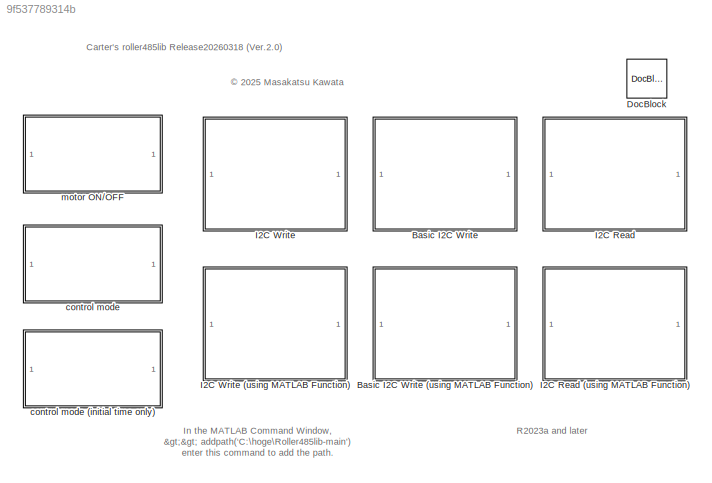
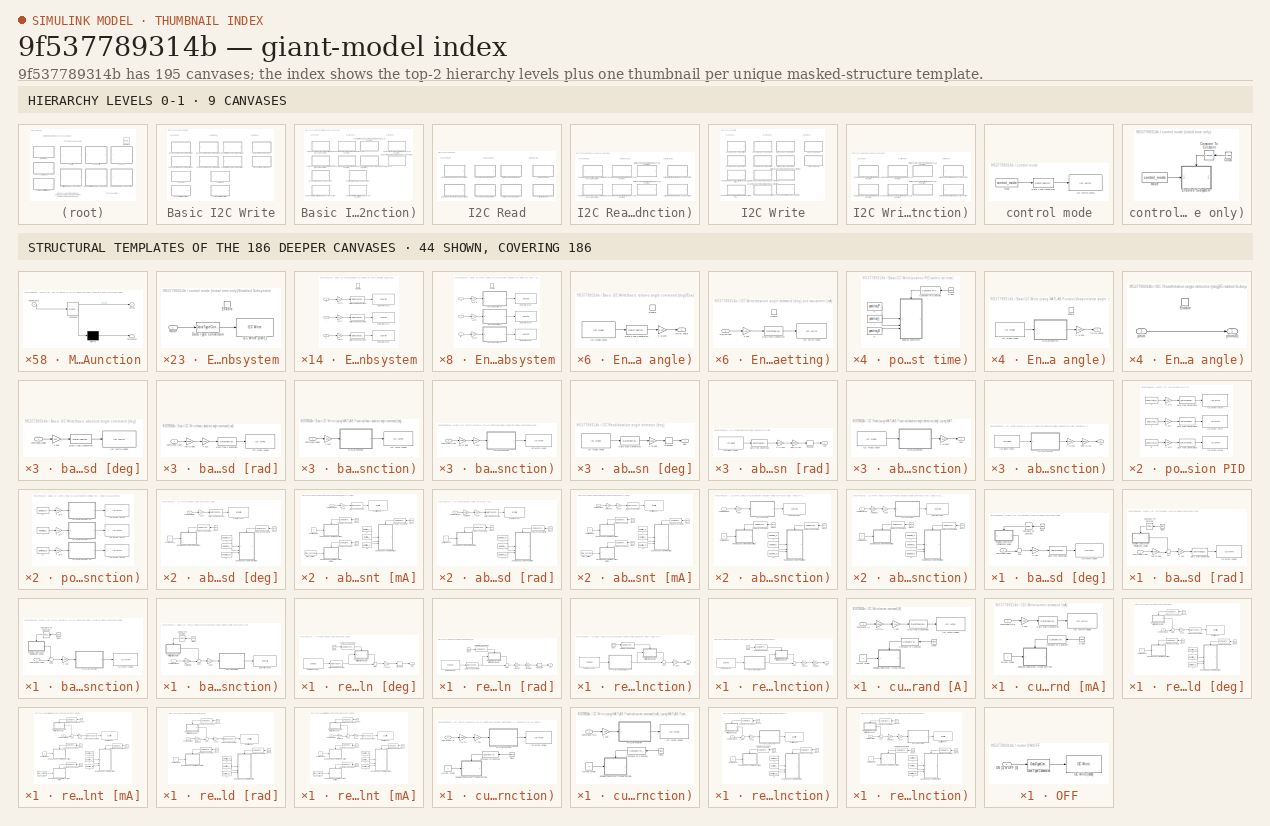
[diagram: thumbnail index - top-2 hierarchy levels (9 canvases) + 44 structural-template representatives of the remaining 186 canvases]
MODEL slx_9f537789314b
KIND library
CONFIG AbsTol = auto
CONFIG EnableMultiTasking = off
CONFIG FixedStep = auto
CONFIG MaxStep = auto
CONFIG MinStep = auto
CONFIG RelTol = 1e-3
CONFIG SampleTimeConstraint = Unconstrained
CONFIG SolverName = VariableStepAuto
CONFIG StartTime = 0.0
CONFIG StopTime = 10.0
BLOCK [SubSystem] Basic I2C Write
BLOCK [SubSystem] Basic I2C Write (using MATLAB Function)
BLOCK [SubSystem] Basic I2C Write (using MATLAB Function)/basic absolute angle command [deg] (using MATLAB Function)
BLOCK [Reference] Basic I2C Write (using MATLAB Function)/basic absolute angle command [deg] (using MATLAB Function)/I2C Write (0x80)  REF=arduinolib/I2C Write
  SourceBlock = arduinolib/I2C Write
  SourceType = I2C Write
BLOCK [SubSystem] Basic I2C Write (using MATLAB Function)/basic absolute angle command [deg] (using MATLAB Function)/MATLAB Function
  ErrorFcn = Stateflow.Translate.translate
  PermitHierarchicalResolution = ExplicitOnly
  SFBlockType = MATLAB Function
  TreatAsAtomicUnit = on
BLOCK [Demux] Basic I2C Write (using MATLAB Function)/basic absolute angle command [deg] (using MATLAB Function)/MATLAB Function/ Demux 
  Outputs = 1
BLOCK [S-Function] Basic I2C Write (using MATLAB Function)/basic absolute angle command [deg] (using MATLAB Function)/MATLAB Function/ SFunction 
  EnableBusSupport = off
  FunctionName = sf_sfun
  PortCounts = [1 2]
  SFcnIsStateOwnerBlock = off
  SFunctionDeploymentMode = off
  Tag = Stateflow S-Function 4
BLOCK [Terminator] Basic I2C Write (using MATLAB Function)/basic absolute angle command [deg] (using MATLAB Function)/MATLAB Function/ Terminator 
BLOCK [Outport] Basic I2C Write (using MATLAB Function)/basic absolute angle command [deg] (using MATLAB Function)/MATLAB Function/bytes
BLOCK [Inport] Basic I2C Write (using MATLAB Function)/basic absolute angle command [deg] (using MATLAB Function)/MATLAB Function/double_data
BLOCK [Inport] Basic I2C Write (using MATLAB Function)/basic absolute angle command [deg] (using MATLAB Function)/command [deg]
BLOCK [Gain] Basic I2C Write (using MATLAB Function)/basic absolute angle command [deg] (using MATLAB Function)/x 100
  Gain = 100
BLOCK [SubSystem] Basic I2C Write (using MATLAB Function)/basic absolute angle command [rad] (using MATLAB Function)
BLOCK [Reference] Basic I2C Write (using MATLAB Function)/basic absolute angle command [rad] (using MATLAB Function)/I2C Write (0x80)  REF=arduinolib/I2C Write
  SourceBlock = arduinolib/I2C Write
  SourceType = I2C Write
BLOCK [SubSystem] Basic I2C Write (using MATLAB Function)/basic absolute angle command [rad] (using MATLAB Function)/MATLAB Function
  ErrorFcn = Stateflow.Translate.translate
  PermitHierarchicalResolution = ExplicitOnly
  SFBlockType = MATLAB Function
  TreatAsAtomicUnit = on
BLOCK [Demux] Basic I2C Write (using MATLAB Function)/basic absolute angle command [rad] (using MATLAB Function)/MATLAB Function/ Demux 
  Outputs = 1
BLOCK [S-Function] Basic I2C Write (using MATLAB Function)/basic absolute angle command [rad] (using MATLAB Function)/MATLAB Function/ SFunction 
  EnableBusSupport = off
  FunctionName = sf_sfun
  PortCounts = [1 2]
  SFcnIsStateOwnerBlock = off
  SFunctionDeploymentMode = off
  Tag = Stateflow S-Function 5
BLOCK [Terminator] Basic I2C Write (using MATLAB Function)/basic absolute angle command [rad] (using MATLAB Function)/MATLAB Function/ Terminator 
BLOCK [Outport] Basic I2C Write (using MATLAB Function)/basic absolute angle command [rad] (using MATLAB Function)/MATLAB Function/bytes
BLOCK [Inport] Basic I2C Write (using MATLAB Function)/basic absolute angle command [rad] (using MATLAB Function)/MATLAB Function/double_data
BLOCK [Inport] Basic I2C Write (using MATLAB Function)/basic absolute angle command [rad] (using MATLAB Function)/command [rad]
BLOCK [Gain] Basic I2C Write (using MATLAB Function)/basic absolute angle command [rad] (using MATLAB Function)/rad to deg
  Gain = 180/pi
BLOCK [Gain] Basic I2C Write (using MATLAB Function)/basic absolute angle command [rad] (using MATLAB Function)/x 100
  Gain = 100
BLOCK [SubSystem] Basic I2C Write (using MATLAB Function)/basic angular velocity command [rad//s] (using MATLAB Function)
BLOCK [Reference] Basic I2C Write (using MATLAB Function)/basic angular velocity command [rad//s] (using MATLAB Function)/I2C Write (0x40)  REF=arduinolib/I2C Write
  SourceBlock = arduinolib/I2C Write
  SourceType = I2C Write
BLOCK [SubSystem] Basic I2C Write (using MATLAB Function)/basic angular velocity command [rad//s] (using MATLAB Function)/MATLAB Function
  ErrorFcn = Stateflow.Translate.translate
  PermitHierarchicalResolution = ExplicitOnly
  SFBlockType = MATLAB Function
  TreatAsAtomicUnit = on
BLOCK [Demux] Basic I2C Write (using MATLAB Function)/basic angular velocity command [rad//s] (using MATLAB Function)/MATLAB Function/ Demux 
  Outputs = 1
BLOCK [S-Function] Basic I2C Write (using MATLAB Function)/basic angular velocity command [rad//s] (using MATLAB Function)/MATLAB Function/ SFunction 
  EnableBusSupport = off
  FunctionName = sf_sfun
  PortCounts = [1 2]
  SFcnIsStateOwnerBlock = off
  SFunctionDeploymentMode = off
  Tag = Stateflow S-Function 8
BLOCK [Terminator] Basic I2C Write (using MATLAB Function)/basic angular velocity command [rad//s] (using MATLAB Function)/MATLAB Function/ Terminator 
BLOCK [Outport] Basic I2C Write (using MATLAB Function)/basic angular velocity command [rad//s] (using MATLAB Function)/MATLAB Function/bytes
BLOCK [Inport] Basic I2C Write (using MATLAB Function)/basic angular velocity command [rad//s] (using MATLAB Function)/MATLAB Function/double_data
BLOCK [Inport] Basic I2C Write (using MATLAB Function)/basic angular velocity command [rad//s] (using MATLAB Function)/command [rad//s]
BLOCK [Gain] Basic I2C Write (using MATLAB Function)/basic angular velocity command [rad//s] (using MATLAB Function)/rad//s to rpm
  Gain = 60/(2*pi)
BLOCK [Gain] Basic I2C Write (using MATLAB Function)/basic angular velocity command [rad//s] (using MATLAB Function)/x 100
  Gain = 100
BLOCK [SubSystem] Basic I2C Write (using MATLAB Function)/basic angular velocity command [rpm] (using MATLAB Function)
BLOCK [Reference] Basic I2C Write (using MATLAB Function)/basic angular velocity command [rpm] (using MATLAB Function)/I2C Write (0x40)  REF=arduinolib/I2C Write
  SourceBlock = arduinolib/I2C Write
  SourceType = I2C Write
BLOCK [SubSystem] Basic I2C Write (using MATLAB Function)/basic angular velocity command [rpm] (using MATLAB Function)/MATLAB Function
  ErrorFcn = Stateflow.Translate.translate
  PermitHierarchicalResolution = ExplicitOnly
  SFBlockType = MATLAB Function
  TreatAsAtomicUnit = on
BLOCK [Demux] Basic I2C Write (using MATLAB Function)/basic angular velocity command [rpm] (using MATLAB Function)/MATLAB Function/ Demux 
  Outputs = 1
BLOCK [S-Function] Basic I2C Write (using MATLAB Function)/basic angular velocity command [rpm] (using MATLAB Function)/MATLAB Function/ SFunction 
  EnableBusSupport = off
  FunctionName = sf_sfun
  PortCounts = [1 2]
  SFcnIsStateOwnerBlock = off
  SFunctionDeploymentMode = off
  Tag = Stateflow S-Function 9
BLOCK [Terminator] Basic I2C Write (using MATLAB Function)/basic angular velocity command [rpm] (using MATLAB Function)/MATLAB Function/ Terminator 
BLOCK [Outport] Basic I2C Write (using MATLAB Function)/basic angular velocity command [rpm] (using MATLAB Function)/MATLAB Function/bytes
BLOCK [Inport] Basic I2C Write (using MATLAB Function)/basic angular velocity command [rpm] (using MATLAB Function)/MATLAB Function/double_data
BLOCK [Inport] Basic I2C Write (using MATLAB Function)/basic angular velocity command [rpm] (using MATLAB Function)/command [rpm]
BLOCK [Gain] Basic I2C Write (using MATLAB Function)/basic angular velocity command [rpm] (using MATLAB Function)/x 100
  Gain = 100
BLOCK [SubSystem] Basic I2C Write (using MATLAB Function)/basic current command [A] (using MATLAB Function)
BLOCK [Gain] Basic I2C Write (using MATLAB Function)/basic current command [A] (using MATLAB Function)/A to mA
  Gain = 1000
BLOCK [Reference] Basic I2C Write (using MATLAB Function)/basic current command [A] (using MATLAB Function)/I2C Write (0xB0)  REF=arduinolib/I2C Write
  SourceBlock = arduinolib/I2C Write
  SourceType = I2C Write
BLOCK [SubSystem] Basic I2C Write (using MATLAB Function)/basic current command [A] (using MATLAB Function)/MATLAB Function
  ErrorFcn = Stateflow.Translate.translate
  PermitHierarchicalResolution = ExplicitOnly
  SFBlockType = MATLAB Function
  TreatAsAtomicUnit = on
BLOCK [Demux] Basic I2C Write (using MATLAB Function)/basic current command [A] (using MATLAB Function)/MATLAB Function/ Demux 
  Outputs = 1
BLOCK [S-Function] Basic I2C Write (using MATLAB Function)/basic current command [A] (using MATLAB Function)/MATLAB Function/ SFunction 
  EnableBusSupport = off
  FunctionName = sf_sfun
  PortCounts = [1 2]
  SFcnIsStateOwnerBlock = off
  SFunctionDeploymentMode = off
  Tag = Stateflow S-Function 10
BLOCK [Terminator] Basic I2C Write (using MATLAB Function)/basic current command [A] (using MATLAB Function)/MATLAB Function/ Terminator 
BLOCK [Outport] Basic I2C Write (using MATLAB Function)/basic current command [A] (using MATLAB Function)/MATLAB Function/bytes
BLOCK [Inport] Basic I2C Write (using MATLAB Function)/basic current command [A] (using MATLAB Function)/MATLAB Function/double_data
BLOCK [Inport] Basic I2C Write (using MATLAB Function)/basic current command [A] (using MATLAB Function)/command [A]
BLOCK [Gain] Basic I2C Write (using MATLAB Function)/basic current command [A] (using MATLAB Function)/x 100
  Gain = 100
BLOCK [SubSystem] Basic I2C Write (using MATLAB Function)/basic current command [mA] (using MATLAB Function)
BLOCK [Reference] Basic I2C Write (using MATLAB Function)/basic current command [mA] (using MATLAB Function)/I2C Write (0xB0)  REF=arduinolib/I2C Write
  SourceBlock = arduinolib/I2C Write
  SourceType = I2C Write
BLOCK [SubSystem] Basic I2C Write (using MATLAB Function)/basic current command [mA] (using MATLAB Function)/MATLAB Function
  ErrorFcn = Stateflow.Translate.translate
  PermitHierarchicalResolution = ExplicitOnly
  SFBlockType = MATLAB Function
  TreatAsAtomicUnit = on
BLOCK [Demux] Basic I2C Write (using MATLAB Function)/basic current command [mA] (using MATLAB Function)/MATLAB Function/ Demux 
  Outputs = 1
BLOCK [S-Function] Basic I2C Write (using MATLAB Function)/basic current command [mA] (using MATLAB Function)/MATLAB Function/ SFunction 
  EnableBusSupport = off
  FunctionName = sf_sfun
  PortCounts = [1 2]
  SFcnIsStateOwnerBlock = off
  SFunctionDeploymentMode = off
  Tag = Stateflow S-Function 11
BLOCK [Terminator] Basic I2C Write (using MATLAB Function)/basic current command [mA] (using MATLAB Function)/MATLAB Function/ Terminator 
BLOCK [Outport] Basic I2C Write (using MATLAB Function)/basic current command [mA] (using MATLAB Function)/MATLAB Function/bytes
BLOCK [Inport] Basic I2C Write (using MATLAB Function)/basic current command [mA] (using MATLAB Function)/MATLAB Function/double_data
BLOCK [Inport] Basic I2C Write (using MATLAB Function)/basic current command [mA] (using MATLAB Function)/command [mA]
BLOCK [Gain] Basic I2C Write (using MATLAB Function)/basic current command [mA] (using MATLAB Function)/x 100
  Gain = 100
BLOCK [SubSystem] Basic I2C Write (using MATLAB Function)/basic relative angle command [deg] (using MATLAB Function)
BLOCK [Clock] Basic I2C Write (using MATLAB Function)/basic relative angle command [deg] (using MATLAB Function)/Clock
  NameLocation = top
BLOCK [Reference] Basic I2C Write (using MATLAB Function)/basic relative angle command [deg] (using MATLAB Function)/Compare To Constant  REF=simulink/Logic and Bit
Operations/Compare
To Constant
  NameLocation = top
  SourceBlock = simulink/Logic and Bit\nOperations/Compare\nTo Constant
  SourceType = Compare To Constant
BLOCK [SubSystem] Basic I2C Write (using MATLAB Function)/basic relative angle command [deg] (using MATLAB Function)/Enabled Subsystem (initialization angle)
  TreatAsAtomicUnit = on
BLOCK [EnablePort] Basic I2C Write (using MATLAB Function)/basic relative angle command [deg] (using MATLAB Function)/Enabled Subsystem (initialization angle)/Enable
BLOCK [Reference] Basic I2C Write (using MATLAB Function)/basic relative angle command [deg] (using MATLAB Function)/Enabled Subsystem (initialization angle)/I2C Read (0x90)  REF=arduinolib/I2C Read
  SourceBlock = arduinolib/I2C Read
  SourceType = I2C Read
BLOCK [SubSystem] Basic I2C Write (using MATLAB Function)/basic relative angle command [deg] (using MATLAB Function)/Enabled Subsystem (initialization angle)/MATLAB Function
  ErrorFcn = Stateflow.Translate.translate
  PermitHierarchicalResolution = ExplicitOnly
  SFBlockType = MATLAB Function
  TreatAsAtomicUnit = on
BLOCK [Demux] Basic I2C Write (using MATLAB Function)/basic relative angle command [deg] (using MATLAB Function)/Enabled Subsystem (initialization angle)/MATLAB Function/ Demux 
  Outputs = 1
BLOCK [S-Function] Basic I2C Write (using MATLAB Function)/basic relative angle command [deg] (using MATLAB Function)/Enabled Subsystem (initialization angle)/MATLAB Function/ SFunction 
  EnableBusSupport = off
  FunctionName = sf_sfun
  PortCounts = [1 2]
  SFcnIsStateOwnerBlock = off
  SFunctionDeploymentMode = off
  Tag = Stateflow S-Function 12
BLOCK [Terminator] Basic I2C Write (using MATLAB Function)/basic relative angle command [deg] (using MATLAB Function)/Enabled Subsystem (initialization angle)/MATLAB Function/ Terminator 
BLOCK [Inport] Basic I2C Write (using MATLAB Function)/basic relative angle command [deg] (using MATLAB Function)/Enabled Subsystem (initialization angle)/MATLAB Function/bytes
BLOCK [Outport] Basic I2C Write (using MATLAB Function)/basic relative angle command [deg] (using MATLAB Function)/Enabled Subsystem (initialization angle)/MATLAB Function/double_data
BLOCK [Outport] Basic I2C Write (using MATLAB Function)/basic relative angle command [deg] (using MATLAB Function)/Enabled Subsystem (initialization angle)/initial angle
BLOCK [Gain] Basic I2C Write (using MATLAB Function)/basic relative angle command [deg] (using MATLAB Function)/Enabled Subsystem (initialization angle)/x (1//100)
  Gain = 1/100
BLOCK [Reference] Basic I2C Write (using MATLAB Function)/basic relative angle command [deg] (using MATLAB Function)/I2C Write (0x80)  REF=arduinolib/I2C Write
  SourceBlock = arduinolib/I2C Write
  SourceType = I2C Write
BLOCK [SubSystem] Basic I2C Write (using MATLAB Function)/basic relative angle command [deg] (using MATLAB Function)/MATLAB Function
  ErrorFcn = Stateflow.Translate.translate
  PermitHierarchicalResolution = ExplicitOnly
  SFBlockType = MATLAB Function
  TreatAsAtomicUnit = on
BLOCK [Demux] Basic I2C Write (using MATLAB Function)/basic relative angle command [deg] (using MATLAB Function)/MATLAB Function/ Demux 
  Outputs = 1
BLOCK [S-Function] Basic I2C Write (using MATLAB Function)/basic relative angle command [deg] (using MATLAB Function)/MATLAB Function/ SFunction 
  EnableBusSupport = off
  FunctionName = sf_sfun
  PortCounts = [1 2]
  SFcnIsStateOwnerBlock = off
  SFunctionDeploymentMode = off
  Tag = Stateflow S-Function 13
BLOCK [Terminator] Basic I2C Write (using MATLAB Function)/basic relative angle command [deg] (using MATLAB Function)/MATLAB Function/ Terminator 
BLOCK [Outport] Basic I2C Write (using MATLAB Function)/basic relative angle command [deg] (using MATLAB Function)/MATLAB Function/bytes
BLOCK [Inport] Basic I2C Write (using MATLAB Function)/basic relative angle command [deg] (using MATLAB Function)/MATLAB Function/double_data
BLOCK [Sum] Basic I2C Write (using MATLAB Function)/basic relative angle command [deg] (using MATLAB Function)/Sum
  Inputs = ++|
BLOCK [Inport] Basic I2C Write (using MATLAB Function)/basic relative angle command [deg] (using MATLAB Function)/command [deg]
BLOCK [Gain] Basic I2C Write (using MATLAB Function)/basic relative angle command [deg] (using MATLAB Function)/x 100
  Gain = 100
BLOCK [SubSystem] Basic I2C Write (using MATLAB Function)/basic relative angle command [rad] (using MATLAB Function)
BLOCK [Clock] Basic I2C Write (using MATLAB Function)/basic relative angle command [rad] (using MATLAB Function)/Clock
  NameLocation = top
BLOCK [Reference] Basic I2C Write (using MATLAB Function)/basic relative angle command [rad] (using MATLAB Function)/Compare To Constant  REF=simulink/Logic and Bit
Operations/Compare
To Constant
  NameLocation = top
  SourceBlock = simulink/Logic and Bit\nOperations/Compare\nTo Constant
  SourceType = Compare To Constant
BLOCK [SubSystem] Basic I2C Write (using MATLAB Function)/basic relative angle command [rad] (using MATLAB Function)/Enabled Subsystem (initialization angle)
  TreatAsAtomicUnit = on
BLOCK [EnablePort] Basic I2C Write (using MATLAB Function)/basic relative angle command [rad] (using MATLAB Function)/Enabled Subsystem (initialization angle)/Enable
BLOCK [Reference] Basic I2C Write (using MATLAB Function)/basic relative angle command [rad] (using MATLAB Function)/Enabled Subsystem (initialization angle)/I2C Read (0x90)  REF=arduinolib/I2C Read
  SourceBlock = arduinolib/I2C Read
  SourceType = I2C Read
BLOCK [SubSystem] Basic I2C Write (using MATLAB Function)/basic relative angle command [rad] (using MATLAB Function)/Enabled Subsystem (initialization angle)/MATLAB Function
  ErrorFcn = Stateflow.Translate.translate
  PermitHierarchicalResolution = ExplicitOnly
  SFBlockType = MATLAB Function
  TreatAsAtomicUnit = on
BLOCK [Demux] Basic I2C Write (using MATLAB Function)/basic relative angle command [rad] (using MATLAB Function)/Enabled Subsystem (initialization angle)/MATLAB Function/ Demux 
  Outputs = 1
BLOCK [S-Function] Basic I2C Write (using MATLAB Function)/basic relative angle command [rad] (using MATLAB Function)/Enabled Subsystem (initialization angle)/MATLAB Function/ SFunction 
  EnableBusSupport = off
  FunctionName = sf_sfun
  PortCounts = [1 2]
  SFcnIsStateOwnerBlock = off
  SFunctionDeploymentMode = off
  Tag = Stateflow S-Function 31
BLOCK [Terminator] Basic I2C Write (using MATLAB Function)/basic relative angle command [rad] (using MATLAB Function)/Enabled Subsystem (initialization angle)/MATLAB Function/ Terminator 
BLOCK [Inport] Basic I2C Write (using MATLAB Function)/basic relative angle command [rad] (using MATLAB Function)/Enabled Subsystem (initialization angle)/MATLAB Function/bytes
BLOCK [Outport] Basic I2C Write (using MATLAB Function)/basic relative angle command [rad] (using MATLAB Function)/Enabled Subsystem (initialization angle)/MATLAB Function/double_data
BLOCK [Outport] Basic I2C Write (using MATLAB Function)/basic relative angle command [rad] (using MATLAB Function)/Enabled Subsystem (initialization angle)/initial angle
BLOCK [Gain] Basic I2C Write (using MATLAB Function)/basic relative angle command [rad] (using MATLAB Function)/Enabled Subsystem (initialization angle)/x (1//100)
  Gain = 1/100
BLOCK [Reference] Basic I2C Write (using MATLAB Function)/basic relative angle command [rad] (using MATLAB Function)/I2C Write (0x80)  REF=arduinolib/I2C Write
  SourceBlock = arduinolib/I2C Write
  SourceType = I2C Write
BLOCK [SubSystem] Basic I2C Write (using MATLAB Function)/basic relative angle command [rad] (using MATLAB Function)/MATLAB Function
  ErrorFcn = Stateflow.Translate.translate
  PermitHierarchicalResolution = ExplicitOnly
  SFBlockType = MATLAB Function
  TreatAsAtomicUnit = on
BLOCK [Demux] Basic I2C Write (using MATLAB Function)/basic relative angle command [rad] (using MATLAB Function)/MATLAB Function/ Demux 
  Outputs = 1
BLOCK [S-Function] Basic I2C Write (using MATLAB Function)/basic relative angle command [rad] (using MATLAB Function)/MATLAB Function/ SFunction 
  EnableBusSupport = off
  FunctionName = sf_sfun
  PortCounts = [1 2]
  SFcnIsStateOwnerBlock = off
  SFunctionDeploymentMode = off
  Tag = Stateflow S-Function 32
BLOCK [Terminator] Basic I2C Write (using MATLAB Function)/basic relative angle command [rad] (using MATLAB Function)/MATLAB Function/ Terminator 
BLOCK [Outport] Basic I2C Write (using MATLAB Function)/basic relative angle command [rad] (using MATLAB Function)/MATLAB Function/bytes
BLOCK [Inport] Basic I2C Write (using MATLAB Function)/basic relative angle command [rad] (using MATLAB Function)/MATLAB Function/double_data
BLOCK [Sum] Basic I2C Write (using MATLAB Function)/basic relative angle command [rad] (using MATLAB Function)/Sum
  Inputs = ++|
BLOCK [Inport] Basic I2C Write (using MATLAB Function)/basic relative angle command [rad] (using MATLAB Function)/command [rad]
BLOCK [Gain] Basic I2C Write (using MATLAB Function)/basic relative angle command [rad] (using MATLAB Function)/rad to deg
  Gain = 180/pi
BLOCK [Gain] Basic I2C Write (using MATLAB Function)/basic relative angle command [rad] (using MATLAB Function)/x 100
  Gain = 100
BLOCK [SubSystem] Basic I2C Write (using MATLAB Function)/position PID (using MATLAB Function)
BLOCK [Gain] Basic I2C Write (using MATLAB Function)/position PID (using MATLAB Function)/ x 10^5 
  Gain = 1e5
BLOCK [Constant] Basic I2C Write (using MATLAB Function)/position PID (using MATLAB Function)/D
  Value = position_D
BLOCK [Constant] Basic I2C Write (using MATLAB Function)/position PID (using MATLAB Function)/I
  Value = position_I
BLOCK [Reference] Basic I2C Write (using MATLAB Function)/position PID (using MATLAB Function)/I2C Write (0xA0)  REF=arduinolib/I2C Write
  SourceBlock = arduinolib/I2C Write
  SourceType = I2C Write
BLOCK [Reference] Basic I2C Write (using MATLAB Function)/position PID (using MATLAB Function)/I2C Write (0xA4)  REF=arduinolib/I2C Write
  SourceBlock = arduinolib/I2C Write
  SourceType = I2C Write
BLOCK [Reference] Basic I2C Write (using MATLAB Function)/position PID (using MATLAB Function)/I2C Write (0xA8)  REF=arduinolib/I2C Write
  SourceBlock = arduinolib/I2C Write
  SourceType = I2C Write
BLOCK [SubSystem] Basic I2C Write (using MATLAB Function)/position PID (using MATLAB Function)/MATLAB Function (D)
  ErrorFcn = Stateflow.Translate.translate
  PermitHierarchicalResolution = ExplicitOnly
  SFBlockType = MATLAB Function
  TreatAsAtomicUnit = on
BLOCK [Demux] Basic I2C Write (using MATLAB Function)/position PID (using MATLAB Function)/MATLAB Function (D)/ Demux 
  Outputs = 1
BLOCK [S-Function] Basic I2C Write (using MATLAB Function)/position PID (using MATLAB Function)/MATLAB Function (D)/ SFunction 
  EnableBusSupport = off
  FunctionName = sf_sfun
  PortCounts = [1 2]
  SFcnIsStateOwnerBlock = off
  SFunctionDeploymentMode = off
  Tag = Stateflow S-Function 33
BLOCK [Terminator] Basic I2C Write (using MATLAB Function)/position PID (using MATLAB Function)/MATLAB Function (D)/ Terminator 
BLOCK [Outport] Basic I2C Write (using MATLAB Function)/position PID (using MATLAB Function)/MATLAB Function (D)/bytes
BLOCK [Inport] Basic I2C Write (using MATLAB Function)/position PID (using MATLAB Function)/MATLAB Function (D)/double_data
BLOCK [SubSystem] Basic I2C Write (using MATLAB Function)/position PID (using MATLAB Function)/MATLAB Function (I)
  ErrorFcn = Stateflow.Translate.translate
  PermitHierarchicalResolution = ExplicitOnly
  SFBlockType = MATLAB Function
  TreatAsAtomicUnit = on
BLOCK [Demux] Basic I2C Write (using MATLAB Function)/position PID (using MATLAB Function)/MATLAB Function (I)/ Demux 
  Outputs = 1
BLOCK [S-Function] Basic I2C Write (using MATLAB Function)/position PID (using MATLAB Function)/MATLAB Function (I)/ SFunction 
  EnableBusSupport = off
  FunctionName = sf_sfun
  PortCounts = [1 2]
  SFcnIsStateOwnerBlock = off
  SFunctionDeploymentMode = off
  Tag = Stateflow S-Function 34
BLOCK [Terminator] Basic I2C Write (using MATLAB Function)/position PID (using MATLAB Function)/MATLAB Function (I)/ Terminator 
BLOCK [Outport] Basic I2C Write (using MATLAB Function)/position PID (using MATLAB Function)/MATLAB Function (I)/bytes
BLOCK [Inport] Basic I2C Write (using MATLAB Function)/position PID (using MATLAB Function)/MATLAB Function (I)/double_data
BLOCK [SubSystem] Basic I2C Write (using MATLAB Function)/position PID (using MATLAB Function)/MATLAB Function (P)
  ErrorFcn = Stateflow.Translate.translate
  PermitHierarchicalResolution = ExplicitOnly
  SFBlockType = MATLAB Function
  TreatAsAtomicUnit = on
BLOCK [Demux] Basic I2C Write (using MATLAB Function)/position PID (using MATLAB Function)/MATLAB Function (P)/ Demux 
  Outputs = 1
BLOCK [S-Function] Basic I2C Write (using MATLAB Function)/position PID (using MATLAB Function)/MATLAB Function (P)/ SFunction 
  EnableBusSupport = off
  FunctionName = sf_sfun
  PortCounts = [1 2]
  SFcnIsStateOwnerBlock = off
  SFunctionDeploymentMode = off
  Tag = Stateflow S-Function 35
BLOCK [Terminator] Basic I2C Write (using MATLAB Function)/position PID (using MATLAB Function)/MATLAB Function (P)/ Terminator 
BLOCK [Outport] Basic I2C Write (using MATLAB Function)/position PID (using MATLAB Function)/MATLAB Function (P)/bytes
BLOCK [Inport] Basic I2C Write (using MATLAB Function)/position PID (using MATLAB Function)/MATLAB Function (P)/double_data
BLOCK [Constant] Basic I2C Write (using MATLAB Function)/position PID (using MATLAB Function)/P
  Value = position_P
BLOCK [Gain] Basic I2C Write (using MATLAB Function)/position PID (using MATLAB Function)/x 10^5
  Gain = 1e5
BLOCK [Gain] Basic I2C Write (using MATLAB Function)/position PID (using MATLAB Function)/x 10^7
  Gain = 1e7
BLOCK [SubSystem] Basic I2C Write (using MATLAB Function)/position PID (within set time) (using MATLAB Function)
BLOCK [Clock] Basic I2C Write (using MATLAB Function)/position PID (within set time) (using MATLAB Function)/Clock
  NameLocation = top
BLOCK [Reference] Basic I2C Write (using MATLAB Function)/position PID (within set time) (using MATLAB Function)/Compare To Constant  REF=simulink/Logic and Bit
Operations/Compare
To Constant
  NameLocation = top
  SourceBlock = simulink/Logic and Bit\nOperations/Compare\nTo Constant
  SourceType = Compare To Constant
BLOCK [Constant] Basic I2C Write (using MATLAB Function)/position PID (within set time) (using MATLAB Function)/D
  Value = position_D
BLOCK [SubSystem] Basic I2C Write (using MATLAB Function)/position PID (within set time) (using MATLAB Function)/Enabled Subsystem
  TreatAsAtomicUnit = on
BLOCK [Gain] Basic I2C Write (using MATLAB Function)/position PID (within set time) (using MATLAB Function)/Enabled Subsystem/ x 10^5 
  Gain = 1e5
BLOCK [Inport] Basic I2C Write (using MATLAB Function)/position PID (within set time) (using MATLAB Function)/Enabled Subsystem/D
  Port = 3
BLOCK [EnablePort] Basic I2C Write (using MATLAB Function)/position PID (within set time) (using MATLAB Function)/Enabled Subsystem/Enable
BLOCK [Inport] Basic I2C Write (using MATLAB Function)/position PID (within set time) (using MATLAB Function)/Enabled Subsystem/I
  Port = 2
BLOCK [Reference] Basic I2C Write (using MATLAB Function)/position PID (within set time) (using MATLAB Function)/Enabled Subsystem/I2C Write (0xA0)  REF=arduinolib/I2C Write
  SourceBlock = arduinolib/I2C Write
  SourceType = I2C Write
BLOCK [Reference] Basic I2C Write (using MATLAB Function)/position PID (within set time) (using MATLAB Function)/Enabled Subsystem/I2C Write (0xA4)  REF=arduinolib/I2C Write
  SourceBlock = arduinolib/I2C Write
  SourceType = I2C Write
BLOCK [Reference] Basic I2C Write (using MATLAB Function)/position PID (within set time) (using MATLAB Function)/Enabled Subsystem/I2C Write (0xA8)  REF=arduinolib/I2C Write
  SourceBlock = arduinolib/I2C Write
  SourceType = I2C Write
BLOCK [SubSystem] Basic I2C Write (using MATLAB Function)/position PID (within set time) (using MATLAB Function)/Enabled Subsystem/MATLAB Function (D)
  ErrorFcn = Stateflow.Translate.translate
  PermitHierarchicalResolution = ExplicitOnly
  SFBlockType = MATLAB Function
  TreatAsAtomicUnit = on
BLOCK [Demux] Basic I2C Write (using MATLAB Function)/position PID (within set time) (using MATLAB Function)/Enabled Subsystem/MATLAB Function (D)/ Demux 
  Outputs = 1
BLOCK [S-Function] Basic I2C Write (using MATLAB Function)/position PID (within set time) (using MATLAB Function)/Enabled Subsystem/MATLAB Function (D)/ SFunction 
  EnableBusSupport = off
  FunctionName = sf_sfun
  PortCounts = [1 2]
  SFcnIsStateOwnerBlock = off
  SFunctionDeploymentMode = off
  Tag = Stateflow S-Function 36
BLOCK [Terminator] Basic I2C Write (using MATLAB Function)/position PID (within set time) (using MATLAB Function)/Enabled Subsystem/MATLAB Function (D)/ Terminator 
BLOCK [Outport] Basic I2C Write (using MATLAB Function)/position PID (within set time) (using MATLAB Function)/Enabled Subsystem/MATLAB Function (D)/bytes
BLOCK [Inport] Basic I2C Write (using MATLAB Function)/position PID (within set time) (using MATLAB Function)/Enabled Subsystem/MATLAB Function (D)/double_data
BLOCK [SubSystem] Basic I2C Write (using MATLAB Function)/position PID (within set time) (using MATLAB Function)/Enabled Subsystem/MATLAB Function (I)
  ErrorFcn = Stateflow.Translate.translate
  PermitHierarchicalResolution = ExplicitOnly
  SFBlockType = MATLAB Function
  TreatAsAtomicUnit = on
BLOCK [Demux] Basic I2C Write (using MATLAB Function)/position PID (within set time) (using MATLAB Function)/Enabled Subsystem/MATLAB Function (I)/ Demux 
  Outputs = 1
BLOCK [S-Function] Basic I2C Write (using MATLAB Function)/position PID (within set time) (using MATLAB Function)/Enabled Subsystem/MATLAB Function (I)/ SFunction 
  EnableBusSupport = off
  FunctionName = sf_sfun
  PortCounts = [1 2]
  SFcnIsStateOwnerBlock = off
  SFunctionDeploymentMode = off
  Tag = Stateflow S-Function 37
BLOCK [Terminator] Basic I2C Write (using MATLAB Function)/position PID (within set time) (using MATLAB Function)/Enabled Subsystem/MATLAB Function (I)/ Terminator 
BLOCK [Outport] Basic I2C Write (using MATLAB Function)/position PID (within set time) (using MATLAB Function)/Enabled Subsystem/MATLAB Function (I)/bytes
BLOCK [Inport] Basic I2C Write (using MATLAB Function)/position PID (within set time) (using MATLAB Function)/Enabled Subsystem/MATLAB Function (I)/double_data
BLOCK [SubSystem] Basic I2C Write (using MATLAB Function)/position PID (within set time) (using MATLAB Function)/Enabled Subsystem/MATLAB Function (P)
  ErrorFcn = Stateflow.Translate.translate
  PermitHierarchicalResolution = ExplicitOnly
  SFBlockType = MATLAB Function
  TreatAsAtomicUnit = on
BLOCK [Demux] Basic I2C Write (using MATLAB Function)/position PID (within set time) (using MATLAB Function)/Enabled Subsystem/MATLAB Function (P)/ Demux 
  Outputs = 1
BLOCK [S-Function] Basic I2C Write (using MATLAB Function)/position PID (within set time) (using MATLAB Function)/Enabled Subsystem/MATLAB Function (P)/ SFunction 
  EnableBusSupport = off
  FunctionName = sf_sfun
  PortCounts = [1 2]
  SFcnIsStateOwnerBlock = off
  SFunctionDeploymentMode = off
  Tag = Stateflow S-Function 38
BLOCK [Terminator] Basic I2C Write (using MATLAB Function)/position PID (within set time) (using MATLAB Function)/Enabled Subsystem/MATLAB Function (P)/ Terminator 
BLOCK [Outport] Basic I2C Write (using MATLAB Function)/position PID (within set time) (using MATLAB Function)/Enabled Subsystem/MATLAB Function (P)/bytes
BLOCK [Inport] Basic I2C Write (using MATLAB Function)/position PID (within set time) (using MATLAB Function)/Enabled Subsystem/MATLAB Function (P)/double_data
BLOCK [Inport] Basic I2C Write (using MATLAB Function)/position PID (within set time) (using MATLAB Function)/Enabled Subsystem/P
BLOCK [Gain] Basic I2C Write (using MATLAB Function)/position PID (within set time) (using MATLAB Function)/Enabled Subsystem/x 10^5
  Gain = 1e5
BLOCK [Gain] Basic I2C Write (using MATLAB Function)/position PID (within set time) (using MATLAB Function)/Enabled Subsystem/x 10^7
  Gain = 1e7
BLOCK [Constant] Basic I2C Write (using MATLAB Function)/position PID (within set time) (using MATLAB Function)/I
  Value = position_I
BLOCK [Constant] Basic I2C Write (using MATLAB Function)/position PID (within set time) (using MATLAB Function)/P
  Value = position_P
BLOCK [SubSystem] Basic I2C Write (using MATLAB Function)/speed PID (using MATLAB Function)
BLOCK [Gain] Basic I2C Write (using MATLAB Function)/speed PID (using MATLAB Function)/ x 10^5 
  Gain = 1e5
BLOCK [Constant] Basic I2C Write (using MATLAB Function)/speed PID (using MATLAB Function)/D
  Value = speed_D
BLOCK [Constant] Basic I2C Write (using MATLAB Function)/speed PID (using MATLAB Function)/I
  Value = speed_I
BLOCK [Reference] Basic I2C Write (using MATLAB Function)/speed PID (using MATLAB Function)/I2C Write (0x70)  REF=arduinolib/I2C Write
  SourceBlock = arduinolib/I2C Write
  SourceType = I2C Write
BLOCK [Reference] Basic I2C Write (using MATLAB Function)/speed PID (using MATLAB Function)/I2C Write (0x74)  REF=arduinolib/I2C Write
  SourceBlock = arduinolib/I2C Write
  SourceType = I2C Write
BLOCK [Reference] Basic I2C Write (using MATLAB Function)/speed PID (using MATLAB Function)/I2C Write (0x78)  REF=arduinolib/I2C Write
  SourceBlock = arduinolib/I2C Write
  SourceType = I2C Write
BLOCK [SubSystem] Basic I2C Write (using MATLAB Function)/speed PID (using MATLAB Function)/MATLAB Function (D)
  ErrorFcn = Stateflow.Translate.translate
  PermitHierarchicalResolution = ExplicitOnly
  SFBlockType = MATLAB Function
  TreatAsAtomicUnit = on
BLOCK [Demux] Basic I2C Write (using MATLAB Function)/speed PID (using MATLAB Function)/MATLAB Function (D)/ Demux 
  Outputs = 1
BLOCK [S-Function] Basic I2C Write (using MATLAB Function)/speed PID (using MATLAB Function)/MATLAB Function (D)/ SFunction 
  EnableBusSupport = off
  FunctionName = sf_sfun
  PortCounts = [1 2]
  SFcnIsStateOwnerBlock = off
  SFunctionDeploymentMode = off
  Tag = Stateflow S-Function 39
BLOCK [Terminator] Basic I2C Write (using MATLAB Function)/speed PID (using MATLAB Function)/MATLAB Function (D)/ Terminator 
BLOCK [Outport] Basic I2C Write (using MATLAB Function)/speed PID (using MATLAB Function)/MATLAB Function (D)/bytes
BLOCK [Inport] Basic I2C Write (using MATLAB Function)/speed PID (using MATLAB Function)/MATLAB Function (D)/double_data
BLOCK [SubSystem] Basic I2C Write (using MATLAB Function)/speed PID (using MATLAB Function)/MATLAB Function (I)
  ErrorFcn = Stateflow.Translate.translate
  PermitHierarchicalResolution = ExplicitOnly
  SFBlockType = MATLAB Function
  TreatAsAtomicUnit = on
BLOCK [Demux] Basic I2C Write (using MATLAB Function)/speed PID (using MATLAB Function)/MATLAB Function (I)/ Demux 
  Outputs = 1
BLOCK [S-Function] Basic I2C Write (using MATLAB Function)/speed PID (using MATLAB Function)/MATLAB Function (I)/ SFunction 
  EnableBusSupport = off
  FunctionName = sf_sfun
  PortCounts = [1 2]
  SFcnIsStateOwnerBlock = off
  SFunctionDeploymentMode = off
  Tag = Stateflow S-Function 40
BLOCK [Terminator] Basic I2C Write (using MATLAB Function)/speed PID (using MATLAB Function)/MATLAB Function (I)/ Terminator 
BLOCK [Outport] Basic I2C Write (using MATLAB Function)/speed PID (using MATLAB Function)/MATLAB Function (I)/bytes
BLOCK [Inport] Basic I2C Write (using MATLAB Function)/speed PID (using MATLAB Function)/MATLAB Function (I)/double_data
BLOCK [SubSystem] Basic I2C Write (using MATLAB Function)/speed PID (using MATLAB Function)/MATLAB Function (P)
  ErrorFcn = Stateflow.Translate.translate
  PermitHierarchicalResolution = ExplicitOnly
  SFBlockType = MATLAB Function
  TreatAsAtomicUnit = on
BLOCK [Demux] Basic I2C Write (using MATLAB Function)/speed PID (using MATLAB Function)/MATLAB Function (P)/ Demux 
  Outputs = 1
BLOCK [S-Function] Basic I2C Write (using MATLAB Function)/speed PID (using MATLAB Function)/MATLAB Function (P)/ SFunction 
  EnableBusSupport = off
  FunctionName = sf_sfun
  PortCounts = [1 2]
  SFcnIsStateOwnerBlock = off
  SFunctionDeploymentMode = off
  Tag = Stateflow S-Function 41
BLOCK [Terminator] Basic I2C Write (using MATLAB Function)/speed PID (using MATLAB Function)/MATLAB Function (P)/ Terminator 
BLOCK [Outport] Basic I2C Write (using MATLAB Function)/speed PID (using MATLAB Function)/MATLAB Function (P)/bytes
BLOCK [Inport] Basic I2C Write (using MATLAB Function)/speed PID (using MATLAB Function)/MATLAB Function (P)/double_data
BLOCK [Constant] Basic I2C Write (using MATLAB Function)/speed PID (using MATLAB Function)/P
  Value = speed_P
BLOCK [Gain] Basic I2C Write (using MATLAB Function)/speed PID (using MATLAB Function)/x 10^5
  Gain = 1e5
BLOCK [Gain] Basic I2C Write (using MATLAB Function)/speed PID (using MATLAB Function)/x 10^7
  Gain = 1e7
BLOCK [SubSystem] Basic I2C Write (using MATLAB Function)/speed PID (within set time) (using MATLAB Function)
BLOCK [Clock] Basic I2C Write (using MATLAB Function)/speed PID (within set time) (using MATLAB Function)/Clock
  NameLocation = top
BLOCK [Reference] Basic I2C Write (using MATLAB Function)/speed PID (within set time) (using MATLAB Function)/Compare To Constant  REF=simulink/Logic and Bit
Operations/Compare
To Constant
  NameLocation = top
  SourceBlock = simulink/Logic and Bit\nOperations/Compare\nTo Constant
  SourceType = Compare To Constant
BLOCK [Constant] Basic I2C Write (using MATLAB Function)/speed PID (within set time) (using MATLAB Function)/D
  Value = speed_D
BLOCK [SubSystem] Basic I2C Write (using MATLAB Function)/speed PID (within set time) (using MATLAB Function)/Enabled Subsystem
  TreatAsAtomicUnit = on
BLOCK [Gain] Basic I2C Write (using MATLAB Function)/speed PID (within set time) (using MATLAB Function)/Enabled Subsystem/ x 10^5 
  Gain = 1e5
BLOCK [Inport] Basic I2C Write (using MATLAB Function)/speed PID (within set time) (using MATLAB Function)/Enabled Subsystem/D
  Port = 3
BLOCK [EnablePort] Basic I2C Write (using MATLAB Function)/speed PID (within set time) (using MATLAB Function)/Enabled Subsystem/Enable
BLOCK [Inport] Basic I2C Write (using MATLAB Function)/speed PID (within set time) (using MATLAB Function)/Enabled Subsystem/I
  Port = 2
BLOCK [Reference] Basic I2C Write (using MATLAB Function)/speed PID (within set time) (using MATLAB Function)/Enabled Subsystem/I2C Write (0x70)  REF=arduinolib/I2C Write
  SourceBlock = arduinolib/I2C Write
  SourceType = I2C Write
BLOCK [Reference] Basic I2C Write (using MATLAB Function)/speed PID (within set time) (using MATLAB Function)/Enabled Subsystem/I2C Write (0x74)  REF=arduinolib/I2C Write
  SourceBlock = arduinolib/I2C Write
  SourceType = I2C Write
BLOCK [Reference] Basic I2C Write (using MATLAB Function)/speed PID (within set time) (using MATLAB Function)/Enabled Subsystem/I2C Write (0x78)  REF=arduinolib/I2C Write
  SourceBlock = arduinolib/I2C Write
  SourceType = I2C Write
BLOCK [SubSystem] Basic I2C Write (using MATLAB Function)/speed PID (within set time) (using MATLAB Function)/Enabled Subsystem/MATLAB Function (D)
  ErrorFcn = Stateflow.Translate.translate
  PermitHierarchicalResolution = ExplicitOnly
  SFBlockType = MATLAB Function
  TreatAsAtomicUnit = on
BLOCK [Demux] Basic I2C Write (using MATLAB Function)/speed PID (within set time) (using MATLAB Function)/Enabled Subsystem/MATLAB Function (D)/ Demux 
  Outputs = 1
BLOCK [S-Function] Basic I2C Write (using MATLAB Function)/speed PID (within set time) (using MATLAB Function)/Enabled Subsystem/MATLAB Function (D)/ SFunction 
  EnableBusSupport = off
  FunctionName = sf_sfun
  PortCounts = [1 2]
  SFcnIsStateOwnerBlock = off
  SFunctionDeploymentMode = off
  Tag = Stateflow S-Function 42
BLOCK [Terminator] Basic I2C Write (using MATLAB Function)/speed PID (within set time) (using MATLAB Function)/Enabled Subsystem/MATLAB Function (D)/ Terminator 
BLOCK [Outport] Basic I2C Write (using MATLAB Function)/speed PID (within set time) (using MATLAB Function)/Enabled Subsystem/MATLAB Function (D)/bytes
BLOCK [Inport] Basic I2C Write (using MATLAB Function)/speed PID (within set time) (using MATLAB Function)/Enabled Subsystem/MATLAB Function (D)/double_data
BLOCK [SubSystem] Basic I2C Write (using MATLAB Function)/speed PID (within set time) (using MATLAB Function)/Enabled Subsystem/MATLAB Function (I)
  ErrorFcn = Stateflow.Translate.translate
  PermitHierarchicalResolution = ExplicitOnly
  SFBlockType = MATLAB Function
  TreatAsAtomicUnit = on
BLOCK [Demux] Basic I2C Write (using MATLAB Function)/speed PID (within set time) (using MATLAB Function)/Enabled Subsystem/MATLAB Function (I)/ Demux 
  Outputs = 1
BLOCK [S-Function] Basic I2C Write (using MATLAB Function)/speed PID (within set time) (using MATLAB Function)/Enabled Subsystem/MATLAB Function (I)/ SFunction 
  EnableBusSupport = off
  FunctionName = sf_sfun
  PortCounts = [1 2]
  SFcnIsStateOwnerBlock = off
  SFunctionDeploymentMode = off
  Tag = Stateflow S-Function 43
BLOCK [Terminator] Basic I2C Write (using MATLAB Function)/speed PID (within set time) (using MATLAB Function)/Enabled Subsystem/MATLAB Function (I)/ Terminator 
BLOCK [Outport] Basic I2C Write (using MATLAB Function)/speed PID (within set time) (using MATLAB Function)/Enabled Subsystem/MATLAB Function (I)/bytes
BLOCK [Inport] Basic I2C Write (using MATLAB Function)/speed PID (within set time) (using MATLAB Function)/Enabled Subsystem/MATLAB Function (I)/double_data
BLOCK [SubSystem] Basic I2C Write (using MATLAB Function)/speed PID (within set time) (using MATLAB Function)/Enabled Subsystem/MATLAB Function (P)
  ErrorFcn = Stateflow.Translate.translate
  PermitHierarchicalResolution = ExplicitOnly
  SFBlockType = MATLAB Function
  TreatAsAtomicUnit = on
BLOCK [Demux] Basic I2C Write (using MATLAB Function)/speed PID (within set time) (using MATLAB Function)/Enabled Subsystem/MATLAB Function (P)/ Demux 
  Outputs = 1
BLOCK [S-Function] Basic I2C Write (using MATLAB Function)/speed PID (within set time) (using MATLAB Function)/Enabled Subsystem/MATLAB Function (P)/ SFunction 
  EnableBusSupport = off
  FunctionName = sf_sfun
  PortCounts = [1 2]
  SFcnIsStateOwnerBlock = off
  SFunctionDeploymentMode = off
  Tag = Stateflow S-Function 44
BLOCK [Terminator] Basic I2C Write (using MATLAB Function)/speed PID (within set time) (using MATLAB Function)/Enabled Subsystem/MATLAB Function (P)/ Terminator 
BLOCK [Outport] Basic I2C Write (using MATLAB Function)/speed PID (within set time) (using MATLAB Function)/Enabled Subsystem/MATLAB Function (P)/bytes
BLOCK [Inport] Basic I2C Write (using MATLAB Function)/speed PID (within set time) (using MATLAB Function)/Enabled Subsystem/MATLAB Function (P)/double_data
BLOCK [Inport] Basic I2C Write (using MATLAB Function)/speed PID (within set time) (using MATLAB Function)/Enabled Subsystem/P
BLOCK [Gain] Basic I2C Write (using MATLAB Function)/speed PID (within set time) (using MATLAB Function)/Enabled Subsystem/x 10^5
  Gain = 1e5
BLOCK [Gain] Basic I2C Write (using MATLAB Function)/speed PID (within set time) (using MATLAB Function)/Enabled Subsystem/x 10^7
  Gain = 1e7
BLOCK [Constant] Basic I2C Write (using MATLAB Function)/speed PID (within set time) (using MATLAB Function)/I
  Value = speed_I
BLOCK [Constant] Basic I2C Write (using MATLAB Function)/speed PID (within set time) (using MATLAB Function)/P
  Value = speed_P
BLOCK [SubSystem] Basic I2C Write/basic absolute angle command [deg]
BLOCK [DataTypeConversion] Basic I2C Write/basic absolute angle command [deg]/Data Type Conversion
  OutDataTypeStr = uint32
  RndMeth = Floor
  SaturateOnIntegerOverflow = off
BLOCK [Reference] Basic I2C Write/basic absolute angle command [deg]/I2C Write (0x80)  REF=arduinolib/I2C Write
  SourceBlock = arduinolib/I2C Write
  SourceType = I2C Write
BLOCK [Inport] Basic I2C Write/basic absolute angle command [deg]/command [deg]
BLOCK [Gain] Basic I2C Write/basic absolute angle command [deg]/x 100
  Gain = 100
BLOCK [SubSystem] Basic I2C Write/basic absolute angle command [rad]
BLOCK [DataTypeConversion] Basic I2C Write/basic absolute angle command [rad]/Data Type Conversion
  OutDataTypeStr = uint32
  RndMeth = Floor
  SaturateOnIntegerOverflow = off
BLOCK [Reference] Basic I2C Write/basic absolute angle command [rad]/I2C Write (0x80)  REF=arduinolib/I2C Write
  SourceBlock = arduinolib/I2C Write
  SourceType = I2C Write
BLOCK [Inport] Basic I2C Write/basic absolute angle command [rad]/command [rad]
BLOCK [Gain] Basic I2C Write/basic absolute angle command [rad]/rad to deg
  Gain = 180/pi
BLOCK [Gain] Basic I2C Write/basic absolute angle command [rad]/x 100
  Gain = 100
BLOCK [SubSystem] Basic I2C Write/basic angular velocity command [rad//s]
BLOCK [DataTypeConversion] Basic I2C Write/basic angular velocity command [rad//s]/Data Type Conversion2
  OutDataTypeStr = uint32
  RndMeth = Floor
  SaturateOnIntegerOverflow = off
BLOCK [Reference] Basic I2C Write/basic angular velocity command [rad//s]/I2C Write (0x40)  REF=arduinolib/I2C Write
  SourceBlock = arduinolib/I2C Write
  SourceType = I2C Write
BLOCK [Inport] Basic I2C Write/basic angular velocity command [rad//s]/command [rad//s]
BLOCK [Gain] Basic I2C Write/basic angular velocity command [rad//s]/rad//s to rpm
  Gain = 60/(2*pi)
BLOCK [Gain] Basic I2C Write/basic angular velocity command [rad//s]/x 100
  Gain = 100
BLOCK [SubSystem] Basic I2C Write/basic angular velocity command [rpm]
BLOCK [DataTypeConversion] Basic I2C Write/basic angular velocity command [rpm]/Data Type Conversion
  OutDataTypeStr = uint32
  RndMeth = Floor
  SaturateOnIntegerOverflow = off
BLOCK [Reference] Basic I2C Write/basic angular velocity command [rpm]/I2C Write (0x40)  REF=arduinolib/I2C Write
  SourceBlock = arduinolib/I2C Write
  SourceType = I2C Write
BLOCK [Inport] Basic I2C Write/basic angular velocity command [rpm]/command [rpm]
BLOCK [Gain] Basic I2C Write/basic angular velocity command [rpm]/x 100
  Gain = 100
BLOCK [SubSystem] Basic I2C Write/basic current command [A]
BLOCK [Gain] Basic I2C Write/basic current command [A]/A to mA
  Gain = 1000
BLOCK [DataTypeConversion] Basic I2C Write/basic current command [A]/Data Type Conversion
  OutDataTypeStr = uint32
  RndMeth = Floor
  SaturateOnIntegerOverflow = off
BLOCK [Reference] Basic I2C Write/basic current command [A]/I2C Write (0xB0)  REF=arduinolib/I2C Write
  SourceBlock = arduinolib/I2C Write
  SourceType = I2C Write
BLOCK [Inport] Basic I2C Write/basic current command [A]/command [A]
BLOCK [Gain] Basic I2C Write/basic current command [A]/x 100
  Gain = 100
BLOCK [SubSystem] Basic I2C Write/basic current command [mA]
BLOCK [DataTypeConversion] Basic I2C Write/basic current command [mA]/Data Type Conversion
  OutDataTypeStr = uint32
  RndMeth = Floor
  SaturateOnIntegerOverflow = off
BLOCK [Reference] Basic I2C Write/basic current command [mA]/I2C Write (0xB0)  REF=arduinolib/I2C Write
  SourceBlock = arduinolib/I2C Write
  SourceType = I2C Write
BLOCK [Inport] Basic I2C Write/basic current command [mA]/command [mA]
BLOCK [Gain] Basic I2C Write/basic current command [mA]/x 100
  Gain = 100
BLOCK [SubSystem] Basic I2C Write/basic relative angle command [deg]
BLOCK [Clock] Basic I2C Write/basic relative angle command [deg]/Clock
BLOCK [Reference] Basic I2C Write/basic relative angle command [deg]/Compare To Constant  REF=simulink/Logic and Bit
Operations/Compare
To Constant
  SourceBlock = simulink/Logic and Bit\nOperations/Compare\nTo Constant
  SourceType = Compare To Constant
BLOCK [DataTypeConversion] Basic I2C Write/basic relative angle command [deg]/Data Type Conversion
  OutDataTypeStr = uint32
  RndMeth = Floor
  SaturateOnIntegerOverflow = off
BLOCK [SubSystem] Basic I2C Write/basic relative angle command [deg]/Enabled Subsystem (initialization angle)
  TreatAsAtomicUnit = on
BLOCK [DataTypeConversion] Basic I2C Write/basic relative angle command [deg]/Enabled Subsystem (initialization angle)/Data Type Conversion
  OutDataTypeStr = double
  RndMeth = Floor
  SaturateOnIntegerOverflow = off
BLOCK [EnablePort] Basic I2C Write/basic relative angle command [deg]/Enabled Subsystem (initialization angle)/Enable
BLOCK [Reference] Basic I2C Write/basic relative angle command [deg]/Enabled Subsystem (initialization angle)/I2C Read (0x90)  REF=arduinolib/I2C Read
  SourceBlock = arduinolib/I2C Read
  SourceType = I2C Read
BLOCK [Outport] Basic I2C Write/basic relative angle command [deg]/Enabled Subsystem (initialization angle)/initial angle
BLOCK [Gain] Basic I2C Write/basic relative angle command [deg]/Enabled Subsystem (initialization angle)/x (1//100)
  Gain = 1/100
BLOCK [Reference] Basic I2C Write/basic relative angle command [deg]/I2C Write (0x80)  REF=arduinolib/I2C Write
  SourceBlock = arduinolib/I2C Write
  SourceType = I2C Write
BLOCK [Sum] Basic I2C Write/basic relative angle command [deg]/Sum
  Inputs = ++|
BLOCK [Inport] Basic I2C Write/basic relative angle command [deg]/command [deg]
BLOCK [Gain] Basic I2C Write/basic relative angle command [deg]/x 100
  Gain = 100
BLOCK [SubSystem] Basic I2C Write/basic relative angle command [rad]
BLOCK [Clock] Basic I2C Write/basic relative angle command [rad]/Clock
  NameLocation = top
BLOCK [Reference] Basic I2C Write/basic relative angle command [rad]/Compare To Constant  REF=simulink/Logic and Bit
Operations/Compare
To Constant
  NameLocation = top
  SourceBlock = simulink/Logic and Bit\nOperations/Compare\nTo Constant
  SourceType = Compare To Constant
BLOCK [DataTypeConversion] Basic I2C Write/basic relative angle command [rad]/Data Type Conversion
  OutDataTypeStr = uint32
  RndMeth = Floor
  SaturateOnIntegerOverflow = off
BLOCK [SubSystem] Basic I2C Write/basic relative angle command [rad]/Enabled Subsystem (initialization angle)
  TreatAsAtomicUnit = on
BLOCK [DataTypeConversion] Basic I2C Write/basic relative angle command [rad]/Enabled Subsystem (initialization angle)/Data Type Conversion
  OutDataTypeStr = double
  RndMeth = Floor
  SaturateOnIntegerOverflow = off
BLOCK [EnablePort] Basic I2C Write/basic relative angle command [rad]/Enabled Subsystem (initialization angle)/Enable
BLOCK [Reference] Basic I2C Write/basic relative angle command [rad]/Enabled Subsystem (initialization angle)/I2C Read (0x90)  REF=arduinolib/I2C Read
  SourceBlock = arduinolib/I2C Read
  SourceType = I2C Read
BLOCK [Outport] Basic I2C Write/basic relative angle command [rad]/Enabled Subsystem (initialization angle)/initial angle
BLOCK [Gain] Basic I2C Write/basic relative angle command [rad]/Enabled Subsystem (initialization angle)/x (1//100)
  Gain = 1/100
BLOCK [Reference] Basic I2C Write/basic relative angle command [rad]/I2C Write (0x80)  REF=arduinolib/I2C Write
  SourceBlock = arduinolib/I2C Write
  SourceType = I2C Write
BLOCK [Sum] Basic I2C Write/basic relative angle command [rad]/Sum
  Inputs = ++|
BLOCK [Inport] Basic I2C Write/basic relative angle command [rad]/command [rad]
BLOCK [Gain] Basic I2C Write/basic relative angle command [rad]/rad to deg
  Gain = 180/pi
BLOCK [Gain] Basic I2C Write/basic relative angle command [rad]/x 100
  Gain = 100
BLOCK [SubSystem] Basic I2C Write/position PID
BLOCK [SubSystem] Basic I2C Write/position PID (within set time)
BLOCK [Clock] Basic I2C Write/position PID (within set time)/Clock
  NameLocation = top
BLOCK [Reference] Basic I2C Write/position PID (within set time)/Compare To Constant  REF=simulink/Logic and Bit
Operations/Compare
To Constant
  NameLocation = top
  SourceBlock = simulink/Logic and Bit\nOperations/Compare\nTo Constant
  SourceType = Compare To Constant
BLOCK [Constant] Basic I2C Write/position PID (within set time)/D
  Value = position_D
BLOCK [SubSystem] Basic I2C Write/position PID (within set time)/Enabled Subsystem
  TreatAsAtomicUnit = on
BLOCK [Gain] Basic I2C Write/position PID (within set time)/Enabled Subsystem/ x 10^5 
  Gain = 1e5
BLOCK [Inport] Basic I2C Write/position PID (within set time)/Enabled Subsystem/D
  Port = 3
BLOCK [DataTypeConversion] Basic I2C Write/position PID (within set time)/Enabled Subsystem/Data Type Conversion1
  OutDataTypeStr = uint32
  RndMeth = Floor
  SaturateOnIntegerOverflow = off
BLOCK [DataTypeConversion] Basic I2C Write/position PID (within set time)/Enabled Subsystem/Data Type Conversion2
  OutDataTypeStr = uint32
  RndMeth = Floor
  SaturateOnIntegerOverflow = off
BLOCK [DataTypeConversion] Basic I2C Write/position PID (within set time)/Enabled Subsystem/Data Type Conversion3
  OutDataTypeStr = uint32
  RndMeth = Floor
  SaturateOnIntegerOverflow = off
BLOCK [EnablePort] Basic I2C Write/position PID (within set time)/Enabled Subsystem/Enable
BLOCK [Inport] Basic I2C Write/position PID (within set time)/Enabled Subsystem/I
  Port = 2
BLOCK [Reference] Basic I2C Write/position PID (within set time)/Enabled Subsystem/I2C Write (0xA0)  REF=arduinolib/I2C Write
  SourceBlock = arduinolib/I2C Write
  SourceType = I2C Write
BLOCK [Reference] Basic I2C Write/position PID (within set time)/Enabled Subsystem/I2C Write (0xA4)  REF=arduinolib/I2C Write
  SourceBlock = arduinolib/I2C Write
  SourceType = I2C Write
BLOCK [Reference] Basic I2C Write/position PID (within set time)/Enabled Subsystem/I2C Write (0xA8)  REF=arduinolib/I2C Write
  SourceBlock = arduinolib/I2C Write
  SourceType = I2C Write
BLOCK [Inport] Basic I2C Write/position PID (within set time)/Enabled Subsystem/P
BLOCK [Gain] Basic I2C Write/position PID (within set time)/Enabled Subsystem/x 10^5
  Gain = 1e5
BLOCK [Gain] Basic I2C Write/position PID (within set time)/Enabled Subsystem/x 10^7
  Gain = 1e7
BLOCK [Constant] Basic I2C Write/position PID (within set time)/I
  Value = position_I
BLOCK [Constant] Basic I2C Write/position PID (within set time)/P
  Value = position_P
BLOCK [Gain] Basic I2C Write/position PID/ x 10^5 
  Gain = 1e5
BLOCK [Constant] Basic I2C Write/position PID/D
  Value = position_D
BLOCK [DataTypeConversion] Basic I2C Write/position PID/Data Type Conversion1
  OutDataTypeStr = uint32
  RndMeth = Floor
  SaturateOnIntegerOverflow = off
BLOCK [DataTypeConversion] Basic I2C Write/position PID/Data Type Conversion2
  OutDataTypeStr = uint32
  RndMeth = Floor
  SaturateOnIntegerOverflow = off
BLOCK [DataTypeConversion] Basic I2C Write/position PID/Data Type Conversion3
  OutDataTypeStr = uint32
  RndMeth = Floor
  SaturateOnIntegerOverflow = off
BLOCK [Constant] Basic I2C Write/position PID/I
  Value = position_I
BLOCK [Reference] Basic I2C Write/position PID/I2C Write (0xA0)  REF=arduinolib/I2C Write
  SourceBlock = arduinolib/I2C Write
  SourceType = I2C Write
BLOCK [Reference] Basic I2C Write/position PID/I2C Write (0xA4)  REF=arduinolib/I2C Write
  SourceBlock = arduinolib/I2C Write
  SourceType = I2C Write
BLOCK [Reference] Basic I2C Write/position PID/I2C Write (0xA8)  REF=arduinolib/I2C Write
  SourceBlock = arduinolib/I2C Write
  SourceType = I2C Write
BLOCK [Constant] Basic I2C Write/position PID/P
  Value = position_P
BLOCK [Gain] Basic I2C Write/position PID/x 10^5
  Gain = 1e5
BLOCK [Gain] Basic I2C Write/position PID/x 10^7
  Gain = 1e7
BLOCK [SubSystem] Basic I2C Write/speed PID
BLOCK [SubSystem] Basic I2C Write/speed PID (within set time)
BLOCK [Clock] Basic I2C Write/speed PID (within set time)/Clock
  NameLocation = top
BLOCK [Reference] Basic I2C Write/speed PID (within set time)/Compare To Constant  REF=simulink/Logic and Bit
Operations/Compare
To Constant
  NameLocation = top
  SourceBlock = simulink/Logic and Bit\nOperations/Compare\nTo Constant
  SourceType = Compare To Constant
BLOCK [Constant] Basic I2C Write/speed PID (within set time)/D
  Value = speed_D
BLOCK [SubSystem] Basic I2C Write/speed PID (within set time)/Enabled Subsystem
  TreatAsAtomicUnit = on
BLOCK [Gain] Basic I2C Write/speed PID (within set time)/Enabled Subsystem/ x 10^5 
  Gain = 1e5
BLOCK [Inport] Basic I2C Write/speed PID (within set time)/Enabled Subsystem/D
  Port = 3
BLOCK [DataTypeConversion] Basic I2C Write/speed PID (within set time)/Enabled Subsystem/Data Type Conversion1
  OutDataTypeStr = uint32
  RndMeth = Floor
  SaturateOnIntegerOverflow = off
BLOCK [DataTypeConversion] Basic I2C Write/speed PID (within set time)/Enabled Subsystem/Data Type Conversion2
  OutDataTypeStr = uint32
  RndMeth = Floor
  SaturateOnIntegerOverflow = off
BLOCK [DataTypeConversion] Basic I2C Write/speed PID (within set time)/Enabled Subsystem/Data Type Conversion3
  OutDataTypeStr = uint32
  RndMeth = Floor
  SaturateOnIntegerOverflow = off
BLOCK [EnablePort] Basic I2C Write/speed PID (within set time)/Enabled Subsystem/Enable
BLOCK [Inport] Basic I2C Write/speed PID (within set time)/Enabled Subsystem/I
  Port = 2
BLOCK [Reference] Basic I2C Write/speed PID (within set time)/Enabled Subsystem/I2C Write (0x70)  REF=arduinolib/I2C Write
  SourceBlock = arduinolib/I2C Write
  SourceType = I2C Write
BLOCK [Reference] Basic I2C Write/speed PID (within set time)/Enabled Subsystem/I2C Write (0x74)  REF=arduinolib/I2C Write
  SourceBlock = arduinolib/I2C Write
  SourceType = I2C Write
BLOCK [Reference] Basic I2C Write/speed PID (within set time)/Enabled Subsystem/I2C Write (0x78)  REF=arduinolib/I2C Write
  SourceBlock = arduinolib/I2C Write
  SourceType = I2C Write
BLOCK [Inport] Basic I2C Write/speed PID (within set time)/Enabled Subsystem/P
BLOCK [Gain] Basic I2C Write/speed PID (within set time)/Enabled Subsystem/x 10^5
  Gain = 1e5
BLOCK [Gain] Basic I2C Write/speed PID (within set time)/Enabled Subsystem/x 10^7
  Gain = 1e7
BLOCK [Constant] Basic I2C Write/speed PID (within set time)/I
  Value = speed_I
BLOCK [Constant] Basic I2C Write/speed PID (within set time)/P
  Value = speed_P
BLOCK [Gain] Basic I2C Write/speed PID/ x 10^5 
  Gain = 1e5
BLOCK [Constant] Basic I2C Write/speed PID/D
  Value = speed_D
BLOCK [DataTypeConversion] Basic I2C Write/speed PID/Data Type Conversion2
  OutDataTypeStr = uint32
  RndMeth = Floor
  SaturateOnIntegerOverflow = off
BLOCK [DataTypeConversion] Basic I2C Write/speed PID/Data Type Conversion4
  OutDataTypeStr = uint32
  RndMeth = Floor
  SaturateOnIntegerOverflow = off
BLOCK [DataTypeConversion] Basic I2C Write/speed PID/Data Type Conversion6
  OutDataTypeStr = uint32
  RndMeth = Floor
  SaturateOnIntegerOverflow = off
BLOCK [Constant] Basic I2C Write/speed PID/I
  Value = speed_I
BLOCK [Reference] Basic I2C Write/speed PID/I2C Write (0x70)  REF=arduinolib/I2C Write
  SourceBlock = arduinolib/I2C Write
  SourceType = I2C Write
BLOCK [Reference] Basic I2C Write/speed PID/I2C Write (0x74)  REF=arduinolib/I2C Write
  SourceBlock = arduinolib/I2C Write
  SourceType = I2C Write
BLOCK [Reference] Basic I2C Write/speed PID/I2C Write (0x78)  REF=arduinolib/I2C Write
  SourceBlock = arduinolib/I2C Write
  SourceType = I2C Write
BLOCK [Constant] Basic I2C Write/speed PID/P
  Value = speed_P
BLOCK [Gain] Basic I2C Write/speed PID/x 10^5
  Gain = 1e5
BLOCK [Gain] Basic I2C Write/speed PID/x 10^7
  Gain = 1e7
BLOCK [Reference] DocBlock  REF=simulink/Model-Wide
Utilities/DocBlock
  SourceBlock = simulink/Model-Wide\nUtilities/DocBlock
  SourceType = DocBlock
  UserDataPersistent = on
BLOCK [SubSystem] I2C Read
BLOCK [SubSystem] I2C Read (using MATLAB Function)
BLOCK [SubSystem] I2C Read (using MATLAB Function)/absolute angle detection [deg] (using MATLAB Function)
BLOCK [Reference] I2C Read (using MATLAB Function)/absolute angle detection [deg] (using MATLAB Function)/I2C Read (0x90)  REF=arduinolib/I2C Read
  SourceBlock = arduinolib/I2C Read
  SourceType = I2C Read
BLOCK [SubSystem] I2C Read (using MATLAB Function)/absolute angle detection [deg] (using MATLAB Function)/MATLAB Function
  ErrorFcn = Stateflow.Translate.translate
  PermitHierarchicalResolution = ExplicitOnly
  SFBlockType = MATLAB Function
  TreatAsAtomicUnit = on
BLOCK [Demux] I2C Read (using MATLAB Function)/absolute angle detection [deg] (using MATLAB Function)/MATLAB Function/ Demux 
  Outputs = 1
BLOCK [S-Function] I2C Read (using MATLAB Function)/absolute angle detection [deg] (using MATLAB Function)/MATLAB Function/ SFunction 
  EnableBusSupport = off
  FunctionName = sf_sfun
  PortCounts = [1 2]
  SFcnIsStateOwnerBlock = off
  SFunctionDeploymentMode = off
  Tag = Stateflow S-Function 27
BLOCK [Terminator] I2C Read (using MATLAB Function)/absolute angle detection [deg] (using MATLAB Function)/MATLAB Function/ Terminator 
BLOCK [Inport] I2C Read (using MATLAB Function)/absolute angle detection [deg] (using MATLAB Function)/MATLAB Function/bytes
BLOCK [Outport] I2C Read (using MATLAB Function)/absolute angle detection [deg] (using MATLAB Function)/MATLAB Function/double_data
BLOCK [Outport] I2C Read (using MATLAB Function)/absolute angle detection [deg] (using MATLAB Function)/deg
BLOCK [Gain] I2C Read (using MATLAB Function)/absolute angle detection [deg] (using MATLAB Function)/x (1//100)
  Gain = 1/100
BLOCK [SubSystem] I2C Read (using MATLAB Function)/absolute angle detection [rad] (using MATLAB Function)
BLOCK [Reference] I2C Read (using MATLAB Function)/absolute angle detection [rad] (using MATLAB Function)/I2C Read (0x90)  REF=arduinolib/I2C Read
  SourceBlock = arduinolib/I2C Read
  SourceType = I2C Read
BLOCK [SubSystem] I2C Read (using MATLAB Function)/absolute angle detection [rad] (using MATLAB Function)/MATLAB Function
  ErrorFcn = Stateflow.Translate.translate
  PermitHierarchicalResolution = ExplicitOnly
  SFBlockType = MATLAB Function
  TreatAsAtomicUnit = on
BLOCK [Demux] I2C Read (using MATLAB Function)/absolute angle detection [rad] (using MATLAB Function)/MATLAB Function/ Demux 
  Outputs = 1
BLOCK [S-Function] I2C Read (using MATLAB Function)/absolute angle detection [rad] (using MATLAB Function)/MATLAB Function/ SFunction 
  EnableBusSupport = off
  FunctionName = sf_sfun
  PortCounts = [1 2]
  SFcnIsStateOwnerBlock = off
  SFunctionDeploymentMode = off
  Tag = Stateflow S-Function 25
BLOCK [Terminator] I2C Read (using MATLAB Function)/absolute angle detection [rad] (using MATLAB Function)/MATLAB Function/ Terminator 
BLOCK [Inport] I2C Read (using MATLAB Function)/absolute angle detection [rad] (using MATLAB Function)/MATLAB Function/bytes
BLOCK [Outport] I2C Read (using MATLAB Function)/absolute angle detection [rad] (using MATLAB Function)/MATLAB Function/double_data
BLOCK [Gain] I2C Read (using MATLAB Function)/absolute angle detection [rad] (using MATLAB Function)/deg to rad
  Gain = pi/180
BLOCK [Outport] I2C Read (using MATLAB Function)/absolute angle detection [rad] (using MATLAB Function)/rad
BLOCK [Gain] I2C Read (using MATLAB Function)/absolute angle detection [rad] (using MATLAB Function)/x (1//100)
  Gain = 1/100
BLOCK [SubSystem] I2C Read (using MATLAB Function)/angular velocity detection using LPF [rad//s] (using MATLAB Function)
BLOCK [Reference] I2C Read (using MATLAB Function)/angular velocity detection using LPF [rad//s] (using MATLAB Function)/I2C Read (0x60)  REF=arduinolib/I2C Read
  SourceBlock = arduinolib/I2C Read
  SourceType = I2C Read
BLOCK [SubSystem] I2C Read (using MATLAB Function)/angular velocity detection using LPF [rad//s] (using MATLAB Function)/MATLAB Function2
  ErrorFcn = Stateflow.Translate.translate
  PermitHierarchicalResolution = ExplicitOnly
  SFBlockType = MATLAB Function
  TreatAsAtomicUnit = on
BLOCK [Demux] I2C Read (using MATLAB Function)/angular velocity detection using LPF [rad//s] (using MATLAB Function)/MATLAB Function2/ Demux 
  Outputs = 1
BLOCK [S-Function] I2C Read (using MATLAB Function)/angular velocity detection using LPF [rad//s] (using MATLAB Function)/MATLAB Function2/ SFunction 
  EnableBusSupport = off
  FunctionName = sf_sfun
  PortCounts = [1 2]
  SFcnIsStateOwnerBlock = off
  SFunctionDeploymentMode = off
  Tag = Stateflow S-Function 2
BLOCK [Terminator] I2C Read (using MATLAB Function)/angular velocity detection using LPF [rad//s] (using MATLAB Function)/MATLAB Function2/ Terminator 
BLOCK [Inport] I2C Read (using MATLAB Function)/angular velocity detection using LPF [rad//s] (using MATLAB Function)/MATLAB Function2/bytes
BLOCK [Outport] I2C Read (using MATLAB Function)/angular velocity detection using LPF [rad//s] (using MATLAB Function)/MATLAB Function2/double_data
BLOCK [Outport] I2C Read (using MATLAB Function)/angular velocity detection using LPF [rad//s] (using MATLAB Function)/rad//s
BLOCK [Gain] I2C Read (using MATLAB Function)/angular velocity detection using LPF [rad//s] (using MATLAB Function)/rpm to rad//s
  Gain = 2*pi/60
BLOCK [Gain] I2C Read (using MATLAB Function)/angular velocity detection using LPF [rad//s] (using MATLAB Function)/x (1//100)
  Gain = 1/100
BLOCK [SubSystem] I2C Read (using MATLAB Function)/angular velocity detection using LPF [rpm] (using MATLAB Function)
BLOCK [Reference] I2C Read (using MATLAB Function)/angular velocity detection using LPF [rpm] (using MATLAB Function)/I2C Read (0x60)  REF=arduinolib/I2C Read
  SourceBlock = arduinolib/I2C Read
  SourceType = I2C Read
BLOCK [SubSystem] I2C Read (using MATLAB Function)/angular velocity detection using LPF [rpm] (using MATLAB Function)/MATLAB Function2
  ErrorFcn = Stateflow.Translate.translate
  PermitHierarchicalResolution = ExplicitOnly
  SFBlockType = MATLAB Function
  TreatAsAtomicUnit = on
BLOCK [Demux] I2C Read (using MATLAB Function)/angular velocity detection using LPF [rpm] (using MATLAB Function)/MATLAB Function2/ Demux 
  Outputs = 1
BLOCK [S-Function] I2C Read (using MATLAB Function)/angular velocity detection using LPF [rpm] (using MATLAB Function)/MATLAB Function2/ SFunction 
  EnableBusSupport = off
  FunctionName = sf_sfun
  PortCounts = [1 2]
  SFcnIsStateOwnerBlock = off
  SFunctionDeploymentMode = off
  Tag = Stateflow S-Function 28
BLOCK [Terminator] I2C Read (using MATLAB Function)/angular velocity detection using LPF [rpm] (using MATLAB Function)/MATLAB Function2/ Terminator 
BLOCK [Inport] I2C Read (using MATLAB Function)/angular velocity detection using LPF [rpm] (using MATLAB Function)/MATLAB Function2/bytes
BLOCK [Outport] I2C Read (using MATLAB Function)/angular velocity detection using LPF [rpm] (using MATLAB Function)/MATLAB Function2/double_data
BLOCK [Outport] I2C Read (using MATLAB Function)/angular velocity detection using LPF [rpm] (using MATLAB Function)/rpm
BLOCK [Gain] I2C Read (using MATLAB Function)/angular velocity detection using LPF [rpm] (using MATLAB Function)/x (1//100)
  Gain = 1/100
BLOCK [SubSystem] I2C Read (using MATLAB Function)/current detection [A] (using MATLAB Function)
BLOCK [Outport] I2C Read (using MATLAB Function)/current detection [A] (using MATLAB Function)/A
BLOCK [Reference] I2C Read (using MATLAB Function)/current detection [A] (using MATLAB Function)/I2C Read (0xC0)  REF=arduinolib/I2C Read
  SourceBlock = arduinolib/I2C Read
  SourceType = I2C Read
BLOCK [SubSystem] I2C Read (using MATLAB Function)/current detection [A] (using MATLAB Function)/MATLAB Function
  ErrorFcn = Stateflow.Translate.translate
  PermitHierarchicalResolution = ExplicitOnly
  SFBlockType = MATLAB Function
  TreatAsAtomicUnit = on
BLOCK [Demux] I2C Read (using MATLAB Function)/current detection [A] (using MATLAB Function)/MATLAB Function/ Demux 
  Outputs = 1
BLOCK [S-Function] I2C Read (using MATLAB Function)/current detection [A] (using MATLAB Function)/MATLAB Function/ SFunction 
  EnableBusSupport = off
  FunctionName = sf_sfun
  PortCounts = [1 2]
  SFcnIsStateOwnerBlock = off
  SFunctionDeploymentMode = off
  Tag = Stateflow S-Function 3
BLOCK [Terminator] I2C Read (using MATLAB Function)/current detection [A] (using MATLAB Function)/MATLAB Function/ Terminator 
BLOCK [Inport] I2C Read (using MATLAB Function)/current detection [A] (using MATLAB Function)/MATLAB Function/bytes
BLOCK [Outport] I2C Read (using MATLAB Function)/current detection [A] (using MATLAB Function)/MATLAB Function/double_data
BLOCK [Gain] I2C Read (using MATLAB Function)/current detection [A] (using MATLAB Function)/mA to A
  Gain = 1/1000
BLOCK [Gain] I2C Read (using MATLAB Function)/current detection [A] (using MATLAB Function)/x (1//100)
  Gain = 1/100
BLOCK [SubSystem] I2C Read (using MATLAB Function)/current detection [mA] (using MATLAB Function)
BLOCK [Reference] I2C Read (using MATLAB Function)/current detection [mA] (using MATLAB Function)/I2C Read (0xC0)  REF=arduinolib/I2C Read
  SourceBlock = arduinolib/I2C Read
  SourceType = I2C Read
BLOCK [SubSystem] I2C Read (using MATLAB Function)/current detection [mA] (using MATLAB Function)/MATLAB Function
  ErrorFcn = Stateflow.Translate.translate
  PermitHierarchicalResolution = ExplicitOnly
  SFBlockType = MATLAB Function
  TreatAsAtomicUnit = on
BLOCK [Demux] I2C Read (using MATLAB Function)/current detection [mA] (using MATLAB Function)/MATLAB Function/ Demux 
  Outputs = 1
BLOCK [S-Function] I2C Read (using MATLAB Function)/current detection [mA] (using MATLAB Function)/MATLAB Function/ SFunction 
  EnableBusSupport = off
  FunctionName = sf_sfun
  PortCounts = [1 2]
  SFcnIsStateOwnerBlock = off
  SFunctionDeploymentMode = off
  Tag = Stateflow S-Function 29
BLOCK [Terminator] I2C Read (using MATLAB Function)/current detection [mA] (using MATLAB Function)/MATLAB Function/ Terminator 
BLOCK [Inport] I2C Read (using MATLAB Function)/current detection [mA] (using MATLAB Function)/MATLAB Function/bytes
BLOCK [Outport] I2C Read (using MATLAB Function)/current detection [mA] (using MATLAB Function)/MATLAB Function/double_data
BLOCK [Outport] I2C Read (using MATLAB Function)/current detection [mA] (using MATLAB Function)/mA
BLOCK [Gain] I2C Read (using MATLAB Function)/current detection [mA] (using MATLAB Function)/x (1//100)
  Gain = 1/100
BLOCK [SubSystem] I2C Read (using MATLAB Function)/relative angle detection [deg] (using MATLAB Function)
BLOCK [Clock] I2C Read (using MATLAB Function)/relative angle detection [deg] (using MATLAB Function)/Clock
BLOCK [Reference] I2C Read (using MATLAB Function)/relative angle detection [deg] (using MATLAB Function)/Compare To Constant  REF=simulink/Logic and Bit
Operations/Compare
To Constant
  NameLocation = top
  SourceBlock = simulink/Logic and Bit\nOperations/Compare\nTo Constant
  SourceType = Compare To Constant
BLOCK [SubSystem] I2C Read (using MATLAB Function)/relative angle detection [deg] (using MATLAB Function)/Enabled Subsystem (initialization of angle)
  TreatAsAtomicUnit = on
BLOCK [EnablePort] I2C Read (using MATLAB Function)/relative angle detection [deg] (using MATLAB Function)/Enabled Subsystem (initialization of angle)/Enable
BLOCK [Inport] I2C Read (using MATLAB Function)/relative angle detection [deg] (using MATLAB Function)/Enabled Subsystem (initialization of angle)/phim
BLOCK [Outport] I2C Read (using MATLAB Function)/relative angle detection [deg] (using MATLAB Function)/Enabled Subsystem (initialization of angle)/phim(0)
BLOCK [Reference] I2C Read (using MATLAB Function)/relative angle detection [deg] (using MATLAB Function)/I2C Read (0x90)  REF=arduinolib/I2C Read
  SourceBlock = arduinolib/I2C Read
  SourceType = I2C Read
BLOCK [SubSystem] I2C Read (using MATLAB Function)/relative angle detection [deg] (using MATLAB Function)/MATLAB Function
  ErrorFcn = Stateflow.Translate.translate
  PermitHierarchicalResolution = ExplicitOnly
  SFBlockType = MATLAB Function
  TreatAsAtomicUnit = on
BLOCK [Demux] I2C Read (using MATLAB Function)/relative angle detection [deg] (using MATLAB Function)/MATLAB Function/ Demux 
  Outputs = 1
BLOCK [S-Function] I2C Read (using MATLAB Function)/relative angle detection [deg] (using MATLAB Function)/MATLAB Function/ SFunction 
  EnableBusSupport = off
  FunctionName = sf_sfun
  PortCounts = [1 2]
  SFcnIsStateOwnerBlock = off
  SFunctionDeploymentMode = off
  Tag = Stateflow S-Function 30
BLOCK [Terminator] I2C Read (using MATLAB Function)/relative angle detection [deg] (using MATLAB Function)/MATLAB Function/ Terminator 
BLOCK [Inport] I2C Read (using MATLAB Function)/relative angle detection [deg] (using MATLAB Function)/MATLAB Function/bytes
BLOCK [Outport] I2C Read (using MATLAB Function)/relative angle detection [deg] (using MATLAB Function)/MATLAB Function/double_data
BLOCK [Sum] I2C Read (using MATLAB Function)/relative angle detection [deg] (using MATLAB Function)/Sum
  Inputs = -+|
BLOCK [Outport] I2C Read (using MATLAB Function)/relative angle detection [deg] (using MATLAB Function)/deg
BLOCK [Gain] I2C Read (using MATLAB Function)/relative angle detection [deg] (using MATLAB Function)/x (1//100)
  Gain = 1/100
BLOCK [SubSystem] I2C Read (using MATLAB Function)/relative angle detection [rad] (using MATLAB Function)
BLOCK [Clock] I2C Read (using MATLAB Function)/relative angle detection [rad] (using MATLAB Function)/Clock
BLOCK [Reference] I2C Read (using MATLAB Function)/relative angle detection [rad] (using MATLAB Function)/Compare To Constant  REF=simulink/Logic and Bit
Operations/Compare
To Constant
  NameLocation = top
  SourceBlock = simulink/Logic and Bit\nOperations/Compare\nTo Constant
  SourceType = Compare To Constant
BLOCK [SubSystem] I2C Read (using MATLAB Function)/relative angle detection [rad] (using MATLAB Function)/Enabled Subsystem (initialization of angle)
  TreatAsAtomicUnit = on
BLOCK [EnablePort] I2C Read (using MATLAB Function)/relative angle detection [rad] (using MATLAB Function)/Enabled Subsystem (initialization of angle)/Enable
BLOCK [Inport] I2C Read (using MATLAB Function)/relative angle detection [rad] (using MATLAB Function)/Enabled Subsystem (initialization of angle)/phim
BLOCK [Outport] I2C Read (using MATLAB Function)/relative angle detection [rad] (using MATLAB Function)/Enabled Subsystem (initialization of angle)/phim(0)
BLOCK [Reference] I2C Read (using MATLAB Function)/relative angle detection [rad] (using MATLAB Function)/I2C Read (0x90)  REF=arduinolib/I2C Read
  SourceBlock = arduinolib/I2C Read
  SourceType = I2C Read
BLOCK [SubSystem] I2C Read (using MATLAB Function)/relative angle detection [rad] (using MATLAB Function)/MATLAB Function
  ErrorFcn = Stateflow.Translate.translate
  PermitHierarchicalResolution = ExplicitOnly
  SFBlockType = MATLAB Function
  TreatAsAtomicUnit = on
BLOCK [Demux] I2C Read (using MATLAB Function)/relative angle detection [rad] (using MATLAB Function)/MATLAB Function/ Demux 
  Outputs = 1
BLOCK [S-Function] I2C Read (using MATLAB Function)/relative angle detection [rad] (using MATLAB Function)/MATLAB Function/ SFunction 
  EnableBusSupport = off
  FunctionName = sf_sfun
  PortCounts = [1 2]
  SFcnIsStateOwnerBlock = off
  SFunctionDeploymentMode = off
  Tag = Stateflow S-Function 26
BLOCK [Terminator] I2C Read (using MATLAB Function)/relative angle detection [rad] (using MATLAB Function)/MATLAB Function/ Terminator 
BLOCK [Inport] I2C Read (using MATLAB Function)/relative angle detection [rad] (using MATLAB Function)/MATLAB Function/bytes
BLOCK [Outport] I2C Read (using MATLAB Function)/relative angle detection [rad] (using MATLAB Function)/MATLAB Function/double_data
BLOCK [Sum] I2C Read (using MATLAB Function)/relative angle detection [rad] (using MATLAB Function)/Sum
  Inputs = -+|
BLOCK [Outport] I2C Read (using MATLAB Function)/relative angle detection [rad] (using MATLAB Function)/deg
BLOCK [Gain] I2C Read (using MATLAB Function)/relative angle detection [rad] (using MATLAB Function)/deg to rad
  Gain = pi/180
BLOCK [Gain] I2C Read (using MATLAB Function)/relative angle detection [rad] (using MATLAB Function)/x (1//100)
  Gain = 1/100
BLOCK [SubSystem] I2C Read/absolute angle detection [deg]
BLOCK [DataTypeConversion] I2C Read/absolute angle detection [deg]/Data Type Conversion
  OutDataTypeStr = double
  RndMeth = Floor
  SaturateOnIntegerOverflow = off
BLOCK [Reference] I2C Read/absolute angle detection [deg]/I2C Read (0x90)  REF=arduinolib/I2C Read
  SourceBlock = arduinolib/I2C Read
  SourceType = I2C Read
BLOCK [Reshape] I2C Read/absolute angle detection [deg]/Reshape
BLOCK [Outport] I2C Read/absolute angle detection [deg]/deg
BLOCK [Gain] I2C Read/absolute angle detection [deg]/x (1//100)
  Gain = 1/100
BLOCK [SubSystem] I2C Read/absolute angle detection [rad]
BLOCK [DataTypeConversion] I2C Read/absolute angle detection [rad]/Data Type Conversion
  OutDataTypeStr = double
  RndMeth = Floor
  SaturateOnIntegerOverflow = off
BLOCK [Reference] I2C Read/absolute angle detection [rad]/I2C Read (0x90)  REF=arduinolib/I2C Read
  SourceBlock = arduinolib/I2C Read
  SourceType = I2C Read
BLOCK [Reshape] I2C Read/absolute angle detection [rad]/Reshape
BLOCK [Gain] I2C Read/absolute angle detection [rad]/deg to rad
  Gain = pi/180
BLOCK [Outport] I2C Read/absolute angle detection [rad]/rad
BLOCK [Gain] I2C Read/absolute angle detection [rad]/x (1//100)
  Gain = 1/100
BLOCK [SubSystem] I2C Read/angular velocity detection using LPF [rad//s]
BLOCK [DataTypeConversion] I2C Read/angular velocity detection using LPF [rad//s]/Data Type Conversion
  OutDataTypeStr = double
  RndMeth = Floor
  SaturateOnIntegerOverflow = off
BLOCK [Reference] I2C Read/angular velocity detection using LPF [rad//s]/I2C Read (0x60)  REF=arduinolib/I2C Read
  SourceBlock = arduinolib/I2C Read
  SourceType = I2C Read
BLOCK [Reshape] I2C Read/angular velocity detection using LPF [rad//s]/Reshape
BLOCK [Outport] I2C Read/angular velocity detection using LPF [rad//s]/rad//s
BLOCK [Gain] I2C Read/angular velocity detection using LPF [rad//s]/rpm to rad//s
  Gain = 2*pi/60
BLOCK [Gain] I2C Read/angular velocity detection using LPF [rad//s]/x (1//100)
  Gain = 1/100
BLOCK [SubSystem] I2C Read/angular velocity detection using LPF [rpm]
BLOCK [DataTypeConversion] I2C Read/angular velocity detection using LPF [rpm]/Data Type Conversion
  OutDataTypeStr = double
  RndMeth = Floor
  SaturateOnIntegerOverflow = off
BLOCK [Reference] I2C Read/angular velocity detection using LPF [rpm]/I2C Read (0x60)  REF=arduinolib/I2C Read
  SourceBlock = arduinolib/I2C Read
  SourceType = I2C Read
BLOCK [Reshape] I2C Read/angular velocity detection using LPF [rpm]/Reshape
BLOCK [Outport] I2C Read/angular velocity detection using LPF [rpm]/rpm
BLOCK [Gain] I2C Read/angular velocity detection using LPF [rpm]/x (1//100)
  Gain = 1/100
BLOCK [SubSystem] I2C Read/current detection [A]
BLOCK [Outport] I2C Read/current detection [A]/A
BLOCK [DataTypeConversion] I2C Read/current detection [A]/Data Type Conversion
  OutDataTypeStr = double
  RndMeth = Floor
  SaturateOnIntegerOverflow = off
BLOCK [Reference] I2C Read/current detection [A]/I2C Read (0xC0)  REF=arduinolib/I2C Read
  SourceBlock = arduinolib/I2C Read
  SourceType = I2C Read
BLOCK [Reshape] I2C Read/current detection [A]/Reshape
BLOCK [Gain] I2C Read/current detection [A]/mA to A
  Gain = 1/1000
BLOCK [Gain] I2C Read/current detection [A]/x (1//100)
  Gain = 1/100
BLOCK [SubSystem] I2C Read/current detection [mA]
BLOCK [DataTypeConversion] I2C Read/current detection [mA]/Data Type Conversion
  OutDataTypeStr = double
  RndMeth = Floor
  SaturateOnIntegerOverflow = off
BLOCK [Reference] I2C Read/current detection [mA]/I2C Read (0xC0)  REF=arduinolib/I2C Read
  SourceBlock = arduinolib/I2C Read
  SourceType = I2C Read
BLOCK [Reshape] I2C Read/current detection [mA]/Reshape
BLOCK [Outport] I2C Read/current detection [mA]/mA
BLOCK [Gain] I2C Read/current detection [mA]/x (1//100)
  Gain = 1/100
BLOCK [SubSystem] I2C Read/relative angle detection [deg]
BLOCK [Clock] I2C Read/relative angle detection [deg]/Clock
BLOCK [Reference] I2C Read/relative angle detection [deg]/Compare To Constant  REF=simulink/Logic and Bit
Operations/Compare
To Constant
  NameLocation = top
  SourceBlock = simulink/Logic and Bit\nOperations/Compare\nTo Constant
  SourceType = Compare To Constant
BLOCK [DataTypeConversion] I2C Read/relative angle detection [deg]/Data Type Conversion
  OutDataTypeStr = double
  RndMeth = Floor
  SaturateOnIntegerOverflow = off
BLOCK [SubSystem] I2C Read/relative angle detection [deg]/Enabled Subsystem (initialization of angle)
  TreatAsAtomicUnit = on
BLOCK [EnablePort] I2C Read/relative angle detection [deg]/Enabled Subsystem (initialization of angle)/Enable
BLOCK [Inport] I2C Read/relative angle detection [deg]/Enabled Subsystem (initialization of angle)/phim
BLOCK [Outport] I2C Read/relative angle detection [deg]/Enabled Subsystem (initialization of angle)/phim(0)
BLOCK [Reference] I2C Read/relative angle detection [deg]/I2C Read (0x90)  REF=arduinolib/I2C Read
  SourceBlock = arduinolib/I2C Read
  SourceType = I2C Read
BLOCK [Reshape] I2C Read/relative angle detection [deg]/Reshape
BLOCK [Sum] I2C Read/relative angle detection [deg]/Sum
  Inputs = -+|
BLOCK [Outport] I2C Read/relative angle detection [deg]/deg
BLOCK [Gain] I2C Read/relative angle detection [deg]/x (1//100)
  Gain = 1/100
BLOCK [SubSystem] I2C Read/relative angle detection [rad]
BLOCK [Clock] I2C Read/relative angle detection [rad]/Clock
BLOCK [Reference] I2C Read/relative angle detection [rad]/Compare To Constant  REF=simulink/Logic and Bit
Operations/Compare
To Constant
  NameLocation = top
  SourceBlock = simulink/Logic and Bit\nOperations/Compare\nTo Constant
  SourceType = Compare To Constant
BLOCK [DataTypeConversion] I2C Read/relative angle detection [rad]/Data Type Conversion
  OutDataTypeStr = double
  RndMeth = Floor
  SaturateOnIntegerOverflow = off
BLOCK [SubSystem] I2C Read/relative angle detection [rad]/Enabled Subsystem (initialization of angle)
  TreatAsAtomicUnit = on
BLOCK [EnablePort] I2C Read/relative angle detection [rad]/Enabled Subsystem (initialization of angle)/Enable
BLOCK [Inport] I2C Read/relative angle detection [rad]/Enabled Subsystem (initialization of angle)/phim
BLOCK [Outport] I2C Read/relative angle detection [rad]/Enabled Subsystem (initialization of angle)/phim(0)
BLOCK [Reference] I2C Read/relative angle detection [rad]/I2C Read (0x90)  REF=arduinolib/I2C Read
  SourceBlock = arduinolib/I2C Read
  SourceType = I2C Read
BLOCK [Reshape] I2C Read/relative angle detection [rad]/Reshape
BLOCK [Sum] I2C Read/relative angle detection [rad]/Sum
  Inputs = -+|
BLOCK [Gain] I2C Read/relative angle detection [rad]/deg to rad
  Gain = pi/180
BLOCK [Outport] I2C Read/relative angle detection [rad]/rad
BLOCK [Gain] I2C Read/relative angle detection [rad]/x (1//100)
  Gain = 1/100
BLOCK [SubSystem] I2C Write
BLOCK [SubSystem] I2C Write (using MATLAB Function)
BLOCK [SubSystem] I2C Write (using MATLAB Function)/absolute angle command [deg] (using MATLAB Function)
BLOCK [Clock] I2C Write (using MATLAB Function)/absolute angle command [deg] (using MATLAB Function)/Clock1
BLOCK [Clock] I2C Write (using MATLAB Function)/absolute angle command [deg] (using MATLAB Function)/Clock2
BLOCK [Reference] I2C Write (using MATLAB Function)/absolute angle command [deg] (using MATLAB Function)/Compare To Constant1  REF=simulink/Logic and Bit
Operations/Compare
To Constant
  SourceBlock = simulink/Logic and Bit\nOperations/Compare\nTo Constant
  SourceType = Compare To Constant
BLOCK [Reference] I2C Write (using MATLAB Function)/absolute angle command [deg] (using MATLAB Function)/Compare To Constant2  REF=simulink/Logic and Bit
Operations/Compare
To Constant
  SourceBlock = simulink/Logic and Bit\nOperations/Compare\nTo Constant
  SourceType = Compare To Constant
BLOCK [Constant] I2C Write (using MATLAB Function)/absolute angle command [deg] (using MATLAB Function)/D
  Value = position_D
BLOCK [SubSystem] I2C Write (using MATLAB Function)/absolute angle command [deg] (using MATLAB Function)/Enabled Subsystem (PID setting)
  TreatAsAtomicUnit = on
BLOCK [Gain] I2C Write (using MATLAB Function)/absolute angle command [deg] (using MATLAB Function)/Enabled Subsystem (PID setting)/ x 10^5 
  Gain = 1e5
BLOCK [Inport] I2C Write (using MATLAB Function)/absolute angle command [deg] (using MATLAB Function)/Enabled Subsystem (PID setting)/D
  Port = 3
BLOCK [EnablePort] I2C Write (using MATLAB Function)/absolute angle command [deg] (using MATLAB Function)/Enabled Subsystem (PID setting)/Enable
BLOCK [Inport] I2C Write (using MATLAB Function)/absolute angle command [deg] (using MATLAB Function)/Enabled Subsystem (PID setting)/I
  Port = 2
BLOCK [Reference] I2C Write (using MATLAB Function)/absolute angle command [deg] (using MATLAB Function)/Enabled Subsystem (PID setting)/I2C Write (0xA0)  REF=arduinolib/I2C Write
  SourceBlock = arduinolib/I2C Write
  SourceType = I2C Write
BLOCK [Reference] I2C Write (using MATLAB Function)/absolute angle command [deg] (using MATLAB Function)/Enabled Subsystem (PID setting)/I2C Write (0xA4)  REF=arduinolib/I2C Write
  SourceBlock = arduinolib/I2C Write
  SourceType = I2C Write
BLOCK [Reference] I2C Write (using MATLAB Function)/absolute angle command [deg] (using MATLAB Function)/Enabled Subsystem (PID setting)/I2C Write (0xA8)  REF=arduinolib/I2C Write
  SourceBlock = arduinolib/I2C Write
  SourceType = I2C Write
BLOCK [SubSystem] I2C Write (using MATLAB Function)/absolute angle command [deg] (using MATLAB Function)/Enabled Subsystem (PID setting)/MATLAB Function (D)
  ErrorFcn = Stateflow.Translate.translate
  PermitHierarchicalResolution = ExplicitOnly
  SFBlockType = MATLAB Function
  TreatAsAtomicUnit = on
BLOCK [Demux] I2C Write (using MATLAB Function)/absolute angle command [deg] (using MATLAB Function)/Enabled Subsystem (PID setting)/MATLAB Function (D)/ Demux 
  Outputs = 1
BLOCK [S-Function] I2C Write (using MATLAB Function)/absolute angle command [deg] (using MATLAB Function)/Enabled Subsystem (PID setting)/MATLAB Function (D)/ SFunction 
  EnableBusSupport = off
  FunctionName = sf_sfun
  PortCounts = [1 2]
  SFcnIsStateOwnerBlock = off
  SFunctionDeploymentMode = off
  Tag = Stateflow S-Function 49
BLOCK [Terminator] I2C Write (using MATLAB Function)/absolute angle command [deg] (using MATLAB Function)/Enabled Subsystem (PID setting)/MATLAB Function (D)/ Terminator 
BLOCK [Outport] I2C Write (using MATLAB Function)/absolute angle command [deg] (using MATLAB Function)/Enabled Subsystem (PID setting)/MATLAB Function (D)/bytes
BLOCK [Inport] I2C Write (using MATLAB Function)/absolute angle command [deg] (using MATLAB Function)/Enabled Subsystem (PID setting)/MATLAB Function (D)/double_data
BLOCK [SubSystem] I2C Write (using MATLAB Function)/absolute angle command [deg] (using MATLAB Function)/Enabled Subsystem (PID setting)/MATLAB Function (I)
  ErrorFcn = Stateflow.Translate.translate
  PermitHierarchicalResolution = ExplicitOnly
  SFBlockType = MATLAB Function
  TreatAsAtomicUnit = on
BLOCK [Demux] I2C Write (using MATLAB Function)/absolute angle command [deg] (using MATLAB Function)/Enabled Subsystem (PID setting)/MATLAB Function (I)/ Demux 
  Outputs = 1
BLOCK [S-Function] I2C Write (using MATLAB Function)/absolute angle command [deg] (using MATLAB Function)/Enabled Subsystem (PID setting)/MATLAB Function (I)/ SFunction 
  EnableBusSupport = off
  FunctionName = sf_sfun
  PortCounts = [1 2]
  SFcnIsStateOwnerBlock = off
  SFunctionDeploymentMode = off
  Tag = Stateflow S-Function 50
BLOCK [Terminator] I2C Write (using MATLAB Function)/absolute angle command [deg] (using MATLAB Function)/Enabled Subsystem (PID setting)/MATLAB Function (I)/ Terminator 
BLOCK [Outport] I2C Write (using MATLAB Function)/absolute angle command [deg] (using MATLAB Function)/Enabled Subsystem (PID setting)/MATLAB Function (I)/bytes
BLOCK [Inport] I2C Write (using MATLAB Function)/absolute angle command [deg] (using MATLAB Function)/Enabled Subsystem (PID setting)/MATLAB Function (I)/double_data
BLOCK [SubSystem] I2C Write (using MATLAB Function)/absolute angle command [deg] (using MATLAB Function)/Enabled Subsystem (PID setting)/MATLAB Function (P)
  ErrorFcn = Stateflow.Translate.translate
  PermitHierarchicalResolution = ExplicitOnly
  SFBlockType = MATLAB Function
  TreatAsAtomicUnit = on
BLOCK [Demux] I2C Write (using MATLAB Function)/absolute angle command [deg] (using MATLAB Function)/Enabled Subsystem (PID setting)/MATLAB Function (P)/ Demux 
  Outputs = 1
BLOCK [S-Function] I2C Write (using MATLAB Function)/absolute angle command [deg] (using MATLAB Function)/Enabled Subsystem (PID setting)/MATLAB Function (P)/ SFunction 
  EnableBusSupport = off
  FunctionName = sf_sfun
  PortCounts = [1 2]
  SFcnIsStateOwnerBlock = off
  SFunctionDeploymentMode = off
  Tag = Stateflow S-Function 51
BLOCK [Terminator] I2C Write (using MATLAB Function)/absolute angle command [deg] (using MATLAB Function)/Enabled Subsystem (PID setting)/MATLAB Function (P)/ Terminator 
BLOCK [Outport] I2C Write (using MATLAB Function)/absolute angle command [deg] (using MATLAB Function)/Enabled Subsystem (PID setting)/MATLAB Function (P)/bytes
BLOCK [Inport] I2C Write (using MATLAB Function)/absolute angle command [deg] (using MATLAB Function)/Enabled Subsystem (PID setting)/MATLAB Function (P)/double_data
BLOCK [Inport] I2C Write (using MATLAB Function)/absolute angle command [deg] (using MATLAB Function)/Enabled Subsystem (PID setting)/P
BLOCK [Gain] I2C Write (using MATLAB Function)/absolute angle command [deg] (using MATLAB Function)/Enabled Subsystem (PID setting)/x 10^5
  Gain = 1e5
BLOCK [Gain] I2C Write (using MATLAB Function)/absolute angle command [deg] (using MATLAB Function)/Enabled Subsystem (PID setting)/x 10^7
  Gain = 1e7
BLOCK [SubSystem] I2C Write (using MATLAB Function)/absolute angle command [deg] (using MATLAB Function)/Enabled Subsystem (mode setting)
  TreatAsAtomicUnit = on
BLOCK [DataTypeConversion] I2C Write (using MATLAB Function)/absolute angle command [deg] (using MATLAB Function)/Enabled Subsystem (mode setting)/Data Type Conversion
  OutDataTypeStr = uint8
  RndMeth = Floor
  SaturateOnIntegerOverflow = off
BLOCK [EnablePort] I2C Write (using MATLAB Function)/absolute angle command [deg] (using MATLAB Function)/Enabled Subsystem (mode setting)/Enable
BLOCK [Reference] I2C Write (using MATLAB Function)/absolute angle command [deg] (using MATLAB Function)/Enabled Subsystem (mode setting)/I2C Write (0x01)  REF=arduinolib/I2C Write
  SourceBlock = arduinolib/I2C Write
  SourceType = I2C Write
BLOCK [Inport] I2C Write (using MATLAB Function)/absolute angle command [deg] (using MATLAB Function)/Enabled Subsystem (mode setting)/mode
BLOCK [Constant] I2C Write (using MATLAB Function)/absolute angle command [deg] (using MATLAB Function)/I
  Value = position_I
BLOCK [Reference] I2C Write (using MATLAB Function)/absolute angle command [deg] (using MATLAB Function)/I2C Write (0x80)  REF=arduinolib/I2C Write
  SourceBlock = arduinolib/I2C Write
  SourceType = I2C Write
BLOCK [SubSystem] I2C Write (using MATLAB Function)/absolute angle command [deg] (using MATLAB Function)/MATLAB Function
  ErrorFcn = Stateflow.Translate.translate
  PermitHierarchicalResolution = ExplicitOnly
  SFBlockType = MATLAB Function
  TreatAsAtomicUnit = on
BLOCK [Demux] I2C Write (using MATLAB Function)/absolute angle command [deg] (using MATLAB Function)/MATLAB Function/ Demux 
  Outputs = 1
BLOCK [S-Function] I2C Write (using MATLAB Function)/absolute angle command [deg] (using MATLAB Function)/MATLAB Function/ SFunction 
  EnableBusSupport = off
  FunctionName = sf_sfun
  PortCounts = [1 2]
  SFcnIsStateOwnerBlock = off
  SFunctionDeploymentMode = off
  Tag = Stateflow S-Function 14
BLOCK [Terminator] I2C Write (using MATLAB Function)/absolute angle command [deg] (using MATLAB Function)/MATLAB Function/ Terminator 
BLOCK [Outport] I2C Write (using MATLAB Function)/absolute angle command [deg] (using MATLAB Function)/MATLAB Function/bytes
BLOCK [Inport] I2C Write (using MATLAB Function)/absolute angle command [deg] (using MATLAB Function)/MATLAB Function/double_data
BLOCK [Constant] I2C Write (using MATLAB Function)/absolute angle command [deg] (using MATLAB Function)/P
  Value = position_P
BLOCK [Inport] I2C Write (using MATLAB Function)/absolute angle command [deg] (using MATLAB Function)/command [deg]
BLOCK [Constant] I2C Write (using MATLAB Function)/absolute angle command [deg] (using MATLAB Function)/position mode
  Value = 2
BLOCK [Gain] I2C Write (using MATLAB Function)/absolute angle command [deg] (using MATLAB Function)/x 100
  Gain = 100
BLOCK [SubSystem] I2C Write (using MATLAB Function)/absolute angle command [rad] (using MATLAB Function)
BLOCK [Clock] I2C Write (using MATLAB Function)/absolute angle command [rad] (using MATLAB Function)/Clock1
BLOCK [Clock] I2C Write (using MATLAB Function)/absolute angle command [rad] (using MATLAB Function)/Clock2
BLOCK [Reference] I2C Write (using MATLAB Function)/absolute angle command [rad] (using MATLAB Function)/Compare To Constant1  REF=simulink/Logic and Bit
Operations/Compare
To Constant
  SourceBlock = simulink/Logic and Bit\nOperations/Compare\nTo Constant
  SourceType = Compare To Constant
BLOCK [Reference] I2C Write (using MATLAB Function)/absolute angle command [rad] (using MATLAB Function)/Compare To Constant2  REF=simulink/Logic and Bit
Operations/Compare
To Constant
  SourceBlock = simulink/Logic and Bit\nOperations/Compare\nTo Constant
  SourceType = Compare To Constant
BLOCK [Constant] I2C Write (using MATLAB Function)/absolute angle command [rad] (using MATLAB Function)/D
  Value = position_D
BLOCK [SubSystem] I2C Write (using MATLAB Function)/absolute angle command [rad] (using MATLAB Function)/Enabled Subsystem (PID setting)
  TreatAsAtomicUnit = on
BLOCK [Gain] I2C Write (using MATLAB Function)/absolute angle command [rad] (using MATLAB Function)/Enabled Subsystem (PID setting)/ x 10^5 
  Gain = 1e5
BLOCK [Inport] I2C Write (using MATLAB Function)/absolute angle command [rad] (using MATLAB Function)/Enabled Subsystem (PID setting)/D
  Port = 3
BLOCK [EnablePort] I2C Write (using MATLAB Function)/absolute angle command [rad] (using MATLAB Function)/Enabled Subsystem (PID setting)/Enable
BLOCK [Inport] I2C Write (using MATLAB Function)/absolute angle command [rad] (using MATLAB Function)/Enabled Subsystem (PID setting)/I
  Port = 2
BLOCK [Reference] I2C Write (using MATLAB Function)/absolute angle command [rad] (using MATLAB Function)/Enabled Subsystem (PID setting)/I2C Write (0xA0)  REF=arduinolib/I2C Write
  SourceBlock = arduinolib/I2C Write
  SourceType = I2C Write
BLOCK [Reference] I2C Write (using MATLAB Function)/absolute angle command [rad] (using MATLAB Function)/Enabled Subsystem (PID setting)/I2C Write (0xA4)  REF=arduinolib/I2C Write
  SourceBlock = arduinolib/I2C Write
  SourceType = I2C Write
BLOCK [Reference] I2C Write (using MATLAB Function)/absolute angle command [rad] (using MATLAB Function)/Enabled Subsystem (PID setting)/I2C Write (0xA8)  REF=arduinolib/I2C Write
  SourceBlock = arduinolib/I2C Write
  SourceType = I2C Write
BLOCK [SubSystem] I2C Write (using MATLAB Function)/absolute angle command [rad] (using MATLAB Function)/Enabled Subsystem (PID setting)/MATLAB Function (D)
  ErrorFcn = Stateflow.Translate.translate
  PermitHierarchicalResolution = ExplicitOnly
  SFBlockType = MATLAB Function
  TreatAsAtomicUnit = on
BLOCK [Demux] I2C Write (using MATLAB Function)/absolute angle command [rad] (using MATLAB Function)/Enabled Subsystem (PID setting)/MATLAB Function (D)/ Demux 
  Outputs = 1
BLOCK [S-Function] I2C Write (using MATLAB Function)/absolute angle command [rad] (using MATLAB Function)/Enabled Subsystem (PID setting)/MATLAB Function (D)/ SFunction 
  EnableBusSupport = off
  FunctionName = sf_sfun
  PortCounts = [1 2]
  SFcnIsStateOwnerBlock = off
  SFunctionDeploymentMode = off
  Tag = Stateflow S-Function 52
BLOCK [Terminator] I2C Write (using MATLAB Function)/absolute angle command [rad] (using MATLAB Function)/Enabled Subsystem (PID setting)/MATLAB Function (D)/ Terminator 
BLOCK [Outport] I2C Write (using MATLAB Function)/absolute angle command [rad] (using MATLAB Function)/Enabled Subsystem (PID setting)/MATLAB Function (D)/bytes
BLOCK [Inport] I2C Write (using MATLAB Function)/absolute angle command [rad] (using MATLAB Function)/Enabled Subsystem (PID setting)/MATLAB Function (D)/double_data
BLOCK [SubSystem] I2C Write (using MATLAB Function)/absolute angle command [rad] (using MATLAB Function)/Enabled Subsystem (PID setting)/MATLAB Function (I)
  ErrorFcn = Stateflow.Translate.translate
  PermitHierarchicalResolution = ExplicitOnly
  SFBlockType = MATLAB Function
  TreatAsAtomicUnit = on
BLOCK [Demux] I2C Write (using MATLAB Function)/absolute angle command [rad] (using MATLAB Function)/Enabled Subsystem (PID setting)/MATLAB Function (I)/ Demux 
  Outputs = 1
BLOCK [S-Function] I2C Write (using MATLAB Function)/absolute angle command [rad] (using MATLAB Function)/Enabled Subsystem (PID setting)/MATLAB Function (I)/ SFunction 
  EnableBusSupport = off
  FunctionName = sf_sfun
  PortCounts = [1 2]
  SFcnIsStateOwnerBlock = off
  SFunctionDeploymentMode = off
  Tag = Stateflow S-Function 53
BLOCK [Terminator] I2C Write (using MATLAB Function)/absolute angle command [rad] (using MATLAB Function)/Enabled Subsystem (PID setting)/MATLAB Function (I)/ Terminator 
BLOCK [Outport] I2C Write (using MATLAB Function)/absolute angle command [rad] (using MATLAB Function)/Enabled Subsystem (PID setting)/MATLAB Function (I)/bytes
BLOCK [Inport] I2C Write (using MATLAB Function)/absolute angle command [rad] (using MATLAB Function)/Enabled Subsystem (PID setting)/MATLAB Function (I)/double_data
BLOCK [SubSystem] I2C Write (using MATLAB Function)/absolute angle command [rad] (using MATLAB Function)/Enabled Subsystem (PID setting)/MATLAB Function (P)
  ErrorFcn = Stateflow.Translate.translate
  PermitHierarchicalResolution = ExplicitOnly
  SFBlockType = MATLAB Function
  TreatAsAtomicUnit = on
BLOCK [Demux] I2C Write (using MATLAB Function)/absolute angle command [rad] (using MATLAB Function)/Enabled Subsystem (PID setting)/MATLAB Function (P)/ Demux 
  Outputs = 1
BLOCK [S-Function] I2C Write (using MATLAB Function)/absolute angle command [rad] (using MATLAB Function)/Enabled Subsystem (PID setting)/MATLAB Function (P)/ SFunction 
  EnableBusSupport = off
  FunctionName = sf_sfun
  PortCounts = [1 2]
  SFcnIsStateOwnerBlock = off
  SFunctionDeploymentMode = off
  Tag = Stateflow S-Function 54
BLOCK [Terminator] I2C Write (using MATLAB Function)/absolute angle command [rad] (using MATLAB Function)/Enabled Subsystem (PID setting)/MATLAB Function (P)/ Terminator 
BLOCK [Outport] I2C Write (using MATLAB Function)/absolute angle command [rad] (using MATLAB Function)/Enabled Subsystem (PID setting)/MATLAB Function (P)/bytes
BLOCK [Inport] I2C Write (using MATLAB Function)/absolute angle command [rad] (using MATLAB Function)/Enabled Subsystem (PID setting)/MATLAB Function (P)/double_data
BLOCK [Inport] I2C Write (using MATLAB Function)/absolute angle command [rad] (using MATLAB Function)/Enabled Subsystem (PID setting)/P
BLOCK [Gain] I2C Write (using MATLAB Function)/absolute angle command [rad] (using MATLAB Function)/Enabled Subsystem (PID setting)/x 10^5
  Gain = 1e5
BLOCK [Gain] I2C Write (using MATLAB Function)/absolute angle command [rad] (using MATLAB Function)/Enabled Subsystem (PID setting)/x 10^7
  Gain = 1e7
BLOCK [SubSystem] I2C Write (using MATLAB Function)/absolute angle command [rad] (using MATLAB Function)/Enabled Subsystem (mode setting)
  TreatAsAtomicUnit = on
BLOCK [DataTypeConversion] I2C Write (using MATLAB Function)/absolute angle command [rad] (using MATLAB Function)/Enabled Subsystem (mode setting)/Data Type Conversion
  OutDataTypeStr = uint8
  RndMeth = Floor
  SaturateOnIntegerOverflow = off
BLOCK [EnablePort] I2C Write (using MATLAB Function)/absolute angle command [rad] (using MATLAB Function)/Enabled Subsystem (mode setting)/Enable
BLOCK [Reference] I2C Write (using MATLAB Function)/absolute angle command [rad] (using MATLAB Function)/Enabled Subsystem (mode setting)/I2C Write (0x01)  REF=arduinolib/I2C Write
  SourceBlock = arduinolib/I2C Write
  SourceType = I2C Write
BLOCK [Inport] I2C Write (using MATLAB Function)/absolute angle command [rad] (using MATLAB Function)/Enabled Subsystem (mode setting)/mode
BLOCK [Constant] I2C Write (using MATLAB Function)/absolute angle command [rad] (using MATLAB Function)/I
  Value = position_I
BLOCK [Reference] I2C Write (using MATLAB Function)/absolute angle command [rad] (using MATLAB Function)/I2C Write (0x80)  REF=arduinolib/I2C Write
  SourceBlock = arduinolib/I2C Write
  SourceType = I2C Write
BLOCK [SubSystem] I2C Write (using MATLAB Function)/absolute angle command [rad] (using MATLAB Function)/MATLAB Function
  ErrorFcn = Stateflow.Translate.translate
  PermitHierarchicalResolution = ExplicitOnly
  SFBlockType = MATLAB Function
  TreatAsAtomicUnit = on
BLOCK [Demux] I2C Write (using MATLAB Function)/absolute angle command [rad] (using MATLAB Function)/MATLAB Function/ Demux 
  Outputs = 1
BLOCK [S-Function] I2C Write (using MATLAB Function)/absolute angle command [rad] (using MATLAB Function)/MATLAB Function/ SFunction 
  EnableBusSupport = off
  FunctionName = sf_sfun
  PortCounts = [1 2]
  SFcnIsStateOwnerBlock = off
  SFunctionDeploymentMode = off
  Tag = Stateflow S-Function 15
BLOCK [Terminator] I2C Write (using MATLAB Function)/absolute angle command [rad] (using MATLAB Function)/MATLAB Function/ Terminator 
BLOCK [Outport] I2C Write (using MATLAB Function)/absolute angle command [rad] (using MATLAB Function)/MATLAB Function/bytes
BLOCK [Inport] I2C Write (using MATLAB Function)/absolute angle command [rad] (using MATLAB Function)/MATLAB Function/double_data
BLOCK [Constant] I2C Write (using MATLAB Function)/absolute angle command [rad] (using MATLAB Function)/P
  Value = position_P
BLOCK [Inport] I2C Write (using MATLAB Function)/absolute angle command [rad] (using MATLAB Function)/command [rad]
BLOCK [Constant] I2C Write (using MATLAB Function)/absolute angle command [rad] (using MATLAB Function)/position mode
  Value = 2
BLOCK [Gain] I2C Write (using MATLAB Function)/absolute angle command [rad] (using MATLAB Function)/rad to deg
  Gain = 180/pi
BLOCK [Gain] I2C Write (using MATLAB Function)/absolute angle command [rad] (using MATLAB Function)/x 100
  Gain = 100
BLOCK [SubSystem] I2C Write (using MATLAB Function)/angular velocity command [rad//s] (using MATLAB Function)
BLOCK [Clock] I2C Write (using MATLAB Function)/angular velocity command [rad//s] (using MATLAB Function)/Clock1
BLOCK [Clock] I2C Write (using MATLAB Function)/angular velocity command [rad//s] (using MATLAB Function)/Clock2
BLOCK [Reference] I2C Write (using MATLAB Function)/angular velocity command [rad//s] (using MATLAB Function)/Compare To Constant1  REF=simulink/Logic and Bit
Operations/Compare
To Constant
  SourceBlock = simulink/Logic and Bit\nOperations/Compare\nTo Constant
  SourceType = Compare To Constant
BLOCK [Reference] I2C Write (using MATLAB Function)/angular velocity command [rad//s] (using MATLAB Function)/Compare To Constant2  REF=simulink/Logic and Bit
Operations/Compare
To Constant
  SourceBlock = simulink/Logic and Bit\nOperations/Compare\nTo Constant
  SourceType = Compare To Constant
BLOCK [Constant] I2C Write (using MATLAB Function)/angular velocity command [rad//s] (using MATLAB Function)/D
  Value = speed_D
BLOCK [SubSystem] I2C Write (using MATLAB Function)/angular velocity command [rad//s] (using MATLAB Function)/Enabled Subsystem (PID setting)
  TreatAsAtomicUnit = on
BLOCK [Gain] I2C Write (using MATLAB Function)/angular velocity command [rad//s] (using MATLAB Function)/Enabled Subsystem (PID setting)/ x 10^5 
  Gain = 1e5
BLOCK [Inport] I2C Write (using MATLAB Function)/angular velocity command [rad//s] (using MATLAB Function)/Enabled Subsystem (PID setting)/D
  Port = 3
BLOCK [EnablePort] I2C Write (using MATLAB Function)/angular velocity command [rad//s] (using MATLAB Function)/Enabled Subsystem (PID setting)/Enable
BLOCK [Inport] I2C Write (using MATLAB Function)/angular velocity command [rad//s] (using MATLAB Function)/Enabled Subsystem (PID setting)/I
  Port = 2
BLOCK [Reference] I2C Write (using MATLAB Function)/angular velocity command [rad//s] (using MATLAB Function)/Enabled Subsystem (PID setting)/I2C Write (0x70)  REF=arduinolib/I2C Write
  SourceBlock = arduinolib/I2C Write
  SourceType = I2C Write
BLOCK [Reference] I2C Write (using MATLAB Function)/angular velocity command [rad//s] (using MATLAB Function)/Enabled Subsystem (PID setting)/I2C Write (0x74)  REF=arduinolib/I2C Write
  SourceBlock = arduinolib/I2C Write
  SourceType = I2C Write
BLOCK [Reference] I2C Write (using MATLAB Function)/angular velocity command [rad//s] (using MATLAB Function)/Enabled Subsystem (PID setting)/I2C Write (0x78)  REF=arduinolib/I2C Write
  SourceBlock = arduinolib/I2C Write
  SourceType = I2C Write
BLOCK [SubSystem] I2C Write (using MATLAB Function)/angular velocity command [rad//s] (using MATLAB Function)/Enabled Subsystem (PID setting)/MATLAB Function (D)
  ErrorFcn = Stateflow.Translate.translate
  PermitHierarchicalResolution = ExplicitOnly
  SFBlockType = MATLAB Function
  TreatAsAtomicUnit = on
BLOCK [Demux] I2C Write (using MATLAB Function)/angular velocity command [rad//s] (using MATLAB Function)/Enabled Subsystem (PID setting)/MATLAB Function (D)/ Demux 
  Outputs = 1
BLOCK [S-Function] I2C Write (using MATLAB Function)/angular velocity command [rad//s] (using MATLAB Function)/Enabled Subsystem (PID setting)/MATLAB Function (D)/ SFunction 
  EnableBusSupport = off
  FunctionName = sf_sfun
  PortCounts = [1 2]
  SFcnIsStateOwnerBlock = off
  SFunctionDeploymentMode = off
  Tag = Stateflow S-Function 46
BLOCK [Terminator] I2C Write (using MATLAB Function)/angular velocity command [rad//s] (using MATLAB Function)/Enabled Subsystem (PID setting)/MATLAB Function (D)/ Terminator 
BLOCK [Outport] I2C Write (using MATLAB Function)/angular velocity command [rad//s] (using MATLAB Function)/Enabled Subsystem (PID setting)/MATLAB Function (D)/bytes
BLOCK [Inport] I2C Write (using MATLAB Function)/angular velocity command [rad//s] (using MATLAB Function)/Enabled Subsystem (PID setting)/MATLAB Function (D)/double_data
BLOCK [SubSystem] I2C Write (using MATLAB Function)/angular velocity command [rad//s] (using MATLAB Function)/Enabled Subsystem (PID setting)/MATLAB Function (I)
  ErrorFcn = Stateflow.Translate.translate
  PermitHierarchicalResolution = ExplicitOnly
  SFBlockType = MATLAB Function
  TreatAsAtomicUnit = on
BLOCK [Demux] I2C Write (using MATLAB Function)/angular velocity command [rad//s] (using MATLAB Function)/Enabled Subsystem (PID setting)/MATLAB Function (I)/ Demux 
  Outputs = 1
BLOCK [S-Function] I2C Write (using MATLAB Function)/angular velocity command [rad//s] (using MATLAB Function)/Enabled Subsystem (PID setting)/MATLAB Function (I)/ SFunction 
  EnableBusSupport = off
  FunctionName = sf_sfun
  PortCounts = [1 2]
  SFcnIsStateOwnerBlock = off
  SFunctionDeploymentMode = off
  Tag = Stateflow S-Function 47
BLOCK [Terminator] I2C Write (using MATLAB Function)/angular velocity command [rad//s] (using MATLAB Function)/Enabled Subsystem (PID setting)/MATLAB Function (I)/ Terminator 
BLOCK [Outport] I2C Write (using MATLAB Function)/angular velocity command [rad//s] (using MATLAB Function)/Enabled Subsystem (PID setting)/MATLAB Function (I)/bytes
BLOCK [Inport] I2C Write (using MATLAB Function)/angular velocity command [rad//s] (using MATLAB Function)/Enabled Subsystem (PID setting)/MATLAB Function (I)/double_data
BLOCK [SubSystem] I2C Write (using MATLAB Function)/angular velocity command [rad//s] (using MATLAB Function)/Enabled Subsystem (PID setting)/MATLAB Function (P)
  ErrorFcn = Stateflow.Translate.translate
  PermitHierarchicalResolution = ExplicitOnly
  SFBlockType = MATLAB Function
  TreatAsAtomicUnit = on
BLOCK [Demux] I2C Write (using MATLAB Function)/angular velocity command [rad//s] (using MATLAB Function)/Enabled Subsystem (PID setting)/MATLAB Function (P)/ Demux 
  Outputs = 1
BLOCK [S-Function] I2C Write (using MATLAB Function)/angular velocity command [rad//s] (using MATLAB Function)/Enabled Subsystem (PID setting)/MATLAB Function (P)/ SFunction 
  EnableBusSupport = off
  FunctionName = sf_sfun
  PortCounts = [1 2]
  SFcnIsStateOwnerBlock = off
  SFunctionDeploymentMode = off
  Tag = Stateflow S-Function 48
BLOCK [Terminator] I2C Write (using MATLAB Function)/angular velocity command [rad//s] (using MATLAB Function)/Enabled Subsystem (PID setting)/MATLAB Function (P)/ Terminator 
BLOCK [Outport] I2C Write (using MATLAB Function)/angular velocity command [rad//s] (using MATLAB Function)/Enabled Subsystem (PID setting)/MATLAB Function (P)/bytes
BLOCK [Inport] I2C Write (using MATLAB Function)/angular velocity command [rad//s] (using MATLAB Function)/Enabled Subsystem (PID setting)/MATLAB Function (P)/double_data
BLOCK [Inport] I2C Write (using MATLAB Function)/angular velocity command [rad//s] (using MATLAB Function)/Enabled Subsystem (PID setting)/P
BLOCK [Gain] I2C Write (using MATLAB Function)/angular velocity command [rad//s] (using MATLAB Function)/Enabled Subsystem (PID setting)/x 10^5
  Gain = 1e5
BLOCK [Gain] I2C Write (using MATLAB Function)/angular velocity command [rad//s] (using MATLAB Function)/Enabled Subsystem (PID setting)/x 10^7
  Gain = 1e7
BLOCK [SubSystem] I2C Write (using MATLAB Function)/angular velocity command [rad//s] (using MATLAB Function)/Enabled Subsystem (mode setting)
  TreatAsAtomicUnit = on
BLOCK [DataTypeConversion] I2C Write (using MATLAB Function)/angular velocity command [rad//s] (using MATLAB Function)/Enabled Subsystem (mode setting)/Data Type Conversion
  OutDataTypeStr = uint8
  RndMeth = Floor
  SaturateOnIntegerOverflow = off
BLOCK [EnablePort] I2C Write (using MATLAB Function)/angular velocity command [rad//s] (using MATLAB Function)/Enabled Subsystem (mode setting)/Enable
BLOCK [Reference] I2C Write (using MATLAB Function)/angular velocity command [rad//s] (using MATLAB Function)/Enabled Subsystem (mode setting)/I2C Write (0x01)  REF=arduinolib/I2C Write
  SourceBlock = arduinolib/I2C Write
  SourceType = I2C Write
BLOCK [Inport] I2C Write (using MATLAB Function)/angular velocity command [rad//s] (using MATLAB Function)/Enabled Subsystem (mode setting)/mode
BLOCK [Constant] I2C Write (using MATLAB Function)/angular velocity command [rad//s] (using MATLAB Function)/I
  Value = speed_I
BLOCK [Reference] I2C Write (using MATLAB Function)/angular velocity command [rad//s] (using MATLAB Function)/I2C Write (0x40)  REF=arduinolib/I2C Write
  SourceBlock = arduinolib/I2C Write
  SourceType = I2C Write
BLOCK [SubSystem] I2C Write (using MATLAB Function)/angular velocity command [rad//s] (using MATLAB Function)/MATLAB Function
  ErrorFcn = Stateflow.Translate.translate
  PermitHierarchicalResolution = ExplicitOnly
  SFBlockType = MATLAB Function
  TreatAsAtomicUnit = on
BLOCK [Demux] I2C Write (using MATLAB Function)/angular velocity command [rad//s] (using MATLAB Function)/MATLAB Function/ Demux 
  Outputs = 1
BLOCK [S-Function] I2C Write (using MATLAB Function)/angular velocity command [rad//s] (using MATLAB Function)/MATLAB Function/ SFunction 
  EnableBusSupport = off
  FunctionName = sf_sfun
  PortCounts = [1 2]
  SFcnIsStateOwnerBlock = off
  SFunctionDeploymentMode = off
  Tag = Stateflow S-Function 16
BLOCK [Terminator] I2C Write (using MATLAB Function)/angular velocity command [rad//s] (using MATLAB Function)/MATLAB Function/ Terminator 
BLOCK [Outport] I2C Write (using MATLAB Function)/angular velocity command [rad//s] (using MATLAB Function)/MATLAB Function/bytes
BLOCK [Inport] I2C Write (using MATLAB Function)/angular velocity command [rad//s] (using MATLAB Function)/MATLAB Function/double_data
BLOCK [Constant] I2C Write (using MATLAB Function)/angular velocity command [rad//s] (using MATLAB Function)/P
  Value = speed_P
BLOCK [Inport] I2C Write (using MATLAB Function)/angular velocity command [rad//s] (using MATLAB Function)/command [rad//s]
BLOCK [Gain] I2C Write (using MATLAB Function)/angular velocity command [rad//s] (using MATLAB Function)/rad//s to rpm
  Gain = 60/(2*pi)
BLOCK [Constant] I2C Write (using MATLAB Function)/angular velocity command [rad//s] (using MATLAB Function)/speed mode
BLOCK [Gain] I2C Write (using MATLAB Function)/angular velocity command [rad//s] (using MATLAB Function)/x 100
  Gain = 100
BLOCK [SubSystem] I2C Write (using MATLAB Function)/angular velocity command [rpm] (using MATLAB Function)
BLOCK [Clock] I2C Write (using MATLAB Function)/angular velocity command [rpm] (using MATLAB Function)/Clock1
BLOCK [Clock] I2C Write (using MATLAB Function)/angular velocity command [rpm] (using MATLAB Function)/Clock2
BLOCK [Reference] I2C Write (using MATLAB Function)/angular velocity command [rpm] (using MATLAB Function)/Compare To Constant1  REF=simulink/Logic and Bit
Operations/Compare
To Constant
  SourceBlock = simulink/Logic and Bit\nOperations/Compare\nTo Constant
  SourceType = Compare To Constant
BLOCK [Reference] I2C Write (using MATLAB Function)/angular velocity command [rpm] (using MATLAB Function)/Compare To Constant2  REF=simulink/Logic and Bit
Operations/Compare
To Constant
  SourceBlock = simulink/Logic and Bit\nOperations/Compare\nTo Constant
  SourceType = Compare To Constant
BLOCK [Constant] I2C Write (using MATLAB Function)/angular velocity command [rpm] (using MATLAB Function)/D
  Value = speed_D
BLOCK [SubSystem] I2C Write (using MATLAB Function)/angular velocity command [rpm] (using MATLAB Function)/Enabled Subsystem (PID setting)
  TreatAsAtomicUnit = on
BLOCK [Gain] I2C Write (using MATLAB Function)/angular velocity command [rpm] (using MATLAB Function)/Enabled Subsystem (PID setting)/ x 10^5 
  Gain = 1e5
BLOCK [Inport] I2C Write (using MATLAB Function)/angular velocity command [rpm] (using MATLAB Function)/Enabled Subsystem (PID setting)/D
  Port = 3
BLOCK [EnablePort] I2C Write (using MATLAB Function)/angular velocity command [rpm] (using MATLAB Function)/Enabled Subsystem (PID setting)/Enable
BLOCK [Inport] I2C Write (using MATLAB Function)/angular velocity command [rpm] (using MATLAB Function)/Enabled Subsystem (PID setting)/I
  Port = 2
BLOCK [Reference] I2C Write (using MATLAB Function)/angular velocity command [rpm] (using MATLAB Function)/Enabled Subsystem (PID setting)/I2C Write (0x70)  REF=arduinolib/I2C Write
  SourceBlock = arduinolib/I2C Write
  SourceType = I2C Write
BLOCK [Reference] I2C Write (using MATLAB Function)/angular velocity command [rpm] (using MATLAB Function)/Enabled Subsystem (PID setting)/I2C Write (0x74)  REF=arduinolib/I2C Write
  SourceBlock = arduinolib/I2C Write
  SourceType = I2C Write
BLOCK [Reference] I2C Write (using MATLAB Function)/angular velocity command [rpm] (using MATLAB Function)/Enabled Subsystem (PID setting)/I2C Write (0x78)  REF=arduinolib/I2C Write
  SourceBlock = arduinolib/I2C Write
  SourceType = I2C Write
BLOCK [SubSystem] I2C Write (using MATLAB Function)/angular velocity command [rpm] (using MATLAB Function)/Enabled Subsystem (PID setting)/MATLAB Function (D)
  ErrorFcn = Stateflow.Translate.translate
  PermitHierarchicalResolution = ExplicitOnly
  SFBlockType = MATLAB Function
  TreatAsAtomicUnit = on
BLOCK [Demux] I2C Write (using MATLAB Function)/angular velocity command [rpm] (using MATLAB Function)/Enabled Subsystem (PID setting)/MATLAB Function (D)/ Demux 
  Outputs = 1
BLOCK [S-Function] I2C Write (using MATLAB Function)/angular velocity command [rpm] (using MATLAB Function)/Enabled Subsystem (PID setting)/MATLAB Function (D)/ SFunction 
  EnableBusSupport = off
  FunctionName = sf_sfun
  PortCounts = [1 2]
  SFcnIsStateOwnerBlock = off
  SFunctionDeploymentMode = off
  Tag = Stateflow S-Function 6
BLOCK [Terminator] I2C Write (using MATLAB Function)/angular velocity command [rpm] (using MATLAB Function)/Enabled Subsystem (PID setting)/MATLAB Function (D)/ Terminator 
BLOCK [Outport] I2C Write (using MATLAB Function)/angular velocity command [rpm] (using MATLAB Function)/Enabled Subsystem (PID setting)/MATLAB Function (D)/bytes
BLOCK [Inport] I2C Write (using MATLAB Function)/angular velocity command [rpm] (using MATLAB Function)/Enabled Subsystem (PID setting)/MATLAB Function (D)/double_data
BLOCK [SubSystem] I2C Write (using MATLAB Function)/angular velocity command [rpm] (using MATLAB Function)/Enabled Subsystem (PID setting)/MATLAB Function (I)
  ErrorFcn = Stateflow.Translate.translate
  PermitHierarchicalResolution = ExplicitOnly
  SFBlockType = MATLAB Function
  TreatAsAtomicUnit = on
BLOCK [Demux] I2C Write (using MATLAB Function)/angular velocity command [rpm] (using MATLAB Function)/Enabled Subsystem (PID setting)/MATLAB Function (I)/ Demux 
  Outputs = 1
BLOCK [S-Function] I2C Write (using MATLAB Function)/angular velocity command [rpm] (using MATLAB Function)/Enabled Subsystem (PID setting)/MATLAB Function (I)/ SFunction 
  EnableBusSupport = off
  FunctionName = sf_sfun
  PortCounts = [1 2]
  SFcnIsStateOwnerBlock = off
  SFunctionDeploymentMode = off
  Tag = Stateflow S-Function 7
BLOCK [Terminator] I2C Write (using MATLAB Function)/angular velocity command [rpm] (using MATLAB Function)/Enabled Subsystem (PID setting)/MATLAB Function (I)/ Terminator 
BLOCK [Outport] I2C Write (using MATLAB Function)/angular velocity command [rpm] (using MATLAB Function)/Enabled Subsystem (PID setting)/MATLAB Function (I)/bytes
BLOCK [Inport] I2C Write (using MATLAB Function)/angular velocity command [rpm] (using MATLAB Function)/Enabled Subsystem (PID setting)/MATLAB Function (I)/double_data
BLOCK [SubSystem] I2C Write (using MATLAB Function)/angular velocity command [rpm] (using MATLAB Function)/Enabled Subsystem (PID setting)/MATLAB Function (P)
  ErrorFcn = Stateflow.Translate.translate
  PermitHierarchicalResolution = ExplicitOnly
  SFBlockType = MATLAB Function
  TreatAsAtomicUnit = on
BLOCK [Demux] I2C Write (using MATLAB Function)/angular velocity command [rpm] (using MATLAB Function)/Enabled Subsystem (PID setting)/MATLAB Function (P)/ Demux 
  Outputs = 1
BLOCK [S-Function] I2C Write (using MATLAB Function)/angular velocity command [rpm] (using MATLAB Function)/Enabled Subsystem (PID setting)/MATLAB Function (P)/ SFunction 
  EnableBusSupport = off
  FunctionName = sf_sfun
  PortCounts = [1 2]
  SFcnIsStateOwnerBlock = off
  SFunctionDeploymentMode = off
  Tag = Stateflow S-Function 45
BLOCK [Terminator] I2C Write (using MATLAB Function)/angular velocity command [rpm] (using MATLAB Function)/Enabled Subsystem (PID setting)/MATLAB Function (P)/ Terminator 
BLOCK [Outport] I2C Write (using MATLAB Function)/angular velocity command [rpm] (using MATLAB Function)/Enabled Subsystem (PID setting)/MATLAB Function (P)/bytes
BLOCK [Inport] I2C Write (using MATLAB Function)/angular velocity command [rpm] (using MATLAB Function)/Enabled Subsystem (PID setting)/MATLAB Function (P)/double_data
BLOCK [Inport] I2C Write (using MATLAB Function)/angular velocity command [rpm] (using MATLAB Function)/Enabled Subsystem (PID setting)/P
BLOCK [Gain] I2C Write (using MATLAB Function)/angular velocity command [rpm] (using MATLAB Function)/Enabled Subsystem (PID setting)/x 10^5
  Gain = 1e5
BLOCK [Gain] I2C Write (using MATLAB Function)/angular velocity command [rpm] (using MATLAB Function)/Enabled Subsystem (PID setting)/x 10^7
  Gain = 1e7
BLOCK [SubSystem] I2C Write (using MATLAB Function)/angular velocity command [rpm] (using MATLAB Function)/Enabled Subsystem (mode setting)
  TreatAsAtomicUnit = on
BLOCK [DataTypeConversion] I2C Write (using MATLAB Function)/angular velocity command [rpm] (using MATLAB Function)/Enabled Subsystem (mode setting)/Data Type Conversion
  OutDataTypeStr = uint8
  RndMeth = Floor
  SaturateOnIntegerOverflow = off
BLOCK [EnablePort] I2C Write (using MATLAB Function)/angular velocity command [rpm] (using MATLAB Function)/Enabled Subsystem (mode setting)/Enable
BLOCK [Reference] I2C Write (using MATLAB Function)/angular velocity command [rpm] (using MATLAB Function)/Enabled Subsystem (mode setting)/I2C Write (0x01)  REF=arduinolib/I2C Write
  SourceBlock = arduinolib/I2C Write
  SourceType = I2C Write
BLOCK [Inport] I2C Write (using MATLAB Function)/angular velocity command [rpm] (using MATLAB Function)/Enabled Subsystem (mode setting)/mode
BLOCK [Constant] I2C Write (using MATLAB Function)/angular velocity command [rpm] (using MATLAB Function)/I
  Value = speed_I
BLOCK [Reference] I2C Write (using MATLAB Function)/angular velocity command [rpm] (using MATLAB Function)/I2C Write (0x40)  REF=arduinolib/I2C Write
  SourceBlock = arduinolib/I2C Write
  SourceType = I2C Write
BLOCK [SubSystem] I2C Write (using MATLAB Function)/angular velocity command [rpm] (using MATLAB Function)/MATLAB Function
  ErrorFcn = Stateflow.Translate.translate
  PermitHierarchicalResolution = ExplicitOnly
  SFBlockType = MATLAB Function
  TreatAsAtomicUnit = on
BLOCK [Demux] I2C Write (using MATLAB Function)/angular velocity command [rpm] (using MATLAB Function)/MATLAB Function/ Demux 
  Outputs = 1
BLOCK [S-Function] I2C Write (using MATLAB Function)/angular velocity command [rpm] (using MATLAB Function)/MATLAB Function/ SFunction 
  EnableBusSupport = off
  FunctionName = sf_sfun
  PortCounts = [1 2]
  SFcnIsStateOwnerBlock = off
  SFunctionDeploymentMode = off
  Tag = Stateflow S-Function 17
BLOCK [Terminator] I2C Write (using MATLAB Function)/angular velocity command [rpm] (using MATLAB Function)/MATLAB Function/ Terminator 
BLOCK [Outport] I2C Write (using MATLAB Function)/angular velocity command [rpm] (using MATLAB Function)/MATLAB Function/bytes
BLOCK [Inport] I2C Write (using MATLAB Function)/angular velocity command [rpm] (using MATLAB Function)/MATLAB Function/double_data
BLOCK [Constant] I2C Write (using MATLAB Function)/angular velocity command [rpm] (using MATLAB Function)/P
  Value = speed_P
BLOCK [Inport] I2C Write (using MATLAB Function)/angular velocity command [rpm] (using MATLAB Function)/command [rpm]
BLOCK [Constant] I2C Write (using MATLAB Function)/angular velocity command [rpm] (using MATLAB Function)/speed mode
BLOCK [Gain] I2C Write (using MATLAB Function)/angular velocity command [rpm] (using MATLAB Function)/x 100
  Gain = 100
BLOCK [SubSystem] I2C Write (using MATLAB Function)/current command [A] (using MATLAB Function)
BLOCK [Gain] I2C Write (using MATLAB Function)/current command [A] (using MATLAB Function)/A to mA
  Gain = 1000
BLOCK [Clock] I2C Write (using MATLAB Function)/current command [A] (using MATLAB Function)/Clock 
BLOCK [Reference] I2C Write (using MATLAB Function)/current command [A] (using MATLAB Function)/Compare To Constant  REF=simulink/Logic and Bit
Operations/Compare
To Constant
  SourceBlock = simulink/Logic and Bit\nOperations/Compare\nTo Constant
  SourceType = Compare To Constant
BLOCK [SubSystem] I2C Write (using MATLAB Function)/current command [A] (using MATLAB Function)/Enabled Subsystem (mode setting)
  TreatAsAtomicUnit = on
BLOCK [DataTypeConversion] I2C Write (using MATLAB Function)/current command [A] (using MATLAB Function)/Enabled Subsystem (mode setting)/Data Type Conversion
  OutDataTypeStr = uint8
  RndMeth = Floor
  SaturateOnIntegerOverflow = off
BLOCK [EnablePort] I2C Write (using MATLAB Function)/current command [A] (using MATLAB Function)/Enabled Subsystem (mode setting)/Enable
BLOCK [Reference] I2C Write (using MATLAB Function)/current command [A] (using MATLAB Function)/Enabled Subsystem (mode setting)/I2C Write (0x01)  REF=arduinolib/I2C Write
  SourceBlock = arduinolib/I2C Write
  SourceType = I2C Write
BLOCK [Inport] I2C Write (using MATLAB Function)/current command [A] (using MATLAB Function)/Enabled Subsystem (mode setting)/mode
BLOCK [Reference] I2C Write (using MATLAB Function)/current command [A] (using MATLAB Function)/I2C Write (0xB0)  REF=arduinolib/I2C Write
  SourceBlock = arduinolib/I2C Write
  SourceType = I2C Write
BLOCK [SubSystem] I2C Write (using MATLAB Function)/current command [A] (using MATLAB Function)/MATLAB Function
  ErrorFcn = Stateflow.Translate.translate
  PermitHierarchicalResolution = ExplicitOnly
  SFBlockType = MATLAB Function
  TreatAsAtomicUnit = on
BLOCK [Demux] I2C Write (using MATLAB Function)/current command [A] (using MATLAB Function)/MATLAB Function/ Demux 
  Outputs = 1
BLOCK [S-Function] I2C Write (using MATLAB Function)/current command [A] (using MATLAB Function)/MATLAB Function/ SFunction 
  EnableBusSupport = off
  FunctionName = sf_sfun
  PortCounts = [1 2]
  SFcnIsStateOwnerBlock = off
  SFunctionDeploymentMode = off
  Tag = Stateflow S-Function 18
BLOCK [Terminator] I2C Write (using MATLAB Function)/current command [A] (using MATLAB Function)/MATLAB Function/ Terminator 
BLOCK [Outport] I2C Write (using MATLAB Function)/current command [A] (using MATLAB Function)/MATLAB Function/bytes
BLOCK [Inport] I2C Write (using MATLAB Function)/current command [A] (using MATLAB Function)/MATLAB Function/double_data
BLOCK [Inport] I2C Write (using MATLAB Function)/current command [A] (using MATLAB Function)/command [A]
BLOCK [Constant] I2C Write (using MATLAB Function)/current command [A] (using MATLAB Function)/current mode
  Value = 3
BLOCK [Gain] I2C Write (using MATLAB Function)/current command [A] (using MATLAB Function)/x 100
  Gain = 100
BLOCK [SubSystem] I2C Write (using MATLAB Function)/current command [mA] (using MATLAB Function)
BLOCK [Clock] I2C Write (using MATLAB Function)/current command [mA] (using MATLAB Function)/Clock 
BLOCK [Reference] I2C Write (using MATLAB Function)/current command [mA] (using MATLAB Function)/Compare To Constant  REF=simulink/Logic and Bit
Operations/Compare
To Constant
  SourceBlock = simulink/Logic and Bit\nOperations/Compare\nTo Constant
  SourceType = Compare To Constant
BLOCK [SubSystem] I2C Write (using MATLAB Function)/current command [mA] (using MATLAB Function)/Enabled Subsystem (mode setting)
  TreatAsAtomicUnit = on
BLOCK [DataTypeConversion] I2C Write (using MATLAB Function)/current command [mA] (using MATLAB Function)/Enabled Subsystem (mode setting)/Data Type Conversion
  OutDataTypeStr = uint8
  RndMeth = Floor
  SaturateOnIntegerOverflow = off
BLOCK [EnablePort] I2C Write (using MATLAB Function)/current command [mA] (using MATLAB Function)/Enabled Subsystem (mode setting)/Enable
BLOCK [Reference] I2C Write (using MATLAB Function)/current command [mA] (using MATLAB Function)/Enabled Subsystem (mode setting)/I2C Write (0x01)  REF=arduinolib/I2C Write
  SourceBlock = arduinolib/I2C Write
  SourceType = I2C Write
BLOCK [Inport] I2C Write (using MATLAB Function)/current command [mA] (using MATLAB Function)/Enabled Subsystem (mode setting)/mode
BLOCK [Reference] I2C Write (using MATLAB Function)/current command [mA] (using MATLAB Function)/I2C Write (0xB0)  REF=arduinolib/I2C Write
  SourceBlock = arduinolib/I2C Write
  SourceType = I2C Write
BLOCK [SubSystem] I2C Write (using MATLAB Function)/current command [mA] (using MATLAB Function)/MATLAB Function
  ErrorFcn = Stateflow.Translate.translate
  PermitHierarchicalResolution = ExplicitOnly
  SFBlockType = MATLAB Function
  TreatAsAtomicUnit = on
BLOCK [Demux] I2C Write (using MATLAB Function)/current command [mA] (using MATLAB Function)/MATLAB Function/ Demux 
  Outputs = 1
BLOCK [S-Function] I2C Write (using MATLAB Function)/current command [mA] (using MATLAB Function)/MATLAB Function/ SFunction 
  EnableBusSupport = off
  FunctionName = sf_sfun
  PortCounts = [1 2]
  SFcnIsStateOwnerBlock = off
  SFunctionDeploymentMode = off
  Tag = Stateflow S-Function 19
BLOCK [Terminator] I2C Write (using MATLAB Function)/current command [mA] (using MATLAB Function)/MATLAB Function/ Terminator 
BLOCK [Outport] I2C Write (using MATLAB Function)/current command [mA] (using MATLAB Function)/MATLAB Function/bytes
BLOCK [Inport] I2C Write (using MATLAB Function)/current command [mA] (using MATLAB Function)/MATLAB Function/double_data
BLOCK [Inport] I2C Write (using MATLAB Function)/current command [mA] (using MATLAB Function)/command [mA]
BLOCK [Constant] I2C Write (using MATLAB Function)/current command [mA] (using MATLAB Function)/current mode
  Value = 3
BLOCK [Gain] I2C Write (using MATLAB Function)/current command [mA] (using MATLAB Function)/x 100
  Gain = 100
BLOCK [SubSystem] I2C Write (using MATLAB Function)/relative angle command [deg] (using MATLAB Function)
BLOCK [Clock] I2C Write (using MATLAB Function)/relative angle command [deg] (using MATLAB Function)/Clock1
BLOCK [Clock] I2C Write (using MATLAB Function)/relative angle command [deg] (using MATLAB Function)/Clock1-2
  NameLocation = top
BLOCK [Clock] I2C Write (using MATLAB Function)/relative angle command [deg] (using MATLAB Function)/Clock2
BLOCK [Reference] I2C Write (using MATLAB Function)/relative angle command [deg] (using MATLAB Function)/Compare To Constant1  REF=simulink/Logic and Bit
Operations/Compare
To Constant
  SourceBlock = simulink/Logic and Bit\nOperations/Compare\nTo Constant
  SourceType = Compare To Constant
BLOCK [Reference] I2C Write (using MATLAB Function)/relative angle command [deg] (using MATLAB Function)/Compare To Constant1-2  REF=simulink/Logic and Bit
Operations/Compare
To Constant
  NameLocation = top
  SourceBlock = simulink/Logic and Bit\nOperations/Compare\nTo Constant
  SourceType = Compare To Constant
BLOCK [Reference] I2C Write (using MATLAB Function)/relative angle command [deg] (using MATLAB Function)/Compare To Constant2  REF=simulink/Logic and Bit
Operations/Compare
To Constant
  SourceBlock = simulink/Logic and Bit\nOperations/Compare\nTo Constant
  SourceType = Compare To Constant
BLOCK [Constant] I2C Write (using MATLAB Function)/relative angle command [deg] (using MATLAB Function)/D
  Value = position_D
BLOCK [SubSystem] I2C Write (using MATLAB Function)/relative angle command [deg] (using MATLAB Function)/Enabled Subsystem (PID setting)
  TreatAsAtomicUnit = on
BLOCK [Gain] I2C Write (using MATLAB Function)/relative angle command [deg] (using MATLAB Function)/Enabled Subsystem (PID setting)/ x 10^5 
  Gain = 1e5
BLOCK [Inport] I2C Write (using MATLAB Function)/relative angle command [deg] (using MATLAB Function)/Enabled Subsystem (PID setting)/D
  Port = 3
BLOCK [EnablePort] I2C Write (using MATLAB Function)/relative angle command [deg] (using MATLAB Function)/Enabled Subsystem (PID setting)/Enable
BLOCK [Inport] I2C Write (using MATLAB Function)/relative angle command [deg] (using MATLAB Function)/Enabled Subsystem (PID setting)/I
  Port = 2
BLOCK [Reference] I2C Write (using MATLAB Function)/relative angle command [deg] (using MATLAB Function)/Enabled Subsystem (PID setting)/I2C Write (0xA0)  REF=arduinolib/I2C Write
  SourceBlock = arduinolib/I2C Write
  SourceType = I2C Write
BLOCK [Reference] I2C Write (using MATLAB Function)/relative angle command [deg] (using MATLAB Function)/Enabled Subsystem (PID setting)/I2C Write (0xA4)  REF=arduinolib/I2C Write
  SourceBlock = arduinolib/I2C Write
  SourceType = I2C Write
BLOCK [Reference] I2C Write (using MATLAB Function)/relative angle command [deg] (using MATLAB Function)/Enabled Subsystem (PID setting)/I2C Write (0xA8)  REF=arduinolib/I2C Write
  SourceBlock = arduinolib/I2C Write
  SourceType = I2C Write
BLOCK [SubSystem] I2C Write (using MATLAB Function)/relative angle command [deg] (using MATLAB Function)/Enabled Subsystem (PID setting)/MATLAB Function (D)
  ErrorFcn = Stateflow.Translate.translate
  PermitHierarchicalResolution = ExplicitOnly
  SFBlockType = MATLAB Function
  TreatAsAtomicUnit = on
BLOCK [Demux] I2C Write (using MATLAB Function)/relative angle command [deg] (using MATLAB Function)/Enabled Subsystem (PID setting)/MATLAB Function (D)/ Demux 
  Outputs = 1
BLOCK [S-Function] I2C Write (using MATLAB Function)/relative angle command [deg] (using MATLAB Function)/Enabled Subsystem (PID setting)/MATLAB Function (D)/ SFunction 
  EnableBusSupport = off
  FunctionName = sf_sfun
  PortCounts = [1 2]
  SFcnIsStateOwnerBlock = off
  SFunctionDeploymentMode = off
  Tag = Stateflow S-Function 55
BLOCK [Terminator] I2C Write (using MATLAB Function)/relative angle command [deg] (using MATLAB Function)/Enabled Subsystem (PID setting)/MATLAB Function (D)/ Terminator 
BLOCK [Outport] I2C Write (using MATLAB Function)/relative angle command [deg] (using MATLAB Function)/Enabled Subsystem (PID setting)/MATLAB Function (D)/bytes
BLOCK [Inport] I2C Write (using MATLAB Function)/relative angle command [deg] (using MATLAB Function)/Enabled Subsystem (PID setting)/MATLAB Function (D)/double_data
BLOCK [SubSystem] I2C Write (using MATLAB Function)/relative angle command [deg] (using MATLAB Function)/Enabled Subsystem (PID setting)/MATLAB Function (I)
  ErrorFcn = Stateflow.Translate.translate
  PermitHierarchicalResolution = ExplicitOnly
  SFBlockType = MATLAB Function
  TreatAsAtomicUnit = on
BLOCK [Demux] I2C Write (using MATLAB Function)/relative angle command [deg] (using MATLAB Function)/Enabled Subsystem (PID setting)/MATLAB Function (I)/ Demux 
  Outputs = 1
BLOCK [S-Function] I2C Write (using MATLAB Function)/relative angle command [deg] (using MATLAB Function)/Enabled Subsystem (PID setting)/MATLAB Function (I)/ SFunction 
  EnableBusSupport = off
  FunctionName = sf_sfun
  PortCounts = [1 2]
  SFcnIsStateOwnerBlock = off
  SFunctionDeploymentMode = off
  Tag = Stateflow S-Function 56
BLOCK [Terminator] I2C Write (using MATLAB Function)/relative angle command [deg] (using MATLAB Function)/Enabled Subsystem (PID setting)/MATLAB Function (I)/ Terminator 
BLOCK [Outport] I2C Write (using MATLAB Function)/relative angle command [deg] (using MATLAB Function)/Enabled Subsystem (PID setting)/MATLAB Function (I)/bytes
BLOCK [Inport] I2C Write (using MATLAB Function)/relative angle command [deg] (using MATLAB Function)/Enabled Subsystem (PID setting)/MATLAB Function (I)/double_data
BLOCK [SubSystem] I2C Write (using MATLAB Function)/relative angle command [deg] (using MATLAB Function)/Enabled Subsystem (PID setting)/MATLAB Function (P)
  ErrorFcn = Stateflow.Translate.translate
  PermitHierarchicalResolution = ExplicitOnly
  SFBlockType = MATLAB Function
  TreatAsAtomicUnit = on
BLOCK [Demux] I2C Write (using MATLAB Function)/relative angle command [deg] (using MATLAB Function)/Enabled Subsystem (PID setting)/MATLAB Function (P)/ Demux 
  Outputs = 1
BLOCK [S-Function] I2C Write (using MATLAB Function)/relative angle command [deg] (using MATLAB Function)/Enabled Subsystem (PID setting)/MATLAB Function (P)/ SFunction 
  EnableBusSupport = off
  FunctionName = sf_sfun
  PortCounts = [1 2]
  SFcnIsStateOwnerBlock = off
  SFunctionDeploymentMode = off
  Tag = Stateflow S-Function 57
BLOCK [Terminator] I2C Write (using MATLAB Function)/relative angle command [deg] (using MATLAB Function)/Enabled Subsystem (PID setting)/MATLAB Function (P)/ Terminator 
BLOCK [Outport] I2C Write (using MATLAB Function)/relative angle command [deg] (using MATLAB Function)/Enabled Subsystem (PID setting)/MATLAB Function (P)/bytes
BLOCK [Inport] I2C Write (using MATLAB Function)/relative angle command [deg] (using MATLAB Function)/Enabled Subsystem (PID setting)/MATLAB Function (P)/double_data
BLOCK [Inport] I2C Write (using MATLAB Function)/relative angle command [deg] (using MATLAB Function)/Enabled Subsystem (PID setting)/P
BLOCK [Gain] I2C Write (using MATLAB Function)/relative angle command [deg] (using MATLAB Function)/Enabled Subsystem (PID setting)/x 10^5
  Gain = 1e5
BLOCK [Gain] I2C Write (using MATLAB Function)/relative angle command [deg] (using MATLAB Function)/Enabled Subsystem (PID setting)/x 10^7
  Gain = 1e7
BLOCK [SubSystem] I2C Write (using MATLAB Function)/relative angle command [deg] (using MATLAB Function)/Enabled Subsystem (initialization angle)
  TreatAsAtomicUnit = on
BLOCK [EnablePort] I2C Write (using MATLAB Function)/relative angle command [deg] (using MATLAB Function)/Enabled Subsystem (initialization angle)/Enable
BLOCK [Reference] I2C Write (using MATLAB Function)/relative angle command [deg] (using MATLAB Function)/Enabled Subsystem (initialization angle)/I2C Read (0x90)  REF=arduinolib/I2C Read
  SourceBlock = arduinolib/I2C Read
  SourceType = I2C Read
BLOCK [SubSystem] I2C Write (using MATLAB Function)/relative angle command [deg] (using MATLAB Function)/Enabled Subsystem (initialization angle)/MATLAB Function
  ErrorFcn = Stateflow.Translate.translate
  PermitHierarchicalResolution = ExplicitOnly
  SFBlockType = MATLAB Function
  TreatAsAtomicUnit = on
BLOCK [Demux] I2C Write (using MATLAB Function)/relative angle command [deg] (using MATLAB Function)/Enabled Subsystem (initialization angle)/MATLAB Function/ Demux 
  Outputs = 1
BLOCK [S-Function] I2C Write (using MATLAB Function)/relative angle command [deg] (using MATLAB Function)/Enabled Subsystem (initialization angle)/MATLAB Function/ SFunction 
  EnableBusSupport = off
  FunctionName = sf_sfun
  PortCounts = [1 2]
  SFcnIsStateOwnerBlock = off
  SFunctionDeploymentMode = off
  Tag = Stateflow S-Function 20
BLOCK [Terminator] I2C Write (using MATLAB Function)/relative angle command [deg] (using MATLAB Function)/Enabled Subsystem (initialization angle)/MATLAB Function/ Terminator 
BLOCK [Inport] I2C Write (using MATLAB Function)/relative angle command [deg] (using MATLAB Function)/Enabled Subsystem (initialization angle)/MATLAB Function/bytes
BLOCK [Outport] I2C Write (using MATLAB Function)/relative angle command [deg] (using MATLAB Function)/Enabled Subsystem (initialization angle)/MATLAB Function/double_data
BLOCK [Outport] I2C Write (using MATLAB Function)/relative angle command [deg] (using MATLAB Function)/Enabled Subsystem (initialization angle)/initial angle
BLOCK [Gain] I2C Write (using MATLAB Function)/relative angle command [deg] (using MATLAB Function)/Enabled Subsystem (initialization angle)/x (1//100)
  Gain = 1/100
BLOCK [SubSystem] I2C Write (using MATLAB Function)/relative angle command [deg] (using MATLAB Function)/Enabled Subsystem (mode setting)
  TreatAsAtomicUnit = on
BLOCK [DataTypeConversion] I2C Write (using MATLAB Function)/relative angle command [deg] (using MATLAB Function)/Enabled Subsystem (mode setting)/Data Type Conversion
  OutDataTypeStr = uint8
  RndMeth = Floor
  SaturateOnIntegerOverflow = off
BLOCK [EnablePort] I2C Write (using MATLAB Function)/relative angle command [deg] (using MATLAB Function)/Enabled Subsystem (mode setting)/Enable
BLOCK [Reference] I2C Write (using MATLAB Function)/relative angle command [deg] (using MATLAB Function)/Enabled Subsystem (mode setting)/I2C Write (0x01)  REF=arduinolib/I2C Write
  SourceBlock = arduinolib/I2C Write
  SourceType = I2C Write
BLOCK [Inport] I2C Write (using MATLAB Function)/relative angle command [deg] (using MATLAB Function)/Enabled Subsystem (mode setting)/mode
BLOCK [Constant] I2C Write (using MATLAB Function)/relative angle command [deg] (using MATLAB Function)/I
  Value = position_I
BLOCK [Reference] I2C Write (using MATLAB Function)/relative angle command [deg] (using MATLAB Function)/I2C Write (0x80)  REF=arduinolib/I2C Write
  SourceBlock = arduinolib/I2C Write
  SourceType = I2C Write
BLOCK [SubSystem] I2C Write (using MATLAB Function)/relative angle command [deg] (using MATLAB Function)/MATLAB Function
  ErrorFcn = Stateflow.Translate.translate
  PermitHierarchicalResolution = ExplicitOnly
  SFBlockType = MATLAB Function
  TreatAsAtomicUnit = on
BLOCK [Demux] I2C Write (using MATLAB Function)/relative angle command [deg] (using MATLAB Function)/MATLAB Function/ Demux 
  Outputs = 1
BLOCK [S-Function] I2C Write (using MATLAB Function)/relative angle command [deg] (using MATLAB Function)/MATLAB Function/ SFunction 
  EnableBusSupport = off
  FunctionName = sf_sfun
  PortCounts = [1 2]
  SFcnIsStateOwnerBlock = off
  SFunctionDeploymentMode = off
  Tag = Stateflow S-Function 22
BLOCK [Terminator] I2C Write (using MATLAB Function)/relative angle command [deg] (using MATLAB Function)/MATLAB Function/ Terminator 
BLOCK [Outport] I2C Write (using MATLAB Function)/relative angle command [deg] (using MATLAB Function)/MATLAB Function/bytes
BLOCK [Inport] I2C Write (using MATLAB Function)/relative angle command [deg] (using MATLAB Function)/MATLAB Function/double_data
BLOCK [Constant] I2C Write (using MATLAB Function)/relative angle command [deg] (using MATLAB Function)/P
  Value = position_P
BLOCK [Sum] I2C Write (using MATLAB Function)/relative angle command [deg] (using MATLAB Function)/Sum
  Inputs = ++|
BLOCK [Inport] I2C Write (using MATLAB Function)/relative angle command [deg] (using MATLAB Function)/command [deg]
BLOCK [Constant] I2C Write (using MATLAB Function)/relative angle command [deg] (using MATLAB Function)/position mode
  Value = 2
BLOCK [Gain] I2C Write (using MATLAB Function)/relative angle command [deg] (using MATLAB Function)/x 100
  Gain = 100
BLOCK [SubSystem] I2C Write (using MATLAB Function)/relative angle command [rad] (using MATLAB Function)
BLOCK [Clock] I2C Write (using MATLAB Function)/relative angle command [rad] (using MATLAB Function)/Clock1
BLOCK [Clock] I2C Write (using MATLAB Function)/relative angle command [rad] (using MATLAB Function)/Clock1-2
  NameLocation = top
BLOCK [Clock] I2C Write (using MATLAB Function)/relative angle command [rad] (using MATLAB Function)/Clock2
BLOCK [Reference] I2C Write (using MATLAB Function)/relative angle command [rad] (using MATLAB Function)/Compare To Constant1  REF=simulink/Logic and Bit
Operations/Compare
To Constant
  SourceBlock = simulink/Logic and Bit\nOperations/Compare\nTo Constant
  SourceType = Compare To Constant
BLOCK [Reference] I2C Write (using MATLAB Function)/relative angle command [rad] (using MATLAB Function)/Compare To Constant1-2  REF=simulink/Logic and Bit
Operations/Compare
To Constant
  NameLocation = top
  SourceBlock = simulink/Logic and Bit\nOperations/Compare\nTo Constant
  SourceType = Compare To Constant
BLOCK [Reference] I2C Write (using MATLAB Function)/relative angle command [rad] (using MATLAB Function)/Compare To Constant2  REF=simulink/Logic and Bit
Operations/Compare
To Constant
  SourceBlock = simulink/Logic and Bit\nOperations/Compare\nTo Constant
  SourceType = Compare To Constant
BLOCK [Constant] I2C Write (using MATLAB Function)/relative angle command [rad] (using MATLAB Function)/D
  Value = position_D
BLOCK [SubSystem] I2C Write (using MATLAB Function)/relative angle command [rad] (using MATLAB Function)/Enabled Subsystem (PID setting)
  TreatAsAtomicUnit = on
BLOCK [Gain] I2C Write (using MATLAB Function)/relative angle command [rad] (using MATLAB Function)/Enabled Subsystem (PID setting)/ x 10^5 
  Gain = 1e5
BLOCK [Inport] I2C Write (using MATLAB Function)/relative angle command [rad] (using MATLAB Function)/Enabled Subsystem (PID setting)/D
  Port = 3
BLOCK [EnablePort] I2C Write (using MATLAB Function)/relative angle command [rad] (using MATLAB Function)/Enabled Subsystem (PID setting)/Enable
BLOCK [Inport] I2C Write (using MATLAB Function)/relative angle command [rad] (using MATLAB Function)/Enabled Subsystem (PID setting)/I
  Port = 2
BLOCK [Reference] I2C Write (using MATLAB Function)/relative angle command [rad] (using MATLAB Function)/Enabled Subsystem (PID setting)/I2C Write (0xA0)  REF=arduinolib/I2C Write
  SourceBlock = arduinolib/I2C Write
  SourceType = I2C Write
BLOCK [Reference] I2C Write (using MATLAB Function)/relative angle command [rad] (using MATLAB Function)/Enabled Subsystem (PID setting)/I2C Write (0xA4)  REF=arduinolib/I2C Write
  SourceBlock = arduinolib/I2C Write
  SourceType = I2C Write
BLOCK [Reference] I2C Write (using MATLAB Function)/relative angle command [rad] (using MATLAB Function)/Enabled Subsystem (PID setting)/I2C Write (0xA8)  REF=arduinolib/I2C Write
  SourceBlock = arduinolib/I2C Write
  SourceType = I2C Write
BLOCK [SubSystem] I2C Write (using MATLAB Function)/relative angle command [rad] (using MATLAB Function)/Enabled Subsystem (PID setting)/MATLAB Function (D)
  ErrorFcn = Stateflow.Translate.translate
  PermitHierarchicalResolution = ExplicitOnly
  SFBlockType = MATLAB Function
  TreatAsAtomicUnit = on
BLOCK [Demux] I2C Write (using MATLAB Function)/relative angle command [rad] (using MATLAB Function)/Enabled Subsystem (PID setting)/MATLAB Function (D)/ Demux 
  Outputs = 1
BLOCK [S-Function] I2C Write (using MATLAB Function)/relative angle command [rad] (using MATLAB Function)/Enabled Subsystem (PID setting)/MATLAB Function (D)/ SFunction 
  EnableBusSupport = off
  FunctionName = sf_sfun
  PortCounts = [1 2]
  SFcnIsStateOwnerBlock = off
  SFunctionDeploymentMode = off
  Tag = Stateflow S-Function 58
BLOCK [Terminator] I2C Write (using MATLAB Function)/relative angle command [rad] (using MATLAB Function)/Enabled Subsystem (PID setting)/MATLAB Function (D)/ Terminator 
BLOCK [Outport] I2C Write (using MATLAB Function)/relative angle command [rad] (using MATLAB Function)/Enabled Subsystem (PID setting)/MATLAB Function (D)/bytes
BLOCK [Inport] I2C Write (using MATLAB Function)/relative angle command [rad] (using MATLAB Function)/Enabled Subsystem (PID setting)/MATLAB Function (D)/double_data
BLOCK [SubSystem] I2C Write (using MATLAB Function)/relative angle command [rad] (using MATLAB Function)/Enabled Subsystem (PID setting)/MATLAB Function (I)
  ErrorFcn = Stateflow.Translate.translate
  PermitHierarchicalResolution = ExplicitOnly
  SFBlockType = MATLAB Function
  TreatAsAtomicUnit = on
BLOCK [Demux] I2C Write (using MATLAB Function)/relative angle command [rad] (using MATLAB Function)/Enabled Subsystem (PID setting)/MATLAB Function (I)/ Demux 
  Outputs = 1
BLOCK [S-Function] I2C Write (using MATLAB Function)/relative angle command [rad] (using MATLAB Function)/Enabled Subsystem (PID setting)/MATLAB Function (I)/ SFunction 
  EnableBusSupport = off
  FunctionName = sf_sfun
  PortCounts = [1 2]
  SFcnIsStateOwnerBlock = off
  SFunctionDeploymentMode = off
  Tag = Stateflow S-Function 59
BLOCK [Terminator] I2C Write (using MATLAB Function)/relative angle command [rad] (using MATLAB Function)/Enabled Subsystem (PID setting)/MATLAB Function (I)/ Terminator 
BLOCK [Outport] I2C Write (using MATLAB Function)/relative angle command [rad] (using MATLAB Function)/Enabled Subsystem (PID setting)/MATLAB Function (I)/bytes
BLOCK [Inport] I2C Write (using MATLAB Function)/relative angle command [rad] (using MATLAB Function)/Enabled Subsystem (PID setting)/MATLAB Function (I)/double_data
BLOCK [SubSystem] I2C Write (using MATLAB Function)/relative angle command [rad] (using MATLAB Function)/Enabled Subsystem (PID setting)/MATLAB Function (P)
  ErrorFcn = Stateflow.Translate.translate
  PermitHierarchicalResolution = ExplicitOnly
  SFBlockType = MATLAB Function
  TreatAsAtomicUnit = on
BLOCK [Demux] I2C Write (using MATLAB Function)/relative angle command [rad] (using MATLAB Function)/Enabled Subsystem (PID setting)/MATLAB Function (P)/ Demux 
  Outputs = 1
BLOCK [S-Function] I2C Write (using MATLAB Function)/relative angle command [rad] (using MATLAB Function)/Enabled Subsystem (PID setting)/MATLAB Function (P)/ SFunction 
  EnableBusSupport = off
  FunctionName = sf_sfun
  PortCounts = [1 2]
  SFcnIsStateOwnerBlock = off
  SFunctionDeploymentMode = off
  Tag = Stateflow S-Function 60
BLOCK [Terminator] I2C Write (using MATLAB Function)/relative angle command [rad] (using MATLAB Function)/Enabled Subsystem (PID setting)/MATLAB Function (P)/ Terminator 
BLOCK [Outport] I2C Write (using MATLAB Function)/relative angle command [rad] (using MATLAB Function)/Enabled Subsystem (PID setting)/MATLAB Function (P)/bytes
BLOCK [Inport] I2C Write (using MATLAB Function)/relative angle command [rad] (using MATLAB Function)/Enabled Subsystem (PID setting)/MATLAB Function (P)/double_data
BLOCK [Inport] I2C Write (using MATLAB Function)/relative angle command [rad] (using MATLAB Function)/Enabled Subsystem (PID setting)/P
BLOCK [Gain] I2C Write (using MATLAB Function)/relative angle command [rad] (using MATLAB Function)/Enabled Subsystem (PID setting)/x 10^5
  Gain = 1e5
BLOCK [Gain] I2C Write (using MATLAB Function)/relative angle command [rad] (using MATLAB Function)/Enabled Subsystem (PID setting)/x 10^7
  Gain = 1e7
BLOCK [SubSystem] I2C Write (using MATLAB Function)/relative angle command [rad] (using MATLAB Function)/Enabled Subsystem (initialization angle)
  TreatAsAtomicUnit = on
BLOCK [EnablePort] I2C Write (using MATLAB Function)/relative angle command [rad] (using MATLAB Function)/Enabled Subsystem (initialization angle)/Enable
BLOCK [Reference] I2C Write (using MATLAB Function)/relative angle command [rad] (using MATLAB Function)/Enabled Subsystem (initialization angle)/I2C Read (0x90)  REF=arduinolib/I2C Read
  SourceBlock = arduinolib/I2C Read
  SourceType = I2C Read
BLOCK [SubSystem] I2C Write (using MATLAB Function)/relative angle command [rad] (using MATLAB Function)/Enabled Subsystem (initialization angle)/MATLAB Function
  ErrorFcn = Stateflow.Translate.translate
  PermitHierarchicalResolution = ExplicitOnly
  SFBlockType = MATLAB Function
  TreatAsAtomicUnit = on
BLOCK [Demux] I2C Write (using MATLAB Function)/relative angle command [rad] (using MATLAB Function)/Enabled Subsystem (initialization angle)/MATLAB Function/ Demux 
  Outputs = 1
BLOCK [S-Function] I2C Write (using MATLAB Function)/relative angle command [rad] (using MATLAB Function)/Enabled Subsystem (initialization angle)/MATLAB Function/ SFunction 
  EnableBusSupport = off
  FunctionName = sf_sfun
  PortCounts = [1 2]
  SFcnIsStateOwnerBlock = off
  SFunctionDeploymentMode = off
  Tag = Stateflow S-Function 23
BLOCK [Terminator] I2C Write (using MATLAB Function)/relative angle command [rad] (using MATLAB Function)/Enabled Subsystem (initialization angle)/MATLAB Function/ Terminator 
BLOCK [Inport] I2C Write (using MATLAB Function)/relative angle command [rad] (using MATLAB Function)/Enabled Subsystem (initialization angle)/MATLAB Function/bytes
BLOCK [Outport] I2C Write (using MATLAB Function)/relative angle command [rad] (using MATLAB Function)/Enabled Subsystem (initialization angle)/MATLAB Function/double_data
BLOCK [Outport] I2C Write (using MATLAB Function)/relative angle command [rad] (using MATLAB Function)/Enabled Subsystem (initialization angle)/initial angle
BLOCK [Gain] I2C Write (using MATLAB Function)/relative angle command [rad] (using MATLAB Function)/Enabled Subsystem (initialization angle)/x (1//100)
  Gain = 1/100
BLOCK [SubSystem] I2C Write (using MATLAB Function)/relative angle command [rad] (using MATLAB Function)/Enabled Subsystem (mode setting)
  TreatAsAtomicUnit = on
BLOCK [DataTypeConversion] I2C Write (using MATLAB Function)/relative angle command [rad] (using MATLAB Function)/Enabled Subsystem (mode setting)/Data Type Conversion
  OutDataTypeStr = uint8
  RndMeth = Floor
  SaturateOnIntegerOverflow = off
BLOCK [EnablePort] I2C Write (using MATLAB Function)/relative angle command [rad] (using MATLAB Function)/Enabled Subsystem (mode setting)/Enable
BLOCK [Reference] I2C Write (using MATLAB Function)/relative angle command [rad] (using MATLAB Function)/Enabled Subsystem (mode setting)/I2C Write (0x01)  REF=arduinolib/I2C Write
  SourceBlock = arduinolib/I2C Write
  SourceType = I2C Write
BLOCK [Inport] I2C Write (using MATLAB Function)/relative angle command [rad] (using MATLAB Function)/Enabled Subsystem (mode setting)/mode
BLOCK [Constant] I2C Write (using MATLAB Function)/relative angle command [rad] (using MATLAB Function)/I
  Value = position_I
BLOCK [Reference] I2C Write (using MATLAB Function)/relative angle command [rad] (using MATLAB Function)/I2C Write (0x80)  REF=arduinolib/I2C Write
  SourceBlock = arduinolib/I2C Write
  SourceType = I2C Write
BLOCK [SubSystem] I2C Write (using MATLAB Function)/relative angle command [rad] (using MATLAB Function)/MATLAB Function
  ErrorFcn = Stateflow.Translate.translate
  PermitHierarchicalResolution = ExplicitOnly
  SFBlockType = MATLAB Function
  TreatAsAtomicUnit = on
BLOCK [Demux] I2C Write (using MATLAB Function)/relative angle command [rad] (using MATLAB Function)/MATLAB Function/ Demux 
  Outputs = 1
BLOCK [S-Function] I2C Write (using MATLAB Function)/relative angle command [rad] (using MATLAB Function)/MATLAB Function/ SFunction 
  EnableBusSupport = off
  FunctionName = sf_sfun
  PortCounts = [1 2]
  SFcnIsStateOwnerBlock = off
  SFunctionDeploymentMode = off
  Tag = Stateflow S-Function 24
BLOCK [Terminator] I2C Write (using MATLAB Function)/relative angle command [rad] (using MATLAB Function)/MATLAB Function/ Terminator 
BLOCK [Outport] I2C Write (using MATLAB Function)/relative angle command [rad] (using MATLAB Function)/MATLAB Function/bytes
BLOCK [Inport] I2C Write (using MATLAB Function)/relative angle command [rad] (using MATLAB Function)/MATLAB Function/double_data
BLOCK [Constant] I2C Write (using MATLAB Function)/relative angle command [rad] (using MATLAB Function)/P
  Value = position_P
BLOCK [Sum] I2C Write (using MATLAB Function)/relative angle command [rad] (using MATLAB Function)/Sum
  Inputs = ++|
BLOCK [Inport] I2C Write (using MATLAB Function)/relative angle command [rad] (using MATLAB Function)/command [rad]
BLOCK [Constant] I2C Write (using MATLAB Function)/relative angle command [rad] (using MATLAB Function)/position mode
  Value = 2
BLOCK [Gain] I2C Write (using MATLAB Function)/relative angle command [rad] (using MATLAB Function)/rad to deg
  Gain = 180/pi
BLOCK [Gain] I2C Write (using MATLAB Function)/relative angle command [rad] (using MATLAB Function)/x 100
  Gain = 100
BLOCK [SubSystem] I2C Write/absolute angle command [deg]
BLOCK [SubSystem] I2C Write/absolute angle command [deg] and max current [mA]
BLOCK [Clock] I2C Write/absolute angle command [deg] and max current [mA]/Clock1
BLOCK [Clock] I2C Write/absolute angle command [deg] and max current [mA]/Clock2
BLOCK [Clock] I2C Write/absolute angle command [deg] and max current [mA]/Clock3
BLOCK [Reference] I2C Write/absolute angle command [deg] and max current [mA]/Compare To Constant1  REF=simulink/Logic and Bit
Operations/Compare
To Constant
  SourceBlock = simulink/Logic and Bit\nOperations/Compare\nTo Constant
  SourceType = Compare To Constant
BLOCK [Reference] I2C Write/absolute angle command [deg] and max current [mA]/Compare To Constant2  REF=simulink/Logic and Bit
Operations/Compare
To Constant
  SourceBlock = simulink/Logic and Bit\nOperations/Compare\nTo Constant
  SourceType = Compare To Constant
BLOCK [Reference] I2C Write/absolute angle command [deg] and max current [mA]/Compare To Constant3  REF=simulink/Logic and Bit
Operations/Compare
To Constant
  SourceBlock = simulink/Logic and Bit\nOperations/Compare\nTo Constant
  SourceType = Compare To Constant
BLOCK [Constant] I2C Write/absolute angle command [deg] and max current [mA]/D
  Value = position_D
BLOCK [DataTypeConversion] I2C Write/absolute angle command [deg] and max current [mA]/Data Type Conversion
  OutDataTypeStr = uint32
  RndMeth = Floor
  SaturateOnIntegerOverflow = off
BLOCK [SubSystem] I2C Write/absolute angle command [deg] and max current [mA]/Enabled Subsystem (PID setting)
  TreatAsAtomicUnit = on
BLOCK [Gain] I2C Write/absolute angle command [deg] and max current [mA]/Enabled Subsystem (PID setting)/ x 10^5 
  Gain = 1e5
BLOCK [Inport] I2C Write/absolute angle command [deg] and max current [mA]/Enabled Subsystem (PID setting)/D
  Port = 3
BLOCK [DataTypeConversion] I2C Write/absolute angle command [deg] and max current [mA]/Enabled Subsystem (PID setting)/Data Type Conversion1
  OutDataTypeStr = uint32
  RndMeth = Floor
  SaturateOnIntegerOverflow = off
BLOCK [DataTypeConversion] I2C Write/absolute angle command [deg] and max current [mA]/Enabled Subsystem (PID setting)/Data Type Conversion2
  OutDataTypeStr = uint32
  RndMeth = Floor
  SaturateOnIntegerOverflow = off
BLOCK [DataTypeConversion] I2C Write/absolute angle command [deg] and max current [mA]/Enabled Subsystem (PID setting)/Data Type Conversion3
  OutDataTypeStr = uint32
  RndMeth = Floor
  SaturateOnIntegerOverflow = off
BLOCK [EnablePort] I2C Write/absolute angle command [deg] and max current [mA]/Enabled Subsystem (PID setting)/Enable
BLOCK [Inport] I2C Write/absolute angle command [deg] and max current [mA]/Enabled Subsystem (PID setting)/I
  Port = 2
BLOCK [Reference] I2C Write/absolute angle command [deg] and max current [mA]/Enabled Subsystem (PID setting)/I2C Write (0xA0)  REF=arduinolib/I2C Write
  SourceBlock = arduinolib/I2C Write
  SourceType = I2C Write
BLOCK [Reference] I2C Write/absolute angle command [deg] and max current [mA]/Enabled Subsystem (PID setting)/I2C Write (0xA4)  REF=arduinolib/I2C Write
  SourceBlock = arduinolib/I2C Write
  SourceType = I2C Write
BLOCK [Reference] I2C Write/absolute angle command [deg] and max current [mA]/Enabled Subsystem (PID setting)/I2C Write (0xA8)  REF=arduinolib/I2C Write
  SourceBlock = arduinolib/I2C Write
  SourceType = I2C Write
BLOCK [Inport] I2C Write/absolute angle command [deg] and max current [mA]/Enabled Subsystem (PID setting)/P
BLOCK [Gain] I2C Write/absolute angle command [deg] and max current [mA]/Enabled Subsystem (PID setting)/x 10^5
  Gain = 1e5
BLOCK [Gain] I2C Write/absolute angle command [deg] and max current [mA]/Enabled Subsystem (PID setting)/x 10^7
  Gain = 1e7
BLOCK [SubSystem] I2C Write/absolute angle command [deg] and max current [mA]/Enabled Subsystem (max current setting)
  TreatAsAtomicUnit = on
BLOCK [DataTypeConversion] I2C Write/absolute angle command [deg] and max current [mA]/Enabled Subsystem (max current setting)/Data Type Conversion
  OutDataTypeStr = uint32
  RndMeth = Floor
  SaturateOnIntegerOverflow = off
BLOCK [EnablePort] I2C Write/absolute angle command [deg] and max current [mA]/Enabled Subsystem (max current setting)/Enable
BLOCK [Reference] I2C Write/absolute angle command [deg] and max current [mA]/Enabled Subsystem (max current setting)/I2C Write (0x50)  REF=arduinolib/I2C Write
  SourceBlock = arduinolib/I2C Write
  SourceType = I2C Write
BLOCK [Inport] I2C Write/absolute angle command [deg] and max current [mA]/Enabled Subsystem (max current setting)/max_current
BLOCK [Gain] I2C Write/absolute angle command [deg] and max current [mA]/Enabled Subsystem (max current setting)/x 100
  Gain = 100
BLOCK [SubSystem] I2C Write/absolute angle command [deg] and max current [mA]/Enabled Subsystem (mode setting)
  TreatAsAtomicUnit = on
BLOCK [DataTypeConversion] I2C Write/absolute angle command [deg] and max current [mA]/Enabled Subsystem (mode setting)/Data Type Conversion
  OutDataTypeStr = uint8
  RndMeth = Floor
  SaturateOnIntegerOverflow = off
BLOCK [EnablePort] I2C Write/absolute angle command [deg] and max current [mA]/Enabled Subsystem (mode setting)/Enable
BLOCK [Reference] I2C Write/absolute angle command [deg] and max current [mA]/Enabled Subsystem (mode setting)/I2C Write (0x01)  REF=arduinolib/I2C Write
  SourceBlock = arduinolib/I2C Write
  SourceType = I2C Write
BLOCK [Inport] I2C Write/absolute angle command [deg] and max current [mA]/Enabled Subsystem (mode setting)/mode
BLOCK [Constant] I2C Write/absolute angle command [deg] and max current [mA]/I
  Value = position_I
BLOCK [Reference] I2C Write/absolute angle command [deg] and max current [mA]/I2C Write (0x80)  REF=arduinolib/I2C Write
  SourceBlock = arduinolib/I2C Write
  SourceType = I2C Write
BLOCK [Constant] I2C Write/absolute angle command [deg] and max current [mA]/P
  Value = position_P
BLOCK [Inport] I2C Write/absolute angle command [deg] and max current [mA]/command [deg]
BLOCK [Constant] I2C Write/absolute angle command [deg] and max current [mA]/max_current
  Value = max_current
BLOCK [Constant] I2C Write/absolute angle command [deg] and max current [mA]/position mode
  Value = 2
BLOCK [Gain] I2C Write/absolute angle command [deg] and max current [mA]/x 100
  Gain = 100
BLOCK [Clock] I2C Write/absolute angle command [deg]/Clock1
BLOCK [Clock] I2C Write/absolute angle command [deg]/Clock2
BLOCK [Reference] I2C Write/absolute angle command [deg]/Compare To Constant1  REF=simulink/Logic and Bit
Operations/Compare
To Constant
  SourceBlock = simulink/Logic and Bit\nOperations/Compare\nTo Constant
  SourceType = Compare To Constant
BLOCK [Reference] I2C Write/absolute angle command [deg]/Compare To Constant2  REF=simulink/Logic and Bit
Operations/Compare
To Constant
  SourceBlock = simulink/Logic and Bit\nOperations/Compare\nTo Constant
  SourceType = Compare To Constant
BLOCK [Constant] I2C Write/absolute angle command [deg]/D
  Value = position_D
BLOCK [DataTypeConversion] I2C Write/absolute angle command [deg]/Data Type Conversion
  OutDataTypeStr = uint32
  RndMeth = Floor
  SaturateOnIntegerOverflow = off
BLOCK [SubSystem] I2C Write/absolute angle command [deg]/Enabled Subsystem (PID setting)
  TreatAsAtomicUnit = on
BLOCK [Gain] I2C Write/absolute angle command [deg]/Enabled Subsystem (PID setting)/ x 10^5 
  Gain = 1e5
BLOCK [Inport] I2C Write/absolute angle command [deg]/Enabled Subsystem (PID setting)/D
  Port = 3
BLOCK [DataTypeConversion] I2C Write/absolute angle command [deg]/Enabled Subsystem (PID setting)/Data Type Conversion1
  OutDataTypeStr = uint32
  RndMeth = Floor
  SaturateOnIntegerOverflow = off
BLOCK [DataTypeConversion] I2C Write/absolute angle command [deg]/Enabled Subsystem (PID setting)/Data Type Conversion2
  OutDataTypeStr = uint32
  RndMeth = Floor
  SaturateOnIntegerOverflow = off
BLOCK [DataTypeConversion] I2C Write/absolute angle command [deg]/Enabled Subsystem (PID setting)/Data Type Conversion3
  OutDataTypeStr = uint32
  RndMeth = Floor
  SaturateOnIntegerOverflow = off
BLOCK [EnablePort] I2C Write/absolute angle command [deg]/Enabled Subsystem (PID setting)/Enable
BLOCK [Inport] I2C Write/absolute angle command [deg]/Enabled Subsystem (PID setting)/I
  Port = 2
BLOCK [Reference] I2C Write/absolute angle command [deg]/Enabled Subsystem (PID setting)/I2C Write (0xA0)  REF=arduinolib/I2C Write
  SourceBlock = arduinolib/I2C Write
  SourceType = I2C Write
BLOCK [Reference] I2C Write/absolute angle command [deg]/Enabled Subsystem (PID setting)/I2C Write (0xA4)  REF=arduinolib/I2C Write
  SourceBlock = arduinolib/I2C Write
  SourceType = I2C Write
BLOCK [Reference] I2C Write/absolute angle command [deg]/Enabled Subsystem (PID setting)/I2C Write (0xA8)  REF=arduinolib/I2C Write
  SourceBlock = arduinolib/I2C Write
  SourceType = I2C Write
BLOCK [Inport] I2C Write/absolute angle command [deg]/Enabled Subsystem (PID setting)/P
BLOCK [Gain] I2C Write/absolute angle command [deg]/Enabled Subsystem (PID setting)/x 10^5
  Gain = 1e5
BLOCK [Gain] I2C Write/absolute angle command [deg]/Enabled Subsystem (PID setting)/x 10^7
  Gain = 1e7
BLOCK [SubSystem] I2C Write/absolute angle command [deg]/Enabled Subsystem (mode setting)
  TreatAsAtomicUnit = on
BLOCK [DataTypeConversion] I2C Write/absolute angle command [deg]/Enabled Subsystem (mode setting)/Data Type Conversion
  OutDataTypeStr = uint8
  RndMeth = Floor
  SaturateOnIntegerOverflow = off
BLOCK [EnablePort] I2C Write/absolute angle command [deg]/Enabled Subsystem (mode setting)/Enable
BLOCK [Reference] I2C Write/absolute angle command [deg]/Enabled Subsystem (mode setting)/I2C Write (0x01)  REF=arduinolib/I2C Write
  SourceBlock = arduinolib/I2C Write
  SourceType = I2C Write
BLOCK [Inport] I2C Write/absolute angle command [deg]/Enabled Subsystem (mode setting)/mode
BLOCK [Constant] I2C Write/absolute angle command [deg]/I
  Value = position_I
BLOCK [Reference] I2C Write/absolute angle command [deg]/I2C Write (0x80)  REF=arduinolib/I2C Write
  SourceBlock = arduinolib/I2C Write
  SourceType = I2C Write
BLOCK [Constant] I2C Write/absolute angle command [deg]/P
  Value = position_P
BLOCK [Inport] I2C Write/absolute angle command [deg]/command [deg]
BLOCK [Constant] I2C Write/absolute angle command [deg]/position mode
  Value = 2
BLOCK [Gain] I2C Write/absolute angle command [deg]/x 100
  Gain = 100
BLOCK [SubSystem] I2C Write/absolute angle command [rad]
BLOCK [SubSystem] I2C Write/absolute angle command [rad] and max current [mA]
BLOCK [Clock] I2C Write/absolute angle command [rad] and max current [mA]/Clock1
BLOCK [Clock] I2C Write/absolute angle command [rad] and max current [mA]/Clock2
BLOCK [Clock] I2C Write/absolute angle command [rad] and max current [mA]/Clock3
BLOCK [Reference] I2C Write/absolute angle command [rad] and max current [mA]/Compare To Constant1  REF=simulink/Logic and Bit
Operations/Compare
To Constant
  SourceBlock = simulink/Logic and Bit\nOperations/Compare\nTo Constant
  SourceType = Compare To Constant
BLOCK [Reference] I2C Write/absolute angle command [rad] and max current [mA]/Compare To Constant2  REF=simulink/Logic and Bit
Operations/Compare
To Constant
  SourceBlock = simulink/Logic and Bit\nOperations/Compare\nTo Constant
  SourceType = Compare To Constant
BLOCK [Reference] I2C Write/absolute angle command [rad] and max current [mA]/Compare To Constant3  REF=simulink/Logic and Bit
Operations/Compare
To Constant
  SourceBlock = simulink/Logic and Bit\nOperations/Compare\nTo Constant
  SourceType = Compare To Constant
BLOCK [Constant] I2C Write/absolute angle command [rad] and max current [mA]/D
  Value = position_D
BLOCK [DataTypeConversion] I2C Write/absolute angle command [rad] and max current [mA]/Data Type Conversion
  OutDataTypeStr = uint32
  RndMeth = Floor
  SaturateOnIntegerOverflow = off
BLOCK [SubSystem] I2C Write/absolute angle command [rad] and max current [mA]/Enabled Subsystem (PID setting)
  TreatAsAtomicUnit = on
BLOCK [Gain] I2C Write/absolute angle command [rad] and max current [mA]/Enabled Subsystem (PID setting)/ x 10^5 
  Gain = 1e5
BLOCK [Inport] I2C Write/absolute angle command [rad] and max current [mA]/Enabled Subsystem (PID setting)/D
  Port = 3
BLOCK [DataTypeConversion] I2C Write/absolute angle command [rad] and max current [mA]/Enabled Subsystem (PID setting)/Data Type Conversion1
  OutDataTypeStr = uint32
  RndMeth = Floor
  SaturateOnIntegerOverflow = off
BLOCK [DataTypeConversion] I2C Write/absolute angle command [rad] and max current [mA]/Enabled Subsystem (PID setting)/Data Type Conversion2
  OutDataTypeStr = uint32
  RndMeth = Floor
  SaturateOnIntegerOverflow = off
BLOCK [DataTypeConversion] I2C Write/absolute angle command [rad] and max current [mA]/Enabled Subsystem (PID setting)/Data Type Conversion3
  OutDataTypeStr = uint32
  RndMeth = Floor
  SaturateOnIntegerOverflow = off
BLOCK [EnablePort] I2C Write/absolute angle command [rad] and max current [mA]/Enabled Subsystem (PID setting)/Enable
BLOCK [Inport] I2C Write/absolute angle command [rad] and max current [mA]/Enabled Subsystem (PID setting)/I
  Port = 2
BLOCK [Reference] I2C Write/absolute angle command [rad] and max current [mA]/Enabled Subsystem (PID setting)/I2C Write (0xA0)  REF=arduinolib/I2C Write
  SourceBlock = arduinolib/I2C Write
  SourceType = I2C Write
BLOCK [Reference] I2C Write/absolute angle command [rad] and max current [mA]/Enabled Subsystem (PID setting)/I2C Write (0xA4)  REF=arduinolib/I2C Write
  SourceBlock = arduinolib/I2C Write
  SourceType = I2C Write
BLOCK [Reference] I2C Write/absolute angle command [rad] and max current [mA]/Enabled Subsystem (PID setting)/I2C Write (0xA8)  REF=arduinolib/I2C Write
  SourceBlock = arduinolib/I2C Write
  SourceType = I2C Write
BLOCK [Inport] I2C Write/absolute angle command [rad] and max current [mA]/Enabled Subsystem (PID setting)/P
BLOCK [Gain] I2C Write/absolute angle command [rad] and max current [mA]/Enabled Subsystem (PID setting)/x 10^5
  Gain = 1e5
BLOCK [Gain] I2C Write/absolute angle command [rad] and max current [mA]/Enabled Subsystem (PID setting)/x 10^7
  Gain = 1e7
BLOCK [SubSystem] I2C Write/absolute angle command [rad] and max current [mA]/Enabled Subsystem (max current setting)
  TreatAsAtomicUnit = on
BLOCK [DataTypeConversion] I2C Write/absolute angle command [rad] and max current [mA]/Enabled Subsystem (max current setting)/Data Type Conversion
  OutDataTypeStr = uint32
  RndMeth = Floor
  SaturateOnIntegerOverflow = off
BLOCK [EnablePort] I2C Write/absolute angle command [rad] and max current [mA]/Enabled Subsystem (max current setting)/Enable
BLOCK [Reference] I2C Write/absolute angle command [rad] and max current [mA]/Enabled Subsystem (max current setting)/I2C Write (0x50)  REF=arduinolib/I2C Write
  SourceBlock = arduinolib/I2C Write
  SourceType = I2C Write
BLOCK [Inport] I2C Write/absolute angle command [rad] and max current [mA]/Enabled Subsystem (max current setting)/max_current
BLOCK [Gain] I2C Write/absolute angle command [rad] and max current [mA]/Enabled Subsystem (max current setting)/x 100
  Gain = 100
BLOCK [SubSystem] I2C Write/absolute angle command [rad] and max current [mA]/Enabled Subsystem (mode setting)
  TreatAsAtomicUnit = on
BLOCK [DataTypeConversion] I2C Write/absolute angle command [rad] and max current [mA]/Enabled Subsystem (mode setting)/Data Type Conversion
  OutDataTypeStr = uint8
  RndMeth = Floor
  SaturateOnIntegerOverflow = off
BLOCK [EnablePort] I2C Write/absolute angle command [rad] and max current [mA]/Enabled Subsystem (mode setting)/Enable
BLOCK [Reference] I2C Write/absolute angle command [rad] and max current [mA]/Enabled Subsystem (mode setting)/I2C Write (0x01)  REF=arduinolib/I2C Write
  SourceBlock = arduinolib/I2C Write
  SourceType = I2C Write
BLOCK [Inport] I2C Write/absolute angle command [rad] and max current [mA]/Enabled Subsystem (mode setting)/mode
BLOCK [Constant] I2C Write/absolute angle command [rad] and max current [mA]/I
  Value = position_I
BLOCK [Reference] I2C Write/absolute angle command [rad] and max current [mA]/I2C Write (0x80)  REF=arduinolib/I2C Write
  SourceBlock = arduinolib/I2C Write
  SourceType = I2C Write
BLOCK [Constant] I2C Write/absolute angle command [rad] and max current [mA]/P
  Value = position_P
BLOCK [Inport] I2C Write/absolute angle command [rad] and max current [mA]/command [rad]
BLOCK [Constant] I2C Write/absolute angle command [rad] and max current [mA]/max_current
  Value = max_current
BLOCK [Constant] I2C Write/absolute angle command [rad] and max current [mA]/position mode
  Value = 2
BLOCK [Gain] I2C Write/absolute angle command [rad] and max current [mA]/rad to deg
  Gain = 180/pi
BLOCK [Gain] I2C Write/absolute angle command [rad] and max current [mA]/x 100
  Gain = 100
BLOCK [Clock] I2C Write/absolute angle command [rad]/Clock1
BLOCK [Clock] I2C Write/absolute angle command [rad]/Clock2
BLOCK [Reference] I2C Write/absolute angle command [rad]/Compare To Constant1  REF=simulink/Logic and Bit
Operations/Compare
To Constant
  SourceBlock = simulink/Logic and Bit\nOperations/Compare\nTo Constant
  SourceType = Compare To Constant
BLOCK [Reference] I2C Write/absolute angle command [rad]/Compare To Constant2  REF=simulink/Logic and Bit
Operations/Compare
To Constant
  SourceBlock = simulink/Logic and Bit\nOperations/Compare\nTo Constant
  SourceType = Compare To Constant
BLOCK [Constant] I2C Write/absolute angle command [rad]/D
  Value = position_D
BLOCK [DataTypeConversion] I2C Write/absolute angle command [rad]/Data Type Conversion
  OutDataTypeStr = uint32
  RndMeth = Floor
  SaturateOnIntegerOverflow = off
BLOCK [SubSystem] I2C Write/absolute angle command [rad]/Enabled Subsystem (PID setting)
  TreatAsAtomicUnit = on
BLOCK [Gain] I2C Write/absolute angle command [rad]/Enabled Subsystem (PID setting)/ x 10^5 
  Gain = 1e5
BLOCK [Inport] I2C Write/absolute angle command [rad]/Enabled Subsystem (PID setting)/D
  Port = 3
BLOCK [DataTypeConversion] I2C Write/absolute angle command [rad]/Enabled Subsystem (PID setting)/Data Type Conversion1
  OutDataTypeStr = uint32
  RndMeth = Floor
  SaturateOnIntegerOverflow = off
BLOCK [DataTypeConversion] I2C Write/absolute angle command [rad]/Enabled Subsystem (PID setting)/Data Type Conversion2
  OutDataTypeStr = uint32
  RndMeth = Floor
  SaturateOnIntegerOverflow = off
BLOCK [DataTypeConversion] I2C Write/absolute angle command [rad]/Enabled Subsystem (PID setting)/Data Type Conversion3
  OutDataTypeStr = uint32
  RndMeth = Floor
  SaturateOnIntegerOverflow = off
BLOCK [EnablePort] I2C Write/absolute angle command [rad]/Enabled Subsystem (PID setting)/Enable
BLOCK [Inport] I2C Write/absolute angle command [rad]/Enabled Subsystem (PID setting)/I
  Port = 2
BLOCK [Reference] I2C Write/absolute angle command [rad]/Enabled Subsystem (PID setting)/I2C Write (0xA0)  REF=arduinolib/I2C Write
  SourceBlock = arduinolib/I2C Write
  SourceType = I2C Write
BLOCK [Reference] I2C Write/absolute angle command [rad]/Enabled Subsystem (PID setting)/I2C Write (0xA4)  REF=arduinolib/I2C Write
  SourceBlock = arduinolib/I2C Write
  SourceType = I2C Write
BLOCK [Reference] I2C Write/absolute angle command [rad]/Enabled Subsystem (PID setting)/I2C Write (0xA8)  REF=arduinolib/I2C Write
  SourceBlock = arduinolib/I2C Write
  SourceType = I2C Write
BLOCK [Inport] I2C Write/absolute angle command [rad]/Enabled Subsystem (PID setting)/P
BLOCK [Gain] I2C Write/absolute angle command [rad]/Enabled Subsystem (PID setting)/x 10^5
  Gain = 1e5
BLOCK [Gain] I2C Write/absolute angle command [rad]/Enabled Subsystem (PID setting)/x 10^7
  Gain = 1e7
BLOCK [SubSystem] I2C Write/absolute angle command [rad]/Enabled Subsystem (mode setting)
  TreatAsAtomicUnit = on
BLOCK [DataTypeConversion] I2C Write/absolute angle command [rad]/Enabled Subsystem (mode setting)/Data Type Conversion
  OutDataTypeStr = uint8
  RndMeth = Floor
  SaturateOnIntegerOverflow = off
BLOCK [EnablePort] I2C Write/absolute angle command [rad]/Enabled Subsystem (mode setting)/Enable
BLOCK [Reference] I2C Write/absolute angle command [rad]/Enabled Subsystem (mode setting)/I2C Write (0x01)  REF=arduinolib/I2C Write
  SourceBlock = arduinolib/I2C Write
  SourceType = I2C Write
BLOCK [Inport] I2C Write/absolute angle command [rad]/Enabled Subsystem (mode setting)/mode
BLOCK [Constant] I2C Write/absolute angle command [rad]/I
  Value = position_I
BLOCK [Reference] I2C Write/absolute angle command [rad]/I2C Write (0x80)  REF=arduinolib/I2C Write
  SourceBlock = arduinolib/I2C Write
  SourceType = I2C Write
BLOCK [Constant] I2C Write/absolute angle command [rad]/P
  Value = position_P
BLOCK [Inport] I2C Write/absolute angle command [rad]/command [rad]
BLOCK [Constant] I2C Write/absolute angle command [rad]/position mode
  Value = 2
BLOCK [Gain] I2C Write/absolute angle command [rad]/rad to deg
  Gain = 180/pi
BLOCK [Gain] I2C Write/absolute angle command [rad]/x 100
  Gain = 100
BLOCK [SubSystem] I2C Write/angular velocity command [rad//s]
BLOCK [SubSystem] I2C Write/angular velocity command [rad//s] and max current [mA]
BLOCK [Clock] I2C Write/angular velocity command [rad//s] and max current [mA]/Clock1
BLOCK [Clock] I2C Write/angular velocity command [rad//s] and max current [mA]/Clock2
BLOCK [Clock] I2C Write/angular velocity command [rad//s] and max current [mA]/Clock3
BLOCK [Reference] I2C Write/angular velocity command [rad//s] and max current [mA]/Compare To Constant1  REF=simulink/Logic and Bit
Operations/Compare
To Constant
  SourceBlock = simulink/Logic and Bit\nOperations/Compare\nTo Constant
  SourceType = Compare To Constant
BLOCK [Reference] I2C Write/angular velocity command [rad//s] and max current [mA]/Compare To Constant2  REF=simulink/Logic and Bit
Operations/Compare
To Constant
  SourceBlock = simulink/Logic and Bit\nOperations/Compare\nTo Constant
  SourceType = Compare To Constant
BLOCK [Reference] I2C Write/angular velocity command [rad//s] and max current [mA]/Compare To Constant3  REF=simulink/Logic and Bit
Operations/Compare
To Constant
  SourceBlock = simulink/Logic and Bit\nOperations/Compare\nTo Constant
  SourceType = Compare To Constant
BLOCK [Constant] I2C Write/angular velocity command [rad//s] and max current [mA]/D
  Value = speed_D
BLOCK [DataTypeConversion] I2C Write/angular velocity command [rad//s] and max current [mA]/Data Type Conversion
  OutDataTypeStr = uint32
  RndMeth = Floor
  SaturateOnIntegerOverflow = off
BLOCK [SubSystem] I2C Write/angular velocity command [rad//s] and max current [mA]/Enabled Subsystem (PID setting)
  TreatAsAtomicUnit = on
BLOCK [Gain] I2C Write/angular velocity command [rad//s] and max current [mA]/Enabled Subsystem (PID setting)/ x 10^5 
  Gain = 1e5
BLOCK [Inport] I2C Write/angular velocity command [rad//s] and max current [mA]/Enabled Subsystem (PID setting)/D
  Port = 3
BLOCK [DataTypeConversion] I2C Write/angular velocity command [rad//s] and max current [mA]/Enabled Subsystem (PID setting)/Data Type Conversion1
  OutDataTypeStr = uint32
  RndMeth = Floor
  SaturateOnIntegerOverflow = off
BLOCK [DataTypeConversion] I2C Write/angular velocity command [rad//s] and max current [mA]/Enabled Subsystem (PID setting)/Data Type Conversion2
  OutDataTypeStr = uint32
  RndMeth = Floor
  SaturateOnIntegerOverflow = off
BLOCK [DataTypeConversion] I2C Write/angular velocity command [rad//s] and max current [mA]/Enabled Subsystem (PID setting)/Data Type Conversion3
  OutDataTypeStr = uint32
  RndMeth = Floor
  SaturateOnIntegerOverflow = off
BLOCK [EnablePort] I2C Write/angular velocity command [rad//s] and max current [mA]/Enabled Subsystem (PID setting)/Enable
BLOCK [Inport] I2C Write/angular velocity command [rad//s] and max current [mA]/Enabled Subsystem (PID setting)/I
  Port = 2
BLOCK [Reference] I2C Write/angular velocity command [rad//s] and max current [mA]/Enabled Subsystem (PID setting)/I2C Write (0x70)  REF=arduinolib/I2C Write
  SourceBlock = arduinolib/I2C Write
  SourceType = I2C Write
BLOCK [Reference] I2C Write/angular velocity command [rad//s] and max current [mA]/Enabled Subsystem (PID setting)/I2C Write (0x74)  REF=arduinolib/I2C Write
  SourceBlock = arduinolib/I2C Write
  SourceType = I2C Write
BLOCK [Reference] I2C Write/angular velocity command [rad//s] and max current [mA]/Enabled Subsystem (PID setting)/I2C Write (0x78)  REF=arduinolib/I2C Write
  SourceBlock = arduinolib/I2C Write
  SourceType = I2C Write
BLOCK [Inport] I2C Write/angular velocity command [rad//s] and max current [mA]/Enabled Subsystem (PID setting)/P
BLOCK [Gain] I2C Write/angular velocity command [rad//s] and max current [mA]/Enabled Subsystem (PID setting)/x 10^5
  Gain = 1e5
BLOCK [Gain] I2C Write/angular velocity command [rad//s] and max current [mA]/Enabled Subsystem (PID setting)/x 10^7
  Gain = 1e7
BLOCK [SubSystem] I2C Write/angular velocity command [rad//s] and max current [mA]/Enabled Subsystem (max current setting)
  TreatAsAtomicUnit = on
BLOCK [DataTypeConversion] I2C Write/angular velocity command [rad//s] and max current [mA]/Enabled Subsystem (max current setting)/Data Type Conversion
  OutDataTypeStr = uint32
  RndMeth = Floor
  SaturateOnIntegerOverflow = off
BLOCK [EnablePort] I2C Write/angular velocity command [rad//s] and max current [mA]/Enabled Subsystem (max current setting)/Enable
BLOCK [Reference] I2C Write/angular velocity command [rad//s] and max current [mA]/Enabled Subsystem (max current setting)/I2C Write (0x50)  REF=arduinolib/I2C Write
  SourceBlock = arduinolib/I2C Write
  SourceType = I2C Write
BLOCK [Inport] I2C Write/angular velocity command [rad//s] and max current [mA]/Enabled Subsystem (max current setting)/max_current
BLOCK [Gain] I2C Write/angular velocity command [rad//s] and max current [mA]/Enabled Subsystem (max current setting)/x 100
  Gain = 100
BLOCK [SubSystem] I2C Write/angular velocity command [rad//s] and max current [mA]/Enabled Subsystem (mode setting)
  TreatAsAtomicUnit = on
BLOCK [DataTypeConversion] I2C Write/angular velocity command [rad//s] and max current [mA]/Enabled Subsystem (mode setting)/Data Type Conversion
  OutDataTypeStr = uint8
  RndMeth = Floor
  SaturateOnIntegerOverflow = off
BLOCK [EnablePort] I2C Write/angular velocity command [rad//s] and max current [mA]/Enabled Subsystem (mode setting)/Enable
BLOCK [Reference] I2C Write/angular velocity command [rad//s] and max current [mA]/Enabled Subsystem (mode setting)/I2C Write (0x01)  REF=arduinolib/I2C Write
  SourceBlock = arduinolib/I2C Write
  SourceType = I2C Write
BLOCK [Inport] I2C Write/angular velocity command [rad//s] and max current [mA]/Enabled Subsystem (mode setting)/mode
BLOCK [Constant] I2C Write/angular velocity command [rad//s] and max current [mA]/I
  Value = speed_I
BLOCK [Reference] I2C Write/angular velocity command [rad//s] and max current [mA]/I2C Write (0x40)  REF=arduinolib/I2C Write
  SourceBlock = arduinolib/I2C Write
  SourceType = I2C Write
BLOCK [Constant] I2C Write/angular velocity command [rad//s] and max current [mA]/P
  Value = speed_P
BLOCK [Inport] I2C Write/angular velocity command [rad//s] and max current [mA]/command [rad//s]
BLOCK [Constant] I2C Write/angular velocity command [rad//s] and max current [mA]/max_current
  Value = max_current
BLOCK [Gain] I2C Write/angular velocity command [rad//s] and max current [mA]/rad//s to rpm
  Gain = 60/(2*pi)
BLOCK [Constant] I2C Write/angular velocity command [rad//s] and max current [mA]/speed mode
BLOCK [Gain] I2C Write/angular velocity command [rad//s] and max current [mA]/x 100
  Gain = 100
BLOCK [Clock] I2C Write/angular velocity command [rad//s]/Clock1
BLOCK [Clock] I2C Write/angular velocity command [rad//s]/Clock2
BLOCK [Reference] I2C Write/angular velocity command [rad//s]/Compare To Constant1  REF=simulink/Logic and Bit
Operations/Compare
To Constant
  SourceBlock = simulink/Logic and Bit\nOperations/Compare\nTo Constant
  SourceType = Compare To Constant
BLOCK [Reference] I2C Write/angular velocity command [rad//s]/Compare To Constant2  REF=simulink/Logic and Bit
Operations/Compare
To Constant
  SourceBlock = simulink/Logic and Bit\nOperations/Compare\nTo Constant
  SourceType = Compare To Constant
BLOCK [Constant] I2C Write/angular velocity command [rad//s]/D
  Value = speed_D
BLOCK [DataTypeConversion] I2C Write/angular velocity command [rad//s]/Data Type Conversion
  OutDataTypeStr = uint32
  RndMeth = Floor
  SaturateOnIntegerOverflow = off
BLOCK [SubSystem] I2C Write/angular velocity command [rad//s]/Enabled Subsystem (PID setting)
  TreatAsAtomicUnit = on
BLOCK [Gain] I2C Write/angular velocity command [rad//s]/Enabled Subsystem (PID setting)/ x 10^5 
  Gain = 1e5
BLOCK [Inport] I2C Write/angular velocity command [rad//s]/Enabled Subsystem (PID setting)/D
  Port = 3
BLOCK [DataTypeConversion] I2C Write/angular velocity command [rad//s]/Enabled Subsystem (PID setting)/Data Type Conversion1
  OutDataTypeStr = uint32
  RndMeth = Floor
  SaturateOnIntegerOverflow = off
BLOCK [DataTypeConversion] I2C Write/angular velocity command [rad//s]/Enabled Subsystem (PID setting)/Data Type Conversion2
  OutDataTypeStr = uint32
  RndMeth = Floor
  SaturateOnIntegerOverflow = off
BLOCK [DataTypeConversion] I2C Write/angular velocity command [rad//s]/Enabled Subsystem (PID setting)/Data Type Conversion3
  OutDataTypeStr = uint32
  RndMeth = Floor
  SaturateOnIntegerOverflow = off
BLOCK [EnablePort] I2C Write/angular velocity command [rad//s]/Enabled Subsystem (PID setting)/Enable
BLOCK [Inport] I2C Write/angular velocity command [rad//s]/Enabled Subsystem (PID setting)/I
  Port = 2
BLOCK [Reference] I2C Write/angular velocity command [rad//s]/Enabled Subsystem (PID setting)/I2C Write (0x70)  REF=arduinolib/I2C Write
  SourceBlock = arduinolib/I2C Write
  SourceType = I2C Write
BLOCK [Reference] I2C Write/angular velocity command [rad//s]/Enabled Subsystem (PID setting)/I2C Write (0x74)  REF=arduinolib/I2C Write
  SourceBlock = arduinolib/I2C Write
  SourceType = I2C Write
BLOCK [Reference] I2C Write/angular velocity command [rad//s]/Enabled Subsystem (PID setting)/I2C Write (0x78)  REF=arduinolib/I2C Write
  SourceBlock = arduinolib/I2C Write
  SourceType = I2C Write
BLOCK [Inport] I2C Write/angular velocity command [rad//s]/Enabled Subsystem (PID setting)/P
BLOCK [Gain] I2C Write/angular velocity command [rad//s]/Enabled Subsystem (PID setting)/x 10^5
  Gain = 1e5
BLOCK [Gain] I2C Write/angular velocity command [rad//s]/Enabled Subsystem (PID setting)/x 10^7
  Gain = 1e7
BLOCK [SubSystem] I2C Write/angular velocity command [rad//s]/Enabled Subsystem (mode setting)
  TreatAsAtomicUnit = on
BLOCK [DataTypeConversion] I2C Write/angular velocity command [rad//s]/Enabled Subsystem (mode setting)/Data Type Conversion
  OutDataTypeStr = uint8
  RndMeth = Floor
  SaturateOnIntegerOverflow = off
BLOCK [EnablePort] I2C Write/angular velocity command [rad//s]/Enabled Subsystem (mode setting)/Enable
BLOCK [Reference] I2C Write/angular velocity command [rad//s]/Enabled Subsystem (mode setting)/I2C Write (0x01)  REF=arduinolib/I2C Write
  SourceBlock = arduinolib/I2C Write
  SourceType = I2C Write
BLOCK [Inport] I2C Write/angular velocity command [rad//s]/Enabled Subsystem (mode setting)/mode
BLOCK [Constant] I2C Write/angular velocity command [rad//s]/I
  Value = speed_I
BLOCK [Reference] I2C Write/angular velocity command [rad//s]/I2C Write (0x40)  REF=arduinolib/I2C Write
  SourceBlock = arduinolib/I2C Write
  SourceType = I2C Write
BLOCK [Constant] I2C Write/angular velocity command [rad//s]/P
  Value = speed_P
BLOCK [Inport] I2C Write/angular velocity command [rad//s]/command [rad//s]
BLOCK [Gain] I2C Write/angular velocity command [rad//s]/rad//s to rpm
  Gain = 60/(2*pi)
BLOCK [Constant] I2C Write/angular velocity command [rad//s]/speed mode
BLOCK [Gain] I2C Write/angular velocity command [rad//s]/x 100
  Gain = 100
BLOCK [SubSystem] I2C Write/angular velocity command [rpm]
BLOCK [SubSystem] I2C Write/angular velocity command [rpm] and max current [mA]
BLOCK [Clock] I2C Write/angular velocity command [rpm] and max current [mA]/Clock1
BLOCK [Clock] I2C Write/angular velocity command [rpm] and max current [mA]/Clock2
BLOCK [Clock] I2C Write/angular velocity command [rpm] and max current [mA]/Clock3
BLOCK [Reference] I2C Write/angular velocity command [rpm] and max current [mA]/Compare To Constant1  REF=simulink/Logic and Bit
Operations/Compare
To Constant
  SourceBlock = simulink/Logic and Bit\nOperations/Compare\nTo Constant
  SourceType = Compare To Constant
BLOCK [Reference] I2C Write/angular velocity command [rpm] and max current [mA]/Compare To Constant2  REF=simulink/Logic and Bit
Operations/Compare
To Constant
  SourceBlock = simulink/Logic and Bit\nOperations/Compare\nTo Constant
  SourceType = Compare To Constant
BLOCK [Reference] I2C Write/angular velocity command [rpm] and max current [mA]/Compare To Constant3  REF=simulink/Logic and Bit
Operations/Compare
To Constant
  SourceBlock = simulink/Logic and Bit\nOperations/Compare\nTo Constant
  SourceType = Compare To Constant
BLOCK [Constant] I2C Write/angular velocity command [rpm] and max current [mA]/D
  Value = speed_D
BLOCK [DataTypeConversion] I2C Write/angular velocity command [rpm] and max current [mA]/Data Type Conversion
  OutDataTypeStr = uint32
  RndMeth = Floor
  SaturateOnIntegerOverflow = off
BLOCK [SubSystem] I2C Write/angular velocity command [rpm] and max current [mA]/Enabled Subsystem (PID setting)
  TreatAsAtomicUnit = on
BLOCK [Gain] I2C Write/angular velocity command [rpm] and max current [mA]/Enabled Subsystem (PID setting)/ x 10^5 
  Gain = 1e5
BLOCK [Inport] I2C Write/angular velocity command [rpm] and max current [mA]/Enabled Subsystem (PID setting)/D
  Port = 3
BLOCK [DataTypeConversion] I2C Write/angular velocity command [rpm] and max current [mA]/Enabled Subsystem (PID setting)/Data Type Conversion1
  OutDataTypeStr = uint32
  RndMeth = Floor
  SaturateOnIntegerOverflow = off
BLOCK [DataTypeConversion] I2C Write/angular velocity command [rpm] and max current [mA]/Enabled Subsystem (PID setting)/Data Type Conversion2
  OutDataTypeStr = uint32
  RndMeth = Floor
  SaturateOnIntegerOverflow = off
BLOCK [DataTypeConversion] I2C Write/angular velocity command [rpm] and max current [mA]/Enabled Subsystem (PID setting)/Data Type Conversion3
  OutDataTypeStr = uint32
  RndMeth = Floor
  SaturateOnIntegerOverflow = off
BLOCK [EnablePort] I2C Write/angular velocity command [rpm] and max current [mA]/Enabled Subsystem (PID setting)/Enable
BLOCK [Inport] I2C Write/angular velocity command [rpm] and max current [mA]/Enabled Subsystem (PID setting)/I
  Port = 2
BLOCK [Reference] I2C Write/angular velocity command [rpm] and max current [mA]/Enabled Subsystem (PID setting)/I2C Write (0x70)  REF=arduinolib/I2C Write
  SourceBlock = arduinolib/I2C Write
  SourceType = I2C Write
BLOCK [Reference] I2C Write/angular velocity command [rpm] and max current [mA]/Enabled Subsystem (PID setting)/I2C Write (0x74)  REF=arduinolib/I2C Write
  SourceBlock = arduinolib/I2C Write
  SourceType = I2C Write
BLOCK [Reference] I2C Write/angular velocity command [rpm] and max current [mA]/Enabled Subsystem (PID setting)/I2C Write (0x78)  REF=arduinolib/I2C Write
  SourceBlock = arduinolib/I2C Write
  SourceType = I2C Write
BLOCK [Inport] I2C Write/angular velocity command [rpm] and max current [mA]/Enabled Subsystem (PID setting)/P
BLOCK [Gain] I2C Write/angular velocity command [rpm] and max current [mA]/Enabled Subsystem (PID setting)/x 10^5
  Gain = 1e5
BLOCK [Gain] I2C Write/angular velocity command [rpm] and max current [mA]/Enabled Subsystem (PID setting)/x 10^7
  Gain = 1e7
BLOCK [SubSystem] I2C Write/angular velocity command [rpm] and max current [mA]/Enabled Subsystem (max current setting)
  TreatAsAtomicUnit = on
BLOCK [DataTypeConversion] I2C Write/angular velocity command [rpm] and max current [mA]/Enabled Subsystem (max current setting)/Data Type Conversion
  OutDataTypeStr = uint32
  RndMeth = Floor
  SaturateOnIntegerOverflow = off
BLOCK [EnablePort] I2C Write/angular velocity command [rpm] and max current [mA]/Enabled Subsystem (max current setting)/Enable
BLOCK [Reference] I2C Write/angular velocity command [rpm] and max current [mA]/Enabled Subsystem (max current setting)/I2C Write (0x50)  REF=arduinolib/I2C Write
  SourceBlock = arduinolib/I2C Write
  SourceType = I2C Write
BLOCK [Inport] I2C Write/angular velocity command [rpm] and max current [mA]/Enabled Subsystem (max current setting)/max_current
BLOCK [Gain] I2C Write/angular velocity command [rpm] and max current [mA]/Enabled Subsystem (max current setting)/x 100
  Gain = 100
BLOCK [SubSystem] I2C Write/angular velocity command [rpm] and max current [mA]/Enabled Subsystem (mode setting)
  TreatAsAtomicUnit = on
BLOCK [DataTypeConversion] I2C Write/angular velocity command [rpm] and max current [mA]/Enabled Subsystem (mode setting)/Data Type Conversion
  OutDataTypeStr = uint8
  RndMeth = Floor
  SaturateOnIntegerOverflow = off
BLOCK [EnablePort] I2C Write/angular velocity command [rpm] and max current [mA]/Enabled Subsystem (mode setting)/Enable
BLOCK [Reference] I2C Write/angular velocity command [rpm] and max current [mA]/Enabled Subsystem (mode setting)/I2C Write (0x01)  REF=arduinolib/I2C Write
  SourceBlock = arduinolib/I2C Write
  SourceType = I2C Write
BLOCK [Inport] I2C Write/angular velocity command [rpm] and max current [mA]/Enabled Subsystem (mode setting)/mode
BLOCK [Constant] I2C Write/angular velocity command [rpm] and max current [mA]/I
  Value = speed_I
BLOCK [Reference] I2C Write/angular velocity command [rpm] and max current [mA]/I2C Write (0x40)  REF=arduinolib/I2C Write
  SourceBlock = arduinolib/I2C Write
  SourceType = I2C Write
BLOCK [Constant] I2C Write/angular velocity command [rpm] and max current [mA]/P
  Value = speed_P
BLOCK [Inport] I2C Write/angular velocity command [rpm] and max current [mA]/command [rpm]
BLOCK [Constant] I2C Write/angular velocity command [rpm] and max current [mA]/max_current
  Value = max_current
BLOCK [Constant] I2C Write/angular velocity command [rpm] and max current [mA]/speed mode
BLOCK [Gain] I2C Write/angular velocity command [rpm] and max current [mA]/x 100
  Gain = 100
BLOCK [Clock] I2C Write/angular velocity command [rpm]/Clock1
BLOCK [Clock] I2C Write/angular velocity command [rpm]/Clock2
BLOCK [Reference] I2C Write/angular velocity command [rpm]/Compare To Constant1  REF=simulink/Logic and Bit
Operations/Compare
To Constant
  SourceBlock = simulink/Logic and Bit\nOperations/Compare\nTo Constant
  SourceType = Compare To Constant
BLOCK [Reference] I2C Write/angular velocity command [rpm]/Compare To Constant2  REF=simulink/Logic and Bit
Operations/Compare
To Constant
  SourceBlock = simulink/Logic and Bit\nOperations/Compare\nTo Constant
  SourceType = Compare To Constant
BLOCK [Constant] I2C Write/angular velocity command [rpm]/D
  Value = speed_D
BLOCK [DataTypeConversion] I2C Write/angular velocity command [rpm]/Data Type Conversion
  OutDataTypeStr = uint32
  RndMeth = Floor
  SaturateOnIntegerOverflow = off
BLOCK [SubSystem] I2C Write/angular velocity command [rpm]/Enabled Subsystem (PID setting)
  TreatAsAtomicUnit = on
BLOCK [Gain] I2C Write/angular velocity command [rpm]/Enabled Subsystem (PID setting)/ x 10^5 
  Gain = 1e5
BLOCK [Inport] I2C Write/angular velocity command [rpm]/Enabled Subsystem (PID setting)/D
  Port = 3
BLOCK [DataTypeConversion] I2C Write/angular velocity command [rpm]/Enabled Subsystem (PID setting)/Data Type Conversion1
  OutDataTypeStr = uint32
  RndMeth = Floor
  SaturateOnIntegerOverflow = off
BLOCK [DataTypeConversion] I2C Write/angular velocity command [rpm]/Enabled Subsystem (PID setting)/Data Type Conversion2
  OutDataTypeStr = uint32
  RndMeth = Floor
  SaturateOnIntegerOverflow = off
BLOCK [DataTypeConversion] I2C Write/angular velocity command [rpm]/Enabled Subsystem (PID setting)/Data Type Conversion3
  OutDataTypeStr = uint32
  RndMeth = Floor
  SaturateOnIntegerOverflow = off
BLOCK [EnablePort] I2C Write/angular velocity command [rpm]/Enabled Subsystem (PID setting)/Enable
BLOCK [Inport] I2C Write/angular velocity command [rpm]/Enabled Subsystem (PID setting)/I
  Port = 2
BLOCK [Reference] I2C Write/angular velocity command [rpm]/Enabled Subsystem (PID setting)/I2C Write (0x70)  REF=arduinolib/I2C Write
  SourceBlock = arduinolib/I2C Write
  SourceType = I2C Write
BLOCK [Reference] I2C Write/angular velocity command [rpm]/Enabled Subsystem (PID setting)/I2C Write (0x74)  REF=arduinolib/I2C Write
  SourceBlock = arduinolib/I2C Write
  SourceType = I2C Write
BLOCK [Reference] I2C Write/angular velocity command [rpm]/Enabled Subsystem (PID setting)/I2C Write (0x78)  REF=arduinolib/I2C Write
  SourceBlock = arduinolib/I2C Write
  SourceType = I2C Write
BLOCK [Inport] I2C Write/angular velocity command [rpm]/Enabled Subsystem (PID setting)/P
BLOCK [Gain] I2C Write/angular velocity command [rpm]/Enabled Subsystem (PID setting)/x 10^5
  Gain = 1e5
BLOCK [Gain] I2C Write/angular velocity command [rpm]/Enabled Subsystem (PID setting)/x 10^7
  Gain = 1e7
BLOCK [SubSystem] I2C Write/angular velocity command [rpm]/Enabled Subsystem (mode setting)
  TreatAsAtomicUnit = on
BLOCK [DataTypeConversion] I2C Write/angular velocity command [rpm]/Enabled Subsystem (mode setting)/Data Type Conversion
  OutDataTypeStr = uint8
  RndMeth = Floor
  SaturateOnIntegerOverflow = off
BLOCK [EnablePort] I2C Write/angular velocity command [rpm]/Enabled Subsystem (mode setting)/Enable
BLOCK [Reference] I2C Write/angular velocity command [rpm]/Enabled Subsystem (mode setting)/I2C Write (0x01)  REF=arduinolib/I2C Write
  SourceBlock = arduinolib/I2C Write
  SourceType = I2C Write
BLOCK [Inport] I2C Write/angular velocity command [rpm]/Enabled Subsystem (mode setting)/mode
BLOCK [Constant] I2C Write/angular velocity command [rpm]/I
  Value = speed_I
BLOCK [Reference] I2C Write/angular velocity command [rpm]/I2C Write (0x40)  REF=arduinolib/I2C Write
  SourceBlock = arduinolib/I2C Write
  SourceType = I2C Write
BLOCK [Constant] I2C Write/angular velocity command [rpm]/P
  Value = speed_P
BLOCK [Inport] I2C Write/angular velocity command [rpm]/command [rpm]
BLOCK [Constant] I2C Write/angular velocity command [rpm]/speed mode
BLOCK [Gain] I2C Write/angular velocity command [rpm]/x 100
  Gain = 100
BLOCK [SubSystem] I2C Write/current command [A]
BLOCK [Gain] I2C Write/current command [A]/A to mA
  Gain = 1000
BLOCK [Clock] I2C Write/current command [A]/Clock 
BLOCK [Reference] I2C Write/current command [A]/Compare To Constant  REF=simulink/Logic and Bit
Operations/Compare
To Constant
  SourceBlock = simulink/Logic and Bit\nOperations/Compare\nTo Constant
  SourceType = Compare To Constant
BLOCK [DataTypeConversion] I2C Write/current command [A]/Data Type Conversion
  OutDataTypeStr = uint32
  RndMeth = Floor
  SaturateOnIntegerOverflow = off
BLOCK [SubSystem] I2C Write/current command [A]/Enabled Subsystem (mode setting)
  TreatAsAtomicUnit = on
BLOCK [DataTypeConversion] I2C Write/current command [A]/Enabled Subsystem (mode setting)/Data Type Conversion
  OutDataTypeStr = uint8
  RndMeth = Floor
  SaturateOnIntegerOverflow = off
BLOCK [EnablePort] I2C Write/current command [A]/Enabled Subsystem (mode setting)/Enable
BLOCK [Reference] I2C Write/current command [A]/Enabled Subsystem (mode setting)/I2C Write (0x01)  REF=arduinolib/I2C Write
  SourceBlock = arduinolib/I2C Write
  SourceType = I2C Write
BLOCK [Inport] I2C Write/current command [A]/Enabled Subsystem (mode setting)/mode
BLOCK [Reference] I2C Write/current command [A]/I2C Write (0xB0)  REF=arduinolib/I2C Write
  SourceBlock = arduinolib/I2C Write
  SourceType = I2C Write
BLOCK [Inport] I2C Write/current command [A]/command [A]
BLOCK [Constant] I2C Write/current command [A]/current mode
  Value = 3
BLOCK [Gain] I2C Write/current command [A]/x 100
  Gain = 100
BLOCK [SubSystem] I2C Write/current command [mA]
BLOCK [Clock] I2C Write/current command [mA]/Clock 
BLOCK [Reference] I2C Write/current command [mA]/Compare To Constant  REF=simulink/Logic and Bit
Operations/Compare
To Constant
  SourceBlock = simulink/Logic and Bit\nOperations/Compare\nTo Constant
  SourceType = Compare To Constant
BLOCK [DataTypeConversion] I2C Write/current command [mA]/Data Type Conversion
  OutDataTypeStr = uint32
  RndMeth = Floor
  SaturateOnIntegerOverflow = off
BLOCK [SubSystem] I2C Write/current command [mA]/Enabled Subsystem (mode setting)
  TreatAsAtomicUnit = on
BLOCK [DataTypeConversion] I2C Write/current command [mA]/Enabled Subsystem (mode setting)/Data Type Conversion
  OutDataTypeStr = uint8
  RndMeth = Floor
  SaturateOnIntegerOverflow = off
BLOCK [EnablePort] I2C Write/current command [mA]/Enabled Subsystem (mode setting)/Enable
BLOCK [Reference] I2C Write/current command [mA]/Enabled Subsystem (mode setting)/I2C Write (0x01)  REF=arduinolib/I2C Write
  SourceBlock = arduinolib/I2C Write
  SourceType = I2C Write
BLOCK [Inport] I2C Write/current command [mA]/Enabled Subsystem (mode setting)/mode
BLOCK [Reference] I2C Write/current command [mA]/I2C Write (0xB0)  REF=arduinolib/I2C Write
  SourceBlock = arduinolib/I2C Write
  SourceType = I2C Write
BLOCK [Inport] I2C Write/current command [mA]/command [mA]
BLOCK [Constant] I2C Write/current command [mA]/current mode
  Value = 3
BLOCK [Gain] I2C Write/current command [mA]/x 100
  Gain = 100
BLOCK [SubSystem] I2C Write/relative angle command [deg]
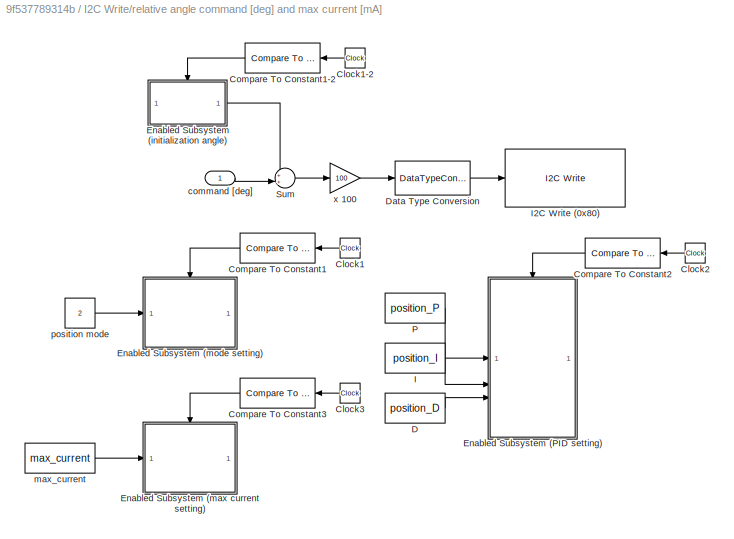
BLOCK [SubSystem] I2C Write/relative angle command [deg] and max current [mA]
BLOCK [Clock] I2C Write/relative angle command [deg] and max current [mA]/Clock1
BLOCK [Clock] I2C Write/relative angle command [deg] and max current [mA]/Clock1-2
  NameLocation = top
BLOCK [Clock] I2C Write/relative angle command [deg] and max current [mA]/Clock2
BLOCK [Clock] I2C Write/relative angle command [deg] and max current [mA]/Clock3
BLOCK [Reference] I2C Write/relative angle command [deg] and max current [mA]/Compare To Constant1  REF=simulink/Logic and Bit
Operations/Compare
To Constant
  SourceBlock = simulink/Logic and Bit\nOperations/Compare\nTo Constant
  SourceType = Compare To Constant
BLOCK [Reference] I2C Write/relative angle command [deg] and max current [mA]/Compare To Constant1-2  REF=simulink/Logic and Bit
Operations/Compare
To Constant
  NameLocation = top
  SourceBlock = simulink/Logic and Bit\nOperations/Compare\nTo Constant
  SourceType = Compare To Constant
BLOCK [Reference] I2C Write/relative angle command [deg] and max current [mA]/Compare To Constant2  REF=simulink/Logic and Bit
Operations/Compare
To Constant
  SourceBlock = simulink/Logic and Bit\nOperations/Compare\nTo Constant
  SourceType = Compare To Constant
BLOCK [Reference] I2C Write/relative angle command [deg] and max current [mA]/Compare To Constant3  REF=simulink/Logic and Bit
Operations/Compare
To Constant
  SourceBlock = simulink/Logic and Bit\nOperations/Compare\nTo Constant
  SourceType = Compare To Constant
BLOCK [Constant] I2C Write/relative angle command [deg] and max current [mA]/D
  Value = position_D
BLOCK [DataTypeConversion] I2C Write/relative angle command [deg] and max current [mA]/Data Type Conversion
  OutDataTypeStr = uint32
  RndMeth = Floor
  SaturateOnIntegerOverflow = off
BLOCK [SubSystem] I2C Write/relative angle command [deg] and max current [mA]/Enabled Subsystem (PID setting)
  TreatAsAtomicUnit = on
BLOCK [Gain] I2C Write/relative angle command [deg] and max current [mA]/Enabled Subsystem (PID setting)/ x 10^5 
  Gain = 1e5
BLOCK [Inport] I2C Write/relative angle command [deg] and max current [mA]/Enabled Subsystem (PID setting)/D
  Port = 3
BLOCK [DataTypeConversion] I2C Write/relative angle command [deg] and max current [mA]/Enabled Subsystem (PID setting)/Data Type Conversion1
  OutDataTypeStr = uint32
  RndMeth = Floor
  SaturateOnIntegerOverflow = off
BLOCK [DataTypeConversion] I2C Write/relative angle command [deg] and max current [mA]/Enabled Subsystem (PID setting)/Data Type Conversion2
  OutDataTypeStr = uint32
  RndMeth = Floor
  SaturateOnIntegerOverflow = off
BLOCK [DataTypeConversion] I2C Write/relative angle command [deg] and max current [mA]/Enabled Subsystem (PID setting)/Data Type Conversion3
  OutDataTypeStr = uint32
  RndMeth = Floor
  SaturateOnIntegerOverflow = off
BLOCK [EnablePort] I2C Write/relative angle command [deg] and max current [mA]/Enabled Subsystem (PID setting)/Enable
BLOCK [Inport] I2C Write/relative angle command [deg] and max current [mA]/Enabled Subsystem (PID setting)/I
  Port = 2
BLOCK [Reference] I2C Write/relative angle command [deg] and max current [mA]/Enabled Subsystem (PID setting)/I2C Write (0xA0)  REF=arduinolib/I2C Write
  SourceBlock = arduinolib/I2C Write
  SourceType = I2C Write
BLOCK [Reference] I2C Write/relative angle command [deg] and max current [mA]/Enabled Subsystem (PID setting)/I2C Write (0xA4)  REF=arduinolib/I2C Write
  SourceBlock = arduinolib/I2C Write
  SourceType = I2C Write
BLOCK [Reference] I2C Write/relative angle command [deg] and max current [mA]/Enabled Subsystem (PID setting)/I2C Write (0xA8)  REF=arduinolib/I2C Write
  SourceBlock = arduinolib/I2C Write
  SourceType = I2C Write
BLOCK [Inport] I2C Write/relative angle command [deg] and max current [mA]/Enabled Subsystem (PID setting)/P
BLOCK [Gain] I2C Write/relative angle command [deg] and max current [mA]/Enabled Subsystem (PID setting)/x 10^5
  Gain = 1e5
BLOCK [Gain] I2C Write/relative angle command [deg] and max current [mA]/Enabled Subsystem (PID setting)/x 10^7
  Gain = 1e7
BLOCK [SubSystem] I2C Write/relative angle command [deg] and max current [mA]/Enabled Subsystem (initialization angle)
  TreatAsAtomicUnit = on
BLOCK [DataTypeConversion] I2C Write/relative angle command [deg] and max current [mA]/Enabled Subsystem (initialization angle)/Data Type Conversion
  OutDataTypeStr = double
  RndMeth = Floor
  SaturateOnIntegerOverflow = off
BLOCK [EnablePort] I2C Write/relative angle command [deg] and max current [mA]/Enabled Subsystem (initialization angle)/Enable
BLOCK [Reference] I2C Write/relative angle command [deg] and max current [mA]/Enabled Subsystem (initialization angle)/I2C Read (0x90)  REF=arduinolib/I2C Read
  SourceBlock = arduinolib/I2C Read
  SourceType = I2C Read
BLOCK [Outport] I2C Write/relative angle command [deg] and max current [mA]/Enabled Subsystem (initialization angle)/initial angle
BLOCK [Gain] I2C Write/relative angle command [deg] and max current [mA]/Enabled Subsystem (initialization angle)/x (1//100)
  Gain = 1/100
BLOCK [SubSystem] I2C Write/relative angle command [deg] and max current [mA]/Enabled Subsystem (max current setting)
  TreatAsAtomicUnit = on
BLOCK [DataTypeConversion] I2C Write/relative angle command [deg] and max current [mA]/Enabled Subsystem (max current setting)/Data Type Conversion
  OutDataTypeStr = uint32
  RndMeth = Floor
  SaturateOnIntegerOverflow = off
BLOCK [EnablePort] I2C Write/relative angle command [deg] and max current [mA]/Enabled Subsystem (max current setting)/Enable
BLOCK [Reference] I2C Write/relative angle command [deg] and max current [mA]/Enabled Subsystem (max current setting)/I2C Write (0x50)  REF=arduinolib/I2C Write
  SourceBlock = arduinolib/I2C Write
  SourceType = I2C Write
BLOCK [Inport] I2C Write/relative angle command [deg] and max current [mA]/Enabled Subsystem (max current setting)/max_current
BLOCK [Gain] I2C Write/relative angle command [deg] and max current [mA]/Enabled Subsystem (max current setting)/x 100
  Gain = 100
BLOCK [SubSystem] I2C Write/relative angle command [deg] and max current [mA]/Enabled Subsystem (mode setting)
  TreatAsAtomicUnit = on
BLOCK [DataTypeConversion] I2C Write/relative angle command [deg] and max current [mA]/Enabled Subsystem (mode setting)/Data Type Conversion
  OutDataTypeStr = uint8
  RndMeth = Floor
  SaturateOnIntegerOverflow = off
BLOCK [EnablePort] I2C Write/relative angle command [deg] and max current [mA]/Enabled Subsystem (mode setting)/Enable
BLOCK [Reference] I2C Write/relative angle command [deg] and max current [mA]/Enabled Subsystem (mode setting)/I2C Write (0x01)  REF=arduinolib/I2C Write
  SourceBlock = arduinolib/I2C Write
  SourceType = I2C Write
BLOCK [Inport] I2C Write/relative angle command [deg] and max current [mA]/Enabled Subsystem (mode setting)/mode
BLOCK [Constant] I2C Write/relative angle command [deg] and max current [mA]/I
  Value = position_I
BLOCK [Reference] I2C Write/relative angle command [deg] and max current [mA]/I2C Write (0x80)  REF=arduinolib/I2C Write
  SourceBlock = arduinolib/I2C Write
  SourceType = I2C Write
BLOCK [Constant] I2C Write/relative angle command [deg] and max current [mA]/P
  Value = position_P
BLOCK [Sum] I2C Write/relative angle command [deg] and max current [mA]/Sum
  Inputs = ++|
BLOCK [Inport] I2C Write/relative angle command [deg] and max current [mA]/command [deg]
BLOCK [Constant] I2C Write/relative angle command [deg] and max current [mA]/max_current
  Value = max_current
BLOCK [Constant] I2C Write/relative angle command [deg] and max current [mA]/position mode
  Value = 2
BLOCK [Gain] I2C Write/relative angle command [deg] and max current [mA]/x 100
  Gain = 100
BLOCK [Clock] I2C Write/relative angle command [deg]/Clock1
BLOCK [Clock] I2C Write/relative angle command [deg]/Clock1-2
  NameLocation = top
BLOCK [Clock] I2C Write/relative angle command [deg]/Clock2
BLOCK [Reference] I2C Write/relative angle command [deg]/Compare To Constant1  REF=simulink/Logic and Bit
Operations/Compare
To Constant
  SourceBlock = simulink/Logic and Bit\nOperations/Compare\nTo Constant
  SourceType = Compare To Constant
BLOCK [Reference] I2C Write/relative angle command [deg]/Compare To Constant1-2  REF=simulink/Logic and Bit
Operations/Compare
To Constant
  NameLocation = top
  SourceBlock = simulink/Logic and Bit\nOperations/Compare\nTo Constant
  SourceType = Compare To Constant
BLOCK [Reference] I2C Write/relative angle command [deg]/Compare To Constant2  REF=simulink/Logic and Bit
Operations/Compare
To Constant
  SourceBlock = simulink/Logic and Bit\nOperations/Compare\nTo Constant
  SourceType = Compare To Constant
BLOCK [Constant] I2C Write/relative angle command [deg]/D
  Value = position_D
BLOCK [DataTypeConversion] I2C Write/relative angle command [deg]/Data Type Conversion
  OutDataTypeStr = uint32
  RndMeth = Floor
  SaturateOnIntegerOverflow = off
BLOCK [SubSystem] I2C Write/relative angle command [deg]/Enabled Subsystem (PID setting)
  TreatAsAtomicUnit = on
BLOCK [Gain] I2C Write/relative angle command [deg]/Enabled Subsystem (PID setting)/ x 10^5 
  Gain = 1e5
BLOCK [Inport] I2C Write/relative angle command [deg]/Enabled Subsystem (PID setting)/D
  Port = 3
BLOCK [DataTypeConversion] I2C Write/relative angle command [deg]/Enabled Subsystem (PID setting)/Data Type Conversion1
  OutDataTypeStr = uint32
  RndMeth = Floor
  SaturateOnIntegerOverflow = off
BLOCK [DataTypeConversion] I2C Write/relative angle command [deg]/Enabled Subsystem (PID setting)/Data Type Conversion2
  OutDataTypeStr = uint32
  RndMeth = Floor
  SaturateOnIntegerOverflow = off
BLOCK [DataTypeConversion] I2C Write/relative angle command [deg]/Enabled Subsystem (PID setting)/Data Type Conversion3
  OutDataTypeStr = uint32
  RndMeth = Floor
  SaturateOnIntegerOverflow = off
BLOCK [EnablePort] I2C Write/relative angle command [deg]/Enabled Subsystem (PID setting)/Enable
BLOCK [Inport] I2C Write/relative angle command [deg]/Enabled Subsystem (PID setting)/I
  Port = 2
BLOCK [Reference] I2C Write/relative angle command [deg]/Enabled Subsystem (PID setting)/I2C Write (0xA0)  REF=arduinolib/I2C Write
  SourceBlock = arduinolib/I2C Write
  SourceType = I2C Write
BLOCK [Reference] I2C Write/relative angle command [deg]/Enabled Subsystem (PID setting)/I2C Write (0xA4)  REF=arduinolib/I2C Write
  SourceBlock = arduinolib/I2C Write
  SourceType = I2C Write
BLOCK [Reference] I2C Write/relative angle command [deg]/Enabled Subsystem (PID setting)/I2C Write (0xA8)  REF=arduinolib/I2C Write
  SourceBlock = arduinolib/I2C Write
  SourceType = I2C Write
BLOCK [Inport] I2C Write/relative angle command [deg]/Enabled Subsystem (PID setting)/P
BLOCK [Gain] I2C Write/relative angle command [deg]/Enabled Subsystem (PID setting)/x 10^5
  Gain = 1e5
BLOCK [Gain] I2C Write/relative angle command [deg]/Enabled Subsystem (PID setting)/x 10^7
  Gain = 1e7
BLOCK [SubSystem] I2C Write/relative angle command [deg]/Enabled Subsystem (initialization angle)
  TreatAsAtomicUnit = on
BLOCK [DataTypeConversion] I2C Write/relative angle command [deg]/Enabled Subsystem (initialization angle)/Data Type Conversion
  OutDataTypeStr = double
  RndMeth = Floor
  SaturateOnIntegerOverflow = off
BLOCK [EnablePort] I2C Write/relative angle command [deg]/Enabled Subsystem (initialization angle)/Enable
BLOCK [Reference] I2C Write/relative angle command [deg]/Enabled Subsystem (initialization angle)/I2C Read (0x90)  REF=arduinolib/I2C Read
  SourceBlock = arduinolib/I2C Read
  SourceType = I2C Read
BLOCK [Outport] I2C Write/relative angle command [deg]/Enabled Subsystem (initialization angle)/initial angle
BLOCK [Gain] I2C Write/relative angle command [deg]/Enabled Subsystem (initialization angle)/x (1//100)
  Gain = 1/100
BLOCK [SubSystem] I2C Write/relative angle command [deg]/Enabled Subsystem (mode setting)
  TreatAsAtomicUnit = on
BLOCK [DataTypeConversion] I2C Write/relative angle command [deg]/Enabled Subsystem (mode setting)/Data Type Conversion
  OutDataTypeStr = uint8
  RndMeth = Floor
  SaturateOnIntegerOverflow = off
BLOCK [EnablePort] I2C Write/relative angle command [deg]/Enabled Subsystem (mode setting)/Enable
BLOCK [Reference] I2C Write/relative angle command [deg]/Enabled Subsystem (mode setting)/I2C Write (0x01)  REF=arduinolib/I2C Write
  SourceBlock = arduinolib/I2C Write
  SourceType = I2C Write
BLOCK [Inport] I2C Write/relative angle command [deg]/Enabled Subsystem (mode setting)/mode
BLOCK [Constant] I2C Write/relative angle command [deg]/I
  Value = position_I
BLOCK [Reference] I2C Write/relative angle command [deg]/I2C Write (0x80)  REF=arduinolib/I2C Write
  SourceBlock = arduinolib/I2C Write
  SourceType = I2C Write
BLOCK [Constant] I2C Write/relative angle command [deg]/P
  Value = position_P
BLOCK [Sum] I2C Write/relative angle command [deg]/Sum
  Inputs = ++|
BLOCK [Inport] I2C Write/relative angle command [deg]/command [deg]
BLOCK [Constant] I2C Write/relative angle command [deg]/position mode
  Value = 2
BLOCK [Gain] I2C Write/relative angle command [deg]/x 100
  Gain = 100
BLOCK [SubSystem] I2C Write/relative angle command [rad]
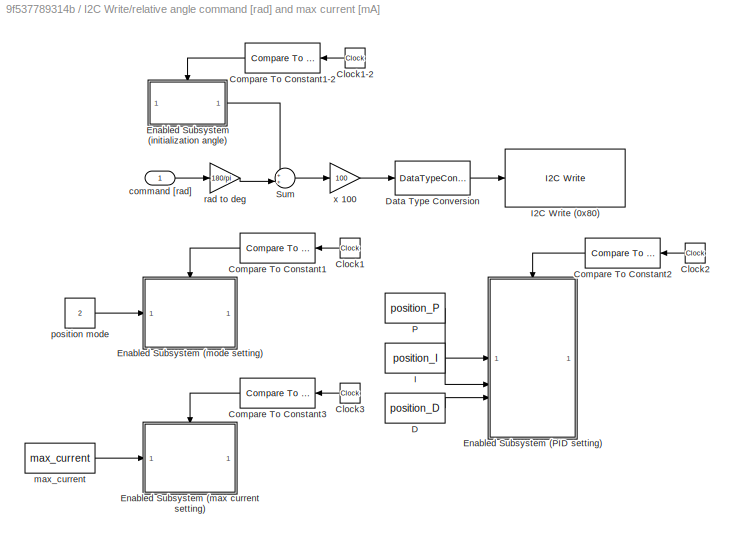
BLOCK [SubSystem] I2C Write/relative angle command [rad] and max current [mA]
BLOCK [Clock] I2C Write/relative angle command [rad] and max current [mA]/Clock1
BLOCK [Clock] I2C Write/relative angle command [rad] and max current [mA]/Clock1-2
  NameLocation = top
BLOCK [Clock] I2C Write/relative angle command [rad] and max current [mA]/Clock2
BLOCK [Clock] I2C Write/relative angle command [rad] and max current [mA]/Clock3
BLOCK [Reference] I2C Write/relative angle command [rad] and max current [mA]/Compare To Constant1  REF=simulink/Logic and Bit
Operations/Compare
To Constant
  SourceBlock = simulink/Logic and Bit\nOperations/Compare\nTo Constant
  SourceType = Compare To Constant
BLOCK [Reference] I2C Write/relative angle command [rad] and max current [mA]/Compare To Constant1-2  REF=simulink/Logic and Bit
Operations/Compare
To Constant
  NameLocation = top
  SourceBlock = simulink/Logic and Bit\nOperations/Compare\nTo Constant
  SourceType = Compare To Constant
BLOCK [Reference] I2C Write/relative angle command [rad] and max current [mA]/Compare To Constant2  REF=simulink/Logic and Bit
Operations/Compare
To Constant
  SourceBlock = simulink/Logic and Bit\nOperations/Compare\nTo Constant
  SourceType = Compare To Constant
BLOCK [Reference] I2C Write/relative angle command [rad] and max current [mA]/Compare To Constant3  REF=simulink/Logic and Bit
Operations/Compare
To Constant
  SourceBlock = simulink/Logic and Bit\nOperations/Compare\nTo Constant
  SourceType = Compare To Constant
BLOCK [Constant] I2C Write/relative angle command [rad] and max current [mA]/D
  Value = position_D
BLOCK [DataTypeConversion] I2C Write/relative angle command [rad] and max current [mA]/Data Type Conversion
  OutDataTypeStr = uint32
  RndMeth = Floor
  SaturateOnIntegerOverflow = off
BLOCK [SubSystem] I2C Write/relative angle command [rad] and max current [mA]/Enabled Subsystem (PID setting)
  TreatAsAtomicUnit = on
BLOCK [Gain] I2C Write/relative angle command [rad] and max current [mA]/Enabled Subsystem (PID setting)/ x 10^5 
  Gain = 1e5
BLOCK [Inport] I2C Write/relative angle command [rad] and max current [mA]/Enabled Subsystem (PID setting)/D
  Port = 3
BLOCK [DataTypeConversion] I2C Write/relative angle command [rad] and max current [mA]/Enabled Subsystem (PID setting)/Data Type Conversion1
  OutDataTypeStr = uint32
  RndMeth = Floor
  SaturateOnIntegerOverflow = off
BLOCK [DataTypeConversion] I2C Write/relative angle command [rad] and max current [mA]/Enabled Subsystem (PID setting)/Data Type Conversion2
  OutDataTypeStr = uint32
  RndMeth = Floor
  SaturateOnIntegerOverflow = off
BLOCK [DataTypeConversion] I2C Write/relative angle command [rad] and max current [mA]/Enabled Subsystem (PID setting)/Data Type Conversion3
  OutDataTypeStr = uint32
  RndMeth = Floor
  SaturateOnIntegerOverflow = off
BLOCK [EnablePort] I2C Write/relative angle command [rad] and max current [mA]/Enabled Subsystem (PID setting)/Enable
BLOCK [Inport] I2C Write/relative angle command [rad] and max current [mA]/Enabled Subsystem (PID setting)/I
  Port = 2
BLOCK [Reference] I2C Write/relative angle command [rad] and max current [mA]/Enabled Subsystem (PID setting)/I2C Write (0xA0)  REF=arduinolib/I2C Write
  SourceBlock = arduinolib/I2C Write
  SourceType = I2C Write
BLOCK [Reference] I2C Write/relative angle command [rad] and max current [mA]/Enabled Subsystem (PID setting)/I2C Write (0xA4)  REF=arduinolib/I2C Write
  SourceBlock = arduinolib/I2C Write
  SourceType = I2C Write
BLOCK [Reference] I2C Write/relative angle command [rad] and max current [mA]/Enabled Subsystem (PID setting)/I2C Write (0xA8)  REF=arduinolib/I2C Write
  SourceBlock = arduinolib/I2C Write
  SourceType = I2C Write
BLOCK [Inport] I2C Write/relative angle command [rad] and max current [mA]/Enabled Subsystem (PID setting)/P
BLOCK [Gain] I2C Write/relative angle command [rad] and max current [mA]/Enabled Subsystem (PID setting)/x 10^5
  Gain = 1e5
BLOCK [Gain] I2C Write/relative angle command [rad] and max current [mA]/Enabled Subsystem (PID setting)/x 10^7
  Gain = 1e7
BLOCK [SubSystem] I2C Write/relative angle command [rad] and max current [mA]/Enabled Subsystem (initialization angle)
  TreatAsAtomicUnit = on
BLOCK [DataTypeConversion] I2C Write/relative angle command [rad] and max current [mA]/Enabled Subsystem (initialization angle)/Data Type Conversion
  OutDataTypeStr = double
  RndMeth = Floor
  SaturateOnIntegerOverflow = off
BLOCK [EnablePort] I2C Write/relative angle command [rad] and max current [mA]/Enabled Subsystem (initialization angle)/Enable
BLOCK [Reference] I2C Write/relative angle command [rad] and max current [mA]/Enabled Subsystem (initialization angle)/I2C Read (0x90)  REF=arduinolib/I2C Read
  SourceBlock = arduinolib/I2C Read
  SourceType = I2C Read
BLOCK [Outport] I2C Write/relative angle command [rad] and max current [mA]/Enabled Subsystem (initialization angle)/initial angle
BLOCK [Gain] I2C Write/relative angle command [rad] and max current [mA]/Enabled Subsystem (initialization angle)/x (1//100)
  Gain = 1/100
BLOCK [SubSystem] I2C Write/relative angle command [rad] and max current [mA]/Enabled Subsystem (max current setting)
  TreatAsAtomicUnit = on
BLOCK [DataTypeConversion] I2C Write/relative angle command [rad] and max current [mA]/Enabled Subsystem (max current setting)/Data Type Conversion
  OutDataTypeStr = uint32
  RndMeth = Floor
  SaturateOnIntegerOverflow = off
BLOCK [EnablePort] I2C Write/relative angle command [rad] and max current [mA]/Enabled Subsystem (max current setting)/Enable
BLOCK [Reference] I2C Write/relative angle command [rad] and max current [mA]/Enabled Subsystem (max current setting)/I2C Write (0x50)  REF=arduinolib/I2C Write
  SourceBlock = arduinolib/I2C Write
  SourceType = I2C Write
BLOCK [Inport] I2C Write/relative angle command [rad] and max current [mA]/Enabled Subsystem (max current setting)/max_current
BLOCK [Gain] I2C Write/relative angle command [rad] and max current [mA]/Enabled Subsystem (max current setting)/x 100
  Gain = 100
BLOCK [SubSystem] I2C Write/relative angle command [rad] and max current [mA]/Enabled Subsystem (mode setting)
  TreatAsAtomicUnit = on
BLOCK [DataTypeConversion] I2C Write/relative angle command [rad] and max current [mA]/Enabled Subsystem (mode setting)/Data Type Conversion
  OutDataTypeStr = uint8
  RndMeth = Floor
  SaturateOnIntegerOverflow = off
BLOCK [EnablePort] I2C Write/relative angle command [rad] and max current [mA]/Enabled Subsystem (mode setting)/Enable
BLOCK [Reference] I2C Write/relative angle command [rad] and max current [mA]/Enabled Subsystem (mode setting)/I2C Write (0x01)  REF=arduinolib/I2C Write
  SourceBlock = arduinolib/I2C Write
  SourceType = I2C Write
BLOCK [Inport] I2C Write/relative angle command [rad] and max current [mA]/Enabled Subsystem (mode setting)/mode
BLOCK [Constant] I2C Write/relative angle command [rad] and max current [mA]/I
  Value = position_I
BLOCK [Reference] I2C Write/relative angle command [rad] and max current [mA]/I2C Write (0x80)  REF=arduinolib/I2C Write
  SourceBlock = arduinolib/I2C Write
  SourceType = I2C Write
BLOCK [Constant] I2C Write/relative angle command [rad] and max current [mA]/P
  Value = position_P
BLOCK [Sum] I2C Write/relative angle command [rad] and max current [mA]/Sum
  Inputs = ++|
BLOCK [Inport] I2C Write/relative angle command [rad] and max current [mA]/command [rad]
BLOCK [Constant] I2C Write/relative angle command [rad] and max current [mA]/max_current
  Value = max_current
BLOCK [Constant] I2C Write/relative angle command [rad] and max current [mA]/position mode
  Value = 2
BLOCK [Gain] I2C Write/relative angle command [rad] and max current [mA]/rad to deg
  Gain = 180/pi
BLOCK [Gain] I2C Write/relative angle command [rad] and max current [mA]/x 100
  Gain = 100
BLOCK [Clock] I2C Write/relative angle command [rad]/Clock1
BLOCK [Clock] I2C Write/relative angle command [rad]/Clock1-2
  NameLocation = top
BLOCK [Clock] I2C Write/relative angle command [rad]/Clock2
BLOCK [Reference] I2C Write/relative angle command [rad]/Compare To Constant1  REF=simulink/Logic and Bit
Operations/Compare
To Constant
  SourceBlock = simulink/Logic and Bit\nOperations/Compare\nTo Constant
  SourceType = Compare To Constant
BLOCK [Reference] I2C Write/relative angle command [rad]/Compare To Constant1-2  REF=simulink/Logic and Bit
Operations/Compare
To Constant
  NameLocation = top
  SourceBlock = simulink/Logic and Bit\nOperations/Compare\nTo Constant
  SourceType = Compare To Constant
BLOCK [Reference] I2C Write/relative angle command [rad]/Compare To Constant2  REF=simulink/Logic and Bit
Operations/Compare
To Constant
  SourceBlock = simulink/Logic and Bit\nOperations/Compare\nTo Constant
  SourceType = Compare To Constant
BLOCK [Constant] I2C Write/relative angle command [rad]/D
  Value = position_D
BLOCK [DataTypeConversion] I2C Write/relative angle command [rad]/Data Type Conversion
  OutDataTypeStr = uint32
  RndMeth = Floor
  SaturateOnIntegerOverflow = off
BLOCK [SubSystem] I2C Write/relative angle command [rad]/Enabled Subsystem (PID setting)
  TreatAsAtomicUnit = on
BLOCK [Gain] I2C Write/relative angle command [rad]/Enabled Subsystem (PID setting)/ x 10^5 
  Gain = 1e5
BLOCK [Inport] I2C Write/relative angle command [rad]/Enabled Subsystem (PID setting)/D
  Port = 3
BLOCK [DataTypeConversion] I2C Write/relative angle command [rad]/Enabled Subsystem (PID setting)/Data Type Conversion1
  OutDataTypeStr = uint32
  RndMeth = Floor
  SaturateOnIntegerOverflow = off
BLOCK [DataTypeConversion] I2C Write/relative angle command [rad]/Enabled Subsystem (PID setting)/Data Type Conversion2
  OutDataTypeStr = uint32
  RndMeth = Floor
  SaturateOnIntegerOverflow = off
BLOCK [DataTypeConversion] I2C Write/relative angle command [rad]/Enabled Subsystem (PID setting)/Data Type Conversion3
  OutDataTypeStr = uint32
  RndMeth = Floor
  SaturateOnIntegerOverflow = off
BLOCK [EnablePort] I2C Write/relative angle command [rad]/Enabled Subsystem (PID setting)/Enable
BLOCK [Inport] I2C Write/relative angle command [rad]/Enabled Subsystem (PID setting)/I
  Port = 2
BLOCK [Reference] I2C Write/relative angle command [rad]/Enabled Subsystem (PID setting)/I2C Write (0xA0)  REF=arduinolib/I2C Write
  SourceBlock = arduinolib/I2C Write
  SourceType = I2C Write
BLOCK [Reference] I2C Write/relative angle command [rad]/Enabled Subsystem (PID setting)/I2C Write (0xA4)  REF=arduinolib/I2C Write
  SourceBlock = arduinolib/I2C Write
  SourceType = I2C Write
BLOCK [Reference] I2C Write/relative angle command [rad]/Enabled Subsystem (PID setting)/I2C Write (0xA8)  REF=arduinolib/I2C Write
  SourceBlock = arduinolib/I2C Write
  SourceType = I2C Write
BLOCK [Inport] I2C Write/relative angle command [rad]/Enabled Subsystem (PID setting)/P
BLOCK [Gain] I2C Write/relative angle command [rad]/Enabled Subsystem (PID setting)/x 10^5
  Gain = 1e5
BLOCK [Gain] I2C Write/relative angle command [rad]/Enabled Subsystem (PID setting)/x 10^7
  Gain = 1e7
BLOCK [SubSystem] I2C Write/relative angle command [rad]/Enabled Subsystem (initialization angle)
  TreatAsAtomicUnit = on
BLOCK [DataTypeConversion] I2C Write/relative angle command [rad]/Enabled Subsystem (initialization angle)/Data Type Conversion
  OutDataTypeStr = double
  RndMeth = Floor
  SaturateOnIntegerOverflow = off
BLOCK [EnablePort] I2C Write/relative angle command [rad]/Enabled Subsystem (initialization angle)/Enable
BLOCK [Reference] I2C Write/relative angle command [rad]/Enabled Subsystem (initialization angle)/I2C Read (0x90)  REF=arduinolib/I2C Read
  SourceBlock = arduinolib/I2C Read
  SourceType = I2C Read
BLOCK [Outport] I2C Write/relative angle command [rad]/Enabled Subsystem (initialization angle)/initial angle
BLOCK [Gain] I2C Write/relative angle command [rad]/Enabled Subsystem (initialization angle)/x (1//100)
  Gain = 1/100
BLOCK [SubSystem] I2C Write/relative angle command [rad]/Enabled Subsystem (mode setting)
  TreatAsAtomicUnit = on
BLOCK [DataTypeConversion] I2C Write/relative angle command [rad]/Enabled Subsystem (mode setting)/Data Type Conversion
  OutDataTypeStr = uint8
  RndMeth = Floor
  SaturateOnIntegerOverflow = off
BLOCK [EnablePort] I2C Write/relative angle command [rad]/Enabled Subsystem (mode setting)/Enable
BLOCK [Reference] I2C Write/relative angle command [rad]/Enabled Subsystem (mode setting)/I2C Write (0x01)  REF=arduinolib/I2C Write
  SourceBlock = arduinolib/I2C Write
  SourceType = I2C Write
BLOCK [Inport] I2C Write/relative angle command [rad]/Enabled Subsystem (mode setting)/mode
BLOCK [Constant] I2C Write/relative angle command [rad]/I
  Value = position_I
BLOCK [Reference] I2C Write/relative angle command [rad]/I2C Write (0x80)  REF=arduinolib/I2C Write
  SourceBlock = arduinolib/I2C Write
  SourceType = I2C Write
BLOCK [Constant] I2C Write/relative angle command [rad]/P
  Value = position_P
BLOCK [Sum] I2C Write/relative angle command [rad]/Sum
  Inputs = ++|
BLOCK [Inport] I2C Write/relative angle command [rad]/command [rad]
BLOCK [Constant] I2C Write/relative angle command [rad]/position mode
  Value = 2
BLOCK [Gain] I2C Write/relative angle command [rad]/rad to deg
  Gain = 180/pi
BLOCK [Gain] I2C Write/relative angle command [rad]/x 100
  Gain = 100
BLOCK [SubSystem] control mode
BLOCK [SubSystem] control mode (initial time only)
BLOCK [Clock] control mode (initial time only)/Clock
  NameLocation = top
BLOCK [Reference] control mode (initial time only)/Compare To Constant  REF=simulink/Logic and Bit
Operations/Compare
To Constant
  NameLocation = top
  SourceBlock = simulink/Logic and Bit\nOperations/Compare\nTo Constant
  SourceType = Compare To Constant
BLOCK [SubSystem] control mode (initial time only)/Enabled Subsystem
  TreatAsAtomicUnit = on
BLOCK [DataTypeConversion] control mode (initial time only)/Enabled Subsystem/Data Type Conversion
  OutDataTypeStr = uint8
  RndMeth = Floor
  SaturateOnIntegerOverflow = off
BLOCK [EnablePort] control mode (initial time only)/Enabled Subsystem/Enable
BLOCK [Reference] control mode (initial time only)/Enabled Subsystem/I2C Write (0x01)  REF=arduinolib/I2C Write
  SourceBlock = arduinolib/I2C Write
  SourceType = I2C Write
BLOCK [Inport] control mode (initial time only)/Enabled Subsystem/mode
BLOCK [Constant] control mode (initial time only)/mode
  Value = control_mode
BLOCK [DataTypeConversion] control mode/Data Type Conversion
  OutDataTypeStr = uint8
  RndMeth = Floor
  SaturateOnIntegerOverflow = off
BLOCK [Reference] control mode/I2C Write (0x01)  REF=arduinolib/I2C Write
  SourceBlock = arduinolib/I2C Write
  SourceType = I2C Write
BLOCK [Constant] control mode/mode
  Value = control_mode
BLOCK [SubSystem] motor ON//OFF
BLOCK [DataTypeConversion] motor ON//OFF/Data Type Conversion
  OutDataTypeStr = uint8
  RndMeth = Floor
  SaturateOnIntegerOverflow = off
BLOCK [Reference] motor ON//OFF/I2C Write (0x00)  REF=arduinolib/I2C Write
  SourceBlock = arduinolib/I2C Write
  SourceType = I2C Write
BLOCK [Inport] motor ON//OFF/ON (1) or OFF (0)
ANNOTATION (root): R 2023a and later
ANNOTATION (root): In the MATLAB Command Window, >> addpath(‘<path>) enter this command to add the path.
ANNOTATION (root): <copyright redacted>
ANNOTATION (root): Carter's roller485lib Release20260318 (Ver.2.0)
ANNOTATION Basic I2C Write: position mode
ANNOTATION Basic I2C Write: speed mode
ANNOTATION Basic I2C Write: current mode
ANNOTATION Basic I2C Write (using MATLAB Function): position mode
ANNOTATION Basic I2C Write (using MATLAB Function): speed mode
ANNOTATION Basic I2C Write (using MATLAB Function): current mode
ANNOTATION I2C Read: position detection
ANNOTATION I2C Read: speed detection
ANNOTATION I2C Read: current detection
ANNOTATION I2C Read (using MATLAB Function): position detection
ANNOTATION I2C Read (using MATLAB Function): speed detection
ANNOTATION I2C Read (using MATLAB Function): current detection
ANNOTATION I2C Write: position mode
ANNOTATION I2C Write: speed mode
ANNOTATION I2C Write: current mode
ANNOTATION I2C Write (using MATLAB Function): position mode
ANNOTATION I2C Write (using MATLAB Function): speed mode
ANNOTATION I2C Write (using MATLAB Function): current mode
LINE Basic I2C Write (using MATLAB Function)/basic absolute angle command [deg] (using MATLAB Function)/MATLAB Function:1 -> Basic I2C Write (using MATLAB Function)/basic absolute angle command [deg] (using MATLAB Function)/I2C Write (0x80):1
LINE Basic I2C Write (using MATLAB Function)/basic absolute angle command [deg] (using MATLAB Function)/command [deg]:1 -> Basic I2C Write (using MATLAB Function)/basic absolute angle command [deg] (using MATLAB Function)/x 100:1
LINE Basic I2C Write (using MATLAB Function)/basic absolute angle command [deg] (using MATLAB Function)/x 100:1 -> Basic I2C Write (using MATLAB Function)/basic absolute angle command [deg] (using MATLAB Function)/MATLAB Function:1
LINE Basic I2C Write (using MATLAB Function)/basic absolute angle command [rad] (using MATLAB Function)/MATLAB Function:1 -> Basic I2C Write (using MATLAB Function)/basic absolute angle command [rad] (using MATLAB Function)/I2C Write (0x80):1
LINE Basic I2C Write (using MATLAB Function)/basic absolute angle command [rad] (using MATLAB Function)/command [rad]:1 -> Basic I2C Write (using MATLAB Function)/basic absolute angle command [rad] (using MATLAB Function)/rad to deg:1
LINE Basic I2C Write (using MATLAB Function)/basic absolute angle command [rad] (using MATLAB Function)/rad to deg:1 -> Basic I2C Write (using MATLAB Function)/basic absolute angle command [rad] (using MATLAB Function)/x 100:1
LINE Basic I2C Write (using MATLAB Function)/basic absolute angle command [rad] (using MATLAB Function)/x 100:1 -> Basic I2C Write (using MATLAB Function)/basic absolute angle command [rad] (using MATLAB Function)/MATLAB Function:1
LINE Basic I2C Write (using MATLAB Function)/basic angular velocity command [rad//s] (using MATLAB Function)/MATLAB Function:1 -> Basic I2C Write (using MATLAB Function)/basic angular velocity command [rad//s] (using MATLAB Function)/I2C Write (0x40):1
LINE Basic I2C Write (using MATLAB Function)/basic angular velocity command [rad//s] (using MATLAB Function)/command [rad//s]:1 -> Basic I2C Write (using MATLAB Function)/basic angular velocity command [rad//s] (using MATLAB Function)/rad//s to rpm:1
LINE Basic I2C Write (using MATLAB Function)/basic angular velocity command [rad//s] (using MATLAB Function)/rad//s to rpm:1 -> Basic I2C Write (using MATLAB Function)/basic angular velocity command [rad//s] (using MATLAB Function)/x 100:1
LINE Basic I2C Write (using MATLAB Function)/basic angular velocity command [rad//s] (using MATLAB Function)/x 100:1 -> Basic I2C Write (using MATLAB Function)/basic angular velocity command [rad//s] (using MATLAB Function)/MATLAB Function:1
LINE Basic I2C Write (using MATLAB Function)/basic angular velocity command [rpm] (using MATLAB Function)/MATLAB Function:1 -> Basic I2C Write (using MATLAB Function)/basic angular velocity command [rpm] (using MATLAB Function)/I2C Write (0x40):1
LINE Basic I2C Write (using MATLAB Function)/basic angular velocity command [rpm] (using MATLAB Function)/command [rpm]:1 -> Basic I2C Write (using MATLAB Function)/basic angular velocity command [rpm] (using MATLAB Function)/x 100:1
LINE Basic I2C Write (using MATLAB Function)/basic angular velocity command [rpm] (using MATLAB Function)/x 100:1 -> Basic I2C Write (using MATLAB Function)/basic angular velocity command [rpm] (using MATLAB Function)/MATLAB Function:1
LINE Basic I2C Write (using MATLAB Function)/basic current command [A] (using MATLAB Function)/A to mA:1 -> Basic I2C Write (using MATLAB Function)/basic current command [A] (using MATLAB Function)/x 100:1
LINE Basic I2C Write (using MATLAB Function)/basic current command [A] (using MATLAB Function)/MATLAB Function:1 -> Basic I2C Write (using MATLAB Function)/basic current command [A] (using MATLAB Function)/I2C Write (0xB0):1
LINE Basic I2C Write (using MATLAB Function)/basic current command [A] (using MATLAB Function)/command [A]:1 -> Basic I2C Write (using MATLAB Function)/basic current command [A] (using MATLAB Function)/A to mA:1
LINE Basic I2C Write (using MATLAB Function)/basic current command [A] (using MATLAB Function)/x 100:1 -> Basic I2C Write (using MATLAB Function)/basic current command [A] (using MATLAB Function)/MATLAB Function:1
LINE Basic I2C Write (using MATLAB Function)/basic current command [mA] (using MATLAB Function)/MATLAB Function:1 -> Basic I2C Write (using MATLAB Function)/basic current command [mA] (using MATLAB Function)/I2C Write (0xB0):1
LINE Basic I2C Write (using MATLAB Function)/basic current command [mA] (using MATLAB Function)/command [mA]:1 -> Basic I2C Write (using MATLAB Function)/basic current command [mA] (using MATLAB Function)/x 100:1
LINE Basic I2C Write (using MATLAB Function)/basic current command [mA] (using MATLAB Function)/x 100:1 -> Basic I2C Write (using MATLAB Function)/basic current command [mA] (using MATLAB Function)/MATLAB Function:1
LINE Basic I2C Write (using MATLAB Function)/basic relative angle command [deg] (using MATLAB Function)/Clock:1 -> Basic I2C Write (using MATLAB Function)/basic relative angle command [deg] (using MATLAB Function)/Compare To Constant:1
LINE Basic I2C Write (using MATLAB Function)/basic relative angle command [deg] (using MATLAB Function)/Compare To Constant:1 -> Basic I2C Write (using MATLAB Function)/basic relative angle command [deg] (using MATLAB Function)/Enabled Subsystem (initialization angle):enable
LINE Basic I2C Write (using MATLAB Function)/basic relative angle command [deg] (using MATLAB Function)/Enabled Subsystem (initialization angle)/I2C Read (0x90):1 -> Basic I2C Write (using MATLAB Function)/basic relative angle command [deg] (using MATLAB Function)/Enabled Subsystem (initialization angle)/MATLAB Function:1
LINE Basic I2C Write (using MATLAB Function)/basic relative angle command [deg] (using MATLAB Function)/Enabled Subsystem (initialization angle)/MATLAB Function:1 -> Basic I2C Write (using MATLAB Function)/basic relative angle command [deg] (using MATLAB Function)/Enabled Subsystem (initialization angle)/x (1//100):1
LINE Basic I2C Write (using MATLAB Function)/basic relative angle command [deg] (using MATLAB Function)/Enabled Subsystem (initialization angle)/x (1//100):1 -> Basic I2C Write (using MATLAB Function)/basic relative angle command [deg] (using MATLAB Function)/Enabled Subsystem (initialization angle)/initial angle:1
LINE Basic I2C Write (using MATLAB Function)/basic relative angle command [deg] (using MATLAB Function)/Enabled Subsystem (initialization angle):1 -> Basic I2C Write (using MATLAB Function)/basic relative angle command [deg] (using MATLAB Function)/Sum:1
LINE Basic I2C Write (using MATLAB Function)/basic relative angle command [deg] (using MATLAB Function)/MATLAB Function:1 -> Basic I2C Write (using MATLAB Function)/basic relative angle command [deg] (using MATLAB Function)/I2C Write (0x80):1
LINE Basic I2C Write (using MATLAB Function)/basic relative angle command [deg] (using MATLAB Function)/Sum:1 -> Basic I2C Write (using MATLAB Function)/basic relative angle command [deg] (using MATLAB Function)/x 100:1
LINE Basic I2C Write (using MATLAB Function)/basic relative angle command [deg] (using MATLAB Function)/command [deg]:1 -> Basic I2C Write (using MATLAB Function)/basic relative angle command [deg] (using MATLAB Function)/Sum:2
LINE Basic I2C Write (using MATLAB Function)/basic relative angle command [deg] (using MATLAB Function)/x 100:1 -> Basic I2C Write (using MATLAB Function)/basic relative angle command [deg] (using MATLAB Function)/MATLAB Function:1
LINE Basic I2C Write (using MATLAB Function)/basic relative angle command [rad] (using MATLAB Function)/Clock:1 -> Basic I2C Write (using MATLAB Function)/basic relative angle command [rad] (using MATLAB Function)/Compare To Constant:1
LINE Basic I2C Write (using MATLAB Function)/basic relative angle command [rad] (using MATLAB Function)/Compare To Constant:1 -> Basic I2C Write (using MATLAB Function)/basic relative angle command [rad] (using MATLAB Function)/Enabled Subsystem (initialization angle):enable
LINE Basic I2C Write (using MATLAB Function)/basic relative angle command [rad] (using MATLAB Function)/Enabled Subsystem (initialization angle)/I2C Read (0x90):1 -> Basic I2C Write (using MATLAB Function)/basic relative angle command [rad] (using MATLAB Function)/Enabled Subsystem (initialization angle)/MATLAB Function:1
LINE Basic I2C Write (using MATLAB Function)/basic relative angle command [rad] (using MATLAB Function)/Enabled Subsystem (initialization angle)/MATLAB Function:1 -> Basic I2C Write (using MATLAB Function)/basic relative angle command [rad] (using MATLAB Function)/Enabled Subsystem (initialization angle)/x (1//100):1
LINE Basic I2C Write (using MATLAB Function)/basic relative angle command [rad] (using MATLAB Function)/Enabled Subsystem (initialization angle)/x (1//100):1 -> Basic I2C Write (using MATLAB Function)/basic relative angle command [rad] (using MATLAB Function)/Enabled Subsystem (initialization angle)/initial angle:1
LINE Basic I2C Write (using MATLAB Function)/basic relative angle command [rad] (using MATLAB Function)/Enabled Subsystem (initialization angle):1 -> Basic I2C Write (using MATLAB Function)/basic relative angle command [rad] (using MATLAB Function)/Sum:1
LINE Basic I2C Write (using MATLAB Function)/basic relative angle command [rad] (using MATLAB Function)/MATLAB Function:1 -> Basic I2C Write (using MATLAB Function)/basic relative angle command [rad] (using MATLAB Function)/I2C Write (0x80):1
LINE Basic I2C Write (using MATLAB Function)/basic relative angle command [rad] (using MATLAB Function)/Sum:1 -> Basic I2C Write (using MATLAB Function)/basic relative angle command [rad] (using MATLAB Function)/x 100:1
LINE Basic I2C Write (using MATLAB Function)/basic relative angle command [rad] (using MATLAB Function)/command [rad]:1 -> Basic I2C Write (using MATLAB Function)/basic relative angle command [rad] (using MATLAB Function)/rad to deg:1
LINE Basic I2C Write (using MATLAB Function)/basic relative angle command [rad] (using MATLAB Function)/rad to deg:1 -> Basic I2C Write (using MATLAB Function)/basic relative angle command [rad] (using MATLAB Function)/Sum:2
LINE Basic I2C Write (using MATLAB Function)/basic relative angle command [rad] (using MATLAB Function)/x 100:1 -> Basic I2C Write (using MATLAB Function)/basic relative angle command [rad] (using MATLAB Function)/MATLAB Function:1
LINE Basic I2C Write (using MATLAB Function)/position PID (using MATLAB Function)/ x 10^5 :1 -> Basic I2C Write (using MATLAB Function)/position PID (using MATLAB Function)/MATLAB Function (D):1
LINE Basic I2C Write (using MATLAB Function)/position PID (using MATLAB Function)/D:1 -> Basic I2C Write (using MATLAB Function)/position PID (using MATLAB Function)/ x 10^5 :1
LINE Basic I2C Write (using MATLAB Function)/position PID (using MATLAB Function)/I:1 -> Basic I2C Write (using MATLAB Function)/position PID (using MATLAB Function)/x 10^7:1
LINE Basic I2C Write (using MATLAB Function)/position PID (using MATLAB Function)/MATLAB Function (D):1 -> Basic I2C Write (using MATLAB Function)/position PID (using MATLAB Function)/I2C Write (0xA8):1
LINE Basic I2C Write (using MATLAB Function)/position PID (using MATLAB Function)/MATLAB Function (I):1 -> Basic I2C Write (using MATLAB Function)/position PID (using MATLAB Function)/I2C Write (0xA4):1
LINE Basic I2C Write (using MATLAB Function)/position PID (using MATLAB Function)/MATLAB Function (P):1 -> Basic I2C Write (using MATLAB Function)/position PID (using MATLAB Function)/I2C Write (0xA0):1
LINE Basic I2C Write (using MATLAB Function)/position PID (using MATLAB Function)/P:1 -> Basic I2C Write (using MATLAB Function)/position PID (using MATLAB Function)/x 10^5:1
LINE Basic I2C Write (using MATLAB Function)/position PID (using MATLAB Function)/x 10^5:1 -> Basic I2C Write (using MATLAB Function)/position PID (using MATLAB Function)/MATLAB Function (P):1
LINE Basic I2C Write (using MATLAB Function)/position PID (using MATLAB Function)/x 10^7:1 -> Basic I2C Write (using MATLAB Function)/position PID (using MATLAB Function)/MATLAB Function (I):1
LINE Basic I2C Write (using MATLAB Function)/position PID (within set time) (using MATLAB Function)/Clock:1 -> Basic I2C Write (using MATLAB Function)/position PID (within set time) (using MATLAB Function)/Compare To Constant:1
LINE Basic I2C Write (using MATLAB Function)/position PID (within set time) (using MATLAB Function)/Compare To Constant:1 -> Basic I2C Write (using MATLAB Function)/position PID (within set time) (using MATLAB Function)/Enabled Subsystem:enable
LINE Basic I2C Write (using MATLAB Function)/position PID (within set time) (using MATLAB Function)/D:1 -> Basic I2C Write (using MATLAB Function)/position PID (within set time) (using MATLAB Function)/Enabled Subsystem:3
LINE Basic I2C Write (using MATLAB Function)/position PID (within set time) (using MATLAB Function)/Enabled Subsystem/ x 10^5 :1 -> Basic I2C Write (using MATLAB Function)/position PID (within set time) (using MATLAB Function)/Enabled Subsystem/MATLAB Function (D):1
LINE Basic I2C Write (using MATLAB Function)/position PID (within set time) (using MATLAB Function)/Enabled Subsystem/D:1 -> Basic I2C Write (using MATLAB Function)/position PID (within set time) (using MATLAB Function)/Enabled Subsystem/ x 10^5 :1
LINE Basic I2C Write (using MATLAB Function)/position PID (within set time) (using MATLAB Function)/Enabled Subsystem/I:1 -> Basic I2C Write (using MATLAB Function)/position PID (within set time) (using MATLAB Function)/Enabled Subsystem/x 10^7:1
LINE Basic I2C Write (using MATLAB Function)/position PID (within set time) (using MATLAB Function)/Enabled Subsystem/MATLAB Function (D):1 -> Basic I2C Write (using MATLAB Function)/position PID (within set time) (using MATLAB Function)/Enabled Subsystem/I2C Write (0xA8):1
LINE Basic I2C Write (using MATLAB Function)/position PID (within set time) (using MATLAB Function)/Enabled Subsystem/MATLAB Function (I):1 -> Basic I2C Write (using MATLAB Function)/position PID (within set time) (using MATLAB Function)/Enabled Subsystem/I2C Write (0xA4):1
LINE Basic I2C Write (using MATLAB Function)/position PID (within set time) (using MATLAB Function)/Enabled Subsystem/MATLAB Function (P):1 -> Basic I2C Write (using MATLAB Function)/position PID (within set time) (using MATLAB Function)/Enabled Subsystem/I2C Write (0xA0):1
LINE Basic I2C Write (using MATLAB Function)/position PID (within set time) (using MATLAB Function)/Enabled Subsystem/P:1 -> Basic I2C Write (using MATLAB Function)/position PID (within set time) (using MATLAB Function)/Enabled Subsystem/x 10^5:1
LINE Basic I2C Write (using MATLAB Function)/position PID (within set time) (using MATLAB Function)/Enabled Subsystem/x 10^5:1 -> Basic I2C Write (using MATLAB Function)/position PID (within set time) (using MATLAB Function)/Enabled Subsystem/MATLAB Function (P):1
LINE Basic I2C Write (using MATLAB Function)/position PID (within set time) (using MATLAB Function)/Enabled Subsystem/x 10^7:1 -> Basic I2C Write (using MATLAB Function)/position PID (within set time) (using MATLAB Function)/Enabled Subsystem/MATLAB Function (I):1
LINE Basic I2C Write (using MATLAB Function)/position PID (within set time) (using MATLAB Function)/I:1 -> Basic I2C Write (using MATLAB Function)/position PID (within set time) (using MATLAB Function)/Enabled Subsystem:2
LINE Basic I2C Write (using MATLAB Function)/position PID (within set time) (using MATLAB Function)/P:1 -> Basic I2C Write (using MATLAB Function)/position PID (within set time) (using MATLAB Function)/Enabled Subsystem:1
LINE Basic I2C Write (using MATLAB Function)/speed PID (using MATLAB Function)/ x 10^5 :1 -> Basic I2C Write (using MATLAB Function)/speed PID (using MATLAB Function)/MATLAB Function (D):1
LINE Basic I2C Write (using MATLAB Function)/speed PID (using MATLAB Function)/D:1 -> Basic I2C Write (using MATLAB Function)/speed PID (using MATLAB Function)/ x 10^5 :1
LINE Basic I2C Write (using MATLAB Function)/speed PID (using MATLAB Function)/I:1 -> Basic I2C Write (using MATLAB Function)/speed PID (using MATLAB Function)/x 10^7:1
LINE Basic I2C Write (using MATLAB Function)/speed PID (using MATLAB Function)/MATLAB Function (D):1 -> Basic I2C Write (using MATLAB Function)/speed PID (using MATLAB Function)/I2C Write (0x78):1
LINE Basic I2C Write (using MATLAB Function)/speed PID (using MATLAB Function)/MATLAB Function (I):1 -> Basic I2C Write (using MATLAB Function)/speed PID (using MATLAB Function)/I2C Write (0x74):1
LINE Basic I2C Write (using MATLAB Function)/speed PID (using MATLAB Function)/MATLAB Function (P):1 -> Basic I2C Write (using MATLAB Function)/speed PID (using MATLAB Function)/I2C Write (0x70):1
LINE Basic I2C Write (using MATLAB Function)/speed PID (using MATLAB Function)/P:1 -> Basic I2C Write (using MATLAB Function)/speed PID (using MATLAB Function)/x 10^5:1
LINE Basic I2C Write (using MATLAB Function)/speed PID (using MATLAB Function)/x 10^5:1 -> Basic I2C Write (using MATLAB Function)/speed PID (using MATLAB Function)/MATLAB Function (P):1
LINE Basic I2C Write (using MATLAB Function)/speed PID (using MATLAB Function)/x 10^7:1 -> Basic I2C Write (using MATLAB Function)/speed PID (using MATLAB Function)/MATLAB Function (I):1
LINE Basic I2C Write (using MATLAB Function)/speed PID (within set time) (using MATLAB Function)/Clock:1 -> Basic I2C Write (using MATLAB Function)/speed PID (within set time) (using MATLAB Function)/Compare To Constant:1
LINE Basic I2C Write (using MATLAB Function)/speed PID (within set time) (using MATLAB Function)/Compare To Constant:1 -> Basic I2C Write (using MATLAB Function)/speed PID (within set time) (using MATLAB Function)/Enabled Subsystem:enable
LINE Basic I2C Write (using MATLAB Function)/speed PID (within set time) (using MATLAB Function)/D:1 -> Basic I2C Write (using MATLAB Function)/speed PID (within set time) (using MATLAB Function)/Enabled Subsystem:3
LINE Basic I2C Write (using MATLAB Function)/speed PID (within set time) (using MATLAB Function)/Enabled Subsystem/ x 10^5 :1 -> Basic I2C Write (using MATLAB Function)/speed PID (within set time) (using MATLAB Function)/Enabled Subsystem/MATLAB Function (D):1
LINE Basic I2C Write (using MATLAB Function)/speed PID (within set time) (using MATLAB Function)/Enabled Subsystem/D:1 -> Basic I2C Write (using MATLAB Function)/speed PID (within set time) (using MATLAB Function)/Enabled Subsystem/ x 10^5 :1
LINE Basic I2C Write (using MATLAB Function)/speed PID (within set time) (using MATLAB Function)/Enabled Subsystem/I:1 -> Basic I2C Write (using MATLAB Function)/speed PID (within set time) (using MATLAB Function)/Enabled Subsystem/x 10^7:1
LINE Basic I2C Write (using MATLAB Function)/speed PID (within set time) (using MATLAB Function)/Enabled Subsystem/MATLAB Function (D):1 -> Basic I2C Write (using MATLAB Function)/speed PID (within set time) (using MATLAB Function)/Enabled Subsystem/I2C Write (0x78):1
LINE Basic I2C Write (using MATLAB Function)/speed PID (within set time) (using MATLAB Function)/Enabled Subsystem/MATLAB Function (I):1 -> Basic I2C Write (using MATLAB Function)/speed PID (within set time) (using MATLAB Function)/Enabled Subsystem/I2C Write (0x74):1
LINE Basic I2C Write (using MATLAB Function)/speed PID (within set time) (using MATLAB Function)/Enabled Subsystem/MATLAB Function (P):1 -> Basic I2C Write (using MATLAB Function)/speed PID (within set time) (using MATLAB Function)/Enabled Subsystem/I2C Write (0x70):1
LINE Basic I2C Write (using MATLAB Function)/speed PID (within set time) (using MATLAB Function)/Enabled Subsystem/P:1 -> Basic I2C Write (using MATLAB Function)/speed PID (within set time) (using MATLAB Function)/Enabled Subsystem/x 10^5:1
LINE Basic I2C Write (using MATLAB Function)/speed PID (within set time) (using MATLAB Function)/Enabled Subsystem/x 10^5:1 -> Basic I2C Write (using MATLAB Function)/speed PID (within set time) (using MATLAB Function)/Enabled Subsystem/MATLAB Function (P):1
LINE Basic I2C Write (using MATLAB Function)/speed PID (within set time) (using MATLAB Function)/Enabled Subsystem/x 10^7:1 -> Basic I2C Write (using MATLAB Function)/speed PID (within set time) (using MATLAB Function)/Enabled Subsystem/MATLAB Function (I):1
LINE Basic I2C Write (using MATLAB Function)/speed PID (within set time) (using MATLAB Function)/I:1 -> Basic I2C Write (using MATLAB Function)/speed PID (within set time) (using MATLAB Function)/Enabled Subsystem:2
LINE Basic I2C Write (using MATLAB Function)/speed PID (within set time) (using MATLAB Function)/P:1 -> Basic I2C Write (using MATLAB Function)/speed PID (within set time) (using MATLAB Function)/Enabled Subsystem:1
LINE Basic I2C Write/basic absolute angle command [deg]/Data Type Conversion:1 -> Basic I2C Write/basic absolute angle command [deg]/I2C Write (0x80):1
LINE Basic I2C Write/basic absolute angle command [deg]/command [deg]:1 -> Basic I2C Write/basic absolute angle command [deg]/x 100:1
LINE Basic I2C Write/basic absolute angle command [deg]/x 100:1 -> Basic I2C Write/basic absolute angle command [deg]/Data Type Conversion:1
LINE Basic I2C Write/basic absolute angle command [rad]/Data Type Conversion:1 -> Basic I2C Write/basic absolute angle command [rad]/I2C Write (0x80):1
LINE Basic I2C Write/basic absolute angle command [rad]/command [rad]:1 -> Basic I2C Write/basic absolute angle command [rad]/rad to deg:1
LINE Basic I2C Write/basic absolute angle command [rad]/rad to deg:1 -> Basic I2C Write/basic absolute angle command [rad]/x 100:1
LINE Basic I2C Write/basic absolute angle command [rad]/x 100:1 -> Basic I2C Write/basic absolute angle command [rad]/Data Type Conversion:1
LINE Basic I2C Write/basic angular velocity command [rad//s]/Data Type Conversion2:1 -> Basic I2C Write/basic angular velocity command [rad//s]/I2C Write (0x40):1
LINE Basic I2C Write/basic angular velocity command [rad//s]/command [rad//s]:1 -> Basic I2C Write/basic angular velocity command [rad//s]/rad//s to rpm:1
LINE Basic I2C Write/basic angular velocity command [rad//s]/rad//s to rpm:1 -> Basic I2C Write/basic angular velocity command [rad//s]/x 100:1
LINE Basic I2C Write/basic angular velocity command [rad//s]/x 100:1 -> Basic I2C Write/basic angular velocity command [rad//s]/Data Type Conversion2:1
LINE Basic I2C Write/basic angular velocity command [rpm]/Data Type Conversion:1 -> Basic I2C Write/basic angular velocity command [rpm]/I2C Write (0x40):1
LINE Basic I2C Write/basic angular velocity command [rpm]/command [rpm]:1 -> Basic I2C Write/basic angular velocity command [rpm]/x 100:1
LINE Basic I2C Write/basic angular velocity command [rpm]/x 100:1 -> Basic I2C Write/basic angular velocity command [rpm]/Data Type Conversion:1
LINE Basic I2C Write/basic current command [A]/A to mA:1 -> Basic I2C Write/basic current command [A]/x 100:1
LINE Basic I2C Write/basic current command [A]/Data Type Conversion:1 -> Basic I2C Write/basic current command [A]/I2C Write (0xB0):1
LINE Basic I2C Write/basic current command [A]/command [A]:1 -> Basic I2C Write/basic current command [A]/A to mA:1
LINE Basic I2C Write/basic current command [A]/x 100:1 -> Basic I2C Write/basic current command [A]/Data Type Conversion:1
LINE Basic I2C Write/basic current command [mA]/Data Type Conversion:1 -> Basic I2C Write/basic current command [mA]/I2C Write (0xB0):1
LINE Basic I2C Write/basic current command [mA]/command [mA]:1 -> Basic I2C Write/basic current command [mA]/x 100:1
LINE Basic I2C Write/basic current command [mA]/x 100:1 -> Basic I2C Write/basic current command [mA]/Data Type Conversion:1
LINE Basic I2C Write/basic relative angle command [deg]/Clock:1 -> Basic I2C Write/basic relative angle command [deg]/Compare To Constant:1
LINE Basic I2C Write/basic relative angle command [deg]/Compare To Constant:1 -> Basic I2C Write/basic relative angle command [deg]/Enabled Subsystem (initialization angle):enable
LINE Basic I2C Write/basic relative angle command [deg]/Data Type Conversion:1 -> Basic I2C Write/basic relative angle command [deg]/I2C Write (0x80):1
LINE Basic I2C Write/basic relative angle command [deg]/Enabled Subsystem (initialization angle)/Data Type Conversion:1 -> Basic I2C Write/basic relative angle command [deg]/Enabled Subsystem (initialization angle)/x (1//100):1
LINE Basic I2C Write/basic relative angle command [deg]/Enabled Subsystem (initialization angle)/I2C Read (0x90):1 -> Basic I2C Write/basic relative angle command [deg]/Enabled Subsystem (initialization angle)/Data Type Conversion:1
LINE Basic I2C Write/basic relative angle command [deg]/Enabled Subsystem (initialization angle)/x (1//100):1 -> Basic I2C Write/basic relative angle command [deg]/Enabled Subsystem (initialization angle)/initial angle:1
LINE Basic I2C Write/basic relative angle command [deg]/Enabled Subsystem (initialization angle):1 -> Basic I2C Write/basic relative angle command [deg]/Sum:1
LINE Basic I2C Write/basic relative angle command [deg]/Sum:1 -> Basic I2C Write/basic relative angle command [deg]/x 100:1
LINE Basic I2C Write/basic relative angle command [deg]/command [deg]:1 -> Basic I2C Write/basic relative angle command [deg]/Sum:2
LINE Basic I2C Write/basic relative angle command [deg]/x 100:1 -> Basic I2C Write/basic relative angle command [deg]/Data Type Conversion:1
LINE Basic I2C Write/basic relative angle command [rad]/Clock:1 -> Basic I2C Write/basic relative angle command [rad]/Compare To Constant:1
LINE Basic I2C Write/basic relative angle command [rad]/Compare To Constant:1 -> Basic I2C Write/basic relative angle command [rad]/Enabled Subsystem (initialization angle):enable
LINE Basic I2C Write/basic relative angle command [rad]/Data Type Conversion:1 -> Basic I2C Write/basic relative angle command [rad]/I2C Write (0x80):1
LINE Basic I2C Write/basic relative angle command [rad]/Enabled Subsystem (initialization angle)/Data Type Conversion:1 -> Basic I2C Write/basic relative angle command [rad]/Enabled Subsystem (initialization angle)/x (1//100):1
LINE Basic I2C Write/basic relative angle command [rad]/Enabled Subsystem (initialization angle)/I2C Read (0x90):1 -> Basic I2C Write/basic relative angle command [rad]/Enabled Subsystem (initialization angle)/Data Type Conversion:1
LINE Basic I2C Write/basic relative angle command [rad]/Enabled Subsystem (initialization angle)/x (1//100):1 -> Basic I2C Write/basic relative angle command [rad]/Enabled Subsystem (initialization angle)/initial angle:1
LINE Basic I2C Write/basic relative angle command [rad]/Enabled Subsystem (initialization angle):1 -> Basic I2C Write/basic relative angle command [rad]/Sum:1
LINE Basic I2C Write/basic relative angle command [rad]/Sum:1 -> Basic I2C Write/basic relative angle command [rad]/x 100:1
LINE Basic I2C Write/basic relative angle command [rad]/command [rad]:1 -> Basic I2C Write/basic relative angle command [rad]/rad to deg:1
LINE Basic I2C Write/basic relative angle command [rad]/rad to deg:1 -> Basic I2C Write/basic relative angle command [rad]/Sum:2
LINE Basic I2C Write/basic relative angle command [rad]/x 100:1 -> Basic I2C Write/basic relative angle command [rad]/Data Type Conversion:1
LINE Basic I2C Write/position PID (within set time)/Clock:1 -> Basic I2C Write/position PID (within set time)/Compare To Constant:1
LINE Basic I2C Write/position PID (within set time)/Compare To Constant:1 -> Basic I2C Write/position PID (within set time)/Enabled Subsystem:enable
LINE Basic I2C Write/position PID (within set time)/D:1 -> Basic I2C Write/position PID (within set time)/Enabled Subsystem:3
LINE Basic I2C Write/position PID (within set time)/Enabled Subsystem/ x 10^5 :1 -> Basic I2C Write/position PID (within set time)/Enabled Subsystem/Data Type Conversion3:1
LINE Basic I2C Write/position PID (within set time)/Enabled Subsystem/D:1 -> Basic I2C Write/position PID (within set time)/Enabled Subsystem/ x 10^5 :1
LINE Basic I2C Write/position PID (within set time)/Enabled Subsystem/Data Type Conversion1:1 -> Basic I2C Write/position PID (within set time)/Enabled Subsystem/I2C Write (0xA0):1
LINE Basic I2C Write/position PID (within set time)/Enabled Subsystem/Data Type Conversion2:1 -> Basic I2C Write/position PID (within set time)/Enabled Subsystem/I2C Write (0xA4):1
LINE Basic I2C Write/position PID (within set time)/Enabled Subsystem/Data Type Conversion3:1 -> Basic I2C Write/position PID (within set time)/Enabled Subsystem/I2C Write (0xA8):1
LINE Basic I2C Write/position PID (within set time)/Enabled Subsystem/I:1 -> Basic I2C Write/position PID (within set time)/Enabled Subsystem/x 10^7:1
LINE Basic I2C Write/position PID (within set time)/Enabled Subsystem/P:1 -> Basic I2C Write/position PID (within set time)/Enabled Subsystem/x 10^5:1
LINE Basic I2C Write/position PID (within set time)/Enabled Subsystem/x 10^5:1 -> Basic I2C Write/position PID (within set time)/Enabled Subsystem/Data Type Conversion1:1
LINE Basic I2C Write/position PID (within set time)/Enabled Subsystem/x 10^7:1 -> Basic I2C Write/position PID (within set time)/Enabled Subsystem/Data Type Conversion2:1
LINE Basic I2C Write/position PID (within set time)/I:1 -> Basic I2C Write/position PID (within set time)/Enabled Subsystem:2
LINE Basic I2C Write/position PID (within set time)/P:1 -> Basic I2C Write/position PID (within set time)/Enabled Subsystem:1
LINE Basic I2C Write/position PID/ x 10^5 :1 -> Basic I2C Write/position PID/Data Type Conversion3:1
LINE Basic I2C Write/position PID/D:1 -> Basic I2C Write/position PID/ x 10^5 :1
LINE Basic I2C Write/position PID/Data Type Conversion1:1 -> Basic I2C Write/position PID/I2C Write (0xA0):1
LINE Basic I2C Write/position PID/Data Type Conversion2:1 -> Basic I2C Write/position PID/I2C Write (0xA4):1
LINE Basic I2C Write/position PID/Data Type Conversion3:1 -> Basic I2C Write/position PID/I2C Write (0xA8):1
LINE Basic I2C Write/position PID/I:1 -> Basic I2C Write/position PID/x 10^7:1
LINE Basic I2C Write/position PID/P:1 -> Basic I2C Write/position PID/x 10^5:1
LINE Basic I2C Write/position PID/x 10^5:1 -> Basic I2C Write/position PID/Data Type Conversion1:1
LINE Basic I2C Write/position PID/x 10^7:1 -> Basic I2C Write/position PID/Data Type Conversion2:1
LINE Basic I2C Write/speed PID (within set time)/Clock:1 -> Basic I2C Write/speed PID (within set time)/Compare To Constant:1
LINE Basic I2C Write/speed PID (within set time)/Compare To Constant:1 -> Basic I2C Write/speed PID (within set time)/Enabled Subsystem:enable
LINE Basic I2C Write/speed PID (within set time)/D:1 -> Basic I2C Write/speed PID (within set time)/Enabled Subsystem:3
LINE Basic I2C Write/speed PID (within set time)/Enabled Subsystem/ x 10^5 :1 -> Basic I2C Write/speed PID (within set time)/Enabled Subsystem/Data Type Conversion3:1
LINE Basic I2C Write/speed PID (within set time)/Enabled Subsystem/D:1 -> Basic I2C Write/speed PID (within set time)/Enabled Subsystem/ x 10^5 :1
LINE Basic I2C Write/speed PID (within set time)/Enabled Subsystem/Data Type Conversion1:1 -> Basic I2C Write/speed PID (within set time)/Enabled Subsystem/I2C Write (0x70):1
LINE Basic I2C Write/speed PID (within set time)/Enabled Subsystem/Data Type Conversion2:1 -> Basic I2C Write/speed PID (within set time)/Enabled Subsystem/I2C Write (0x74):1
LINE Basic I2C Write/speed PID (within set time)/Enabled Subsystem/Data Type Conversion3:1 -> Basic I2C Write/speed PID (within set time)/Enabled Subsystem/I2C Write (0x78):1
LINE Basic I2C Write/speed PID (within set time)/Enabled Subsystem/I:1 -> Basic I2C Write/speed PID (within set time)/Enabled Subsystem/x 10^7:1
LINE Basic I2C Write/speed PID (within set time)/Enabled Subsystem/P:1 -> Basic I2C Write/speed PID (within set time)/Enabled Subsystem/x 10^5:1
LINE Basic I2C Write/speed PID (within set time)/Enabled Subsystem/x 10^5:1 -> Basic I2C Write/speed PID (within set time)/Enabled Subsystem/Data Type Conversion1:1
LINE Basic I2C Write/speed PID (within set time)/Enabled Subsystem/x 10^7:1 -> Basic I2C Write/speed PID (within set time)/Enabled Subsystem/Data Type Conversion2:1
LINE Basic I2C Write/speed PID (within set time)/I:1 -> Basic I2C Write/speed PID (within set time)/Enabled Subsystem:2
LINE Basic I2C Write/speed PID (within set time)/P:1 -> Basic I2C Write/speed PID (within set time)/Enabled Subsystem:1
LINE Basic I2C Write/speed PID/ x 10^5 :1 -> Basic I2C Write/speed PID/Data Type Conversion6:1
LINE Basic I2C Write/speed PID/D:1 -> Basic I2C Write/speed PID/ x 10^5 :1
LINE Basic I2C Write/speed PID/Data Type Conversion2:1 -> Basic I2C Write/speed PID/I2C Write (0x70):1
LINE Basic I2C Write/speed PID/Data Type Conversion4:1 -> Basic I2C Write/speed PID/I2C Write (0x74):1
LINE Basic I2C Write/speed PID/Data Type Conversion6:1 -> Basic I2C Write/speed PID/I2C Write (0x78):1
LINE Basic I2C Write/speed PID/I:1 -> Basic I2C Write/speed PID/x 10^7:1
LINE Basic I2C Write/speed PID/P:1 -> Basic I2C Write/speed PID/x 10^5:1
LINE Basic I2C Write/speed PID/x 10^5:1 -> Basic I2C Write/speed PID/Data Type Conversion2:1
LINE Basic I2C Write/speed PID/x 10^7:1 -> Basic I2C Write/speed PID/Data Type Conversion4:1
LINE I2C Read (using MATLAB Function)/absolute angle detection [deg] (using MATLAB Function)/I2C Read (0x90):1 -> I2C Read (using MATLAB Function)/absolute angle detection [deg] (using MATLAB Function)/MATLAB Function:1
LINE I2C Read (using MATLAB Function)/absolute angle detection [deg] (using MATLAB Function)/MATLAB Function:1 -> I2C Read (using MATLAB Function)/absolute angle detection [deg] (using MATLAB Function)/x (1//100):1
LINE I2C Read (using MATLAB Function)/absolute angle detection [deg] (using MATLAB Function)/x (1//100):1 -> I2C Read (using MATLAB Function)/absolute angle detection [deg] (using MATLAB Function)/deg:1
LINE I2C Read (using MATLAB Function)/absolute angle detection [rad] (using MATLAB Function)/I2C Read (0x90):1 -> I2C Read (using MATLAB Function)/absolute angle detection [rad] (using MATLAB Function)/MATLAB Function:1
LINE I2C Read (using MATLAB Function)/absolute angle detection [rad] (using MATLAB Function)/MATLAB Function:1 -> I2C Read (using MATLAB Function)/absolute angle detection [rad] (using MATLAB Function)/x (1//100):1
LINE I2C Read (using MATLAB Function)/absolute angle detection [rad] (using MATLAB Function)/deg to rad:1 -> I2C Read (using MATLAB Function)/absolute angle detection [rad] (using MATLAB Function)/rad:1
LINE I2C Read (using MATLAB Function)/absolute angle detection [rad] (using MATLAB Function)/x (1//100):1 -> I2C Read (using MATLAB Function)/absolute angle detection [rad] (using MATLAB Function)/deg to rad:1
LINE I2C Read (using MATLAB Function)/angular velocity detection using LPF [rad//s] (using MATLAB Function)/I2C Read (0x60):1 -> I2C Read (using MATLAB Function)/angular velocity detection using LPF [rad//s] (using MATLAB Function)/MATLAB Function2:1
LINE I2C Read (using MATLAB Function)/angular velocity detection using LPF [rad//s] (using MATLAB Function)/MATLAB Function2:1 -> I2C Read (using MATLAB Function)/angular velocity detection using LPF [rad//s] (using MATLAB Function)/x (1//100):1
LINE I2C Read (using MATLAB Function)/angular velocity detection using LPF [rad//s] (using MATLAB Function)/rpm to rad//s:1 -> I2C Read (using MATLAB Function)/angular velocity detection using LPF [rad//s] (using MATLAB Function)/rad//s:1
LINE I2C Read (using MATLAB Function)/angular velocity detection using LPF [rad//s] (using MATLAB Function)/x (1//100):1 -> I2C Read (using MATLAB Function)/angular velocity detection using LPF [rad//s] (using MATLAB Function)/rpm to rad//s:1
LINE I2C Read (using MATLAB Function)/angular velocity detection using LPF [rpm] (using MATLAB Function)/I2C Read (0x60):1 -> I2C Read (using MATLAB Function)/angular velocity detection using LPF [rpm] (using MATLAB Function)/MATLAB Function2:1
LINE I2C Read (using MATLAB Function)/angular velocity detection using LPF [rpm] (using MATLAB Function)/MATLAB Function2:1 -> I2C Read (using MATLAB Function)/angular velocity detection using LPF [rpm] (using MATLAB Function)/x (1//100):1
LINE I2C Read (using MATLAB Function)/angular velocity detection using LPF [rpm] (using MATLAB Function)/x (1//100):1 -> I2C Read (using MATLAB Function)/angular velocity detection using LPF [rpm] (using MATLAB Function)/rpm:1
LINE I2C Read (using MATLAB Function)/current detection [A] (using MATLAB Function)/I2C Read (0xC0):1 -> I2C Read (using MATLAB Function)/current detection [A] (using MATLAB Function)/MATLAB Function:1
LINE I2C Read (using MATLAB Function)/current detection [A] (using MATLAB Function)/MATLAB Function:1 -> I2C Read (using MATLAB Function)/current detection [A] (using MATLAB Function)/x (1//100):1
LINE I2C Read (using MATLAB Function)/current detection [A] (using MATLAB Function)/mA to A:1 -> I2C Read (using MATLAB Function)/current detection [A] (using MATLAB Function)/A:1
LINE I2C Read (using MATLAB Function)/current detection [A] (using MATLAB Function)/x (1//100):1 -> I2C Read (using MATLAB Function)/current detection [A] (using MATLAB Function)/mA to A:1
LINE I2C Read (using MATLAB Function)/current detection [mA] (using MATLAB Function)/I2C Read (0xC0):1 -> I2C Read (using MATLAB Function)/current detection [mA] (using MATLAB Function)/MATLAB Function:1
LINE I2C Read (using MATLAB Function)/current detection [mA] (using MATLAB Function)/MATLAB Function:1 -> I2C Read (using MATLAB Function)/current detection [mA] (using MATLAB Function)/x (1//100):1
LINE I2C Read (using MATLAB Function)/current detection [mA] (using MATLAB Function)/x (1//100):1 -> I2C Read (using MATLAB Function)/current detection [mA] (using MATLAB Function)/mA:1
LINE I2C Read (using MATLAB Function)/relative angle detection [deg] (using MATLAB Function)/Clock:1 -> I2C Read (using MATLAB Function)/relative angle detection [deg] (using MATLAB Function)/Compare To Constant:1
LINE I2C Read (using MATLAB Function)/relative angle detection [deg] (using MATLAB Function)/Compare To Constant:1 -> I2C Read (using MATLAB Function)/relative angle detection [deg] (using MATLAB Function)/Enabled Subsystem (initialization of angle):enable
LINE I2C Read (using MATLAB Function)/relative angle detection [deg] (using MATLAB Function)/Enabled Subsystem (initialization of angle)/phim:1 -> I2C Read (using MATLAB Function)/relative angle detection [deg] (using MATLAB Function)/Enabled Subsystem (initialization of angle)/phim(0):1
LINE I2C Read (using MATLAB Function)/relative angle detection [deg] (using MATLAB Function)/Enabled Subsystem (initialization of angle):1 -> I2C Read (using MATLAB Function)/relative angle detection [deg] (using MATLAB Function)/Sum:1
LINE I2C Read (using MATLAB Function)/relative angle detection [deg] (using MATLAB Function)/I2C Read (0x90):1 -> I2C Read (using MATLAB Function)/relative angle detection [deg] (using MATLAB Function)/MATLAB Function:1
NET I2C Read (using MATLAB Function)/relative angle detection [deg] (using MATLAB Function)/MATLAB Function:1 -> I2C Read (using MATLAB Function)/relative angle detection [deg] (using MATLAB Function)/Enabled Subsystem (initialization of angle):1, I2C Read (using MATLAB Function)/relative angle detection [deg] (using MATLAB Function)/Sum:2
LINE I2C Read (using MATLAB Function)/relative angle detection [deg] (using MATLAB Function)/Sum:1 -> I2C Read (using MATLAB Function)/relative angle detection [deg] (using MATLAB Function)/x (1//100):1
LINE I2C Read (using MATLAB Function)/relative angle detection [deg] (using MATLAB Function)/x (1//100):1 -> I2C Read (using MATLAB Function)/relative angle detection [deg] (using MATLAB Function)/deg:1
LINE I2C Read (using MATLAB Function)/relative angle detection [rad] (using MATLAB Function)/Clock:1 -> I2C Read (using MATLAB Function)/relative angle detection [rad] (using MATLAB Function)/Compare To Constant:1
LINE I2C Read (using MATLAB Function)/relative angle detection [rad] (using MATLAB Function)/Compare To Constant:1 -> I2C Read (using MATLAB Function)/relative angle detection [rad] (using MATLAB Function)/Enabled Subsystem (initialization of angle):enable
LINE I2C Read (using MATLAB Function)/relative angle detection [rad] (using MATLAB Function)/Enabled Subsystem (initialization of angle)/phim:1 -> I2C Read (using MATLAB Function)/relative angle detection [rad] (using MATLAB Function)/Enabled Subsystem (initialization of angle)/phim(0):1
LINE I2C Read (using MATLAB Function)/relative angle detection [rad] (using MATLAB Function)/Enabled Subsystem (initialization of angle):1 -> I2C Read (using MATLAB Function)/relative angle detection [rad] (using MATLAB Function)/Sum:1
LINE I2C Read (using MATLAB Function)/relative angle detection [rad] (using MATLAB Function)/I2C Read (0x90):1 -> I2C Read (using MATLAB Function)/relative angle detection [rad] (using MATLAB Function)/MATLAB Function:1
NET I2C Read (using MATLAB Function)/relative angle detection [rad] (using MATLAB Function)/MATLAB Function:1 -> I2C Read (using MATLAB Function)/relative angle detection [rad] (using MATLAB Function)/Enabled Subsystem (initialization of angle):1, I2C Read (using MATLAB Function)/relative angle detection [rad] (using MATLAB Function)/Sum:2
LINE I2C Read (using MATLAB Function)/relative angle detection [rad] (using MATLAB Function)/Sum:1 -> I2C Read (using MATLAB Function)/relative angle detection [rad] (using MATLAB Function)/x (1//100):1
LINE I2C Read (using MATLAB Function)/relative angle detection [rad] (using MATLAB Function)/deg to rad:1 -> I2C Read (using MATLAB Function)/relative angle detection [rad] (using MATLAB Function)/deg:1
LINE I2C Read (using MATLAB Function)/relative angle detection [rad] (using MATLAB Function)/x (1//100):1 -> I2C Read (using MATLAB Function)/relative angle detection [rad] (using MATLAB Function)/deg to rad:1
LINE I2C Read/absolute angle detection [deg]/Data Type Conversion:1 -> I2C Read/absolute angle detection [deg]/x (1//100):1
LINE I2C Read/absolute angle detection [deg]/I2C Read (0x90):1 -> I2C Read/absolute angle detection [deg]/Data Type Conversion:1
LINE I2C Read/absolute angle detection [deg]/Reshape:1 -> I2C Read/absolute angle detection [deg]/deg:1
LINE I2C Read/absolute angle detection [deg]/x (1//100):1 -> I2C Read/absolute angle detection [deg]/Reshape:1
LINE I2C Read/absolute angle detection [rad]/Data Type Conversion:1 -> I2C Read/absolute angle detection [rad]/x (1//100):1
LINE I2C Read/absolute angle detection [rad]/I2C Read (0x90):1 -> I2C Read/absolute angle detection [rad]/Data Type Conversion:1
LINE I2C Read/absolute angle detection [rad]/Reshape:1 -> I2C Read/absolute angle detection [rad]/rad:1
LINE I2C Read/absolute angle detection [rad]/deg to rad:1 -> I2C Read/absolute angle detection [rad]/Reshape:1
LINE I2C Read/absolute angle detection [rad]/x (1//100):1 -> I2C Read/absolute angle detection [rad]/deg to rad:1
LINE I2C Read/angular velocity detection using LPF [rad//s]/Data Type Conversion:1 -> I2C Read/angular velocity detection using LPF [rad//s]/x (1//100):1
LINE I2C Read/angular velocity detection using LPF [rad//s]/I2C Read (0x60):1 -> I2C Read/angular velocity detection using LPF [rad//s]/Data Type Conversion:1
LINE I2C Read/angular velocity detection using LPF [rad//s]/Reshape:1 -> I2C Read/angular velocity detection using LPF [rad//s]/rad//s:1
LINE I2C Read/angular velocity detection using LPF [rad//s]/rpm to rad//s:1 -> I2C Read/angular velocity detection using LPF [rad//s]/Reshape:1
LINE I2C Read/angular velocity detection using LPF [rad//s]/x (1//100):1 -> I2C Read/angular velocity detection using LPF [rad//s]/rpm to rad//s:1
LINE I2C Read/angular velocity detection using LPF [rpm]/Data Type Conversion:1 -> I2C Read/angular velocity detection using LPF [rpm]/x (1//100):1
LINE I2C Read/angular velocity detection using LPF [rpm]/I2C Read (0x60):1 -> I2C Read/angular velocity detection using LPF [rpm]/Data Type Conversion:1
LINE I2C Read/angular velocity detection using LPF [rpm]/Reshape:1 -> I2C Read/angular velocity detection using LPF [rpm]/rpm:1
LINE I2C Read/angular velocity detection using LPF [rpm]/x (1//100):1 -> I2C Read/angular velocity detection using LPF [rpm]/Reshape:1
LINE I2C Read/current detection [A]/Data Type Conversion:1 -> I2C Read/current detection [A]/x (1//100):1
LINE I2C Read/current detection [A]/I2C Read (0xC0):1 -> I2C Read/current detection [A]/Data Type Conversion:1
LINE I2C Read/current detection [A]/Reshape:1 -> I2C Read/current detection [A]/A:1
LINE I2C Read/current detection [A]/mA to A:1 -> I2C Read/current detection [A]/Reshape:1
LINE I2C Read/current detection [A]/x (1//100):1 -> I2C Read/current detection [A]/mA to A:1
LINE I2C Read/current detection [mA]/Data Type Conversion:1 -> I2C Read/current detection [mA]/x (1//100):1
LINE I2C Read/current detection [mA]/I2C Read (0xC0):1 -> I2C Read/current detection [mA]/Data Type Conversion:1
LINE I2C Read/current detection [mA]/Reshape:1 -> I2C Read/current detection [mA]/mA:1
LINE I2C Read/current detection [mA]/x (1//100):1 -> I2C Read/current detection [mA]/Reshape:1
LINE I2C Read/relative angle detection [deg]/Clock:1 -> I2C Read/relative angle detection [deg]/Compare To Constant:1
LINE I2C Read/relative angle detection [deg]/Compare To Constant:1 -> I2C Read/relative angle detection [deg]/Enabled Subsystem (initialization of angle):enable
NET I2C Read/relative angle detection [deg]/Data Type Conversion:1 -> I2C Read/relative angle detection [deg]/Enabled Subsystem (initialization of angle):1, I2C Read/relative angle detection [deg]/Sum:2
LINE I2C Read/relative angle detection [deg]/Enabled Subsystem (initialization of angle)/phim:1 -> I2C Read/relative angle detection [deg]/Enabled Subsystem (initialization of angle)/phim(0):1
LINE I2C Read/relative angle detection [deg]/Enabled Subsystem (initialization of angle):1 -> I2C Read/relative angle detection [deg]/Sum:1
LINE I2C Read/relative angle detection [deg]/I2C Read (0x90):1 -> I2C Read/relative angle detection [deg]/Data Type Conversion:1
LINE I2C Read/relative angle detection [deg]/Reshape:1 -> I2C Read/relative angle detection [deg]/deg:1
LINE I2C Read/relative angle detection [deg]/Sum:1 -> I2C Read/relative angle detection [deg]/x (1//100):1
LINE I2C Read/relative angle detection [deg]/x (1//100):1 -> I2C Read/relative angle detection [deg]/Reshape:1
LINE I2C Read/relative angle detection [rad]/Clock:1 -> I2C Read/relative angle detection [rad]/Compare To Constant:1
LINE I2C Read/relative angle detection [rad]/Compare To Constant:1 -> I2C Read/relative angle detection [rad]/Enabled Subsystem (initialization of angle):enable
NET I2C Read/relative angle detection [rad]/Data Type Conversion:1 -> I2C Read/relative angle detection [rad]/Enabled Subsystem (initialization of angle):1, I2C Read/relative angle detection [rad]/Sum:2
LINE I2C Read/relative angle detection [rad]/Enabled Subsystem (initialization of angle)/phim:1 -> I2C Read/relative angle detection [rad]/Enabled Subsystem (initialization of angle)/phim(0):1
LINE I2C Read/relative angle detection [rad]/Enabled Subsystem (initialization of angle):1 -> I2C Read/relative angle detection [rad]/Sum:1
LINE I2C Read/relative angle detection [rad]/I2C Read (0x90):1 -> I2C Read/relative angle detection [rad]/Data Type Conversion:1
LINE I2C Read/relative angle detection [rad]/Reshape:1 -> I2C Read/relative angle detection [rad]/rad:1
LINE I2C Read/relative angle detection [rad]/Sum:1 -> I2C Read/relative angle detection [rad]/x (1//100):1
LINE I2C Read/relative angle detection [rad]/deg to rad:1 -> I2C Read/relative angle detection [rad]/Reshape:1
LINE I2C Read/relative angle detection [rad]/x (1//100):1 -> I2C Read/relative angle detection [rad]/deg to rad:1
LINE I2C Write (using MATLAB Function)/absolute angle command [deg] (using MATLAB Function)/Clock1:1 -> I2C Write (using MATLAB Function)/absolute angle command [deg] (using MATLAB Function)/Compare To Constant1:1
LINE I2C Write (using MATLAB Function)/absolute angle command [deg] (using MATLAB Function)/Clock2:1 -> I2C Write (using MATLAB Function)/absolute angle command [deg] (using MATLAB Function)/Compare To Constant2:1
LINE I2C Write (using MATLAB Function)/absolute angle command [deg] (using MATLAB Function)/Compare To Constant1:1 -> I2C Write (using MATLAB Function)/absolute angle command [deg] (using MATLAB Function)/Enabled Subsystem (mode setting):enable
LINE I2C Write (using MATLAB Function)/absolute angle command [deg] (using MATLAB Function)/Compare To Constant2:1 -> I2C Write (using MATLAB Function)/absolute angle command [deg] (using MATLAB Function)/Enabled Subsystem (PID setting):enable
LINE I2C Write (using MATLAB Function)/absolute angle command [deg] (using MATLAB Function)/D:1 -> I2C Write (using MATLAB Function)/absolute angle command [deg] (using MATLAB Function)/Enabled Subsystem (PID setting):3
LINE I2C Write (using MATLAB Function)/absolute angle command [deg] (using MATLAB Function)/Enabled Subsystem (PID setting)/ x 10^5 :1 -> I2C Write (using MATLAB Function)/absolute angle command [deg] (using MATLAB Function)/Enabled Subsystem (PID setting)/MATLAB Function (D):1
LINE I2C Write (using MATLAB Function)/absolute angle command [deg] (using MATLAB Function)/Enabled Subsystem (PID setting)/D:1 -> I2C Write (using MATLAB Function)/absolute angle command [deg] (using MATLAB Function)/Enabled Subsystem (PID setting)/ x 10^5 :1
LINE I2C Write (using MATLAB Function)/absolute angle command [deg] (using MATLAB Function)/Enabled Subsystem (PID setting)/I:1 -> I2C Write (using MATLAB Function)/absolute angle command [deg] (using MATLAB Function)/Enabled Subsystem (PID setting)/x 10^7:1
LINE I2C Write (using MATLAB Function)/absolute angle command [deg] (using MATLAB Function)/Enabled Subsystem (PID setting)/MATLAB Function (D):1 -> I2C Write (using MATLAB Function)/absolute angle command [deg] (using MATLAB Function)/Enabled Subsystem (PID setting)/I2C Write (0xA8):1
LINE I2C Write (using MATLAB Function)/absolute angle command [deg] (using MATLAB Function)/Enabled Subsystem (PID setting)/MATLAB Function (I):1 -> I2C Write (using MATLAB Function)/absolute angle command [deg] (using MATLAB Function)/Enabled Subsystem (PID setting)/I2C Write (0xA4):1
LINE I2C Write (using MATLAB Function)/absolute angle command [deg] (using MATLAB Function)/Enabled Subsystem (PID setting)/MATLAB Function (P):1 -> I2C Write (using MATLAB Function)/absolute angle command [deg] (using MATLAB Function)/Enabled Subsystem (PID setting)/I2C Write (0xA0):1
LINE I2C Write (using MATLAB Function)/absolute angle command [deg] (using MATLAB Function)/Enabled Subsystem (PID setting)/P:1 -> I2C Write (using MATLAB Function)/absolute angle command [deg] (using MATLAB Function)/Enabled Subsystem (PID setting)/x 10^5:1
LINE I2C Write (using MATLAB Function)/absolute angle command [deg] (using MATLAB Function)/Enabled Subsystem (PID setting)/x 10^5:1 -> I2C Write (using MATLAB Function)/absolute angle command [deg] (using MATLAB Function)/Enabled Subsystem (PID setting)/MATLAB Function (P):1
LINE I2C Write (using MATLAB Function)/absolute angle command [deg] (using MATLAB Function)/Enabled Subsystem (PID setting)/x 10^7:1 -> I2C Write (using MATLAB Function)/absolute angle command [deg] (using MATLAB Function)/Enabled Subsystem (PID setting)/MATLAB Function (I):1
LINE I2C Write (using MATLAB Function)/absolute angle command [deg] (using MATLAB Function)/Enabled Subsystem (mode setting)/Data Type Conversion:1 -> I2C Write (using MATLAB Function)/absolute angle command [deg] (using MATLAB Function)/Enabled Subsystem (mode setting)/I2C Write (0x01):1
LINE I2C Write (using MATLAB Function)/absolute angle command [deg] (using MATLAB Function)/Enabled Subsystem (mode setting)/mode:1 -> I2C Write (using MATLAB Function)/absolute angle command [deg] (using MATLAB Function)/Enabled Subsystem (mode setting)/Data Type Conversion:1
LINE I2C Write (using MATLAB Function)/absolute angle command [deg] (using MATLAB Function)/I:1 -> I2C Write (using MATLAB Function)/absolute angle command [deg] (using MATLAB Function)/Enabled Subsystem (PID setting):2
LINE I2C Write (using MATLAB Function)/absolute angle command [deg] (using MATLAB Function)/MATLAB Function:1 -> I2C Write (using MATLAB Function)/absolute angle command [deg] (using MATLAB Function)/I2C Write (0x80):1
LINE I2C Write (using MATLAB Function)/absolute angle command [deg] (using MATLAB Function)/P:1 -> I2C Write (using MATLAB Function)/absolute angle command [deg] (using MATLAB Function)/Enabled Subsystem (PID setting):1
LINE I2C Write (using MATLAB Function)/absolute angle command [deg] (using MATLAB Function)/command [deg]:1 -> I2C Write (using MATLAB Function)/absolute angle command [deg] (using MATLAB Function)/x 100:1
LINE I2C Write (using MATLAB Function)/absolute angle command [deg] (using MATLAB Function)/position mode:1 -> I2C Write (using MATLAB Function)/absolute angle command [deg] (using MATLAB Function)/Enabled Subsystem (mode setting):1
LINE I2C Write (using MATLAB Function)/absolute angle command [deg] (using MATLAB Function)/x 100:1 -> I2C Write (using MATLAB Function)/absolute angle command [deg] (using MATLAB Function)/MATLAB Function:1
LINE I2C Write (using MATLAB Function)/absolute angle command [rad] (using MATLAB Function)/Clock1:1 -> I2C Write (using MATLAB Function)/absolute angle command [rad] (using MATLAB Function)/Compare To Constant1:1
LINE I2C Write (using MATLAB Function)/absolute angle command [rad] (using MATLAB Function)/Clock2:1 -> I2C Write (using MATLAB Function)/absolute angle command [rad] (using MATLAB Function)/Compare To Constant2:1
LINE I2C Write (using MATLAB Function)/absolute angle command [rad] (using MATLAB Function)/Compare To Constant1:1 -> I2C Write (using MATLAB Function)/absolute angle command [rad] (using MATLAB Function)/Enabled Subsystem (mode setting):enable
LINE I2C Write (using MATLAB Function)/absolute angle command [rad] (using MATLAB Function)/Compare To Constant2:1 -> I2C Write (using MATLAB Function)/absolute angle command [rad] (using MATLAB Function)/Enabled Subsystem (PID setting):enable
LINE I2C Write (using MATLAB Function)/absolute angle command [rad] (using MATLAB Function)/D:1 -> I2C Write (using MATLAB Function)/absolute angle command [rad] (using MATLAB Function)/Enabled Subsystem (PID setting):3
LINE I2C Write (using MATLAB Function)/absolute angle command [rad] (using MATLAB Function)/Enabled Subsystem (PID setting)/ x 10^5 :1 -> I2C Write (using MATLAB Function)/absolute angle command [rad] (using MATLAB Function)/Enabled Subsystem (PID setting)/MATLAB Function (D):1
LINE I2C Write (using MATLAB Function)/absolute angle command [rad] (using MATLAB Function)/Enabled Subsystem (PID setting)/D:1 -> I2C Write (using MATLAB Function)/absolute angle command [rad] (using MATLAB Function)/Enabled Subsystem (PID setting)/ x 10^5 :1
LINE I2C Write (using MATLAB Function)/absolute angle command [rad] (using MATLAB Function)/Enabled Subsystem (PID setting)/I:1 -> I2C Write (using MATLAB Function)/absolute angle command [rad] (using MATLAB Function)/Enabled Subsystem (PID setting)/x 10^7:1
LINE I2C Write (using MATLAB Function)/absolute angle command [rad] (using MATLAB Function)/Enabled Subsystem (PID setting)/MATLAB Function (D):1 -> I2C Write (using MATLAB Function)/absolute angle command [rad] (using MATLAB Function)/Enabled Subsystem (PID setting)/I2C Write (0xA8):1
LINE I2C Write (using MATLAB Function)/absolute angle command [rad] (using MATLAB Function)/Enabled Subsystem (PID setting)/MATLAB Function (I):1 -> I2C Write (using MATLAB Function)/absolute angle command [rad] (using MATLAB Function)/Enabled Subsystem (PID setting)/I2C Write (0xA4):1
LINE I2C Write (using MATLAB Function)/absolute angle command [rad] (using MATLAB Function)/Enabled Subsystem (PID setting)/MATLAB Function (P):1 -> I2C Write (using MATLAB Function)/absolute angle command [rad] (using MATLAB Function)/Enabled Subsystem (PID setting)/I2C Write (0xA0):1
LINE I2C Write (using MATLAB Function)/absolute angle command [rad] (using MATLAB Function)/Enabled Subsystem (PID setting)/P:1 -> I2C Write (using MATLAB Function)/absolute angle command [rad] (using MATLAB Function)/Enabled Subsystem (PID setting)/x 10^5:1
LINE I2C Write (using MATLAB Function)/absolute angle command [rad] (using MATLAB Function)/Enabled Subsystem (PID setting)/x 10^5:1 -> I2C Write (using MATLAB Function)/absolute angle command [rad] (using MATLAB Function)/Enabled Subsystem (PID setting)/MATLAB Function (P):1
LINE I2C Write (using MATLAB Function)/absolute angle command [rad] (using MATLAB Function)/Enabled Subsystem (PID setting)/x 10^7:1 -> I2C Write (using MATLAB Function)/absolute angle command [rad] (using MATLAB Function)/Enabled Subsystem (PID setting)/MATLAB Function (I):1
LINE I2C Write (using MATLAB Function)/absolute angle command [rad] (using MATLAB Function)/Enabled Subsystem (mode setting)/Data Type Conversion:1 -> I2C Write (using MATLAB Function)/absolute angle command [rad] (using MATLAB Function)/Enabled Subsystem (mode setting)/I2C Write (0x01):1
LINE I2C Write (using MATLAB Function)/absolute angle command [rad] (using MATLAB Function)/Enabled Subsystem (mode setting)/mode:1 -> I2C Write (using MATLAB Function)/absolute angle command [rad] (using MATLAB Function)/Enabled Subsystem (mode setting)/Data Type Conversion:1
LINE I2C Write (using MATLAB Function)/absolute angle command [rad] (using MATLAB Function)/I:1 -> I2C Write (using MATLAB Function)/absolute angle command [rad] (using MATLAB Function)/Enabled Subsystem (PID setting):2
LINE I2C Write (using MATLAB Function)/absolute angle command [rad] (using MATLAB Function)/MATLAB Function:1 -> I2C Write (using MATLAB Function)/absolute angle command [rad] (using MATLAB Function)/I2C Write (0x80):1
LINE I2C Write (using MATLAB Function)/absolute angle command [rad] (using MATLAB Function)/P:1 -> I2C Write (using MATLAB Function)/absolute angle command [rad] (using MATLAB Function)/Enabled Subsystem (PID setting):1
LINE I2C Write (using MATLAB Function)/absolute angle command [rad] (using MATLAB Function)/command [rad]:1 -> I2C Write (using MATLAB Function)/absolute angle command [rad] (using MATLAB Function)/rad to deg:1
LINE I2C Write (using MATLAB Function)/absolute angle command [rad] (using MATLAB Function)/position mode:1 -> I2C Write (using MATLAB Function)/absolute angle command [rad] (using MATLAB Function)/Enabled Subsystem (mode setting):1
LINE I2C Write (using MATLAB Function)/absolute angle command [rad] (using MATLAB Function)/rad to deg:1 -> I2C Write (using MATLAB Function)/absolute angle command [rad] (using MATLAB Function)/x 100:1
LINE I2C Write (using MATLAB Function)/absolute angle command [rad] (using MATLAB Function)/x 100:1 -> I2C Write (using MATLAB Function)/absolute angle command [rad] (using MATLAB Function)/MATLAB Function:1
LINE I2C Write (using MATLAB Function)/angular velocity command [rad//s] (using MATLAB Function)/Clock1:1 -> I2C Write (using MATLAB Function)/angular velocity command [rad//s] (using MATLAB Function)/Compare To Constant1:1
LINE I2C Write (using MATLAB Function)/angular velocity command [rad//s] (using MATLAB Function)/Clock2:1 -> I2C Write (using MATLAB Function)/angular velocity command [rad//s] (using MATLAB Function)/Compare To Constant2:1
LINE I2C Write (using MATLAB Function)/angular velocity command [rad//s] (using MATLAB Function)/Compare To Constant1:1 -> I2C Write (using MATLAB Function)/angular velocity command [rad//s] (using MATLAB Function)/Enabled Subsystem (mode setting):enable
LINE I2C Write (using MATLAB Function)/angular velocity command [rad//s] (using MATLAB Function)/Compare To Constant2:1 -> I2C Write (using MATLAB Function)/angular velocity command [rad//s] (using MATLAB Function)/Enabled Subsystem (PID setting):enable
LINE I2C Write (using MATLAB Function)/angular velocity command [rad//s] (using MATLAB Function)/D:1 -> I2C Write (using MATLAB Function)/angular velocity command [rad//s] (using MATLAB Function)/Enabled Subsystem (PID setting):3
LINE I2C Write (using MATLAB Function)/angular velocity command [rad//s] (using MATLAB Function)/Enabled Subsystem (PID setting)/ x 10^5 :1 -> I2C Write (using MATLAB Function)/angular velocity command [rad//s] (using MATLAB Function)/Enabled Subsystem (PID setting)/MATLAB Function (D):1
LINE I2C Write (using MATLAB Function)/angular velocity command [rad//s] (using MATLAB Function)/Enabled Subsystem (PID setting)/D:1 -> I2C Write (using MATLAB Function)/angular velocity command [rad//s] (using MATLAB Function)/Enabled Subsystem (PID setting)/ x 10^5 :1
LINE I2C Write (using MATLAB Function)/angular velocity command [rad//s] (using MATLAB Function)/Enabled Subsystem (PID setting)/I:1 -> I2C Write (using MATLAB Function)/angular velocity command [rad//s] (using MATLAB Function)/Enabled Subsystem (PID setting)/x 10^7:1
LINE I2C Write (using MATLAB Function)/angular velocity command [rad//s] (using MATLAB Function)/Enabled Subsystem (PID setting)/MATLAB Function (D):1 -> I2C Write (using MATLAB Function)/angular velocity command [rad//s] (using MATLAB Function)/Enabled Subsystem (PID setting)/I2C Write (0x78):1
LINE I2C Write (using MATLAB Function)/angular velocity command [rad//s] (using MATLAB Function)/Enabled Subsystem (PID setting)/MATLAB Function (I):1 -> I2C Write (using MATLAB Function)/angular velocity command [rad//s] (using MATLAB Function)/Enabled Subsystem (PID setting)/I2C Write (0x74):1
LINE I2C Write (using MATLAB Function)/angular velocity command [rad//s] (using MATLAB Function)/Enabled Subsystem (PID setting)/MATLAB Function (P):1 -> I2C Write (using MATLAB Function)/angular velocity command [rad//s] (using MATLAB Function)/Enabled Subsystem (PID setting)/I2C Write (0x70):1
LINE I2C Write (using MATLAB Function)/angular velocity command [rad//s] (using MATLAB Function)/Enabled Subsystem (PID setting)/P:1 -> I2C Write (using MATLAB Function)/angular velocity command [rad//s] (using MATLAB Function)/Enabled Subsystem (PID setting)/x 10^5:1
LINE I2C Write (using MATLAB Function)/angular velocity command [rad//s] (using MATLAB Function)/Enabled Subsystem (PID setting)/x 10^5:1 -> I2C Write (using MATLAB Function)/angular velocity command [rad//s] (using MATLAB Function)/Enabled Subsystem (PID setting)/MATLAB Function (P):1
LINE I2C Write (using MATLAB Function)/angular velocity command [rad//s] (using MATLAB Function)/Enabled Subsystem (PID setting)/x 10^7:1 -> I2C Write (using MATLAB Function)/angular velocity command [rad//s] (using MATLAB Function)/Enabled Subsystem (PID setting)/MATLAB Function (I):1
LINE I2C Write (using MATLAB Function)/angular velocity command [rad//s] (using MATLAB Function)/Enabled Subsystem (mode setting)/Data Type Conversion:1 -> I2C Write (using MATLAB Function)/angular velocity command [rad//s] (using MATLAB Function)/Enabled Subsystem (mode setting)/I2C Write (0x01):1
LINE I2C Write (using MATLAB Function)/angular velocity command [rad//s] (using MATLAB Function)/Enabled Subsystem (mode setting)/mode:1 -> I2C Write (using MATLAB Function)/angular velocity command [rad//s] (using MATLAB Function)/Enabled Subsystem (mode setting)/Data Type Conversion:1
LINE I2C Write (using MATLAB Function)/angular velocity command [rad//s] (using MATLAB Function)/I:1 -> I2C Write (using MATLAB Function)/angular velocity command [rad//s] (using MATLAB Function)/Enabled Subsystem (PID setting):2
LINE I2C Write (using MATLAB Function)/angular velocity command [rad//s] (using MATLAB Function)/MATLAB Function:1 -> I2C Write (using MATLAB Function)/angular velocity command [rad//s] (using MATLAB Function)/I2C Write (0x40):1
LINE I2C Write (using MATLAB Function)/angular velocity command [rad//s] (using MATLAB Function)/P:1 -> I2C Write (using MATLAB Function)/angular velocity command [rad//s] (using MATLAB Function)/Enabled Subsystem (PID setting):1
LINE I2C Write (using MATLAB Function)/angular velocity command [rad//s] (using MATLAB Function)/command [rad//s]:1 -> I2C Write (using MATLAB Function)/angular velocity command [rad//s] (using MATLAB Function)/rad//s to rpm:1
LINE I2C Write (using MATLAB Function)/angular velocity command [rad//s] (using MATLAB Function)/rad//s to rpm:1 -> I2C Write (using MATLAB Function)/angular velocity command [rad//s] (using MATLAB Function)/x 100:1
LINE I2C Write (using MATLAB Function)/angular velocity command [rad//s] (using MATLAB Function)/speed mode:1 -> I2C Write (using MATLAB Function)/angular velocity command [rad//s] (using MATLAB Function)/Enabled Subsystem (mode setting):1
LINE I2C Write (using MATLAB Function)/angular velocity command [rad//s] (using MATLAB Function)/x 100:1 -> I2C Write (using MATLAB Function)/angular velocity command [rad//s] (using MATLAB Function)/MATLAB Function:1
LINE I2C Write (using MATLAB Function)/angular velocity command [rpm] (using MATLAB Function)/Clock1:1 -> I2C Write (using MATLAB Function)/angular velocity command [rpm] (using MATLAB Function)/Compare To Constant1:1
LINE I2C Write (using MATLAB Function)/angular velocity command [rpm] (using MATLAB Function)/Clock2:1 -> I2C Write (using MATLAB Function)/angular velocity command [rpm] (using MATLAB Function)/Compare To Constant2:1
LINE I2C Write (using MATLAB Function)/angular velocity command [rpm] (using MATLAB Function)/Compare To Constant1:1 -> I2C Write (using MATLAB Function)/angular velocity command [rpm] (using MATLAB Function)/Enabled Subsystem (mode setting):enable
LINE I2C Write (using MATLAB Function)/angular velocity command [rpm] (using MATLAB Function)/Compare To Constant2:1 -> I2C Write (using MATLAB Function)/angular velocity command [rpm] (using MATLAB Function)/Enabled Subsystem (PID setting):enable
LINE I2C Write (using MATLAB Function)/angular velocity command [rpm] (using MATLAB Function)/D:1 -> I2C Write (using MATLAB Function)/angular velocity command [rpm] (using MATLAB Function)/Enabled Subsystem (PID setting):3
LINE I2C Write (using MATLAB Function)/angular velocity command [rpm] (using MATLAB Function)/Enabled Subsystem (PID setting)/ x 10^5 :1 -> I2C Write (using MATLAB Function)/angular velocity command [rpm] (using MATLAB Function)/Enabled Subsystem (PID setting)/MATLAB Function (D):1
LINE I2C Write (using MATLAB Function)/angular velocity command [rpm] (using MATLAB Function)/Enabled Subsystem (PID setting)/D:1 -> I2C Write (using MATLAB Function)/angular velocity command [rpm] (using MATLAB Function)/Enabled Subsystem (PID setting)/ x 10^5 :1
LINE I2C Write (using MATLAB Function)/angular velocity command [rpm] (using MATLAB Function)/Enabled Subsystem (PID setting)/I:1 -> I2C Write (using MATLAB Function)/angular velocity command [rpm] (using MATLAB Function)/Enabled Subsystem (PID setting)/x 10^7:1
LINE I2C Write (using MATLAB Function)/angular velocity command [rpm] (using MATLAB Function)/Enabled Subsystem (PID setting)/MATLAB Function (D):1 -> I2C Write (using MATLAB Function)/angular velocity command [rpm] (using MATLAB Function)/Enabled Subsystem (PID setting)/I2C Write (0x78):1
LINE I2C Write (using MATLAB Function)/angular velocity command [rpm] (using MATLAB Function)/Enabled Subsystem (PID setting)/MATLAB Function (I):1 -> I2C Write (using MATLAB Function)/angular velocity command [rpm] (using MATLAB Function)/Enabled Subsystem (PID setting)/I2C Write (0x74):1
LINE I2C Write (using MATLAB Function)/angular velocity command [rpm] (using MATLAB Function)/Enabled Subsystem (PID setting)/MATLAB Function (P):1 -> I2C Write (using MATLAB Function)/angular velocity command [rpm] (using MATLAB Function)/Enabled Subsystem (PID setting)/I2C Write (0x70):1
LINE I2C Write (using MATLAB Function)/angular velocity command [rpm] (using MATLAB Function)/Enabled Subsystem (PID setting)/P:1 -> I2C Write (using MATLAB Function)/angular velocity command [rpm] (using MATLAB Function)/Enabled Subsystem (PID setting)/x 10^5:1
LINE I2C Write (using MATLAB Function)/angular velocity command [rpm] (using MATLAB Function)/Enabled Subsystem (PID setting)/x 10^5:1 -> I2C Write (using MATLAB Function)/angular velocity command [rpm] (using MATLAB Function)/Enabled Subsystem (PID setting)/MATLAB Function (P):1
LINE I2C Write (using MATLAB Function)/angular velocity command [rpm] (using MATLAB Function)/Enabled Subsystem (PID setting)/x 10^7:1 -> I2C Write (using MATLAB Function)/angular velocity command [rpm] (using MATLAB Function)/Enabled Subsystem (PID setting)/MATLAB Function (I):1
LINE I2C Write (using MATLAB Function)/angular velocity command [rpm] (using MATLAB Function)/Enabled Subsystem (mode setting)/Data Type Conversion:1 -> I2C Write (using MATLAB Function)/angular velocity command [rpm] (using MATLAB Function)/Enabled Subsystem (mode setting)/I2C Write (0x01):1
LINE I2C Write (using MATLAB Function)/angular velocity command [rpm] (using MATLAB Function)/Enabled Subsystem (mode setting)/mode:1 -> I2C Write (using MATLAB Function)/angular velocity command [rpm] (using MATLAB Function)/Enabled Subsystem (mode setting)/Data Type Conversion:1
LINE I2C Write (using MATLAB Function)/angular velocity command [rpm] (using MATLAB Function)/I:1 -> I2C Write (using MATLAB Function)/angular velocity command [rpm] (using MATLAB Function)/Enabled Subsystem (PID setting):2
LINE I2C Write (using MATLAB Function)/angular velocity command [rpm] (using MATLAB Function)/MATLAB Function:1 -> I2C Write (using MATLAB Function)/angular velocity command [rpm] (using MATLAB Function)/I2C Write (0x40):1
LINE I2C Write (using MATLAB Function)/angular velocity command [rpm] (using MATLAB Function)/P:1 -> I2C Write (using MATLAB Function)/angular velocity command [rpm] (using MATLAB Function)/Enabled Subsystem (PID setting):1
LINE I2C Write (using MATLAB Function)/angular velocity command [rpm] (using MATLAB Function)/command [rpm]:1 -> I2C Write (using MATLAB Function)/angular velocity command [rpm] (using MATLAB Function)/x 100:1
LINE I2C Write (using MATLAB Function)/angular velocity command [rpm] (using MATLAB Function)/speed mode:1 -> I2C Write (using MATLAB Function)/angular velocity command [rpm] (using MATLAB Function)/Enabled Subsystem (mode setting):1
LINE I2C Write (using MATLAB Function)/angular velocity command [rpm] (using MATLAB Function)/x 100:1 -> I2C Write (using MATLAB Function)/angular velocity command [rpm] (using MATLAB Function)/MATLAB Function:1
LINE I2C Write (using MATLAB Function)/current command [A] (using MATLAB Function)/A to mA:1 -> I2C Write (using MATLAB Function)/current command [A] (using MATLAB Function)/x 100:1
LINE I2C Write (using MATLAB Function)/current command [A] (using MATLAB Function)/Clock :1 -> I2C Write (using MATLAB Function)/current command [A] (using MATLAB Function)/Compare To Constant:1
LINE I2C Write (using MATLAB Function)/current command [A] (using MATLAB Function)/Compare To Constant:1 -> I2C Write (using MATLAB Function)/current command [A] (using MATLAB Function)/Enabled Subsystem (mode setting):enable
LINE I2C Write (using MATLAB Function)/current command [A] (using MATLAB Function)/Enabled Subsystem (mode setting)/Data Type Conversion:1 -> I2C Write (using MATLAB Function)/current command [A] (using MATLAB Function)/Enabled Subsystem (mode setting)/I2C Write (0x01):1
LINE I2C Write (using MATLAB Function)/current command [A] (using MATLAB Function)/Enabled Subsystem (mode setting)/mode:1 -> I2C Write (using MATLAB Function)/current command [A] (using MATLAB Function)/Enabled Subsystem (mode setting)/Data Type Conversion:1
LINE I2C Write (using MATLAB Function)/current command [A] (using MATLAB Function)/MATLAB Function:1 -> I2C Write (using MATLAB Function)/current command [A] (using MATLAB Function)/I2C Write (0xB0):1
LINE I2C Write (using MATLAB Function)/current command [A] (using MATLAB Function)/command [A]:1 -> I2C Write (using MATLAB Function)/current command [A] (using MATLAB Function)/A to mA:1
LINE I2C Write (using MATLAB Function)/current command [A] (using MATLAB Function)/current mode:1 -> I2C Write (using MATLAB Function)/current command [A] (using MATLAB Function)/Enabled Subsystem (mode setting):1
LINE I2C Write (using MATLAB Function)/current command [A] (using MATLAB Function)/x 100:1 -> I2C Write (using MATLAB Function)/current command [A] (using MATLAB Function)/MATLAB Function:1
LINE I2C Write (using MATLAB Function)/current command [mA] (using MATLAB Function)/Clock :1 -> I2C Write (using MATLAB Function)/current command [mA] (using MATLAB Function)/Compare To Constant:1
LINE I2C Write (using MATLAB Function)/current command [mA] (using MATLAB Function)/Compare To Constant:1 -> I2C Write (using MATLAB Function)/current command [mA] (using MATLAB Function)/Enabled Subsystem (mode setting):enable
LINE I2C Write (using MATLAB Function)/current command [mA] (using MATLAB Function)/Enabled Subsystem (mode setting)/Data Type Conversion:1 -> I2C Write (using MATLAB Function)/current command [mA] (using MATLAB Function)/Enabled Subsystem (mode setting)/I2C Write (0x01):1
LINE I2C Write (using MATLAB Function)/current command [mA] (using MATLAB Function)/Enabled Subsystem (mode setting)/mode:1 -> I2C Write (using MATLAB Function)/current command [mA] (using MATLAB Function)/Enabled Subsystem (mode setting)/Data Type Conversion:1
LINE I2C Write (using MATLAB Function)/current command [mA] (using MATLAB Function)/MATLAB Function:1 -> I2C Write (using MATLAB Function)/current command [mA] (using MATLAB Function)/I2C Write (0xB0):1
LINE I2C Write (using MATLAB Function)/current command [mA] (using MATLAB Function)/command [mA]:1 -> I2C Write (using MATLAB Function)/current command [mA] (using MATLAB Function)/x 100:1
LINE I2C Write (using MATLAB Function)/current command [mA] (using MATLAB Function)/current mode:1 -> I2C Write (using MATLAB Function)/current command [mA] (using MATLAB Function)/Enabled Subsystem (mode setting):1
LINE I2C Write (using MATLAB Function)/current command [mA] (using MATLAB Function)/x 100:1 -> I2C Write (using MATLAB Function)/current command [mA] (using MATLAB Function)/MATLAB Function:1
LINE I2C Write (using MATLAB Function)/relative angle command [deg] (using MATLAB Function)/Clock1-2:1 -> I2C Write (using MATLAB Function)/relative angle command [deg] (using MATLAB Function)/Compare To Constant1-2:1
LINE I2C Write (using MATLAB Function)/relative angle command [deg] (using MATLAB Function)/Clock1:1 -> I2C Write (using MATLAB Function)/relative angle command [deg] (using MATLAB Function)/Compare To Constant1:1
LINE I2C Write (using MATLAB Function)/relative angle command [deg] (using MATLAB Function)/Clock2:1 -> I2C Write (using MATLAB Function)/relative angle command [deg] (using MATLAB Function)/Compare To Constant2:1
LINE I2C Write (using MATLAB Function)/relative angle command [deg] (using MATLAB Function)/Compare To Constant1-2:1 -> I2C Write (using MATLAB Function)/relative angle command [deg] (using MATLAB Function)/Enabled Subsystem (initialization angle):enable
LINE I2C Write (using MATLAB Function)/relative angle command [deg] (using MATLAB Function)/Compare To Constant1:1 -> I2C Write (using MATLAB Function)/relative angle command [deg] (using MATLAB Function)/Enabled Subsystem (mode setting):enable
LINE I2C Write (using MATLAB Function)/relative angle command [deg] (using MATLAB Function)/Compare To Constant2:1 -> I2C Write (using MATLAB Function)/relative angle command [deg] (using MATLAB Function)/Enabled Subsystem (PID setting):enable
LINE I2C Write (using MATLAB Function)/relative angle command [deg] (using MATLAB Function)/D:1 -> I2C Write (using MATLAB Function)/relative angle command [deg] (using MATLAB Function)/Enabled Subsystem (PID setting):3
LINE I2C Write (using MATLAB Function)/relative angle command [deg] (using MATLAB Function)/Enabled Subsystem (PID setting)/ x 10^5 :1 -> I2C Write (using MATLAB Function)/relative angle command [deg] (using MATLAB Function)/Enabled Subsystem (PID setting)/MATLAB Function (D):1
LINE I2C Write (using MATLAB Function)/relative angle command [deg] (using MATLAB Function)/Enabled Subsystem (PID setting)/D:1 -> I2C Write (using MATLAB Function)/relative angle command [deg] (using MATLAB Function)/Enabled Subsystem (PID setting)/ x 10^5 :1
LINE I2C Write (using MATLAB Function)/relative angle command [deg] (using MATLAB Function)/Enabled Subsystem (PID setting)/I:1 -> I2C Write (using MATLAB Function)/relative angle command [deg] (using MATLAB Function)/Enabled Subsystem (PID setting)/x 10^7:1
LINE I2C Write (using MATLAB Function)/relative angle command [deg] (using MATLAB Function)/Enabled Subsystem (PID setting)/MATLAB Function (D):1 -> I2C Write (using MATLAB Function)/relative angle command [deg] (using MATLAB Function)/Enabled Subsystem (PID setting)/I2C Write (0xA8):1
LINE I2C Write (using MATLAB Function)/relative angle command [deg] (using MATLAB Function)/Enabled Subsystem (PID setting)/MATLAB Function (I):1 -> I2C Write (using MATLAB Function)/relative angle command [deg] (using MATLAB Function)/Enabled Subsystem (PID setting)/I2C Write (0xA4):1
LINE I2C Write (using MATLAB Function)/relative angle command [deg] (using MATLAB Function)/Enabled Subsystem (PID setting)/MATLAB Function (P):1 -> I2C Write (using MATLAB Function)/relative angle command [deg] (using MATLAB Function)/Enabled Subsystem (PID setting)/I2C Write (0xA0):1
LINE I2C Write (using MATLAB Function)/relative angle command [deg] (using MATLAB Function)/Enabled Subsystem (PID setting)/P:1 -> I2C Write (using MATLAB Function)/relative angle command [deg] (using MATLAB Function)/Enabled Subsystem (PID setting)/x 10^5:1
LINE I2C Write (using MATLAB Function)/relative angle command [deg] (using MATLAB Function)/Enabled Subsystem (PID setting)/x 10^5:1 -> I2C Write (using MATLAB Function)/relative angle command [deg] (using MATLAB Function)/Enabled Subsystem (PID setting)/MATLAB Function (P):1
LINE I2C Write (using MATLAB Function)/relative angle command [deg] (using MATLAB Function)/Enabled Subsystem (PID setting)/x 10^7:1 -> I2C Write (using MATLAB Function)/relative angle command [deg] (using MATLAB Function)/Enabled Subsystem (PID setting)/MATLAB Function (I):1
LINE I2C Write (using MATLAB Function)/relative angle command [deg] (using MATLAB Function)/Enabled Subsystem (initialization angle)/I2C Read (0x90):1 -> I2C Write (using MATLAB Function)/relative angle command [deg] (using MATLAB Function)/Enabled Subsystem (initialization angle)/MATLAB Function:1
LINE I2C Write (using MATLAB Function)/relative angle command [deg] (using MATLAB Function)/Enabled Subsystem (initialization angle)/MATLAB Function:1 -> I2C Write (using MATLAB Function)/relative angle command [deg] (using MATLAB Function)/Enabled Subsystem (initialization angle)/x (1//100):1
LINE I2C Write (using MATLAB Function)/relative angle command [deg] (using MATLAB Function)/Enabled Subsystem (initialization angle)/x (1//100):1 -> I2C Write (using MATLAB Function)/relative angle command [deg] (using MATLAB Function)/Enabled Subsystem (initialization angle)/initial angle:1
LINE I2C Write (using MATLAB Function)/relative angle command [deg] (using MATLAB Function)/Enabled Subsystem (initialization angle):1 -> I2C Write (using MATLAB Function)/relative angle command [deg] (using MATLAB Function)/Sum:1
LINE I2C Write (using MATLAB Function)/relative angle command [deg] (using MATLAB Function)/Enabled Subsystem (mode setting)/Data Type Conversion:1 -> I2C Write (using MATLAB Function)/relative angle command [deg] (using MATLAB Function)/Enabled Subsystem (mode setting)/I2C Write (0x01):1
LINE I2C Write (using MATLAB Function)/relative angle command [deg] (using MATLAB Function)/Enabled Subsystem (mode setting)/mode:1 -> I2C Write (using MATLAB Function)/relative angle command [deg] (using MATLAB Function)/Enabled Subsystem (mode setting)/Data Type Conversion:1
LINE I2C Write (using MATLAB Function)/relative angle command [deg] (using MATLAB Function)/I:1 -> I2C Write (using MATLAB Function)/relative angle command [deg] (using MATLAB Function)/Enabled Subsystem (PID setting):2
LINE I2C Write (using MATLAB Function)/relative angle command [deg] (using MATLAB Function)/MATLAB Function:1 -> I2C Write (using MATLAB Function)/relative angle command [deg] (using MATLAB Function)/I2C Write (0x80):1
LINE I2C Write (using MATLAB Function)/relative angle command [deg] (using MATLAB Function)/P:1 -> I2C Write (using MATLAB Function)/relative angle command [deg] (using MATLAB Function)/Enabled Subsystem (PID setting):1
LINE I2C Write (using MATLAB Function)/relative angle command [deg] (using MATLAB Function)/Sum:1 -> I2C Write (using MATLAB Function)/relative angle command [deg] (using MATLAB Function)/x 100:1
LINE I2C Write (using MATLAB Function)/relative angle command [deg] (using MATLAB Function)/command [deg]:1 -> I2C Write (using MATLAB Function)/relative angle command [deg] (using MATLAB Function)/Sum:2
LINE I2C Write (using MATLAB Function)/relative angle command [deg] (using MATLAB Function)/position mode:1 -> I2C Write (using MATLAB Function)/relative angle command [deg] (using MATLAB Function)/Enabled Subsystem (mode setting):1
LINE I2C Write (using MATLAB Function)/relative angle command [deg] (using MATLAB Function)/x 100:1 -> I2C Write (using MATLAB Function)/relative angle command [deg] (using MATLAB Function)/MATLAB Function:1
LINE I2C Write (using MATLAB Function)/relative angle command [rad] (using MATLAB Function)/Clock1-2:1 -> I2C Write (using MATLAB Function)/relative angle command [rad] (using MATLAB Function)/Compare To Constant1-2:1
LINE I2C Write (using MATLAB Function)/relative angle command [rad] (using MATLAB Function)/Clock1:1 -> I2C Write (using MATLAB Function)/relative angle command [rad] (using MATLAB Function)/Compare To Constant1:1
LINE I2C Write (using MATLAB Function)/relative angle command [rad] (using MATLAB Function)/Clock2:1 -> I2C Write (using MATLAB Function)/relative angle command [rad] (using MATLAB Function)/Compare To Constant2:1
LINE I2C Write (using MATLAB Function)/relative angle command [rad] (using MATLAB Function)/Compare To Constant1-2:1 -> I2C Write (using MATLAB Function)/relative angle command [rad] (using MATLAB Function)/Enabled Subsystem (initialization angle):enable
LINE I2C Write (using MATLAB Function)/relative angle command [rad] (using MATLAB Function)/Compare To Constant1:1 -> I2C Write (using MATLAB Function)/relative angle command [rad] (using MATLAB Function)/Enabled Subsystem (mode setting):enable
LINE I2C Write (using MATLAB Function)/relative angle command [rad] (using MATLAB Function)/Compare To Constant2:1 -> I2C Write (using MATLAB Function)/relative angle command [rad] (using MATLAB Function)/Enabled Subsystem (PID setting):enable
LINE I2C Write (using MATLAB Function)/relative angle command [rad] (using MATLAB Function)/D:1 -> I2C Write (using MATLAB Function)/relative angle command [rad] (using MATLAB Function)/Enabled Subsystem (PID setting):3
LINE I2C Write (using MATLAB Function)/relative angle command [rad] (using MATLAB Function)/Enabled Subsystem (PID setting)/ x 10^5 :1 -> I2C Write (using MATLAB Function)/relative angle command [rad] (using MATLAB Function)/Enabled Subsystem (PID setting)/MATLAB Function (D):1
LINE I2C Write (using MATLAB Function)/relative angle command [rad] (using MATLAB Function)/Enabled Subsystem (PID setting)/D:1 -> I2C Write (using MATLAB Function)/relative angle command [rad] (using MATLAB Function)/Enabled Subsystem (PID setting)/ x 10^5 :1
LINE I2C Write (using MATLAB Function)/relative angle command [rad] (using MATLAB Function)/Enabled Subsystem (PID setting)/I:1 -> I2C Write (using MATLAB Function)/relative angle command [rad] (using MATLAB Function)/Enabled Subsystem (PID setting)/x 10^7:1
LINE I2C Write (using MATLAB Function)/relative angle command [rad] (using MATLAB Function)/Enabled Subsystem (PID setting)/MATLAB Function (D):1 -> I2C Write (using MATLAB Function)/relative angle command [rad] (using MATLAB Function)/Enabled Subsystem (PID setting)/I2C Write (0xA8):1
LINE I2C Write (using MATLAB Function)/relative angle command [rad] (using MATLAB Function)/Enabled Subsystem (PID setting)/MATLAB Function (I):1 -> I2C Write (using MATLAB Function)/relative angle command [rad] (using MATLAB Function)/Enabled Subsystem (PID setting)/I2C Write (0xA4):1
LINE I2C Write (using MATLAB Function)/relative angle command [rad] (using MATLAB Function)/Enabled Subsystem (PID setting)/MATLAB Function (P):1 -> I2C Write (using MATLAB Function)/relative angle command [rad] (using MATLAB Function)/Enabled Subsystem (PID setting)/I2C Write (0xA0):1
LINE I2C Write (using MATLAB Function)/relative angle command [rad] (using MATLAB Function)/Enabled Subsystem (PID setting)/P:1 -> I2C Write (using MATLAB Function)/relative angle command [rad] (using MATLAB Function)/Enabled Subsystem (PID setting)/x 10^5:1
LINE I2C Write (using MATLAB Function)/relative angle command [rad] (using MATLAB Function)/Enabled Subsystem (PID setting)/x 10^5:1 -> I2C Write (using MATLAB Function)/relative angle command [rad] (using MATLAB Function)/Enabled Subsystem (PID setting)/MATLAB Function (P):1
LINE I2C Write (using MATLAB Function)/relative angle command [rad] (using MATLAB Function)/Enabled Subsystem (PID setting)/x 10^7:1 -> I2C Write (using MATLAB Function)/relative angle command [rad] (using MATLAB Function)/Enabled Subsystem (PID setting)/MATLAB Function (I):1
LINE I2C Write (using MATLAB Function)/relative angle command [rad] (using MATLAB Function)/Enabled Subsystem (initialization angle)/I2C Read (0x90):1 -> I2C Write (using MATLAB Function)/relative angle command [rad] (using MATLAB Function)/Enabled Subsystem (initialization angle)/MATLAB Function:1
LINE I2C Write (using MATLAB Function)/relative angle command [rad] (using MATLAB Function)/Enabled Subsystem (initialization angle)/MATLAB Function:1 -> I2C Write (using MATLAB Function)/relative angle command [rad] (using MATLAB Function)/Enabled Subsystem (initialization angle)/x (1//100):1
LINE I2C Write (using MATLAB Function)/relative angle command [rad] (using MATLAB Function)/Enabled Subsystem (initialization angle)/x (1//100):1 -> I2C Write (using MATLAB Function)/relative angle command [rad] (using MATLAB Function)/Enabled Subsystem (initialization angle)/initial angle:1
LINE I2C Write (using MATLAB Function)/relative angle command [rad] (using MATLAB Function)/Enabled Subsystem (initialization angle):1 -> I2C Write (using MATLAB Function)/relative angle command [rad] (using MATLAB Function)/Sum:1
LINE I2C Write (using MATLAB Function)/relative angle command [rad] (using MATLAB Function)/Enabled Subsystem (mode setting)/Data Type Conversion:1 -> I2C Write (using MATLAB Function)/relative angle command [rad] (using MATLAB Function)/Enabled Subsystem (mode setting)/I2C Write (0x01):1
LINE I2C Write (using MATLAB Function)/relative angle command [rad] (using MATLAB Function)/Enabled Subsystem (mode setting)/mode:1 -> I2C Write (using MATLAB Function)/relative angle command [rad] (using MATLAB Function)/Enabled Subsystem (mode setting)/Data Type Conversion:1
LINE I2C Write (using MATLAB Function)/relative angle command [rad] (using MATLAB Function)/I:1 -> I2C Write (using MATLAB Function)/relative angle command [rad] (using MATLAB Function)/Enabled Subsystem (PID setting):2
LINE I2C Write (using MATLAB Function)/relative angle command [rad] (using MATLAB Function)/MATLAB Function:1 -> I2C Write (using MATLAB Function)/relative angle command [rad] (using MATLAB Function)/I2C Write (0x80):1
LINE I2C Write (using MATLAB Function)/relative angle command [rad] (using MATLAB Function)/P:1 -> I2C Write (using MATLAB Function)/relative angle command [rad] (using MATLAB Function)/Enabled Subsystem (PID setting):1
LINE I2C Write (using MATLAB Function)/relative angle command [rad] (using MATLAB Function)/Sum:1 -> I2C Write (using MATLAB Function)/relative angle command [rad] (using MATLAB Function)/rad to deg:1
LINE I2C Write (using MATLAB Function)/relative angle command [rad] (using MATLAB Function)/command [rad]:1 -> I2C Write (using MATLAB Function)/relative angle command [rad] (using MATLAB Function)/Sum:2
LINE I2C Write (using MATLAB Function)/relative angle command [rad] (using MATLAB Function)/position mode:1 -> I2C Write (using MATLAB Function)/relative angle command [rad] (using MATLAB Function)/Enabled Subsystem (mode setting):1
LINE I2C Write (using MATLAB Function)/relative angle command [rad] (using MATLAB Function)/rad to deg:1 -> I2C Write (using MATLAB Function)/relative angle command [rad] (using MATLAB Function)/x 100:1
LINE I2C Write (using MATLAB Function)/relative angle command [rad] (using MATLAB Function)/x 100:1 -> I2C Write (using MATLAB Function)/relative angle command [rad] (using MATLAB Function)/MATLAB Function:1
LINE I2C Write/absolute angle command [deg] and max current [mA]/Clock1:1 -> I2C Write/absolute angle command [deg] and max current [mA]/Compare To Constant1:1
LINE I2C Write/absolute angle command [deg] and max current [mA]/Clock2:1 -> I2C Write/absolute angle command [deg] and max current [mA]/Compare To Constant2:1
LINE I2C Write/absolute angle command [deg] and max current [mA]/Clock3:1 -> I2C Write/absolute angle command [deg] and max current [mA]/Compare To Constant3:1
LINE I2C Write/absolute angle command [deg] and max current [mA]/Compare To Constant1:1 -> I2C Write/absolute angle command [deg] and max current [mA]/Enabled Subsystem (mode setting):enable
LINE I2C Write/absolute angle command [deg] and max current [mA]/Compare To Constant2:1 -> I2C Write/absolute angle command [deg] and max current [mA]/Enabled Subsystem (PID setting):enable
LINE I2C Write/absolute angle command [deg] and max current [mA]/Compare To Constant3:1 -> I2C Write/absolute angle command [deg] and max current [mA]/Enabled Subsystem (max current setting):enable
LINE I2C Write/absolute angle command [deg] and max current [mA]/D:1 -> I2C Write/absolute angle command [deg] and max current [mA]/Enabled Subsystem (PID setting):3
LINE I2C Write/absolute angle command [deg] and max current [mA]/Data Type Conversion:1 -> I2C Write/absolute angle command [deg] and max current [mA]/I2C Write (0x80):1
LINE I2C Write/absolute angle command [deg] and max current [mA]/Enabled Subsystem (PID setting)/ x 10^5 :1 -> I2C Write/absolute angle command [deg] and max current [mA]/Enabled Subsystem (PID setting)/Data Type Conversion3:1
LINE I2C Write/absolute angle command [deg] and max current [mA]/Enabled Subsystem (PID setting)/D:1 -> I2C Write/absolute angle command [deg] and max current [mA]/Enabled Subsystem (PID setting)/ x 10^5 :1
LINE I2C Write/absolute angle command [deg] and max current [mA]/Enabled Subsystem (PID setting)/Data Type Conversion1:1 -> I2C Write/absolute angle command [deg] and max current [mA]/Enabled Subsystem (PID setting)/I2C Write (0xA0):1
LINE I2C Write/absolute angle command [deg] and max current [mA]/Enabled Subsystem (PID setting)/Data Type Conversion2:1 -> I2C Write/absolute angle command [deg] and max current [mA]/Enabled Subsystem (PID setting)/I2C Write (0xA4):1
LINE I2C Write/absolute angle command [deg] and max current [mA]/Enabled Subsystem (PID setting)/Data Type Conversion3:1 -> I2C Write/absolute angle command [deg] and max current [mA]/Enabled Subsystem (PID setting)/I2C Write (0xA8):1
LINE I2C Write/absolute angle command [deg] and max current [mA]/Enabled Subsystem (PID setting)/I:1 -> I2C Write/absolute angle command [deg] and max current [mA]/Enabled Subsystem (PID setting)/x 10^7:1
LINE I2C Write/absolute angle command [deg] and max current [mA]/Enabled Subsystem (PID setting)/P:1 -> I2C Write/absolute angle command [deg] and max current [mA]/Enabled Subsystem (PID setting)/x 10^5:1
LINE I2C Write/absolute angle command [deg] and max current [mA]/Enabled Subsystem (PID setting)/x 10^5:1 -> I2C Write/absolute angle command [deg] and max current [mA]/Enabled Subsystem (PID setting)/Data Type Conversion1:1
LINE I2C Write/absolute angle command [deg] and max current [mA]/Enabled Subsystem (PID setting)/x 10^7:1 -> I2C Write/absolute angle command [deg] and max current [mA]/Enabled Subsystem (PID setting)/Data Type Conversion2:1
LINE I2C Write/absolute angle command [deg] and max current [mA]/Enabled Subsystem (max current setting)/Data Type Conversion:1 -> I2C Write/absolute angle command [deg] and max current [mA]/Enabled Subsystem (max current setting)/I2C Write (0x50):1
LINE I2C Write/absolute angle command [deg] and max current [mA]/Enabled Subsystem (max current setting)/max_current:1 -> I2C Write/absolute angle command [deg] and max current [mA]/Enabled Subsystem (max current setting)/x 100:1
LINE I2C Write/absolute angle command [deg] and max current [mA]/Enabled Subsystem (max current setting)/x 100:1 -> I2C Write/absolute angle command [deg] and max current [mA]/Enabled Subsystem (max current setting)/Data Type Conversion:1
LINE I2C Write/absolute angle command [deg] and max current [mA]/Enabled Subsystem (mode setting)/Data Type Conversion:1 -> I2C Write/absolute angle command [deg] and max current [mA]/Enabled Subsystem (mode setting)/I2C Write (0x01):1
LINE I2C Write/absolute angle command [deg] and max current [mA]/Enabled Subsystem (mode setting)/mode:1 -> I2C Write/absolute angle command [deg] and max current [mA]/Enabled Subsystem (mode setting)/Data Type Conversion:1
LINE I2C Write/absolute angle command [deg] and max current [mA]/I:1 -> I2C Write/absolute angle command [deg] and max current [mA]/Enabled Subsystem (PID setting):2
LINE I2C Write/absolute angle command [deg] and max current [mA]/P:1 -> I2C Write/absolute angle command [deg] and max current [mA]/Enabled Subsystem (PID setting):1
LINE I2C Write/absolute angle command [deg] and max current [mA]/command [deg]:1 -> I2C Write/absolute angle command [deg] and max current [mA]/x 100:1
LINE I2C Write/absolute angle command [deg] and max current [mA]/max_current:1 -> I2C Write/absolute angle command [deg] and max current [mA]/Enabled Subsystem (max current setting):1
LINE I2C Write/absolute angle command [deg] and max current [mA]/position mode:1 -> I2C Write/absolute angle command [deg] and max current [mA]/Enabled Subsystem (mode setting):1
LINE I2C Write/absolute angle command [deg] and max current [mA]/x 100:1 -> I2C Write/absolute angle command [deg] and max current [mA]/Data Type Conversion:1
LINE I2C Write/absolute angle command [deg]/Clock1:1 -> I2C Write/absolute angle command [deg]/Compare To Constant1:1
LINE I2C Write/absolute angle command [deg]/Clock2:1 -> I2C Write/absolute angle command [deg]/Compare To Constant2:1
LINE I2C Write/absolute angle command [deg]/Compare To Constant1:1 -> I2C Write/absolute angle command [deg]/Enabled Subsystem (mode setting):enable
LINE I2C Write/absolute angle command [deg]/Compare To Constant2:1 -> I2C Write/absolute angle command [deg]/Enabled Subsystem (PID setting):enable
LINE I2C Write/absolute angle command [deg]/D:1 -> I2C Write/absolute angle command [deg]/Enabled Subsystem (PID setting):3
LINE I2C Write/absolute angle command [deg]/Data Type Conversion:1 -> I2C Write/absolute angle command [deg]/I2C Write (0x80):1
LINE I2C Write/absolute angle command [deg]/Enabled Subsystem (PID setting)/ x 10^5 :1 -> I2C Write/absolute angle command [deg]/Enabled Subsystem (PID setting)/Data Type Conversion3:1
LINE I2C Write/absolute angle command [deg]/Enabled Subsystem (PID setting)/D:1 -> I2C Write/absolute angle command [deg]/Enabled Subsystem (PID setting)/ x 10^5 :1
LINE I2C Write/absolute angle command [deg]/Enabled Subsystem (PID setting)/Data Type Conversion1:1 -> I2C Write/absolute angle command [deg]/Enabled Subsystem (PID setting)/I2C Write (0xA0):1
LINE I2C Write/absolute angle command [deg]/Enabled Subsystem (PID setting)/Data Type Conversion2:1 -> I2C Write/absolute angle command [deg]/Enabled Subsystem (PID setting)/I2C Write (0xA4):1
LINE I2C Write/absolute angle command [deg]/Enabled Subsystem (PID setting)/Data Type Conversion3:1 -> I2C Write/absolute angle command [deg]/Enabled Subsystem (PID setting)/I2C Write (0xA8):1
LINE I2C Write/absolute angle command [deg]/Enabled Subsystem (PID setting)/I:1 -> I2C Write/absolute angle command [deg]/Enabled Subsystem (PID setting)/x 10^7:1
LINE I2C Write/absolute angle command [deg]/Enabled Subsystem (PID setting)/P:1 -> I2C Write/absolute angle command [deg]/Enabled Subsystem (PID setting)/x 10^5:1
LINE I2C Write/absolute angle command [deg]/Enabled Subsystem (PID setting)/x 10^5:1 -> I2C Write/absolute angle command [deg]/Enabled Subsystem (PID setting)/Data Type Conversion1:1
LINE I2C Write/absolute angle command [deg]/Enabled Subsystem (PID setting)/x 10^7:1 -> I2C Write/absolute angle command [deg]/Enabled Subsystem (PID setting)/Data Type Conversion2:1
LINE I2C Write/absolute angle command [deg]/Enabled Subsystem (mode setting)/Data Type Conversion:1 -> I2C Write/absolute angle command [deg]/Enabled Subsystem (mode setting)/I2C Write (0x01):1
LINE I2C Write/absolute angle command [deg]/Enabled Subsystem (mode setting)/mode:1 -> I2C Write/absolute angle command [deg]/Enabled Subsystem (mode setting)/Data Type Conversion:1
LINE I2C Write/absolute angle command [deg]/I:1 -> I2C Write/absolute angle command [deg]/Enabled Subsystem (PID setting):2
LINE I2C Write/absolute angle command [deg]/P:1 -> I2C Write/absolute angle command [deg]/Enabled Subsystem (PID setting):1
LINE I2C Write/absolute angle command [deg]/command [deg]:1 -> I2C Write/absolute angle command [deg]/x 100:1
LINE I2C Write/absolute angle command [deg]/position mode:1 -> I2C Write/absolute angle command [deg]/Enabled Subsystem (mode setting):1
LINE I2C Write/absolute angle command [deg]/x 100:1 -> I2C Write/absolute angle command [deg]/Data Type Conversion:1
LINE I2C Write/absolute angle command [rad] and max current [mA]/Clock1:1 -> I2C Write/absolute angle command [rad] and max current [mA]/Compare To Constant1:1
LINE I2C Write/absolute angle command [rad] and max current [mA]/Clock2:1 -> I2C Write/absolute angle command [rad] and max current [mA]/Compare To Constant2:1
LINE I2C Write/absolute angle command [rad] and max current [mA]/Clock3:1 -> I2C Write/absolute angle command [rad] and max current [mA]/Compare To Constant3:1
LINE I2C Write/absolute angle command [rad] and max current [mA]/Compare To Constant1:1 -> I2C Write/absolute angle command [rad] and max current [mA]/Enabled Subsystem (mode setting):enable
LINE I2C Write/absolute angle command [rad] and max current [mA]/Compare To Constant2:1 -> I2C Write/absolute angle command [rad] and max current [mA]/Enabled Subsystem (PID setting):enable
LINE I2C Write/absolute angle command [rad] and max current [mA]/Compare To Constant3:1 -> I2C Write/absolute angle command [rad] and max current [mA]/Enabled Subsystem (max current setting):enable
LINE I2C Write/absolute angle command [rad] and max current [mA]/D:1 -> I2C Write/absolute angle command [rad] and max current [mA]/Enabled Subsystem (PID setting):3
LINE I2C Write/absolute angle command [rad] and max current [mA]/Data Type Conversion:1 -> I2C Write/absolute angle command [rad] and max current [mA]/I2C Write (0x80):1
LINE I2C Write/absolute angle command [rad] and max current [mA]/Enabled Subsystem (PID setting)/ x 10^5 :1 -> I2C Write/absolute angle command [rad] and max current [mA]/Enabled Subsystem (PID setting)/Data Type Conversion3:1
LINE I2C Write/absolute angle command [rad] and max current [mA]/Enabled Subsystem (PID setting)/D:1 -> I2C Write/absolute angle command [rad] and max current [mA]/Enabled Subsystem (PID setting)/ x 10^5 :1
LINE I2C Write/absolute angle command [rad] and max current [mA]/Enabled Subsystem (PID setting)/Data Type Conversion1:1 -> I2C Write/absolute angle command [rad] and max current [mA]/Enabled Subsystem (PID setting)/I2C Write (0xA0):1
LINE I2C Write/absolute angle command [rad] and max current [mA]/Enabled Subsystem (PID setting)/Data Type Conversion2:1 -> I2C Write/absolute angle command [rad] and max current [mA]/Enabled Subsystem (PID setting)/I2C Write (0xA4):1
LINE I2C Write/absolute angle command [rad] and max current [mA]/Enabled Subsystem (PID setting)/Data Type Conversion3:1 -> I2C Write/absolute angle command [rad] and max current [mA]/Enabled Subsystem (PID setting)/I2C Write (0xA8):1
LINE I2C Write/absolute angle command [rad] and max current [mA]/Enabled Subsystem (PID setting)/I:1 -> I2C Write/absolute angle command [rad] and max current [mA]/Enabled Subsystem (PID setting)/x 10^7:1
LINE I2C Write/absolute angle command [rad] and max current [mA]/Enabled Subsystem (PID setting)/P:1 -> I2C Write/absolute angle command [rad] and max current [mA]/Enabled Subsystem (PID setting)/x 10^5:1
LINE I2C Write/absolute angle command [rad] and max current [mA]/Enabled Subsystem (PID setting)/x 10^5:1 -> I2C Write/absolute angle command [rad] and max current [mA]/Enabled Subsystem (PID setting)/Data Type Conversion1:1
LINE I2C Write/absolute angle command [rad] and max current [mA]/Enabled Subsystem (PID setting)/x 10^7:1 -> I2C Write/absolute angle command [rad] and max current [mA]/Enabled Subsystem (PID setting)/Data Type Conversion2:1
LINE I2C Write/absolute angle command [rad] and max current [mA]/Enabled Subsystem (max current setting)/Data Type Conversion:1 -> I2C Write/absolute angle command [rad] and max current [mA]/Enabled Subsystem (max current setting)/I2C Write (0x50):1
LINE I2C Write/absolute angle command [rad] and max current [mA]/Enabled Subsystem (max current setting)/max_current:1 -> I2C Write/absolute angle command [rad] and max current [mA]/Enabled Subsystem (max current setting)/x 100:1
LINE I2C Write/absolute angle command [rad] and max current [mA]/Enabled Subsystem (max current setting)/x 100:1 -> I2C Write/absolute angle command [rad] and max current [mA]/Enabled Subsystem (max current setting)/Data Type Conversion:1
LINE I2C Write/absolute angle command [rad] and max current [mA]/Enabled Subsystem (mode setting)/Data Type Conversion:1 -> I2C Write/absolute angle command [rad] and max current [mA]/Enabled Subsystem (mode setting)/I2C Write (0x01):1
LINE I2C Write/absolute angle command [rad] and max current [mA]/Enabled Subsystem (mode setting)/mode:1 -> I2C Write/absolute angle command [rad] and max current [mA]/Enabled Subsystem (mode setting)/Data Type Conversion:1
LINE I2C Write/absolute angle command [rad] and max current [mA]/I:1 -> I2C Write/absolute angle command [rad] and max current [mA]/Enabled Subsystem (PID setting):2
LINE I2C Write/absolute angle command [rad] and max current [mA]/P:1 -> I2C Write/absolute angle command [rad] and max current [mA]/Enabled Subsystem (PID setting):1
LINE I2C Write/absolute angle command [rad] and max current [mA]/command [rad]:1 -> I2C Write/absolute angle command [rad] and max current [mA]/rad to deg:1
LINE I2C Write/absolute angle command [rad] and max current [mA]/max_current:1 -> I2C Write/absolute angle command [rad] and max current [mA]/Enabled Subsystem (max current setting):1
LINE I2C Write/absolute angle command [rad] and max current [mA]/position mode:1 -> I2C Write/absolute angle command [rad] and max current [mA]/Enabled Subsystem (mode setting):1
LINE I2C Write/absolute angle command [rad] and max current [mA]/rad to deg:1 -> I2C Write/absolute angle command [rad] and max current [mA]/x 100:1
LINE I2C Write/absolute angle command [rad] and max current [mA]/x 100:1 -> I2C Write/absolute angle command [rad] and max current [mA]/Data Type Conversion:1
LINE I2C Write/absolute angle command [rad]/Clock1:1 -> I2C Write/absolute angle command [rad]/Compare To Constant1:1
LINE I2C Write/absolute angle command [rad]/Clock2:1 -> I2C Write/absolute angle command [rad]/Compare To Constant2:1
LINE I2C Write/absolute angle command [rad]/Compare To Constant1:1 -> I2C Write/absolute angle command [rad]/Enabled Subsystem (mode setting):enable
LINE I2C Write/absolute angle command [rad]/Compare To Constant2:1 -> I2C Write/absolute angle command [rad]/Enabled Subsystem (PID setting):enable
LINE I2C Write/absolute angle command [rad]/D:1 -> I2C Write/absolute angle command [rad]/Enabled Subsystem (PID setting):3
LINE I2C Write/absolute angle command [rad]/Data Type Conversion:1 -> I2C Write/absolute angle command [rad]/I2C Write (0x80):1
LINE I2C Write/absolute angle command [rad]/Enabled Subsystem (PID setting)/ x 10^5 :1 -> I2C Write/absolute angle command [rad]/Enabled Subsystem (PID setting)/Data Type Conversion3:1
LINE I2C Write/absolute angle command [rad]/Enabled Subsystem (PID setting)/D:1 -> I2C Write/absolute angle command [rad]/Enabled Subsystem (PID setting)/ x 10^5 :1
LINE I2C Write/absolute angle command [rad]/Enabled Subsystem (PID setting)/Data Type Conversion1:1 -> I2C Write/absolute angle command [rad]/Enabled Subsystem (PID setting)/I2C Write (0xA0):1
LINE I2C Write/absolute angle command [rad]/Enabled Subsystem (PID setting)/Data Type Conversion2:1 -> I2C Write/absolute angle command [rad]/Enabled Subsystem (PID setting)/I2C Write (0xA4):1
LINE I2C Write/absolute angle command [rad]/Enabled Subsystem (PID setting)/Data Type Conversion3:1 -> I2C Write/absolute angle command [rad]/Enabled Subsystem (PID setting)/I2C Write (0xA8):1
LINE I2C Write/absolute angle command [rad]/Enabled Subsystem (PID setting)/I:1 -> I2C Write/absolute angle command [rad]/Enabled Subsystem (PID setting)/x 10^7:1
LINE I2C Write/absolute angle command [rad]/Enabled Subsystem (PID setting)/P:1 -> I2C Write/absolute angle command [rad]/Enabled Subsystem (PID setting)/x 10^5:1
LINE I2C Write/absolute angle command [rad]/Enabled Subsystem (PID setting)/x 10^5:1 -> I2C Write/absolute angle command [rad]/Enabled Subsystem (PID setting)/Data Type Conversion1:1
LINE I2C Write/absolute angle command [rad]/Enabled Subsystem (PID setting)/x 10^7:1 -> I2C Write/absolute angle command [rad]/Enabled Subsystem (PID setting)/Data Type Conversion2:1
LINE I2C Write/absolute angle command [rad]/Enabled Subsystem (mode setting)/Data Type Conversion:1 -> I2C Write/absolute angle command [rad]/Enabled Subsystem (mode setting)/I2C Write (0x01):1
LINE I2C Write/absolute angle command [rad]/Enabled Subsystem (mode setting)/mode:1 -> I2C Write/absolute angle command [rad]/Enabled Subsystem (mode setting)/Data Type Conversion:1
LINE I2C Write/absolute angle command [rad]/I:1 -> I2C Write/absolute angle command [rad]/Enabled Subsystem (PID setting):2
LINE I2C Write/absolute angle command [rad]/P:1 -> I2C Write/absolute angle command [rad]/Enabled Subsystem (PID setting):1
LINE I2C Write/absolute angle command [rad]/command [rad]:1 -> I2C Write/absolute angle command [rad]/rad to deg:1
LINE I2C Write/absolute angle command [rad]/position mode:1 -> I2C Write/absolute angle command [rad]/Enabled Subsystem (mode setting):1
LINE I2C Write/absolute angle command [rad]/rad to deg:1 -> I2C Write/absolute angle command [rad]/x 100:1
LINE I2C Write/absolute angle command [rad]/x 100:1 -> I2C Write/absolute angle command [rad]/Data Type Conversion:1
LINE I2C Write/angular velocity command [rad//s] and max current [mA]/Clock1:1 -> I2C Write/angular velocity command [rad//s] and max current [mA]/Compare To Constant1:1
LINE I2C Write/angular velocity command [rad//s] and max current [mA]/Clock2:1 -> I2C Write/angular velocity command [rad//s] and max current [mA]/Compare To Constant2:1
LINE I2C Write/angular velocity command [rad//s] and max current [mA]/Clock3:1 -> I2C Write/angular velocity command [rad//s] and max current [mA]/Compare To Constant3:1
LINE I2C Write/angular velocity command [rad//s] and max current [mA]/Compare To Constant1:1 -> I2C Write/angular velocity command [rad//s] and max current [mA]/Enabled Subsystem (mode setting):enable
LINE I2C Write/angular velocity command [rad//s] and max current [mA]/Compare To Constant2:1 -> I2C Write/angular velocity command [rad//s] and max current [mA]/Enabled Subsystem (PID setting):enable
LINE I2C Write/angular velocity command [rad//s] and max current [mA]/Compare To Constant3:1 -> I2C Write/angular velocity command [rad//s] and max current [mA]/Enabled Subsystem (max current setting):enable
LINE I2C Write/angular velocity command [rad//s] and max current [mA]/D:1 -> I2C Write/angular velocity command [rad//s] and max current [mA]/Enabled Subsystem (PID setting):3
LINE I2C Write/angular velocity command [rad//s] and max current [mA]/Data Type Conversion:1 -> I2C Write/angular velocity command [rad//s] and max current [mA]/I2C Write (0x40):1
LINE I2C Write/angular velocity command [rad//s] and max current [mA]/Enabled Subsystem (PID setting)/ x 10^5 :1 -> I2C Write/angular velocity command [rad//s] and max current [mA]/Enabled Subsystem (PID setting)/Data Type Conversion3:1
LINE I2C Write/angular velocity command [rad//s] and max current [mA]/Enabled Subsystem (PID setting)/D:1 -> I2C Write/angular velocity command [rad//s] and max current [mA]/Enabled Subsystem (PID setting)/ x 10^5 :1
LINE I2C Write/angular velocity command [rad//s] and max current [mA]/Enabled Subsystem (PID setting)/Data Type Conversion1:1 -> I2C Write/angular velocity command [rad//s] and max current [mA]/Enabled Subsystem (PID setting)/I2C Write (0x70):1
LINE I2C Write/angular velocity command [rad//s] and max current [mA]/Enabled Subsystem (PID setting)/Data Type Conversion2:1 -> I2C Write/angular velocity command [rad//s] and max current [mA]/Enabled Subsystem (PID setting)/I2C Write (0x74):1
LINE I2C Write/angular velocity command [rad//s] and max current [mA]/Enabled Subsystem (PID setting)/Data Type Conversion3:1 -> I2C Write/angular velocity command [rad//s] and max current [mA]/Enabled Subsystem (PID setting)/I2C Write (0x78):1
LINE I2C Write/angular velocity command [rad//s] and max current [mA]/Enabled Subsystem (PID setting)/I:1 -> I2C Write/angular velocity command [rad//s] and max current [mA]/Enabled Subsystem (PID setting)/x 10^7:1
LINE I2C Write/angular velocity command [rad//s] and max current [mA]/Enabled Subsystem (PID setting)/P:1 -> I2C Write/angular velocity command [rad//s] and max current [mA]/Enabled Subsystem (PID setting)/x 10^5:1
LINE I2C Write/angular velocity command [rad//s] and max current [mA]/Enabled Subsystem (PID setting)/x 10^5:1 -> I2C Write/angular velocity command [rad//s] and max current [mA]/Enabled Subsystem (PID setting)/Data Type Conversion1:1
LINE I2C Write/angular velocity command [rad//s] and max current [mA]/Enabled Subsystem (PID setting)/x 10^7:1 -> I2C Write/angular velocity command [rad//s] and max current [mA]/Enabled Subsystem (PID setting)/Data Type Conversion2:1
LINE I2C Write/angular velocity command [rad//s] and max current [mA]/Enabled Subsystem (max current setting)/Data Type Conversion:1 -> I2C Write/angular velocity command [rad//s] and max current [mA]/Enabled Subsystem (max current setting)/I2C Write (0x50):1
LINE I2C Write/angular velocity command [rad//s] and max current [mA]/Enabled Subsystem (max current setting)/max_current:1 -> I2C Write/angular velocity command [rad//s] and max current [mA]/Enabled Subsystem (max current setting)/x 100:1
LINE I2C Write/angular velocity command [rad//s] and max current [mA]/Enabled Subsystem (max current setting)/x 100:1 -> I2C Write/angular velocity command [rad//s] and max current [mA]/Enabled Subsystem (max current setting)/Data Type Conversion:1
LINE I2C Write/angular velocity command [rad//s] and max current [mA]/Enabled Subsystem (mode setting)/Data Type Conversion:1 -> I2C Write/angular velocity command [rad//s] and max current [mA]/Enabled Subsystem (mode setting)/I2C Write (0x01):1
LINE I2C Write/angular velocity command [rad//s] and max current [mA]/Enabled Subsystem (mode setting)/mode:1 -> I2C Write/angular velocity command [rad//s] and max current [mA]/Enabled Subsystem (mode setting)/Data Type Conversion:1
LINE I2C Write/angular velocity command [rad//s] and max current [mA]/I:1 -> I2C Write/angular velocity command [rad//s] and max current [mA]/Enabled Subsystem (PID setting):2
LINE I2C Write/angular velocity command [rad//s] and max current [mA]/P:1 -> I2C Write/angular velocity command [rad//s] and max current [mA]/Enabled Subsystem (PID setting):1
LINE I2C Write/angular velocity command [rad//s] and max current [mA]/command [rad//s]:1 -> I2C Write/angular velocity command [rad//s] and max current [mA]/rad//s to rpm:1
LINE I2C Write/angular velocity command [rad//s] and max current [mA]/max_current:1 -> I2C Write/angular velocity command [rad//s] and max current [mA]/Enabled Subsystem (max current setting):1
LINE I2C Write/angular velocity command [rad//s] and max current [mA]/rad//s to rpm:1 -> I2C Write/angular velocity command [rad//s] and max current [mA]/x 100:1
LINE I2C Write/angular velocity command [rad//s] and max current [mA]/speed mode:1 -> I2C Write/angular velocity command [rad//s] and max current [mA]/Enabled Subsystem (mode setting):1
LINE I2C Write/angular velocity command [rad//s] and max current [mA]/x 100:1 -> I2C Write/angular velocity command [rad//s] and max current [mA]/Data Type Conversion:1
LINE I2C Write/angular velocity command [rad//s]/Clock1:1 -> I2C Write/angular velocity command [rad//s]/Compare To Constant1:1
LINE I2C Write/angular velocity command [rad//s]/Clock2:1 -> I2C Write/angular velocity command [rad//s]/Compare To Constant2:1
LINE I2C Write/angular velocity command [rad//s]/Compare To Constant1:1 -> I2C Write/angular velocity command [rad//s]/Enabled Subsystem (mode setting):enable
LINE I2C Write/angular velocity command [rad//s]/Compare To Constant2:1 -> I2C Write/angular velocity command [rad//s]/Enabled Subsystem (PID setting):enable
LINE I2C Write/angular velocity command [rad//s]/D:1 -> I2C Write/angular velocity command [rad//s]/Enabled Subsystem (PID setting):3
LINE I2C Write/angular velocity command [rad//s]/Data Type Conversion:1 -> I2C Write/angular velocity command [rad//s]/I2C Write (0x40):1
LINE I2C Write/angular velocity command [rad//s]/Enabled Subsystem (PID setting)/ x 10^5 :1 -> I2C Write/angular velocity command [rad//s]/Enabled Subsystem (PID setting)/Data Type Conversion3:1
LINE I2C Write/angular velocity command [rad//s]/Enabled Subsystem (PID setting)/D:1 -> I2C Write/angular velocity command [rad//s]/Enabled Subsystem (PID setting)/ x 10^5 :1
LINE I2C Write/angular velocity command [rad//s]/Enabled Subsystem (PID setting)/Data Type Conversion1:1 -> I2C Write/angular velocity command [rad//s]/Enabled Subsystem (PID setting)/I2C Write (0x70):1
LINE I2C Write/angular velocity command [rad//s]/Enabled Subsystem (PID setting)/Data Type Conversion2:1 -> I2C Write/angular velocity command [rad//s]/Enabled Subsystem (PID setting)/I2C Write (0x74):1
LINE I2C Write/angular velocity command [rad//s]/Enabled Subsystem (PID setting)/Data Type Conversion3:1 -> I2C Write/angular velocity command [rad//s]/Enabled Subsystem (PID setting)/I2C Write (0x78):1
LINE I2C Write/angular velocity command [rad//s]/Enabled Subsystem (PID setting)/I:1 -> I2C Write/angular velocity command [rad//s]/Enabled Subsystem (PID setting)/x 10^7:1
LINE I2C Write/angular velocity command [rad//s]/Enabled Subsystem (PID setting)/P:1 -> I2C Write/angular velocity command [rad//s]/Enabled Subsystem (PID setting)/x 10^5:1
LINE I2C Write/angular velocity command [rad//s]/Enabled Subsystem (PID setting)/x 10^5:1 -> I2C Write/angular velocity command [rad//s]/Enabled Subsystem (PID setting)/Data Type Conversion1:1
LINE I2C Write/angular velocity command [rad//s]/Enabled Subsystem (PID setting)/x 10^7:1 -> I2C Write/angular velocity command [rad//s]/Enabled Subsystem (PID setting)/Data Type Conversion2:1
LINE I2C Write/angular velocity command [rad//s]/Enabled Subsystem (mode setting)/Data Type Conversion:1 -> I2C Write/angular velocity command [rad//s]/Enabled Subsystem (mode setting)/I2C Write (0x01):1
LINE I2C Write/angular velocity command [rad//s]/Enabled Subsystem (mode setting)/mode:1 -> I2C Write/angular velocity command [rad//s]/Enabled Subsystem (mode setting)/Data Type Conversion:1
LINE I2C Write/angular velocity command [rad//s]/I:1 -> I2C Write/angular velocity command [rad//s]/Enabled Subsystem (PID setting):2
LINE I2C Write/angular velocity command [rad//s]/P:1 -> I2C Write/angular velocity command [rad//s]/Enabled Subsystem (PID setting):1
LINE I2C Write/angular velocity command [rad//s]/command [rad//s]:1 -> I2C Write/angular velocity command [rad//s]/rad//s to rpm:1
LINE I2C Write/angular velocity command [rad//s]/rad//s to rpm:1 -> I2C Write/angular velocity command [rad//s]/x 100:1
LINE I2C Write/angular velocity command [rad//s]/speed mode:1 -> I2C Write/angular velocity command [rad//s]/Enabled Subsystem (mode setting):1
LINE I2C Write/angular velocity command [rad//s]/x 100:1 -> I2C Write/angular velocity command [rad//s]/Data Type Conversion:1
LINE I2C Write/angular velocity command [rpm] and max current [mA]/Clock1:1 -> I2C Write/angular velocity command [rpm] and max current [mA]/Compare To Constant1:1
LINE I2C Write/angular velocity command [rpm] and max current [mA]/Clock2:1 -> I2C Write/angular velocity command [rpm] and max current [mA]/Compare To Constant2:1
LINE I2C Write/angular velocity command [rpm] and max current [mA]/Clock3:1 -> I2C Write/angular velocity command [rpm] and max current [mA]/Compare To Constant3:1
LINE I2C Write/angular velocity command [rpm] and max current [mA]/Compare To Constant1:1 -> I2C Write/angular velocity command [rpm] and max current [mA]/Enabled Subsystem (mode setting):enable
LINE I2C Write/angular velocity command [rpm] and max current [mA]/Compare To Constant2:1 -> I2C Write/angular velocity command [rpm] and max current [mA]/Enabled Subsystem (PID setting):enable
LINE I2C Write/angular velocity command [rpm] and max current [mA]/Compare To Constant3:1 -> I2C Write/angular velocity command [rpm] and max current [mA]/Enabled Subsystem (max current setting):enable
LINE I2C Write/angular velocity command [rpm] and max current [mA]/D:1 -> I2C Write/angular velocity command [rpm] and max current [mA]/Enabled Subsystem (PID setting):3
LINE I2C Write/angular velocity command [rpm] and max current [mA]/Data Type Conversion:1 -> I2C Write/angular velocity command [rpm] and max current [mA]/I2C Write (0x40):1
LINE I2C Write/angular velocity command [rpm] and max current [mA]/Enabled Subsystem (PID setting)/ x 10^5 :1 -> I2C Write/angular velocity command [rpm] and max current [mA]/Enabled Subsystem (PID setting)/Data Type Conversion3:1
LINE I2C Write/angular velocity command [rpm] and max current [mA]/Enabled Subsystem (PID setting)/D:1 -> I2C Write/angular velocity command [rpm] and max current [mA]/Enabled Subsystem (PID setting)/ x 10^5 :1
LINE I2C Write/angular velocity command [rpm] and max current [mA]/Enabled Subsystem (PID setting)/Data Type Conversion1:1 -> I2C Write/angular velocity command [rpm] and max current [mA]/Enabled Subsystem (PID setting)/I2C Write (0x70):1
LINE I2C Write/angular velocity command [rpm] and max current [mA]/Enabled Subsystem (PID setting)/Data Type Conversion2:1 -> I2C Write/angular velocity command [rpm] and max current [mA]/Enabled Subsystem (PID setting)/I2C Write (0x74):1
LINE I2C Write/angular velocity command [rpm] and max current [mA]/Enabled Subsystem (PID setting)/Data Type Conversion3:1 -> I2C Write/angular velocity command [rpm] and max current [mA]/Enabled Subsystem (PID setting)/I2C Write (0x78):1
LINE I2C Write/angular velocity command [rpm] and max current [mA]/Enabled Subsystem (PID setting)/I:1 -> I2C Write/angular velocity command [rpm] and max current [mA]/Enabled Subsystem (PID setting)/x 10^7:1
LINE I2C Write/angular velocity command [rpm] and max current [mA]/Enabled Subsystem (PID setting)/P:1 -> I2C Write/angular velocity command [rpm] and max current [mA]/Enabled Subsystem (PID setting)/x 10^5:1
LINE I2C Write/angular velocity command [rpm] and max current [mA]/Enabled Subsystem (PID setting)/x 10^5:1 -> I2C Write/angular velocity command [rpm] and max current [mA]/Enabled Subsystem (PID setting)/Data Type Conversion1:1
LINE I2C Write/angular velocity command [rpm] and max current [mA]/Enabled Subsystem (PID setting)/x 10^7:1 -> I2C Write/angular velocity command [rpm] and max current [mA]/Enabled Subsystem (PID setting)/Data Type Conversion2:1
LINE I2C Write/angular velocity command [rpm] and max current [mA]/Enabled Subsystem (max current setting)/Data Type Conversion:1 -> I2C Write/angular velocity command [rpm] and max current [mA]/Enabled Subsystem (max current setting)/I2C Write (0x50):1
LINE I2C Write/angular velocity command [rpm] and max current [mA]/Enabled Subsystem (max current setting)/max_current:1 -> I2C Write/angular velocity command [rpm] and max current [mA]/Enabled Subsystem (max current setting)/x 100:1
LINE I2C Write/angular velocity command [rpm] and max current [mA]/Enabled Subsystem (max current setting)/x 100:1 -> I2C Write/angular velocity command [rpm] and max current [mA]/Enabled Subsystem (max current setting)/Data Type Conversion:1
LINE I2C Write/angular velocity command [rpm] and max current [mA]/Enabled Subsystem (mode setting)/Data Type Conversion:1 -> I2C Write/angular velocity command [rpm] and max current [mA]/Enabled Subsystem (mode setting)/I2C Write (0x01):1
LINE I2C Write/angular velocity command [rpm] and max current [mA]/Enabled Subsystem (mode setting)/mode:1 -> I2C Write/angular velocity command [rpm] and max current [mA]/Enabled Subsystem (mode setting)/Data Type Conversion:1
LINE I2C Write/angular velocity command [rpm] and max current [mA]/I:1 -> I2C Write/angular velocity command [rpm] and max current [mA]/Enabled Subsystem (PID setting):2
LINE I2C Write/angular velocity command [rpm] and max current [mA]/P:1 -> I2C Write/angular velocity command [rpm] and max current [mA]/Enabled Subsystem (PID setting):1
LINE I2C Write/angular velocity command [rpm] and max current [mA]/command [rpm]:1 -> I2C Write/angular velocity command [rpm] and max current [mA]/x 100:1
LINE I2C Write/angular velocity command [rpm] and max current [mA]/max_current:1 -> I2C Write/angular velocity command [rpm] and max current [mA]/Enabled Subsystem (max current setting):1
LINE I2C Write/angular velocity command [rpm] and max current [mA]/speed mode:1 -> I2C Write/angular velocity command [rpm] and max current [mA]/Enabled Subsystem (mode setting):1
LINE I2C Write/angular velocity command [rpm] and max current [mA]/x 100:1 -> I2C Write/angular velocity command [rpm] and max current [mA]/Data Type Conversion:1
LINE I2C Write/angular velocity command [rpm]/Clock1:1 -> I2C Write/angular velocity command [rpm]/Compare To Constant1:1
LINE I2C Write/angular velocity command [rpm]/Clock2:1 -> I2C Write/angular velocity command [rpm]/Compare To Constant2:1
LINE I2C Write/angular velocity command [rpm]/Compare To Constant1:1 -> I2C Write/angular velocity command [rpm]/Enabled Subsystem (mode setting):enable
LINE I2C Write/angular velocity command [rpm]/Compare To Constant2:1 -> I2C Write/angular velocity command [rpm]/Enabled Subsystem (PID setting):enable
LINE I2C Write/angular velocity command [rpm]/D:1 -> I2C Write/angular velocity command [rpm]/Enabled Subsystem (PID setting):3
LINE I2C Write/angular velocity command [rpm]/Data Type Conversion:1 -> I2C Write/angular velocity command [rpm]/I2C Write (0x40):1
LINE I2C Write/angular velocity command [rpm]/Enabled Subsystem (PID setting)/ x 10^5 :1 -> I2C Write/angular velocity command [rpm]/Enabled Subsystem (PID setting)/Data Type Conversion3:1
LINE I2C Write/angular velocity command [rpm]/Enabled Subsystem (PID setting)/D:1 -> I2C Write/angular velocity command [rpm]/Enabled Subsystem (PID setting)/ x 10^5 :1
LINE I2C Write/angular velocity command [rpm]/Enabled Subsystem (PID setting)/Data Type Conversion1:1 -> I2C Write/angular velocity command [rpm]/Enabled Subsystem (PID setting)/I2C Write (0x70):1
LINE I2C Write/angular velocity command [rpm]/Enabled Subsystem (PID setting)/Data Type Conversion2:1 -> I2C Write/angular velocity command [rpm]/Enabled Subsystem (PID setting)/I2C Write (0x74):1
LINE I2C Write/angular velocity command [rpm]/Enabled Subsystem (PID setting)/Data Type Conversion3:1 -> I2C Write/angular velocity command [rpm]/Enabled Subsystem (PID setting)/I2C Write (0x78):1
LINE I2C Write/angular velocity command [rpm]/Enabled Subsystem (PID setting)/I:1 -> I2C Write/angular velocity command [rpm]/Enabled Subsystem (PID setting)/x 10^7:1
LINE I2C Write/angular velocity command [rpm]/Enabled Subsystem (PID setting)/P:1 -> I2C Write/angular velocity command [rpm]/Enabled Subsystem (PID setting)/x 10^5:1
LINE I2C Write/angular velocity command [rpm]/Enabled Subsystem (PID setting)/x 10^5:1 -> I2C Write/angular velocity command [rpm]/Enabled Subsystem (PID setting)/Data Type Conversion1:1
LINE I2C Write/angular velocity command [rpm]/Enabled Subsystem (PID setting)/x 10^7:1 -> I2C Write/angular velocity command [rpm]/Enabled Subsystem (PID setting)/Data Type Conversion2:1
LINE I2C Write/angular velocity command [rpm]/Enabled Subsystem (mode setting)/Data Type Conversion:1 -> I2C Write/angular velocity command [rpm]/Enabled Subsystem (mode setting)/I2C Write (0x01):1
LINE I2C Write/angular velocity command [rpm]/Enabled Subsystem (mode setting)/mode:1 -> I2C Write/angular velocity command [rpm]/Enabled Subsystem (mode setting)/Data Type Conversion:1
LINE I2C Write/angular velocity command [rpm]/I:1 -> I2C Write/angular velocity command [rpm]/Enabled Subsystem (PID setting):2
LINE I2C Write/angular velocity command [rpm]/P:1 -> I2C Write/angular velocity command [rpm]/Enabled Subsystem (PID setting):1
LINE I2C Write/angular velocity command [rpm]/command [rpm]:1 -> I2C Write/angular velocity command [rpm]/x 100:1
LINE I2C Write/angular velocity command [rpm]/speed mode:1 -> I2C Write/angular velocity command [rpm]/Enabled Subsystem (mode setting):1
LINE I2C Write/angular velocity command [rpm]/x 100:1 -> I2C Write/angular velocity command [rpm]/Data Type Conversion:1
LINE I2C Write/current command [A]/A to mA:1 -> I2C Write/current command [A]/x 100:1
LINE I2C Write/current command [A]/Clock :1 -> I2C Write/current command [A]/Compare To Constant:1
LINE I2C Write/current command [A]/Compare To Constant:1 -> I2C Write/current command [A]/Enabled Subsystem (mode setting):enable
LINE I2C Write/current command [A]/Data Type Conversion:1 -> I2C Write/current command [A]/I2C Write (0xB0):1
LINE I2C Write/current command [A]/Enabled Subsystem (mode setting)/Data Type Conversion:1 -> I2C Write/current command [A]/Enabled Subsystem (mode setting)/I2C Write (0x01):1
LINE I2C Write/current command [A]/Enabled Subsystem (mode setting)/mode:1 -> I2C Write/current command [A]/Enabled Subsystem (mode setting)/Data Type Conversion:1
LINE I2C Write/current command [A]/command [A]:1 -> I2C Write/current command [A]/A to mA:1
LINE I2C Write/current command [A]/current mode:1 -> I2C Write/current command [A]/Enabled Subsystem (mode setting):1
LINE I2C Write/current command [A]/x 100:1 -> I2C Write/current command [A]/Data Type Conversion:1
LINE I2C Write/current command [mA]/Clock :1 -> I2C Write/current command [mA]/Compare To Constant:1
LINE I2C Write/current command [mA]/Compare To Constant:1 -> I2C Write/current command [mA]/Enabled Subsystem (mode setting):enable
LINE I2C Write/current command [mA]/Data Type Conversion:1 -> I2C Write/current command [mA]/I2C Write (0xB0):1
LINE I2C Write/current command [mA]/Enabled Subsystem (mode setting)/Data Type Conversion:1 -> I2C Write/current command [mA]/Enabled Subsystem (mode setting)/I2C Write (0x01):1
LINE I2C Write/current command [mA]/Enabled Subsystem (mode setting)/mode:1 -> I2C Write/current command [mA]/Enabled Subsystem (mode setting)/Data Type Conversion:1
LINE I2C Write/current command [mA]/command [mA]:1 -> I2C Write/current command [mA]/x 100:1
LINE I2C Write/current command [mA]/current mode:1 -> I2C Write/current command [mA]/Enabled Subsystem (mode setting):1
LINE I2C Write/current command [mA]/x 100:1 -> I2C Write/current command [mA]/Data Type Conversion:1
LINE I2C Write/relative angle command [deg] and max current [mA]/Clock1-2:1 -> I2C Write/relative angle command [deg] and max current [mA]/Compare To Constant1-2:1
LINE I2C Write/relative angle command [deg] and max current [mA]/Clock1:1 -> I2C Write/relative angle command [deg] and max current [mA]/Compare To Constant1:1
LINE I2C Write/relative angle command [deg] and max current [mA]/Clock2:1 -> I2C Write/relative angle command [deg] and max current [mA]/Compare To Constant2:1
LINE I2C Write/relative angle command [deg] and max current [mA]/Clock3:1 -> I2C Write/relative angle command [deg] and max current [mA]/Compare To Constant3:1
LINE I2C Write/relative angle command [deg] and max current [mA]/Compare To Constant1-2:1 -> I2C Write/relative angle command [deg] and max current [mA]/Enabled Subsystem (initialization angle):enable
LINE I2C Write/relative angle command [deg] and max current [mA]/Compare To Constant1:1 -> I2C Write/relative angle command [deg] and max current [mA]/Enabled Subsystem (mode setting):enable
LINE I2C Write/relative angle command [deg] and max current [mA]/Compare To Constant2:1 -> I2C Write/relative angle command [deg] and max current [mA]/Enabled Subsystem (PID setting):enable
LINE I2C Write/relative angle command [deg] and max current [mA]/Compare To Constant3:1 -> I2C Write/relative angle command [deg] and max current [mA]/Enabled Subsystem (max current setting):enable
LINE I2C Write/relative angle command [deg] and max current [mA]/D:1 -> I2C Write/relative angle command [deg] and max current [mA]/Enabled Subsystem (PID setting):3
LINE I2C Write/relative angle command [deg] and max current [mA]/Data Type Conversion:1 -> I2C Write/relative angle command [deg] and max current [mA]/I2C Write (0x80):1
LINE I2C Write/relative angle command [deg] and max current [mA]/Enabled Subsystem (PID setting)/ x 10^5 :1 -> I2C Write/relative angle command [deg] and max current [mA]/Enabled Subsystem (PID setting)/Data Type Conversion3:1
LINE I2C Write/relative angle command [deg] and max current [mA]/Enabled Subsystem (PID setting)/D:1 -> I2C Write/relative angle command [deg] and max current [mA]/Enabled Subsystem (PID setting)/ x 10^5 :1
LINE I2C Write/relative angle command [deg] and max current [mA]/Enabled Subsystem (PID setting)/Data Type Conversion1:1 -> I2C Write/relative angle command [deg] and max current [mA]/Enabled Subsystem (PID setting)/I2C Write (0xA0):1
LINE I2C Write/relative angle command [deg] and max current [mA]/Enabled Subsystem (PID setting)/Data Type Conversion2:1 -> I2C Write/relative angle command [deg] and max current [mA]/Enabled Subsystem (PID setting)/I2C Write (0xA4):1
LINE I2C Write/relative angle command [deg] and max current [mA]/Enabled Subsystem (PID setting)/Data Type Conversion3:1 -> I2C Write/relative angle command [deg] and max current [mA]/Enabled Subsystem (PID setting)/I2C Write (0xA8):1
LINE I2C Write/relative angle command [deg] and max current [mA]/Enabled Subsystem (PID setting)/I:1 -> I2C Write/relative angle command [deg] and max current [mA]/Enabled Subsystem (PID setting)/x 10^7:1
LINE I2C Write/relative angle command [deg] and max current [mA]/Enabled Subsystem (PID setting)/P:1 -> I2C Write/relative angle command [deg] and max current [mA]/Enabled Subsystem (PID setting)/x 10^5:1
LINE I2C Write/relative angle command [deg] and max current [mA]/Enabled Subsystem (PID setting)/x 10^5:1 -> I2C Write/relative angle command [deg] and max current [mA]/Enabled Subsystem (PID setting)/Data Type Conversion1:1
LINE I2C Write/relative angle command [deg] and max current [mA]/Enabled Subsystem (PID setting)/x 10^7:1 -> I2C Write/relative angle command [deg] and max current [mA]/Enabled Subsystem (PID setting)/Data Type Conversion2:1
LINE I2C Write/relative angle command [deg] and max current [mA]/Enabled Subsystem (initialization angle)/Data Type Conversion:1 -> I2C Write/relative angle command [deg] and max current [mA]/Enabled Subsystem (initialization angle)/x (1//100):1
LINE I2C Write/relative angle command [deg] and max current [mA]/Enabled Subsystem (initialization angle)/I2C Read (0x90):1 -> I2C Write/relative angle command [deg] and max current [mA]/Enabled Subsystem (initialization angle)/Data Type Conversion:1
LINE I2C Write/relative angle command [deg] and max current [mA]/Enabled Subsystem (initialization angle)/x (1//100):1 -> I2C Write/relative angle command [deg] and max current [mA]/Enabled Subsystem (initialization angle)/initial angle:1
LINE I2C Write/relative angle command [deg] and max current [mA]/Enabled Subsystem (initialization angle):1 -> I2C Write/relative angle command [deg] and max current [mA]/Sum:1
LINE I2C Write/relative angle command [deg] and max current [mA]/Enabled Subsystem (max current setting)/Data Type Conversion:1 -> I2C Write/relative angle command [deg] and max current [mA]/Enabled Subsystem (max current setting)/I2C Write (0x50):1
LINE I2C Write/relative angle command [deg] and max current [mA]/Enabled Subsystem (max current setting)/max_current:1 -> I2C Write/relative angle command [deg] and max current [mA]/Enabled Subsystem (max current setting)/x 100:1
LINE I2C Write/relative angle command [deg] and max current [mA]/Enabled Subsystem (max current setting)/x 100:1 -> I2C Write/relative angle command [deg] and max current [mA]/Enabled Subsystem (max current setting)/Data Type Conversion:1
LINE I2C Write/relative angle command [deg] and max current [mA]/Enabled Subsystem (mode setting)/Data Type Conversion:1 -> I2C Write/relative angle command [deg] and max current [mA]/Enabled Subsystem (mode setting)/I2C Write (0x01):1
LINE I2C Write/relative angle command [deg] and max current [mA]/Enabled Subsystem (mode setting)/mode:1 -> I2C Write/relative angle command [deg] and max current [mA]/Enabled Subsystem (mode setting)/Data Type Conversion:1
LINE I2C Write/relative angle command [deg] and max current [mA]/I:1 -> I2C Write/relative angle command [deg] and max current [mA]/Enabled Subsystem (PID setting):2
LINE I2C Write/relative angle command [deg] and max current [mA]/P:1 -> I2C Write/relative angle command [deg] and max current [mA]/Enabled Subsystem (PID setting):1
LINE I2C Write/relative angle command [deg] and max current [mA]/Sum:1 -> I2C Write/relative angle command [deg] and max current [mA]/x 100:1
LINE I2C Write/relative angle command [deg] and max current [mA]/command [deg]:1 -> I2C Write/relative angle command [deg] and max current [mA]/Sum:2
LINE I2C Write/relative angle command [deg] and max current [mA]/max_current:1 -> I2C Write/relative angle command [deg] and max current [mA]/Enabled Subsystem (max current setting):1
LINE I2C Write/relative angle command [deg] and max current [mA]/position mode:1 -> I2C Write/relative angle command [deg] and max current [mA]/Enabled Subsystem (mode setting):1
LINE I2C Write/relative angle command [deg] and max current [mA]/x 100:1 -> I2C Write/relative angle command [deg] and max current [mA]/Data Type Conversion:1
LINE I2C Write/relative angle command [deg]/Clock1-2:1 -> I2C Write/relative angle command [deg]/Compare To Constant1-2:1
LINE I2C Write/relative angle command [deg]/Clock1:1 -> I2C Write/relative angle command [deg]/Compare To Constant1:1
LINE I2C Write/relative angle command [deg]/Clock2:1 -> I2C Write/relative angle command [deg]/Compare To Constant2:1
LINE I2C Write/relative angle command [deg]/Compare To Constant1-2:1 -> I2C Write/relative angle command [deg]/Enabled Subsystem (initialization angle):enable
LINE I2C Write/relative angle command [deg]/Compare To Constant1:1 -> I2C Write/relative angle command [deg]/Enabled Subsystem (mode setting):enable
LINE I2C Write/relative angle command [deg]/Compare To Constant2:1 -> I2C Write/relative angle command [deg]/Enabled Subsystem (PID setting):enable
LINE I2C Write/relative angle command [deg]/D:1 -> I2C Write/relative angle command [deg]/Enabled Subsystem (PID setting):3
LINE I2C Write/relative angle command [deg]/Data Type Conversion:1 -> I2C Write/relative angle command [deg]/I2C Write (0x80):1
LINE I2C Write/relative angle command [deg]/Enabled Subsystem (PID setting)/ x 10^5 :1 -> I2C Write/relative angle command [deg]/Enabled Subsystem (PID setting)/Data Type Conversion3:1
LINE I2C Write/relative angle command [deg]/Enabled Subsystem (PID setting)/D:1 -> I2C Write/relative angle command [deg]/Enabled Subsystem (PID setting)/ x 10^5 :1
LINE I2C Write/relative angle command [deg]/Enabled Subsystem (PID setting)/Data Type Conversion1:1 -> I2C Write/relative angle command [deg]/Enabled Subsystem (PID setting)/I2C Write (0xA0):1
LINE I2C Write/relative angle command [deg]/Enabled Subsystem (PID setting)/Data Type Conversion2:1 -> I2C Write/relative angle command [deg]/Enabled Subsystem (PID setting)/I2C Write (0xA4):1
LINE I2C Write/relative angle command [deg]/Enabled Subsystem (PID setting)/Data Type Conversion3:1 -> I2C Write/relative angle command [deg]/Enabled Subsystem (PID setting)/I2C Write (0xA8):1
LINE I2C Write/relative angle command [deg]/Enabled Subsystem (PID setting)/I:1 -> I2C Write/relative angle command [deg]/Enabled Subsystem (PID setting)/x 10^7:1
LINE I2C Write/relative angle command [deg]/Enabled Subsystem (PID setting)/P:1 -> I2C Write/relative angle command [deg]/Enabled Subsystem (PID setting)/x 10^5:1
LINE I2C Write/relative angle command [deg]/Enabled Subsystem (PID setting)/x 10^5:1 -> I2C Write/relative angle command [deg]/Enabled Subsystem (PID setting)/Data Type Conversion1:1
LINE I2C Write/relative angle command [deg]/Enabled Subsystem (PID setting)/x 10^7:1 -> I2C Write/relative angle command [deg]/Enabled Subsystem (PID setting)/Data Type Conversion2:1
LINE I2C Write/relative angle command [deg]/Enabled Subsystem (initialization angle)/Data Type Conversion:1 -> I2C Write/relative angle command [deg]/Enabled Subsystem (initialization angle)/x (1//100):1
LINE I2C Write/relative angle command [deg]/Enabled Subsystem (initialization angle)/I2C Read (0x90):1 -> I2C Write/relative angle command [deg]/Enabled Subsystem (initialization angle)/Data Type Conversion:1
LINE I2C Write/relative angle command [deg]/Enabled Subsystem (initialization angle)/x (1//100):1 -> I2C Write/relative angle command [deg]/Enabled Subsystem (initialization angle)/initial angle:1
LINE I2C Write/relative angle command [deg]/Enabled Subsystem (initialization angle):1 -> I2C Write/relative angle command [deg]/Sum:1
LINE I2C Write/relative angle command [deg]/Enabled Subsystem (mode setting)/Data Type Conversion:1 -> I2C Write/relative angle command [deg]/Enabled Subsystem (mode setting)/I2C Write (0x01):1
LINE I2C Write/relative angle command [deg]/Enabled Subsystem (mode setting)/mode:1 -> I2C Write/relative angle command [deg]/Enabled Subsystem (mode setting)/Data Type Conversion:1
LINE I2C Write/relative angle command [deg]/I:1 -> I2C Write/relative angle command [deg]/Enabled Subsystem (PID setting):2
LINE I2C Write/relative angle command [deg]/P:1 -> I2C Write/relative angle command [deg]/Enabled Subsystem (PID setting):1
LINE I2C Write/relative angle command [deg]/Sum:1 -> I2C Write/relative angle command [deg]/x 100:1
LINE I2C Write/relative angle command [deg]/command [deg]:1 -> I2C Write/relative angle command [deg]/Sum:2
LINE I2C Write/relative angle command [deg]/position mode:1 -> I2C Write/relative angle command [deg]/Enabled Subsystem (mode setting):1
LINE I2C Write/relative angle command [deg]/x 100:1 -> I2C Write/relative angle command [deg]/Data Type Conversion:1
LINE I2C Write/relative angle command [rad] and max current [mA]/Clock1-2:1 -> I2C Write/relative angle command [rad] and max current [mA]/Compare To Constant1-2:1
LINE I2C Write/relative angle command [rad] and max current [mA]/Clock1:1 -> I2C Write/relative angle command [rad] and max current [mA]/Compare To Constant1:1
LINE I2C Write/relative angle command [rad] and max current [mA]/Clock2:1 -> I2C Write/relative angle command [rad] and max current [mA]/Compare To Constant2:1
LINE I2C Write/relative angle command [rad] and max current [mA]/Clock3:1 -> I2C Write/relative angle command [rad] and max current [mA]/Compare To Constant3:1
LINE I2C Write/relative angle command [rad] and max current [mA]/Compare To Constant1-2:1 -> I2C Write/relative angle command [rad] and max current [mA]/Enabled Subsystem (initialization angle):enable
LINE I2C Write/relative angle command [rad] and max current [mA]/Compare To Constant1:1 -> I2C Write/relative angle command [rad] and max current [mA]/Enabled Subsystem (mode setting):enable
LINE I2C Write/relative angle command [rad] and max current [mA]/Compare To Constant2:1 -> I2C Write/relative angle command [rad] and max current [mA]/Enabled Subsystem (PID setting):enable
LINE I2C Write/relative angle command [rad] and max current [mA]/Compare To Constant3:1 -> I2C Write/relative angle command [rad] and max current [mA]/Enabled Subsystem (max current setting):enable
LINE I2C Write/relative angle command [rad] and max current [mA]/D:1 -> I2C Write/relative angle command [rad] and max current [mA]/Enabled Subsystem (PID setting):3
LINE I2C Write/relative angle command [rad] and max current [mA]/Data Type Conversion:1 -> I2C Write/relative angle command [rad] and max current [mA]/I2C Write (0x80):1
LINE I2C Write/relative angle command [rad] and max current [mA]/Enabled Subsystem (PID setting)/ x 10^5 :1 -> I2C Write/relative angle command [rad] and max current [mA]/Enabled Subsystem (PID setting)/Data Type Conversion3:1
LINE I2C Write/relative angle command [rad] and max current [mA]/Enabled Subsystem (PID setting)/D:1 -> I2C Write/relative angle command [rad] and max current [mA]/Enabled Subsystem (PID setting)/ x 10^5 :1
LINE I2C Write/relative angle command [rad] and max current [mA]/Enabled Subsystem (PID setting)/Data Type Conversion1:1 -> I2C Write/relative angle command [rad] and max current [mA]/Enabled Subsystem (PID setting)/I2C Write (0xA0):1
LINE I2C Write/relative angle command [rad] and max current [mA]/Enabled Subsystem (PID setting)/Data Type Conversion2:1 -> I2C Write/relative angle command [rad] and max current [mA]/Enabled Subsystem (PID setting)/I2C Write (0xA4):1
LINE I2C Write/relative angle command [rad] and max current [mA]/Enabled Subsystem (PID setting)/Data Type Conversion3:1 -> I2C Write/relative angle command [rad] and max current [mA]/Enabled Subsystem (PID setting)/I2C Write (0xA8):1
LINE I2C Write/relative angle command [rad] and max current [mA]/Enabled Subsystem (PID setting)/I:1 -> I2C Write/relative angle command [rad] and max current [mA]/Enabled Subsystem (PID setting)/x 10^7:1
LINE I2C Write/relative angle command [rad] and max current [mA]/Enabled Subsystem (PID setting)/P:1 -> I2C Write/relative angle command [rad] and max current [mA]/Enabled Subsystem (PID setting)/x 10^5:1
LINE I2C Write/relative angle command [rad] and max current [mA]/Enabled Subsystem (PID setting)/x 10^5:1 -> I2C Write/relative angle command [rad] and max current [mA]/Enabled Subsystem (PID setting)/Data Type Conversion1:1
LINE I2C Write/relative angle command [rad] and max current [mA]/Enabled Subsystem (PID setting)/x 10^7:1 -> I2C Write/relative angle command [rad] and max current [mA]/Enabled Subsystem (PID setting)/Data Type Conversion2:1
LINE I2C Write/relative angle command [rad] and max current [mA]/Enabled Subsystem (initialization angle)/Data Type Conversion:1 -> I2C Write/relative angle command [rad] and max current [mA]/Enabled Subsystem (initialization angle)/x (1//100):1
LINE I2C Write/relative angle command [rad] and max current [mA]/Enabled Subsystem (initialization angle)/I2C Read (0x90):1 -> I2C Write/relative angle command [rad] and max current [mA]/Enabled Subsystem (initialization angle)/Data Type Conversion:1
LINE I2C Write/relative angle command [rad] and max current [mA]/Enabled Subsystem (initialization angle)/x (1//100):1 -> I2C Write/relative angle command [rad] and max current [mA]/Enabled Subsystem (initialization angle)/initial angle:1
LINE I2C Write/relative angle command [rad] and max current [mA]/Enabled Subsystem (initialization angle):1 -> I2C Write/relative angle command [rad] and max current [mA]/Sum:1
LINE I2C Write/relative angle command [rad] and max current [mA]/Enabled Subsystem (max current setting)/Data Type Conversion:1 -> I2C Write/relative angle command [rad] and max current [mA]/Enabled Subsystem (max current setting)/I2C Write (0x50):1
LINE I2C Write/relative angle command [rad] and max current [mA]/Enabled Subsystem (max current setting)/max_current:1 -> I2C Write/relative angle command [rad] and max current [mA]/Enabled Subsystem (max current setting)/x 100:1
LINE I2C Write/relative angle command [rad] and max current [mA]/Enabled Subsystem (max current setting)/x 100:1 -> I2C Write/relative angle command [rad] and max current [mA]/Enabled Subsystem (max current setting)/Data Type Conversion:1
LINE I2C Write/relative angle command [rad] and max current [mA]/Enabled Subsystem (mode setting)/Data Type Conversion:1 -> I2C Write/relative angle command [rad] and max current [mA]/Enabled Subsystem (mode setting)/I2C Write (0x01):1
LINE I2C Write/relative angle command [rad] and max current [mA]/Enabled Subsystem (mode setting)/mode:1 -> I2C Write/relative angle command [rad] and max current [mA]/Enabled Subsystem (mode setting)/Data Type Conversion:1
LINE I2C Write/relative angle command [rad] and max current [mA]/I:1 -> I2C Write/relative angle command [rad] and max current [mA]/Enabled Subsystem (PID setting):2
LINE I2C Write/relative angle command [rad] and max current [mA]/P:1 -> I2C Write/relative angle command [rad] and max current [mA]/Enabled Subsystem (PID setting):1
LINE I2C Write/relative angle command [rad] and max current [mA]/Sum:1 -> I2C Write/relative angle command [rad] and max current [mA]/x 100:1
LINE I2C Write/relative angle command [rad] and max current [mA]/command [rad]:1 -> I2C Write/relative angle command [rad] and max current [mA]/rad to deg:1
LINE I2C Write/relative angle command [rad] and max current [mA]/max_current:1 -> I2C Write/relative angle command [rad] and max current [mA]/Enabled Subsystem (max current setting):1
LINE I2C Write/relative angle command [rad] and max current [mA]/position mode:1 -> I2C Write/relative angle command [rad] and max current [mA]/Enabled Subsystem (mode setting):1
LINE I2C Write/relative angle command [rad] and max current [mA]/rad to deg:1 -> I2C Write/relative angle command [rad] and max current [mA]/Sum:2
LINE I2C Write/relative angle command [rad] and max current [mA]/x 100:1 -> I2C Write/relative angle command [rad] and max current [mA]/Data Type Conversion:1
LINE I2C Write/relative angle command [rad]/Clock1-2:1 -> I2C Write/relative angle command [rad]/Compare To Constant1-2:1
LINE I2C Write/relative angle command [rad]/Clock1:1 -> I2C Write/relative angle command [rad]/Compare To Constant1:1
LINE I2C Write/relative angle command [rad]/Clock2:1 -> I2C Write/relative angle command [rad]/Compare To Constant2:1
LINE I2C Write/relative angle command [rad]/Compare To Constant1-2:1 -> I2C Write/relative angle command [rad]/Enabled Subsystem (initialization angle):enable
LINE I2C Write/relative angle command [rad]/Compare To Constant1:1 -> I2C Write/relative angle command [rad]/Enabled Subsystem (mode setting):enable
LINE I2C Write/relative angle command [rad]/Compare To Constant2:1 -> I2C Write/relative angle command [rad]/Enabled Subsystem (PID setting):enable
LINE I2C Write/relative angle command [rad]/D:1 -> I2C Write/relative angle command [rad]/Enabled Subsystem (PID setting):3
LINE I2C Write/relative angle command [rad]/Data Type Conversion:1 -> I2C Write/relative angle command [rad]/I2C Write (0x80):1
LINE I2C Write/relative angle command [rad]/Enabled Subsystem (PID setting)/ x 10^5 :1 -> I2C Write/relative angle command [rad]/Enabled Subsystem (PID setting)/Data Type Conversion3:1
LINE I2C Write/relative angle command [rad]/Enabled Subsystem (PID setting)/D:1 -> I2C Write/relative angle command [rad]/Enabled Subsystem (PID setting)/ x 10^5 :1
LINE I2C Write/relative angle command [rad]/Enabled Subsystem (PID setting)/Data Type Conversion1:1 -> I2C Write/relative angle command [rad]/Enabled Subsystem (PID setting)/I2C Write (0xA0):1
LINE I2C Write/relative angle command [rad]/Enabled Subsystem (PID setting)/Data Type Conversion2:1 -> I2C Write/relative angle command [rad]/Enabled Subsystem (PID setting)/I2C Write (0xA4):1
LINE I2C Write/relative angle command [rad]/Enabled Subsystem (PID setting)/Data Type Conversion3:1 -> I2C Write/relative angle command [rad]/Enabled Subsystem (PID setting)/I2C Write (0xA8):1
LINE I2C Write/relative angle command [rad]/Enabled Subsystem (PID setting)/I:1 -> I2C Write/relative angle command [rad]/Enabled Subsystem (PID setting)/x 10^7:1
LINE I2C Write/relative angle command [rad]/Enabled Subsystem (PID setting)/P:1 -> I2C Write/relative angle command [rad]/Enabled Subsystem (PID setting)/x 10^5:1
LINE I2C Write/relative angle command [rad]/Enabled Subsystem (PID setting)/x 10^5:1 -> I2C Write/relative angle command [rad]/Enabled Subsystem (PID setting)/Data Type Conversion1:1
LINE I2C Write/relative angle command [rad]/Enabled Subsystem (PID setting)/x 10^7:1 -> I2C Write/relative angle command [rad]/Enabled Subsystem (PID setting)/Data Type Conversion2:1
LINE I2C Write/relative angle command [rad]/Enabled Subsystem (initialization angle)/Data Type Conversion:1 -> I2C Write/relative angle command [rad]/Enabled Subsystem (initialization angle)/x (1//100):1
LINE I2C Write/relative angle command [rad]/Enabled Subsystem (initialization angle)/I2C Read (0x90):1 -> I2C Write/relative angle command [rad]/Enabled Subsystem (initialization angle)/Data Type Conversion:1
LINE I2C Write/relative angle command [rad]/Enabled Subsystem (initialization angle)/x (1//100):1 -> I2C Write/relative angle command [rad]/Enabled Subsystem (initialization angle)/initial angle:1
LINE I2C Write/relative angle command [rad]/Enabled Subsystem (initialization angle):1 -> I2C Write/relative angle command [rad]/Sum:1
LINE I2C Write/relative angle command [rad]/Enabled Subsystem (mode setting)/Data Type Conversion:1 -> I2C Write/relative angle command [rad]/Enabled Subsystem (mode setting)/I2C Write (0x01):1
LINE I2C Write/relative angle command [rad]/Enabled Subsystem (mode setting)/mode:1 -> I2C Write/relative angle command [rad]/Enabled Subsystem (mode setting)/Data Type Conversion:1
LINE I2C Write/relative angle command [rad]/I:1 -> I2C Write/relative angle command [rad]/Enabled Subsystem (PID setting):2
LINE I2C Write/relative angle command [rad]/P:1 -> I2C Write/relative angle command [rad]/Enabled Subsystem (PID setting):1
LINE I2C Write/relative angle command [rad]/Sum:1 -> I2C Write/relative angle command [rad]/x 100:1
LINE I2C Write/relative angle command [rad]/command [rad]:1 -> I2C Write/relative angle command [rad]/rad to deg:1
LINE I2C Write/relative angle command [rad]/position mode:1 -> I2C Write/relative angle command [rad]/Enabled Subsystem (mode setting):1
LINE I2C Write/relative angle command [rad]/rad to deg:1 -> I2C Write/relative angle command [rad]/Sum:2
LINE I2C Write/relative angle command [rad]/x 100:1 -> I2C Write/relative angle command [rad]/Data Type Conversion:1
LINE control mode (initial time only)/Clock:1 -> control mode (initial time only)/Compare To Constant:1
LINE control mode (initial time only)/Compare To Constant:1 -> control mode (initial time only)/Enabled Subsystem:enable
LINE control mode (initial time only)/Enabled Subsystem/Data Type Conversion:1 -> control mode (initial time only)/Enabled Subsystem/I2C Write (0x01):1
LINE control mode (initial time only)/Enabled Subsystem/mode:1 -> control mode (initial time only)/Enabled Subsystem/Data Type Conversion:1
LINE control mode (initial time only)/mode:1 -> control mode (initial time only)/Enabled Subsystem:1
LINE control mode/Data Type Conversion:1 -> control mode/I2C Write (0x01):1
LINE control mode/mode:1 -> control mode/Data Type Conversion:1
LINE motor ON//OFF/Data Type Conversion:1 -> motor ON//OFF/I2C Write (0x00):1
LINE motor ON//OFF/ON (1) or OFF (0):1 -> motor ON//OFF/Data Type Conversion:1
note: NET lines group one-source signal fan-out (src -> all destinations, sorted); 1:1 wires keep LINE
CHART I2C Write
(using MATLAB Function)/absolute angle command [deg]
(using MATLAB Function)/MATLAB Function states=1 transitions=1
  STATE_LABEL 'eML_blk_kernel()'
  STATE_LABEL "SCRIPT:\nfunction bytes = double_to_bytes_uint8(double_data)\n\nbytes        = zeros(1, 4, 'uint8');             % 明示的に型とサイズを宣言\nsigned_int   = int32(double_data);\nunsigned_int = typecast(signed_int, 'uint32');\nbytes(1:4)   = typecast(unsigned_int, 'uint8');  % サイズを明示"  <repeated x46 — deduplicated; at blocks: I2C Write, Basic I2C Write>
CHART I2C Write
(using MATLAB Function)/absolute angle command [rad]
(using MATLAB Function)/MATLAB Function states=1 transitions=1
  STATE_LABEL 'eML_blk_kernel()'
CHART I2C Write
(using MATLAB Function)/angular velocity command [rad//s]
(using MATLAB Function)/MATLAB Function states=1 transitions=1
  STATE_LABEL 'eML_blk_kernel()'
CHART I2C Write
(using MATLAB Function)/angular velocity command [rpm]
(using MATLAB Function)/MATLAB Function states=1 transitions=1
  STATE_LABEL 'eML_blk_kernel()'
CHART I2C Write
(using MATLAB Function)/current command [A]
(using MATLAB Function)/MATLAB Function states=1 transitions=1
  STATE_LABEL 'eML_blk_kernel()'
CHART I2C Write
(using MATLAB Function)/current command [mA]
(using MATLAB Function)/MATLAB Function states=1 transitions=1
  STATE_LABEL 'eML_blk_kernel()'
CHART I2C Write
(using MATLAB Function)/relative angle command [deg]
(using MATLAB Function)/Enabled Subsystem
(initialization angle)/MATLAB Function states=1 transitions=1
  STATE_LABEL 'eML_blk_kernel()'
  STATE_LABEL "SCRIPT:\nfunction double_data = bytes_uint8_to_double(bytes)\n\ndouble_data    = zeros(1, 1, 'double');    % 明示的に型とサイズを宣言\nunsigned_int   = typecast(uint8(bytes), 'uint32');\nsigned_int     = typecast(unsigned_int, 'int32');\ndouble_data(1) = double(signed_int);       % サイズを明示"  <repeated x12 — deduplicated; at blocks: I2C Write, I2C Read, Basic I2C Write>
CHART I2C Write
(using MATLAB Function)/relative angle command [deg]
(using MATLAB Function)/MATLAB Function states=1 transitions=1
  STATE_LABEL 'eML_blk_kernel()'
CHART I2C Write
(using MATLAB Function)/relative angle command [rad]
(using MATLAB Function)/Enabled Subsystem
(initialization angle)/MATLAB Function states=1 transitions=1
  STATE_LABEL 'eML_blk_kernel()'
CHART I2C Write
(using MATLAB Function)/relative angle command [rad]
(using MATLAB Function)/MATLAB Function states=1 transitions=1
  STATE_LABEL 'eML_blk_kernel()'
CHART I2C Read
(using MATLAB Function)/absolute angle detection [rad]
(using MATLAB Function)/MATLAB Function states=1 transitions=1
  STATE_LABEL 'eML_blk_kernel()'
CHART I2C Read
(using MATLAB Function)/relative angle detection [rad]
(using MATLAB Function)/MATLAB Function states=1 transitions=1
  STATE_LABEL 'eML_blk_kernel()'
CHART I2C Read
(using MATLAB Function)/absolute angle detection [deg]
(using MATLAB Function)/MATLAB Function states=1 transitions=1
  STATE_LABEL 'eML_blk_kernel()'
CHART I2C Read
(using MATLAB Function)/angular velocity detection 
using LPF [rpm]
(using MATLAB Function)/MATLAB Function2 states=1 transitions=1
  STATE_LABEL 'eML_blk_kernel()'
CHART I2C Read
(using MATLAB Function)/current detection [mA]
(using MATLAB Function)/MATLAB Function states=1 transitions=1
  STATE_LABEL 'eML_blk_kernel()'
CHART I2C Read
(using MATLAB Function)/angular velocity detection 
using LPF [rad//s]
(using MATLAB Function)/MATLAB Function2 states=1 transitions=1
  STATE_LABEL 'eML_blk_kernel()'
CHART I2C Read
(using MATLAB Function)/relative angle detection [deg]
(using MATLAB Function)/MATLAB Function states=1 transitions=1
  STATE_LABEL 'eML_blk_kernel()'
CHART Basic I2C Write
(using MATLAB Function)/basic relative angle command [rad]
(using MATLAB Function)/Enabled Subsystem
(initialization angle)/MATLAB Function states=1 transitions=1
  STATE_LABEL 'eML_blk_kernel()'
CHART Basic I2C Write
(using MATLAB Function)/basic relative angle command [rad]
(using MATLAB Function)/MATLAB Function states=1 transitions=1
  STATE_LABEL 'eML_blk_kernel()'
CHART Basic I2C Write
(using MATLAB Function)/position PID
(using MATLAB Function)/MATLAB Function (D) states=1 transitions=1
  STATE_LABEL 'eML_blk_kernel()'
CHART Basic I2C Write
(using MATLAB Function)/position PID
(using MATLAB Function)/MATLAB Function (I) states=1 transitions=1
  STATE_LABEL 'eML_blk_kernel()'
CHART Basic I2C Write
(using MATLAB Function)/position PID
(using MATLAB Function)/MATLAB Function (P) states=1 transitions=1
  STATE_LABEL 'eML_blk_kernel()'
CHART Basic I2C Write
(using MATLAB Function)/position PID (within set time)
(using MATLAB Function)/Enabled Subsystem/MATLAB Function (D) states=1 transitions=1
  STATE_LABEL 'eML_blk_kernel()'
CHART Basic I2C Write
(using MATLAB Function)/position PID (within set time)
(using MATLAB Function)/Enabled Subsystem/MATLAB Function (I) states=1 transitions=1
  STATE_LABEL 'eML_blk_kernel()'
CHART Basic I2C Write
(using MATLAB Function)/position PID (within set time)
(using MATLAB Function)/Enabled Subsystem/MATLAB Function (P) states=1 transitions=1
  STATE_LABEL 'eML_blk_kernel()'
CHART Basic I2C Write
(using MATLAB Function)/speed PID
(using MATLAB Function)/MATLAB Function (D) states=1 transitions=1
  STATE_LABEL 'eML_blk_kernel()'
CHART I2C Read
(using MATLAB Function)/current detection [A]
(using MATLAB Function)/MATLAB Function states=1 transitions=1
  STATE_LABEL 'eML_blk_kernel()'
CHART Basic I2C Write
(using MATLAB Function)/speed PID
(using MATLAB Function)/MATLAB Function (I) states=1 transitions=1
  STATE_LABEL 'eML_blk_kernel()'
CHART Basic I2C Write
(using MATLAB Function)/speed PID
(using MATLAB Function)/MATLAB Function (P) states=1 transitions=1
  STATE_LABEL 'eML_blk_kernel()'
CHART Basic I2C Write
(using MATLAB Function)/speed PID (within set time)
(using MATLAB Function)/Enabled Subsystem/MATLAB Function (D) states=1 transitions=1
  STATE_LABEL 'eML_blk_kernel()'
CHART Basic I2C Write
(using MATLAB Function)/speed PID (within set time)
(using MATLAB Function)/Enabled Subsystem/MATLAB Function (I) states=1 transitions=1
  STATE_LABEL 'eML_blk_kernel()'
CHART Basic I2C Write
(using MATLAB Function)/speed PID (within set time)
(using MATLAB Function)/Enabled Subsystem/MATLAB Function (P) states=1 transitions=1
  STATE_LABEL 'eML_blk_kernel()'
CHART I2C Write
(using MATLAB Function)/angular velocity command [rpm]
(using MATLAB Function)/Enabled Subsystem
(PID setting)/MATLAB Function (P) states=1 transitions=1
  STATE_LABEL 'eML_blk_kernel()'
CHART I2C Write
(using MATLAB Function)/angular velocity command [rad//s]
(using MATLAB Function)/Enabled Subsystem
(PID setting)/MATLAB Function (D) states=1 transitions=1
  STATE_LABEL 'eML_blk_kernel()'
CHART I2C Write
(using MATLAB Function)/angular velocity command [rad//s]
(using MATLAB Function)/Enabled Subsystem
(PID setting)/MATLAB Function (I) states=1 transitions=1
  STATE_LABEL 'eML_blk_kernel()'
CHART I2C Write
(using MATLAB Function)/angular velocity command [rad//s]
(using MATLAB Function)/Enabled Subsystem
(PID setting)/MATLAB Function (P) states=1 transitions=1
  STATE_LABEL 'eML_blk_kernel()'
CHART I2C Write
(using MATLAB Function)/absolute angle command [deg]
(using MATLAB Function)/Enabled Subsystem
(PID setting)/MATLAB Function (D) states=1 transitions=1
  STATE_LABEL 'eML_blk_kernel()'
CHART Basic I2C Write
(using MATLAB Function)/basic absolute angle command [deg]
(using MATLAB Function)/MATLAB Function states=1 transitions=1
  STATE_LABEL 'eML_blk_kernel()'
CHART I2C Write
(using MATLAB Function)/absolute angle command [deg]
(using MATLAB Function)/Enabled Subsystem
(PID setting)/MATLAB Function (I) states=1 transitions=1
  STATE_LABEL 'eML_blk_kernel()'
CHART I2C Write
(using MATLAB Function)/absolute angle command [deg]
(using MATLAB Function)/Enabled Subsystem
(PID setting)/MATLAB Function (P) states=1 transitions=1
  STATE_LABEL 'eML_blk_kernel()'
CHART I2C Write
(using MATLAB Function)/absolute angle command [rad]
(using MATLAB Function)/Enabled Subsystem
(PID setting)/MATLAB Function (D) states=1 transitions=1
  STATE_LABEL 'eML_blk_kernel()'
CHART I2C Write
(using MATLAB Function)/absolute angle command [rad]
(using MATLAB Function)/Enabled Subsystem
(PID setting)/MATLAB Function (I) states=1 transitions=1
  STATE_LABEL 'eML_blk_kernel()'
CHART I2C Write
(using MATLAB Function)/absolute angle command [rad]
(using MATLAB Function)/Enabled Subsystem
(PID setting)/MATLAB Function (P) states=1 transitions=1
  STATE_LABEL 'eML_blk_kernel()'
CHART I2C Write
(using MATLAB Function)/relative angle command [deg]
(using MATLAB Function)/Enabled Subsystem
(PID setting)/MATLAB Function (D) states=1 transitions=1
  STATE_LABEL 'eML_blk_kernel()'
CHART I2C Write
(using MATLAB Function)/relative angle command [deg]
(using MATLAB Function)/Enabled Subsystem
(PID setting)/MATLAB Function (I) states=1 transitions=1
  STATE_LABEL 'eML_blk_kernel()'
CHART I2C Write
(using MATLAB Function)/relative angle command [deg]
(using MATLAB Function)/Enabled Subsystem
(PID setting)/MATLAB Function (P) states=1 transitions=1
  STATE_LABEL 'eML_blk_kernel()'
CHART I2C Write
(using MATLAB Function)/relative angle command [rad]
(using MATLAB Function)/Enabled Subsystem
(PID setting)/MATLAB Function (D) states=1 transitions=1
  STATE_LABEL 'eML_blk_kernel()'
CHART I2C Write
(using MATLAB Function)/relative angle command [rad]
(using MATLAB Function)/Enabled Subsystem
(PID setting)/MATLAB Function (I) states=1 transitions=1
  STATE_LABEL 'eML_blk_kernel()'
CHART Basic I2C Write
(using MATLAB Function)/basic absolute angle command [rad]
(using MATLAB Function)/MATLAB Function states=1 transitions=1
  STATE_LABEL 'eML_blk_kernel()'
CHART I2C Write
(using MATLAB Function)/relative angle command [rad]
(using MATLAB Function)/Enabled Subsystem
(PID setting)/MATLAB Function (P) states=1 transitions=1
  STATE_LABEL 'eML_blk_kernel()'
CHART I2C Write
(using MATLAB Function)/angular velocity command [rpm]
(using MATLAB Function)/Enabled Subsystem
(PID setting)/MATLAB Function (D) states=1 transitions=1
  STATE_LABEL 'eML_blk_kernel()'
CHART I2C Write
(using MATLAB Function)/angular velocity command [rpm]
(using MATLAB Function)/Enabled Subsystem
(PID setting)/MATLAB Function (I) states=1 transitions=1
  STATE_LABEL 'eML_blk_kernel()'
CHART Basic I2C Write
(using MATLAB Function)/basic angular velocity command [rad//s]
(using MATLAB Function)/MATLAB Function states=1 transitions=1
  STATE_LABEL 'eML_blk_kernel()'
CHART Basic I2C Write
(using MATLAB Function)/basic angular velocity command [rpm]
(using MATLAB Function)/MATLAB Function states=1 transitions=1
  STATE_LABEL 'eML_blk_kernel()'
CHART Basic I2C Write
(using MATLAB Function)/basic current command [A]
(using MATLAB Function)/MATLAB Function states=1 transitions=1
  STATE_LABEL 'eML_blk_kernel()'
CHART Basic I2C Write
(using MATLAB Function)/basic current command [mA]
(using MATLAB Function)/MATLAB Function states=1 transitions=1
  STATE_LABEL 'eML_blk_kernel()'
CHART Basic I2C Write
(using MATLAB Function)/basic relative angle command [deg]
(using MATLAB Function)/Enabled Subsystem
(initialization angle)/MATLAB Function states=1 transitions=1
  STATE_LABEL 'eML_blk_kernel()'
CHART Basic I2C Write
(using MATLAB Function)/basic relative angle command [deg]
(using MATLAB Function)/MATLAB Function states=1 transitions=1
  STATE_LABEL 'eML_blk_kernel()'
CHART  states=0 transitions=0
CHART  states=0 transitions=0
CHART  states=0 transitions=0
CHART  states=0 transitions=0
CHART  states=0 transitions=0
CHART  states=0 transitions=0
CHART  states=0 transitions=0
CHART  states=0 transitions=0
CHART  states=0 transitions=0
CHART  states=0 transitions=0
CHART  states=0 transitions=0
CHART  states=0 transitions=0
CHART  states=0 transitions=0
CHART  states=0 transitions=0
CHART  states=0 transitions=0
CHART  states=0 transitions=0
CHART  states=0 transitions=0
CHART  states=0 transitions=0
CHART  states=0 transitions=0
CHART  states=0 transitions=0
CHART  states=0 transitions=0
CHART  states=0 transitions=0
CHART  states=0 transitions=0
CHART  states=0 transitions=0
CHART  states=0 transitions=0
CHART  states=0 transitions=0
CHART  states=0 transitions=0
CHART  states=0 transitions=0
CHART  states=0 transitions=0
CHART  states=0 transitions=0
CHART  states=0 transitions=0
CHART  states=0 transitions=0
CHART  states=0 transitions=0
CHART  states=0 transitions=0
CHART  states=0 transitions=0
CHART  states=0 transitions=0
CHART  states=0 transitions=0
CHART  states=0 transitions=0
CHART  states=0 transitions=0
CHART  states=0 transitions=0
CHART  states=0 transitions=0
CHART  states=0 transitions=0
CHART  states=0 transitions=0
CHART  states=0 transitions=0
CHART  states=0 transitions=0
CHART  states=0 transitions=0
CHART  states=0 transitions=0
CHART  states=0 transitions=0
CHART  states=0 transitions=0
CHART  states=0 transitions=0
CHART  states=0 transitions=0
CHART  states=0 transitions=0
CHART  states=0 transitions=0
CHART  states=0 transitions=0
CHART  states=0 transitions=0
CHART  states=0 transitions=0
CHART  states=0 transitions=0
CHART  states=0 transitions=0
note: 1 file-system path scrubbed to <path> (not preserved elsewhere — flat text is the only slx artifact)
